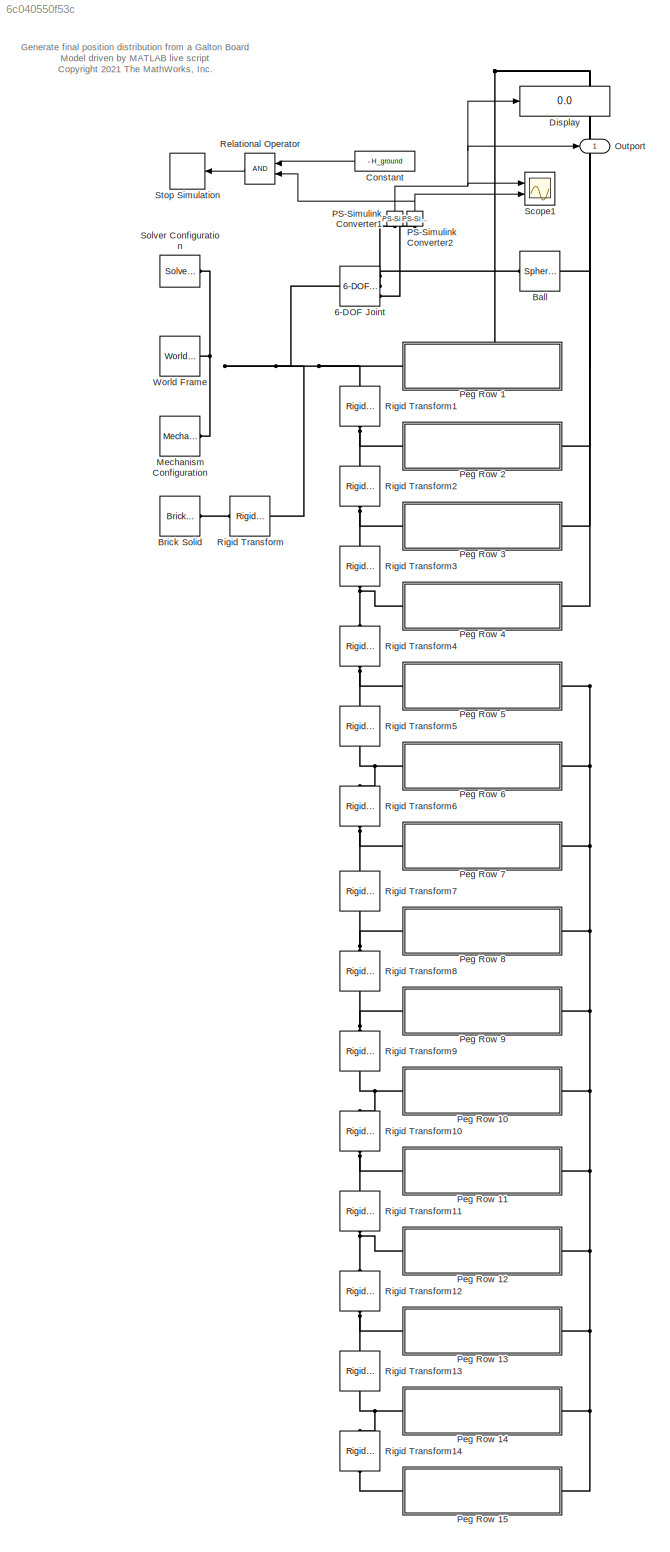
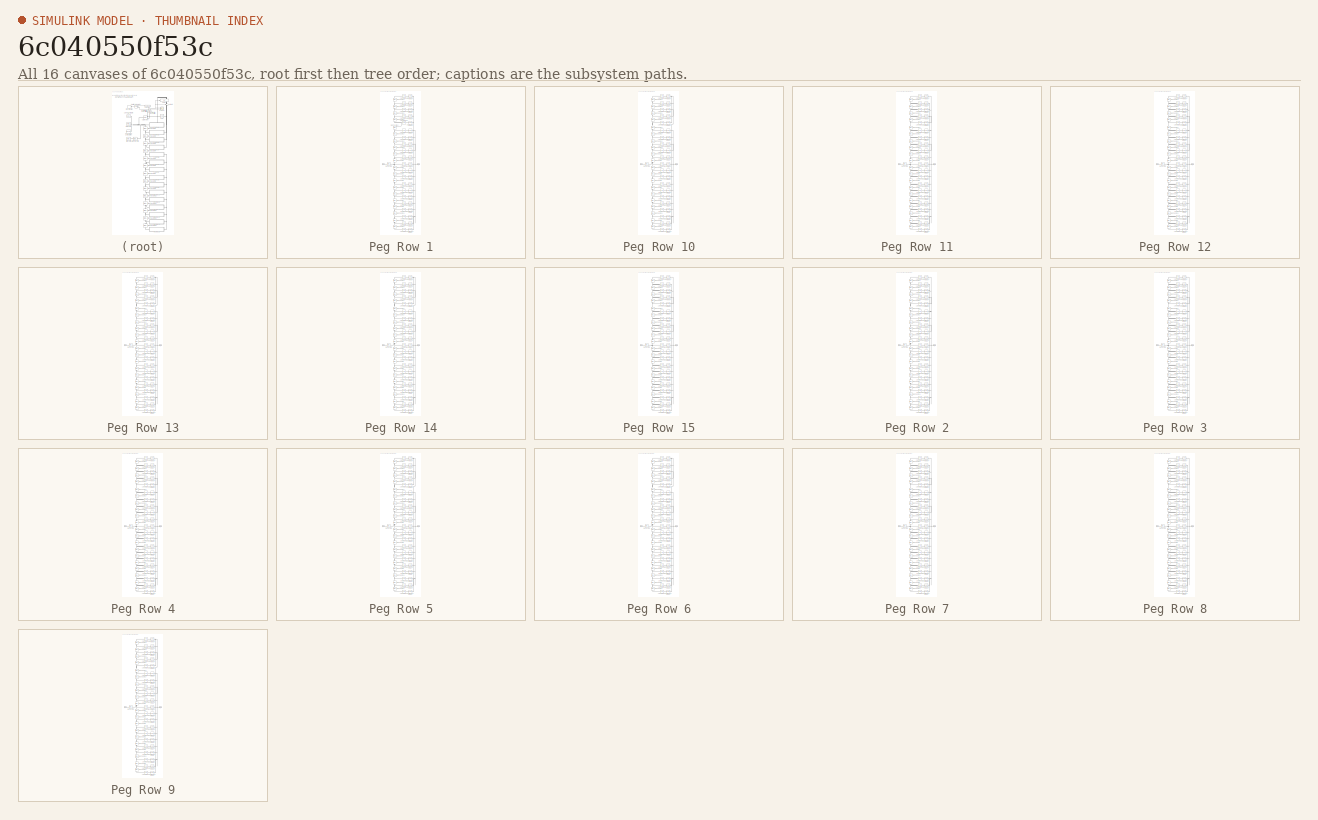
[diagram: thumbnail index - all 16 canvases of the model, root first then tree order]
MODEL slx_6c040550f53c
KIND model
CONFIG AbsTol = 1e-4
CONFIG EnableMultiTasking = on
CONFIG FixedStep = auto
CONFIG MaxStep = 1e-3
CONFIG MinStep = auto
CONFIG PreLoadFcn = init_Galton_Board;
CONFIG RelTol = 1e-4
CONFIG SampleTimeConstraint = Unconstrained
CONFIG SolverName = ode23t
CONFIG StartTime = 0.0
CONFIG StopTime = 10
BLOCK [Reference] 6-DOF Joint  REF=sm_lib/Joints/6-DOF Joint
  Ports = [0, 0, 0, 0, 0, 1, 3]
  SourceBlock = sm_lib/Joints/6-DOF Joint
  SourceProductBaseCode = MS
  SourceType = 6-DOF Joint
BLOCK [Reference] Ball  REF=sm_lib/Body Elements/Spherical Solid
  NameLocation = top
  Ports = [0, 0, 0, 0, 0, 1, 1]
  SourceBlock = sm_lib/Body Elements/Spherical Solid
  SourceProductBaseCode = MS
  SourceType = Spherical Solid
BLOCK [Reference] Brick Solid  REF=sm_lib/Body Elements/Brick Solid
  Ports = [0, 0, 0, 0, 0, 0, 1]
  SourceBlock = sm_lib/Body Elements/Brick Solid
  SourceProductBaseCode = MS
  SourceType = Brick Solid
BLOCK [Constant] Constant
  Value = - H_ground
BLOCK [Display] Display
  Decimation = 1
  Ports = [1]
BLOCK [Reference] Mechanism Configuration  REF=sm_lib/Utilities/Mechanism
Configuration
  Ports = [0, 0, 0, 0, 0, 0, 1]
  SourceBlock = sm_lib/Utilities/Mechanism\nConfiguration
  SourceProductBaseCode = MS
  SourceType = Mechanism\nConfiguration
BLOCK [Outport] Outport
BLOCK [Reference] PS-Simulink Converter1  REF=nesl_utility/PS-Simulink
Converter
  NameLocation = right
  Ports = [0, 1, 0, 0, 0, 1]
  SourceBlock = nesl_utility/PS-Simulink\nConverter
  SourceProductBaseCode = PW,SS
  SourceType = PS-Simulink\nConverter
BLOCK [Reference] PS-Simulink Converter2  REF=nesl_utility/PS-Simulink
Converter
  NameLocation = right
  Ports = [0, 1, 0, 0, 0, 1]
  SourceBlock = nesl_utility/PS-Simulink\nConverter
  SourceProductBaseCode = PW,SS
  SourceType = PS-Simulink\nConverter
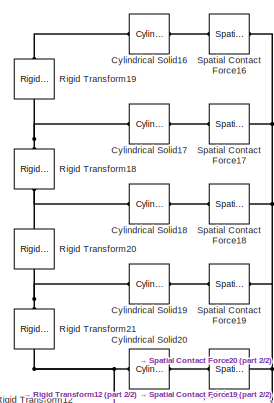
[diagram: Peg Row 1 - part 1/2, top center region]
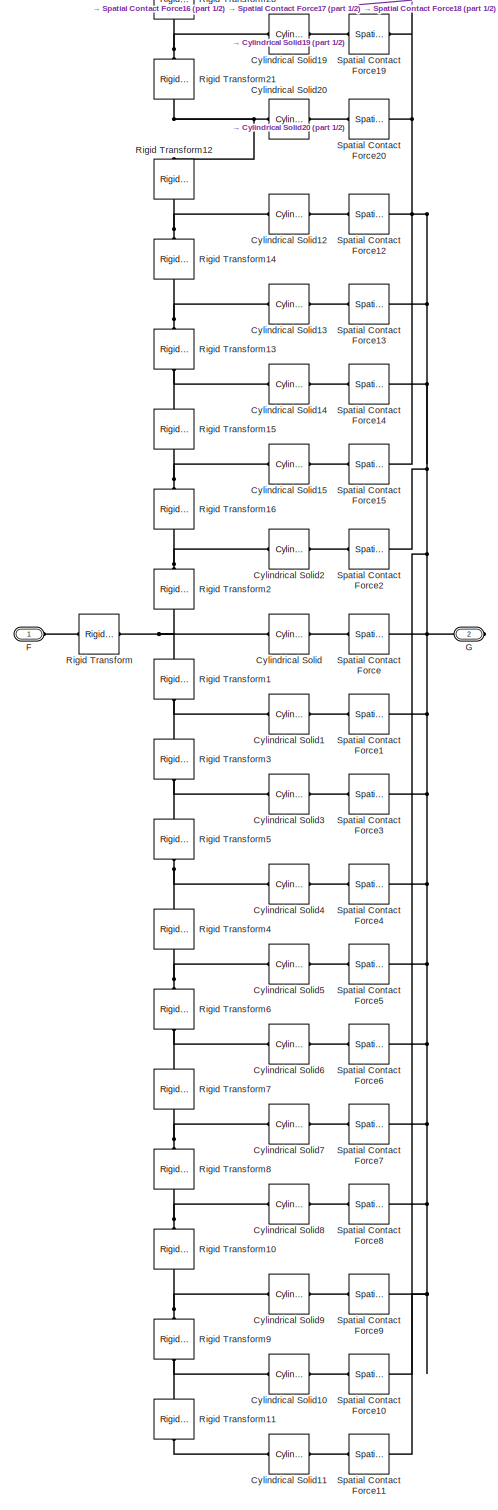
[diagram: Peg Row 1 - part 2/2, most of the canvas]
BLOCK [SubSystem] Peg Row 1
  Ports = [0, 0, 0, 0, 0, 1, 1]
  RequestExecContextInheritance = off
BLOCK [Reference] Peg Row 1/Cylindrical Solid  REF=sm_lib/Body Elements/Cylindrical Solid
  NameLocation = top
  Ports = [0, 0, 0, 0, 0, 1, 1]
  SourceBlock = sm_lib/Body Elements/Cylindrical Solid
  SourceProductBaseCode = MS
  SourceType = Cylindrical Solid
BLOCK [Reference] Peg Row 1/Cylindrical Solid1  REF=sm_lib/Body Elements/Cylindrical Solid
  NameLocation = top
  Ports = [0, 0, 0, 0, 0, 1, 1]
  SourceBlock = sm_lib/Body Elements/Cylindrical Solid
  SourceProductBaseCode = MS
  SourceType = Cylindrical Solid
BLOCK [Reference] Peg Row 1/Cylindrical Solid10  REF=sm_lib/Body Elements/Cylindrical Solid
  NameLocation = top
  Ports = [0, 0, 0, 0, 0, 1, 1]
  SourceBlock = sm_lib/Body Elements/Cylindrical Solid
  SourceProductBaseCode = MS
  SourceType = Cylindrical Solid
BLOCK [Reference] Peg Row 1/Cylindrical Solid11  REF=sm_lib/Body Elements/Cylindrical Solid
  NameLocation = top
  Ports = [0, 0, 0, 0, 0, 1, 1]
  SourceBlock = sm_lib/Body Elements/Cylindrical Solid
  SourceProductBaseCode = MS
  SourceType = Cylindrical Solid
BLOCK [Reference] Peg Row 1/Cylindrical Solid12  REF=sm_lib/Body Elements/Cylindrical Solid
  NameLocation = top
  Ports = [0, 0, 0, 0, 0, 1, 1]
  SourceBlock = sm_lib/Body Elements/Cylindrical Solid
  SourceProductBaseCode = MS
  SourceType = Cylindrical Solid
BLOCK [Reference] Peg Row 1/Cylindrical Solid13  REF=sm_lib/Body Elements/Cylindrical Solid
  NameLocation = top
  Ports = [0, 0, 0, 0, 0, 1, 1]
  SourceBlock = sm_lib/Body Elements/Cylindrical Solid
  SourceProductBaseCode = MS
  SourceType = Cylindrical Solid
BLOCK [Reference] Peg Row 1/Cylindrical Solid14  REF=sm_lib/Body Elements/Cylindrical Solid
  NameLocation = top
  Ports = [0, 0, 0, 0, 0, 1, 1]
  SourceBlock = sm_lib/Body Elements/Cylindrical Solid
  SourceProductBaseCode = MS
  SourceType = Cylindrical Solid
BLOCK [Reference] Peg Row 1/Cylindrical Solid15  REF=sm_lib/Body Elements/Cylindrical Solid
  NameLocation = top
  Ports = [0, 0, 0, 0, 0, 1, 1]
  SourceBlock = sm_lib/Body Elements/Cylindrical Solid
  SourceProductBaseCode = MS
  SourceType = Cylindrical Solid
BLOCK [Reference] Peg Row 1/Cylindrical Solid16  REF=sm_lib/Body Elements/Cylindrical Solid
  NameLocation = top
  Ports = [0, 0, 0, 0, 0, 1, 1]
  SourceBlock = sm_lib/Body Elements/Cylindrical Solid
  SourceProductBaseCode = MS
  SourceType = Cylindrical Solid
BLOCK [Reference] Peg Row 1/Cylindrical Solid17  REF=sm_lib/Body Elements/Cylindrical Solid
  NameLocation = top
  Ports = [0, 0, 0, 0, 0, 1, 1]
  SourceBlock = sm_lib/Body Elements/Cylindrical Solid
  SourceProductBaseCode = MS
  SourceType = Cylindrical Solid
BLOCK [Reference] Peg Row 1/Cylindrical Solid18  REF=sm_lib/Body Elements/Cylindrical Solid
  NameLocation = top
  Ports = [0, 0, 0, 0, 0, 1, 1]
  SourceBlock = sm_lib/Body Elements/Cylindrical Solid
  SourceProductBaseCode = MS
  SourceType = Cylindrical Solid
BLOCK [Reference] Peg Row 1/Cylindrical Solid19  REF=sm_lib/Body Elements/Cylindrical Solid
  NameLocation = top
  Ports = [0, 0, 0, 0, 0, 1, 1]
  SourceBlock = sm_lib/Body Elements/Cylindrical Solid
  SourceProductBaseCode = MS
  SourceType = Cylindrical Solid
BLOCK [Reference] Peg Row 1/Cylindrical Solid2  REF=sm_lib/Body Elements/Cylindrical Solid
  NameLocation = top
  Ports = [0, 0, 0, 0, 0, 1, 1]
  SourceBlock = sm_lib/Body Elements/Cylindrical Solid
  SourceProductBaseCode = MS
  SourceType = Cylindrical Solid
BLOCK [Reference] Peg Row 1/Cylindrical Solid20  REF=sm_lib/Body Elements/Cylindrical Solid
  NameLocation = top
  Ports = [0, 0, 0, 0, 0, 1, 1]
  SourceBlock = sm_lib/Body Elements/Cylindrical Solid
  SourceProductBaseCode = MS
  SourceType = Cylindrical Solid
BLOCK [Reference] Peg Row 1/Cylindrical Solid3  REF=sm_lib/Body Elements/Cylindrical Solid
  NameLocation = top
  Ports = [0, 0, 0, 0, 0, 1, 1]
  SourceBlock = sm_lib/Body Elements/Cylindrical Solid
  SourceProductBaseCode = MS
  SourceType = Cylindrical Solid
BLOCK [Reference] Peg Row 1/Cylindrical Solid4  REF=sm_lib/Body Elements/Cylindrical Solid
  NameLocation = top
  Ports = [0, 0, 0, 0, 0, 1, 1]
  SourceBlock = sm_lib/Body Elements/Cylindrical Solid
  SourceProductBaseCode = MS
  SourceType = Cylindrical Solid
BLOCK [Reference] Peg Row 1/Cylindrical Solid5  REF=sm_lib/Body Elements/Cylindrical Solid
  NameLocation = top
  Ports = [0, 0, 0, 0, 0, 1, 1]
  SourceBlock = sm_lib/Body Elements/Cylindrical Solid
  SourceProductBaseCode = MS
  SourceType = Cylindrical Solid
BLOCK [Reference] Peg Row 1/Cylindrical Solid6  REF=sm_lib/Body Elements/Cylindrical Solid
  NameLocation = top
  Ports = [0, 0, 0, 0, 0, 1, 1]
  SourceBlock = sm_lib/Body Elements/Cylindrical Solid
  SourceProductBaseCode = MS
  SourceType = Cylindrical Solid
BLOCK [Reference] Peg Row 1/Cylindrical Solid7  REF=sm_lib/Body Elements/Cylindrical Solid
  NameLocation = top
  Ports = [0, 0, 0, 0, 0, 1, 1]
  SourceBlock = sm_lib/Body Elements/Cylindrical Solid
  SourceProductBaseCode = MS
  SourceType = Cylindrical Solid
BLOCK [Reference] Peg Row 1/Cylindrical Solid8  REF=sm_lib/Body Elements/Cylindrical Solid
  NameLocation = top
  Ports = [0, 0, 0, 0, 0, 1, 1]
  SourceBlock = sm_lib/Body Elements/Cylindrical Solid
  SourceProductBaseCode = MS
  SourceType = Cylindrical Solid
BLOCK [Reference] Peg Row 1/Cylindrical Solid9  REF=sm_lib/Body Elements/Cylindrical Solid
  NameLocation = top
  Ports = [0, 0, 0, 0, 0, 1, 1]
  SourceBlock = sm_lib/Body Elements/Cylindrical Solid
  SourceProductBaseCode = MS
  SourceType = Cylindrical Solid
BLOCK [PMIOPort] Peg Row 1/F
  Side = Left
BLOCK [PMIOPort] Peg Row 1/G
  Port = 2
  Side = Right
BLOCK [Reference] Peg Row 1/Rigid Transform  REF=sm_lib/Frames and
Transforms/Rigid
Transform
  Ports = [0, 0, 0, 0, 0, 1, 1]
  SourceBlock = sm_lib/Frames and\nTransforms/Rigid\nTransform
  SourceProductBaseCode = MS
  SourceType = Rigid\nTransform
BLOCK [Reference] Peg Row 1/Rigid Transform1  REF=sm_lib/Frames and
Transforms/Rigid
Transform
  NameLocation = left
  Ports = [0, 0, 0, 0, 0, 1, 1]
  SourceBlock = sm_lib/Frames and\nTransforms/Rigid\nTransform
  SourceProductBaseCode = MS
  SourceType = Rigid\nTransform
BLOCK [Reference] Peg Row 1/Rigid Transform10  REF=sm_lib/Frames and
Transforms/Rigid
Transform
  NameLocation = left
  Ports = [0, 0, 0, 0, 0, 1, 1]
  SourceBlock = sm_lib/Frames and\nTransforms/Rigid\nTransform
  SourceProductBaseCode = MS
  SourceType = Rigid\nTransform
BLOCK [Reference] Peg Row 1/Rigid Transform11  REF=sm_lib/Frames and
Transforms/Rigid
Transform
  NameLocation = left
  Ports = [0, 0, 0, 0, 0, 1, 1]
  SourceBlock = sm_lib/Frames and\nTransforms/Rigid\nTransform
  SourceProductBaseCode = MS
  SourceType = Rigid\nTransform
BLOCK [Reference] Peg Row 1/Rigid Transform12  REF=sm_lib/Frames and
Transforms/Rigid
Transform
  NameLocation = left
  Ports = [0, 0, 0, 0, 0, 1, 1]
  SourceBlock = sm_lib/Frames and\nTransforms/Rigid\nTransform
  SourceProductBaseCode = MS
  SourceType = Rigid\nTransform
BLOCK [Reference] Peg Row 1/Rigid Transform13  REF=sm_lib/Frames and
Transforms/Rigid
Transform
  NameLocation = left
  Ports = [0, 0, 0, 0, 0, 1, 1]
  SourceBlock = sm_lib/Frames and\nTransforms/Rigid\nTransform
  SourceProductBaseCode = MS
  SourceType = Rigid\nTransform
BLOCK [Reference] Peg Row 1/Rigid Transform14  REF=sm_lib/Frames and
Transforms/Rigid
Transform
  NameLocation = left
  Ports = [0, 0, 0, 0, 0, 1, 1]
  SourceBlock = sm_lib/Frames and\nTransforms/Rigid\nTransform
  SourceProductBaseCode = MS
  SourceType = Rigid\nTransform
BLOCK [Reference] Peg Row 1/Rigid Transform15  REF=sm_lib/Frames and
Transforms/Rigid
Transform
  NameLocation = left
  Ports = [0, 0, 0, 0, 0, 1, 1]
  SourceBlock = sm_lib/Frames and\nTransforms/Rigid\nTransform
  SourceProductBaseCode = MS
  SourceType = Rigid\nTransform
BLOCK [Reference] Peg Row 1/Rigid Transform16  REF=sm_lib/Frames and
Transforms/Rigid
Transform
  NameLocation = left
  Ports = [0, 0, 0, 0, 0, 1, 1]
  SourceBlock = sm_lib/Frames and\nTransforms/Rigid\nTransform
  SourceProductBaseCode = MS
  SourceType = Rigid\nTransform
BLOCK [Reference] Peg Row 1/Rigid Transform18  REF=sm_lib/Frames and
Transforms/Rigid
Transform
  NameLocation = left
  Ports = [0, 0, 0, 0, 0, 1, 1]
  SourceBlock = sm_lib/Frames and\nTransforms/Rigid\nTransform
  SourceProductBaseCode = MS
  SourceType = Rigid\nTransform
BLOCK [Reference] Peg Row 1/Rigid Transform19  REF=sm_lib/Frames and
Transforms/Rigid
Transform
  NameLocation = left
  Ports = [0, 0, 0, 0, 0, 1, 1]
  SourceBlock = sm_lib/Frames and\nTransforms/Rigid\nTransform
  SourceProductBaseCode = MS
  SourceType = Rigid\nTransform
BLOCK [Reference] Peg Row 1/Rigid Transform2  REF=sm_lib/Frames and
Transforms/Rigid
Transform
  NameLocation = left
  Ports = [0, 0, 0, 0, 0, 1, 1]
  SourceBlock = sm_lib/Frames and\nTransforms/Rigid\nTransform
  SourceProductBaseCode = MS
  SourceType = Rigid\nTransform
BLOCK [Reference] Peg Row 1/Rigid Transform20  REF=sm_lib/Frames and
Transforms/Rigid
Transform
  NameLocation = left
  Ports = [0, 0, 0, 0, 0, 1, 1]
  SourceBlock = sm_lib/Frames and\nTransforms/Rigid\nTransform
  SourceProductBaseCode = MS
  SourceType = Rigid\nTransform
BLOCK [Reference] Peg Row 1/Rigid Transform21  REF=sm_lib/Frames and
Transforms/Rigid
Transform
  NameLocation = left
  Ports = [0, 0, 0, 0, 0, 1, 1]
  SourceBlock = sm_lib/Frames and\nTransforms/Rigid\nTransform
  SourceProductBaseCode = MS
  SourceType = Rigid\nTransform
BLOCK [Reference] Peg Row 1/Rigid Transform3  REF=sm_lib/Frames and
Transforms/Rigid
Transform
  NameLocation = left
  Ports = [0, 0, 0, 0, 0, 1, 1]
  SourceBlock = sm_lib/Frames and\nTransforms/Rigid\nTransform
  SourceProductBaseCode = MS
  SourceType = Rigid\nTransform
BLOCK [Reference] Peg Row 1/Rigid Transform4  REF=sm_lib/Frames and
Transforms/Rigid
Transform
  NameLocation = left
  Ports = [0, 0, 0, 0, 0, 1, 1]
  SourceBlock = sm_lib/Frames and\nTransforms/Rigid\nTransform
  SourceProductBaseCode = MS
  SourceType = Rigid\nTransform
BLOCK [Reference] Peg Row 1/Rigid Transform5  REF=sm_lib/Frames and
Transforms/Rigid
Transform
  NameLocation = left
  Ports = [0, 0, 0, 0, 0, 1, 1]
  SourceBlock = sm_lib/Frames and\nTransforms/Rigid\nTransform
  SourceProductBaseCode = MS
  SourceType = Rigid\nTransform
BLOCK [Reference] Peg Row 1/Rigid Transform6  REF=sm_lib/Frames and
Transforms/Rigid
Transform
  NameLocation = left
  Ports = [0, 0, 0, 0, 0, 1, 1]
  SourceBlock = sm_lib/Frames and\nTransforms/Rigid\nTransform
  SourceProductBaseCode = MS
  SourceType = Rigid\nTransform
BLOCK [Reference] Peg Row 1/Rigid Transform7  REF=sm_lib/Frames and
Transforms/Rigid
Transform
  NameLocation = left
  Ports = [0, 0, 0, 0, 0, 1, 1]
  SourceBlock = sm_lib/Frames and\nTransforms/Rigid\nTransform
  SourceProductBaseCode = MS
  SourceType = Rigid\nTransform
BLOCK [Reference] Peg Row 1/Rigid Transform8  REF=sm_lib/Frames and
Transforms/Rigid
Transform
  NameLocation = left
  Ports = [0, 0, 0, 0, 0, 1, 1]
  SourceBlock = sm_lib/Frames and\nTransforms/Rigid\nTransform
  SourceProductBaseCode = MS
  SourceType = Rigid\nTransform
BLOCK [Reference] Peg Row 1/Rigid Transform9  REF=sm_lib/Frames and
Transforms/Rigid
Transform
  NameLocation = left
  Ports = [0, 0, 0, 0, 0, 1, 1]
  SourceBlock = sm_lib/Frames and\nTransforms/Rigid\nTransform
  SourceProductBaseCode = MS
  SourceType = Rigid\nTransform
BLOCK [Reference] Peg Row 1/Spatial Contact Force  REF=sm_lib/Forces and
Torques/Spatial
Contact Force
  Ports = [0, 0, 0, 0, 0, 1, 1]
  SourceBlock = sm_lib/Forces and\nTorques/Spatial\nContact Force
  SourceProductBaseCode = MS
  SourceType = Spatial\nContact Force
BLOCK [Reference] Peg Row 1/Spatial Contact Force1  REF=sm_lib/Forces and
Torques/Spatial
Contact Force
  Ports = [0, 0, 0, 0, 0, 1, 1]
  SourceBlock = sm_lib/Forces and\nTorques/Spatial\nContact Force
  SourceProductBaseCode = MS
  SourceType = Spatial\nContact Force
BLOCK [Reference] Peg Row 1/Spatial Contact Force10  REF=sm_lib/Forces and
Torques/Spatial
Contact Force
  Ports = [0, 0, 0, 0, 0, 1, 1]
  SourceBlock = sm_lib/Forces and\nTorques/Spatial\nContact Force
  SourceProductBaseCode = MS
  SourceType = Spatial\nContact Force
BLOCK [Reference] Peg Row 1/Spatial Contact Force11  REF=sm_lib/Forces and
Torques/Spatial
Contact Force
  Ports = [0, 0, 0, 0, 0, 1, 1]
  SourceBlock = sm_lib/Forces and\nTorques/Spatial\nContact Force
  SourceProductBaseCode = MS
  SourceType = Spatial\nContact Force
BLOCK [Reference] Peg Row 1/Spatial Contact Force12  REF=sm_lib/Forces and
Torques/Spatial
Contact Force
  Ports = [0, 0, 0, 0, 0, 1, 1]
  SourceBlock = sm_lib/Forces and\nTorques/Spatial\nContact Force
  SourceProductBaseCode = MS
  SourceType = Spatial\nContact Force
BLOCK [Reference] Peg Row 1/Spatial Contact Force13  REF=sm_lib/Forces and
Torques/Spatial
Contact Force
  Ports = [0, 0, 0, 0, 0, 1, 1]
  SourceBlock = sm_lib/Forces and\nTorques/Spatial\nContact Force
  SourceProductBaseCode = MS
  SourceType = Spatial\nContact Force
BLOCK [Reference] Peg Row 1/Spatial Contact Force14  REF=sm_lib/Forces and
Torques/Spatial
Contact Force
  Ports = [0, 0, 0, 0, 0, 1, 1]
  SourceBlock = sm_lib/Forces and\nTorques/Spatial\nContact Force
  SourceProductBaseCode = MS
  SourceType = Spatial\nContact Force
BLOCK [Reference] Peg Row 1/Spatial Contact Force15  REF=sm_lib/Forces and
Torques/Spatial
Contact Force
  Ports = [0, 0, 0, 0, 0, 1, 1]
  SourceBlock = sm_lib/Forces and\nTorques/Spatial\nContact Force
  SourceProductBaseCode = MS
  SourceType = Spatial\nContact Force
BLOCK [Reference] Peg Row 1/Spatial Contact Force16  REF=sm_lib/Forces and
Torques/Spatial
Contact Force
  Ports = [0, 0, 0, 0, 0, 1, 1]
  SourceBlock = sm_lib/Forces and\nTorques/Spatial\nContact Force
  SourceProductBaseCode = MS
  SourceType = Spatial\nContact Force
BLOCK [Reference] Peg Row 1/Spatial Contact Force17  REF=sm_lib/Forces and
Torques/Spatial
Contact Force
  Ports = [0, 0, 0, 0, 0, 1, 1]
  SourceBlock = sm_lib/Forces and\nTorques/Spatial\nContact Force
  SourceProductBaseCode = MS
  SourceType = Spatial\nContact Force
BLOCK [Reference] Peg Row 1/Spatial Contact Force18  REF=sm_lib/Forces and
Torques/Spatial
Contact Force
  Ports = [0, 0, 0, 0, 0, 1, 1]
  SourceBlock = sm_lib/Forces and\nTorques/Spatial\nContact Force
  SourceProductBaseCode = MS
  SourceType = Spatial\nContact Force
BLOCK [Reference] Peg Row 1/Spatial Contact Force19  REF=sm_lib/Forces and
Torques/Spatial
Contact Force
  Ports = [0, 0, 0, 0, 0, 1, 1]
  SourceBlock = sm_lib/Forces and\nTorques/Spatial\nContact Force
  SourceProductBaseCode = MS
  SourceType = Spatial\nContact Force
BLOCK [Reference] Peg Row 1/Spatial Contact Force2  REF=sm_lib/Forces and
Torques/Spatial
Contact Force
  Ports = [0, 0, 0, 0, 0, 1, 1]
  SourceBlock = sm_lib/Forces and\nTorques/Spatial\nContact Force
  SourceProductBaseCode = MS
  SourceType = Spatial\nContact Force
BLOCK [Reference] Peg Row 1/Spatial Contact Force20  REF=sm_lib/Forces and
Torques/Spatial
Contact Force
  Ports = [0, 0, 0, 0, 0, 1, 1]
  SourceBlock = sm_lib/Forces and\nTorques/Spatial\nContact Force
  SourceProductBaseCode = MS
  SourceType = Spatial\nContact Force
BLOCK [Reference] Peg Row 1/Spatial Contact Force3  REF=sm_lib/Forces and
Torques/Spatial
Contact Force
  Ports = [0, 0, 0, 0, 0, 1, 1]
  SourceBlock = sm_lib/Forces and\nTorques/Spatial\nContact Force
  SourceProductBaseCode = MS
  SourceType = Spatial\nContact Force
BLOCK [Reference] Peg Row 1/Spatial Contact Force4  REF=sm_lib/Forces and
Torques/Spatial
Contact Force
  Ports = [0, 0, 0, 0, 0, 1, 1]
  SourceBlock = sm_lib/Forces and\nTorques/Spatial\nContact Force
  SourceProductBaseCode = MS
  SourceType = Spatial\nContact Force
BLOCK [Reference] Peg Row 1/Spatial Contact Force5  REF=sm_lib/Forces and
Torques/Spatial
Contact Force
  Ports = [0, 0, 0, 0, 0, 1, 1]
  SourceBlock = sm_lib/Forces and\nTorques/Spatial\nContact Force
  SourceProductBaseCode = MS
  SourceType = Spatial\nContact Force
BLOCK [Reference] Peg Row 1/Spatial Contact Force6  REF=sm_lib/Forces and
Torques/Spatial
Contact Force
  Ports = [0, 0, 0, 0, 0, 1, 1]
  SourceBlock = sm_lib/Forces and\nTorques/Spatial\nContact Force
  SourceProductBaseCode = MS
  SourceType = Spatial\nContact Force
BLOCK [Reference] Peg Row 1/Spatial Contact Force7  REF=sm_lib/Forces and
Torques/Spatial
Contact Force
  Ports = [0, 0, 0, 0, 0, 1, 1]
  SourceBlock = sm_lib/Forces and\nTorques/Spatial\nContact Force
  SourceProductBaseCode = MS
  SourceType = Spatial\nContact Force
BLOCK [Reference] Peg Row 1/Spatial Contact Force8  REF=sm_lib/Forces and
Torques/Spatial
Contact Force
  Ports = [0, 0, 0, 0, 0, 1, 1]
  SourceBlock = sm_lib/Forces and\nTorques/Spatial\nContact Force
  SourceProductBaseCode = MS
  SourceType = Spatial\nContact Force
BLOCK [Reference] Peg Row 1/Spatial Contact Force9  REF=sm_lib/Forces and
Torques/Spatial
Contact Force
  Ports = [0, 0, 0, 0, 0, 1, 1]
  SourceBlock = sm_lib/Forces and\nTorques/Spatial\nContact Force
  SourceProductBaseCode = MS
  SourceType = Spatial\nContact Force
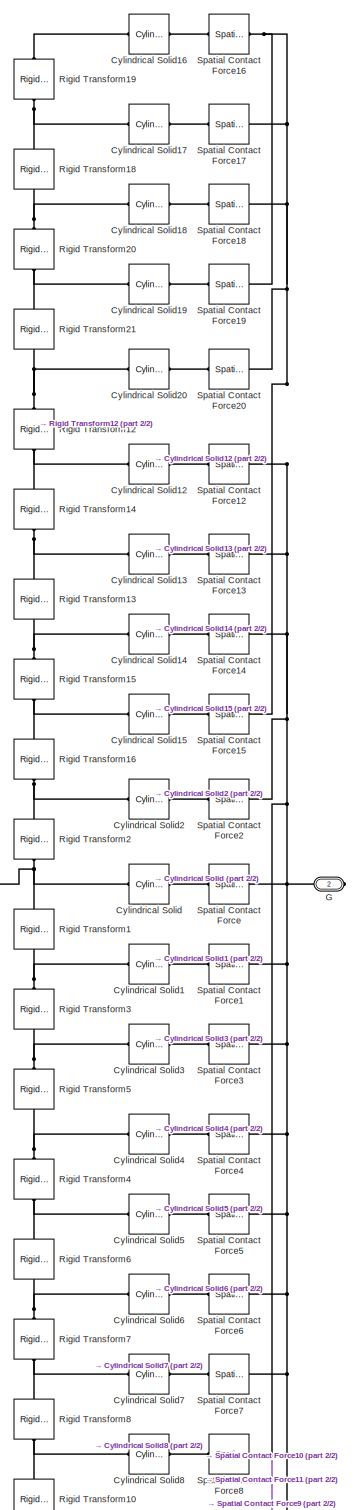
[diagram: Peg Row 10 - part 1/2, center side, full height]
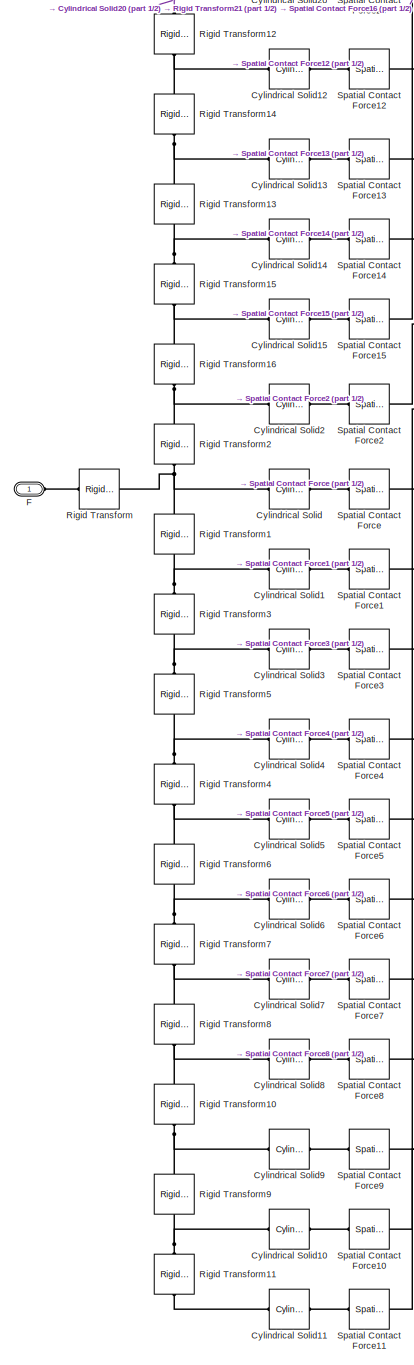
[diagram: Peg Row 10 - part 2/2, most of the canvas]
BLOCK [SubSystem] Peg Row 10
  Ports = [0, 0, 0, 0, 0, 1, 1]
  RequestExecContextInheritance = off
BLOCK [Reference] Peg Row 10/Cylindrical Solid  REF=sm_lib/Body Elements/Cylindrical Solid
  NameLocation = top
  Ports = [0, 0, 0, 0, 0, 1, 1]
  SourceBlock = sm_lib/Body Elements/Cylindrical Solid
  SourceProductBaseCode = MS
  SourceType = Cylindrical Solid
BLOCK [Reference] Peg Row 10/Cylindrical Solid1  REF=sm_lib/Body Elements/Cylindrical Solid
  NameLocation = top
  Ports = [0, 0, 0, 0, 0, 1, 1]
  SourceBlock = sm_lib/Body Elements/Cylindrical Solid
  SourceProductBaseCode = MS
  SourceType = Cylindrical Solid
BLOCK [Reference] Peg Row 10/Cylindrical Solid10  REF=sm_lib/Body Elements/Cylindrical Solid
  NameLocation = top
  Ports = [0, 0, 0, 0, 0, 1, 1]
  SourceBlock = sm_lib/Body Elements/Cylindrical Solid
  SourceProductBaseCode = MS
  SourceType = Cylindrical Solid
BLOCK [Reference] Peg Row 10/Cylindrical Solid11  REF=sm_lib/Body Elements/Cylindrical Solid
  NameLocation = top
  Ports = [0, 0, 0, 0, 0, 1, 1]
  SourceBlock = sm_lib/Body Elements/Cylindrical Solid
  SourceProductBaseCode = MS
  SourceType = Cylindrical Solid
BLOCK [Reference] Peg Row 10/Cylindrical Solid12  REF=sm_lib/Body Elements/Cylindrical Solid
  NameLocation = top
  Ports = [0, 0, 0, 0, 0, 1, 1]
  SourceBlock = sm_lib/Body Elements/Cylindrical Solid
  SourceProductBaseCode = MS
  SourceType = Cylindrical Solid
BLOCK [Reference] Peg Row 10/Cylindrical Solid13  REF=sm_lib/Body Elements/Cylindrical Solid
  NameLocation = top
  Ports = [0, 0, 0, 0, 0, 1, 1]
  SourceBlock = sm_lib/Body Elements/Cylindrical Solid
  SourceProductBaseCode = MS
  SourceType = Cylindrical Solid
BLOCK [Reference] Peg Row 10/Cylindrical Solid14  REF=sm_lib/Body Elements/Cylindrical Solid
  NameLocation = top
  Ports = [0, 0, 0, 0, 0, 1, 1]
  SourceBlock = sm_lib/Body Elements/Cylindrical Solid
  SourceProductBaseCode = MS
  SourceType = Cylindrical Solid
BLOCK [Reference] Peg Row 10/Cylindrical Solid15  REF=sm_lib/Body Elements/Cylindrical Solid
  NameLocation = top
  Ports = [0, 0, 0, 0, 0, 1, 1]
  SourceBlock = sm_lib/Body Elements/Cylindrical Solid
  SourceProductBaseCode = MS
  SourceType = Cylindrical Solid
BLOCK [Reference] Peg Row 10/Cylindrical Solid16  REF=sm_lib/Body Elements/Cylindrical Solid
  NameLocation = top
  Ports = [0, 0, 0, 0, 0, 1, 1]
  SourceBlock = sm_lib/Body Elements/Cylindrical Solid
  SourceProductBaseCode = MS
  SourceType = Cylindrical Solid
BLOCK [Reference] Peg Row 10/Cylindrical Solid17  REF=sm_lib/Body Elements/Cylindrical Solid
  NameLocation = top
  Ports = [0, 0, 0, 0, 0, 1, 1]
  SourceBlock = sm_lib/Body Elements/Cylindrical Solid
  SourceProductBaseCode = MS
  SourceType = Cylindrical Solid
BLOCK [Reference] Peg Row 10/Cylindrical Solid18  REF=sm_lib/Body Elements/Cylindrical Solid
  NameLocation = top
  Ports = [0, 0, 0, 0, 0, 1, 1]
  SourceBlock = sm_lib/Body Elements/Cylindrical Solid
  SourceProductBaseCode = MS
  SourceType = Cylindrical Solid
BLOCK [Reference] Peg Row 10/Cylindrical Solid19  REF=sm_lib/Body Elements/Cylindrical Solid
  NameLocation = top
  Ports = [0, 0, 0, 0, 0, 1, 1]
  SourceBlock = sm_lib/Body Elements/Cylindrical Solid
  SourceProductBaseCode = MS
  SourceType = Cylindrical Solid
BLOCK [Reference] Peg Row 10/Cylindrical Solid2  REF=sm_lib/Body Elements/Cylindrical Solid
  NameLocation = top
  Ports = [0, 0, 0, 0, 0, 1, 1]
  SourceBlock = sm_lib/Body Elements/Cylindrical Solid
  SourceProductBaseCode = MS
  SourceType = Cylindrical Solid
BLOCK [Reference] Peg Row 10/Cylindrical Solid20  REF=sm_lib/Body Elements/Cylindrical Solid
  NameLocation = top
  Ports = [0, 0, 0, 0, 0, 1, 1]
  SourceBlock = sm_lib/Body Elements/Cylindrical Solid
  SourceProductBaseCode = MS
  SourceType = Cylindrical Solid
BLOCK [Reference] Peg Row 10/Cylindrical Solid3  REF=sm_lib/Body Elements/Cylindrical Solid
  NameLocation = top
  Ports = [0, 0, 0, 0, 0, 1, 1]
  SourceBlock = sm_lib/Body Elements/Cylindrical Solid
  SourceProductBaseCode = MS
  SourceType = Cylindrical Solid
BLOCK [Reference] Peg Row 10/Cylindrical Solid4  REF=sm_lib/Body Elements/Cylindrical Solid
  NameLocation = top
  Ports = [0, 0, 0, 0, 0, 1, 1]
  SourceBlock = sm_lib/Body Elements/Cylindrical Solid
  SourceProductBaseCode = MS
  SourceType = Cylindrical Solid
BLOCK [Reference] Peg Row 10/Cylindrical Solid5  REF=sm_lib/Body Elements/Cylindrical Solid
  NameLocation = top
  Ports = [0, 0, 0, 0, 0, 1, 1]
  SourceBlock = sm_lib/Body Elements/Cylindrical Solid
  SourceProductBaseCode = MS
  SourceType = Cylindrical Solid
BLOCK [Reference] Peg Row 10/Cylindrical Solid6  REF=sm_lib/Body Elements/Cylindrical Solid
  NameLocation = top
  Ports = [0, 0, 0, 0, 0, 1, 1]
  SourceBlock = sm_lib/Body Elements/Cylindrical Solid
  SourceProductBaseCode = MS
  SourceType = Cylindrical Solid
BLOCK [Reference] Peg Row 10/Cylindrical Solid7  REF=sm_lib/Body Elements/Cylindrical Solid
  NameLocation = top
  Ports = [0, 0, 0, 0, 0, 1, 1]
  SourceBlock = sm_lib/Body Elements/Cylindrical Solid
  SourceProductBaseCode = MS
  SourceType = Cylindrical Solid
BLOCK [Reference] Peg Row 10/Cylindrical Solid8  REF=sm_lib/Body Elements/Cylindrical Solid
  NameLocation = top
  Ports = [0, 0, 0, 0, 0, 1, 1]
  SourceBlock = sm_lib/Body Elements/Cylindrical Solid
  SourceProductBaseCode = MS
  SourceType = Cylindrical Solid
BLOCK [Reference] Peg Row 10/Cylindrical Solid9  REF=sm_lib/Body Elements/Cylindrical Solid
  NameLocation = top
  Ports = [0, 0, 0, 0, 0, 1, 1]
  SourceBlock = sm_lib/Body Elements/Cylindrical Solid
  SourceProductBaseCode = MS
  SourceType = Cylindrical Solid
BLOCK [PMIOPort] Peg Row 10/F
  Side = Left
BLOCK [PMIOPort] Peg Row 10/G
  Port = 2
  Side = Right
BLOCK [Reference] Peg Row 10/Rigid Transform  REF=sm_lib/Frames and
Transforms/Rigid
Transform
  Ports = [0, 0, 0, 0, 0, 1, 1]
  SourceBlock = sm_lib/Frames and\nTransforms/Rigid\nTransform
  SourceProductBaseCode = MS
  SourceType = Rigid\nTransform
BLOCK [Reference] Peg Row 10/Rigid Transform1  REF=sm_lib/Frames and
Transforms/Rigid
Transform
  NameLocation = left
  Ports = [0, 0, 0, 0, 0, 1, 1]
  SourceBlock = sm_lib/Frames and\nTransforms/Rigid\nTransform
  SourceProductBaseCode = MS
  SourceType = Rigid\nTransform
BLOCK [Reference] Peg Row 10/Rigid Transform10  REF=sm_lib/Frames and
Transforms/Rigid
Transform
  NameLocation = left
  Ports = [0, 0, 0, 0, 0, 1, 1]
  SourceBlock = sm_lib/Frames and\nTransforms/Rigid\nTransform
  SourceProductBaseCode = MS
  SourceType = Rigid\nTransform
BLOCK [Reference] Peg Row 10/Rigid Transform11  REF=sm_lib/Frames and
Transforms/Rigid
Transform
  NameLocation = left
  Ports = [0, 0, 0, 0, 0, 1, 1]
  SourceBlock = sm_lib/Frames and\nTransforms/Rigid\nTransform
  SourceProductBaseCode = MS
  SourceType = Rigid\nTransform
BLOCK [Reference] Peg Row 10/Rigid Transform12  REF=sm_lib/Frames and
Transforms/Rigid
Transform
  NameLocation = left
  Ports = [0, 0, 0, 0, 0, 1, 1]
  SourceBlock = sm_lib/Frames and\nTransforms/Rigid\nTransform
  SourceProductBaseCode = MS
  SourceType = Rigid\nTransform
BLOCK [Reference] Peg Row 10/Rigid Transform13  REF=sm_lib/Frames and
Transforms/Rigid
Transform
  NameLocation = left
  Ports = [0, 0, 0, 0, 0, 1, 1]
  SourceBlock = sm_lib/Frames and\nTransforms/Rigid\nTransform
  SourceProductBaseCode = MS
  SourceType = Rigid\nTransform
BLOCK [Reference] Peg Row 10/Rigid Transform14  REF=sm_lib/Frames and
Transforms/Rigid
Transform
  NameLocation = left
  Ports = [0, 0, 0, 0, 0, 1, 1]
  SourceBlock = sm_lib/Frames and\nTransforms/Rigid\nTransform
  SourceProductBaseCode = MS
  SourceType = Rigid\nTransform
BLOCK [Reference] Peg Row 10/Rigid Transform15  REF=sm_lib/Frames and
Transforms/Rigid
Transform
  NameLocation = left
  Ports = [0, 0, 0, 0, 0, 1, 1]
  SourceBlock = sm_lib/Frames and\nTransforms/Rigid\nTransform
  SourceProductBaseCode = MS
  SourceType = Rigid\nTransform
BLOCK [Reference] Peg Row 10/Rigid Transform16  REF=sm_lib/Frames and
Transforms/Rigid
Transform
  NameLocation = left
  Ports = [0, 0, 0, 0, 0, 1, 1]
  SourceBlock = sm_lib/Frames and\nTransforms/Rigid\nTransform
  SourceProductBaseCode = MS
  SourceType = Rigid\nTransform
BLOCK [Reference] Peg Row 10/Rigid Transform18  REF=sm_lib/Frames and
Transforms/Rigid
Transform
  NameLocation = left
  Ports = [0, 0, 0, 0, 0, 1, 1]
  SourceBlock = sm_lib/Frames and\nTransforms/Rigid\nTransform
  SourceProductBaseCode = MS
  SourceType = Rigid\nTransform
BLOCK [Reference] Peg Row 10/Rigid Transform19  REF=sm_lib/Frames and
Transforms/Rigid
Transform
  NameLocation = left
  Ports = [0, 0, 0, 0, 0, 1, 1]
  SourceBlock = sm_lib/Frames and\nTransforms/Rigid\nTransform
  SourceProductBaseCode = MS
  SourceType = Rigid\nTransform
BLOCK [Reference] Peg Row 10/Rigid Transform2  REF=sm_lib/Frames and
Transforms/Rigid
Transform
  NameLocation = left
  Ports = [0, 0, 0, 0, 0, 1, 1]
  SourceBlock = sm_lib/Frames and\nTransforms/Rigid\nTransform
  SourceProductBaseCode = MS
  SourceType = Rigid\nTransform
BLOCK [Reference] Peg Row 10/Rigid Transform20  REF=sm_lib/Frames and
Transforms/Rigid
Transform
  NameLocation = left
  Ports = [0, 0, 0, 0, 0, 1, 1]
  SourceBlock = sm_lib/Frames and\nTransforms/Rigid\nTransform
  SourceProductBaseCode = MS
  SourceType = Rigid\nTransform
BLOCK [Reference] Peg Row 10/Rigid Transform21  REF=sm_lib/Frames and
Transforms/Rigid
Transform
  NameLocation = left
  Ports = [0, 0, 0, 0, 0, 1, 1]
  SourceBlock = sm_lib/Frames and\nTransforms/Rigid\nTransform
  SourceProductBaseCode = MS
  SourceType = Rigid\nTransform
BLOCK [Reference] Peg Row 10/Rigid Transform3  REF=sm_lib/Frames and
Transforms/Rigid
Transform
  NameLocation = left
  Ports = [0, 0, 0, 0, 0, 1, 1]
  SourceBlock = sm_lib/Frames and\nTransforms/Rigid\nTransform
  SourceProductBaseCode = MS
  SourceType = Rigid\nTransform
BLOCK [Reference] Peg Row 10/Rigid Transform4  REF=sm_lib/Frames and
Transforms/Rigid
Transform
  NameLocation = left
  Ports = [0, 0, 0, 0, 0, 1, 1]
  SourceBlock = sm_lib/Frames and\nTransforms/Rigid\nTransform
  SourceProductBaseCode = MS
  SourceType = Rigid\nTransform
BLOCK [Reference] Peg Row 10/Rigid Transform5  REF=sm_lib/Frames and
Transforms/Rigid
Transform
  NameLocation = left
  Ports = [0, 0, 0, 0, 0, 1, 1]
  SourceBlock = sm_lib/Frames and\nTransforms/Rigid\nTransform
  SourceProductBaseCode = MS
  SourceType = Rigid\nTransform
BLOCK [Reference] Peg Row 10/Rigid Transform6  REF=sm_lib/Frames and
Transforms/Rigid
Transform
  NameLocation = left
  Ports = [0, 0, 0, 0, 0, 1, 1]
  SourceBlock = sm_lib/Frames and\nTransforms/Rigid\nTransform
  SourceProductBaseCode = MS
  SourceType = Rigid\nTransform
BLOCK [Reference] Peg Row 10/Rigid Transform7  REF=sm_lib/Frames and
Transforms/Rigid
Transform
  NameLocation = left
  Ports = [0, 0, 0, 0, 0, 1, 1]
  SourceBlock = sm_lib/Frames and\nTransforms/Rigid\nTransform
  SourceProductBaseCode = MS
  SourceType = Rigid\nTransform
BLOCK [Reference] Peg Row 10/Rigid Transform8  REF=sm_lib/Frames and
Transforms/Rigid
Transform
  NameLocation = left
  Ports = [0, 0, 0, 0, 0, 1, 1]
  SourceBlock = sm_lib/Frames and\nTransforms/Rigid\nTransform
  SourceProductBaseCode = MS
  SourceType = Rigid\nTransform
BLOCK [Reference] Peg Row 10/Rigid Transform9  REF=sm_lib/Frames and
Transforms/Rigid
Transform
  NameLocation = left
  Ports = [0, 0, 0, 0, 0, 1, 1]
  SourceBlock = sm_lib/Frames and\nTransforms/Rigid\nTransform
  SourceProductBaseCode = MS
  SourceType = Rigid\nTransform
BLOCK [Reference] Peg Row 10/Spatial Contact Force  REF=sm_lib/Forces and
Torques/Spatial
Contact Force
  Ports = [0, 0, 0, 0, 0, 1, 1]
  SourceBlock = sm_lib/Forces and\nTorques/Spatial\nContact Force
  SourceProductBaseCode = MS
  SourceType = Spatial\nContact Force
BLOCK [Reference] Peg Row 10/Spatial Contact Force1  REF=sm_lib/Forces and
Torques/Spatial
Contact Force
  Ports = [0, 0, 0, 0, 0, 1, 1]
  SourceBlock = sm_lib/Forces and\nTorques/Spatial\nContact Force
  SourceProductBaseCode = MS
  SourceType = Spatial\nContact Force
BLOCK [Reference] Peg Row 10/Spatial Contact Force10  REF=sm_lib/Forces and
Torques/Spatial
Contact Force
  Ports = [0, 0, 0, 0, 0, 1, 1]
  SourceBlock = sm_lib/Forces and\nTorques/Spatial\nContact Force
  SourceProductBaseCode = MS
  SourceType = Spatial\nContact Force
BLOCK [Reference] Peg Row 10/Spatial Contact Force11  REF=sm_lib/Forces and
Torques/Spatial
Contact Force
  Ports = [0, 0, 0, 0, 0, 1, 1]
  SourceBlock = sm_lib/Forces and\nTorques/Spatial\nContact Force
  SourceProductBaseCode = MS
  SourceType = Spatial\nContact Force
BLOCK [Reference] Peg Row 10/Spatial Contact Force12  REF=sm_lib/Forces and
Torques/Spatial
Contact Force
  Ports = [0, 0, 0, 0, 0, 1, 1]
  SourceBlock = sm_lib/Forces and\nTorques/Spatial\nContact Force
  SourceProductBaseCode = MS
  SourceType = Spatial\nContact Force
BLOCK [Reference] Peg Row 10/Spatial Contact Force13  REF=sm_lib/Forces and
Torques/Spatial
Contact Force
  Ports = [0, 0, 0, 0, 0, 1, 1]
  SourceBlock = sm_lib/Forces and\nTorques/Spatial\nContact Force
  SourceProductBaseCode = MS
  SourceType = Spatial\nContact Force
BLOCK [Reference] Peg Row 10/Spatial Contact Force14  REF=sm_lib/Forces and
Torques/Spatial
Contact Force
  Ports = [0, 0, 0, 0, 0, 1, 1]
  SourceBlock = sm_lib/Forces and\nTorques/Spatial\nContact Force
  SourceProductBaseCode = MS
  SourceType = Spatial\nContact Force
BLOCK [Reference] Peg Row 10/Spatial Contact Force15  REF=sm_lib/Forces and
Torques/Spatial
Contact Force
  Ports = [0, 0, 0, 0, 0, 1, 1]
  SourceBlock = sm_lib/Forces and\nTorques/Spatial\nContact Force
  SourceProductBaseCode = MS
  SourceType = Spatial\nContact Force
BLOCK [Reference] Peg Row 10/Spatial Contact Force16  REF=sm_lib/Forces and
Torques/Spatial
Contact Force
  Ports = [0, 0, 0, 0, 0, 1, 1]
  SourceBlock = sm_lib/Forces and\nTorques/Spatial\nContact Force
  SourceProductBaseCode = MS
  SourceType = Spatial\nContact Force
BLOCK [Reference] Peg Row 10/Spatial Contact Force17  REF=sm_lib/Forces and
Torques/Spatial
Contact Force
  Ports = [0, 0, 0, 0, 0, 1, 1]
  SourceBlock = sm_lib/Forces and\nTorques/Spatial\nContact Force
  SourceProductBaseCode = MS
  SourceType = Spatial\nContact Force
BLOCK [Reference] Peg Row 10/Spatial Contact Force18  REF=sm_lib/Forces and
Torques/Spatial
Contact Force
  Ports = [0, 0, 0, 0, 0, 1, 1]
  SourceBlock = sm_lib/Forces and\nTorques/Spatial\nContact Force
  SourceProductBaseCode = MS
  SourceType = Spatial\nContact Force
BLOCK [Reference] Peg Row 10/Spatial Contact Force19  REF=sm_lib/Forces and
Torques/Spatial
Contact Force
  Ports = [0, 0, 0, 0, 0, 1, 1]
  SourceBlock = sm_lib/Forces and\nTorques/Spatial\nContact Force
  SourceProductBaseCode = MS
  SourceType = Spatial\nContact Force
BLOCK [Reference] Peg Row 10/Spatial Contact Force2  REF=sm_lib/Forces and
Torques/Spatial
Contact Force
  Ports = [0, 0, 0, 0, 0, 1, 1]
  SourceBlock = sm_lib/Forces and\nTorques/Spatial\nContact Force
  SourceProductBaseCode = MS
  SourceType = Spatial\nContact Force
BLOCK [Reference] Peg Row 10/Spatial Contact Force20  REF=sm_lib/Forces and
Torques/Spatial
Contact Force
  Ports = [0, 0, 0, 0, 0, 1, 1]
  SourceBlock = sm_lib/Forces and\nTorques/Spatial\nContact Force
  SourceProductBaseCode = MS
  SourceType = Spatial\nContact Force
BLOCK [Reference] Peg Row 10/Spatial Contact Force3  REF=sm_lib/Forces and
Torques/Spatial
Contact Force
  Ports = [0, 0, 0, 0, 0, 1, 1]
  SourceBlock = sm_lib/Forces and\nTorques/Spatial\nContact Force
  SourceProductBaseCode = MS
  SourceType = Spatial\nContact Force
BLOCK [Reference] Peg Row 10/Spatial Contact Force4  REF=sm_lib/Forces and
Torques/Spatial
Contact Force
  Ports = [0, 0, 0, 0, 0, 1, 1]
  SourceBlock = sm_lib/Forces and\nTorques/Spatial\nContact Force
  SourceProductBaseCode = MS
  SourceType = Spatial\nContact Force
BLOCK [Reference] Peg Row 10/Spatial Contact Force5  REF=sm_lib/Forces and
Torques/Spatial
Contact Force
  Ports = [0, 0, 0, 0, 0, 1, 1]
  SourceBlock = sm_lib/Forces and\nTorques/Spatial\nContact Force
  SourceProductBaseCode = MS
  SourceType = Spatial\nContact Force
BLOCK [Reference] Peg Row 10/Spatial Contact Force6  REF=sm_lib/Forces and
Torques/Spatial
Contact Force
  Ports = [0, 0, 0, 0, 0, 1, 1]
  SourceBlock = sm_lib/Forces and\nTorques/Spatial\nContact Force
  SourceProductBaseCode = MS
  SourceType = Spatial\nContact Force
BLOCK [Reference] Peg Row 10/Spatial Contact Force7  REF=sm_lib/Forces and
Torques/Spatial
Contact Force
  Ports = [0, 0, 0, 0, 0, 1, 1]
  SourceBlock = sm_lib/Forces and\nTorques/Spatial\nContact Force
  SourceProductBaseCode = MS
  SourceType = Spatial\nContact Force
BLOCK [Reference] Peg Row 10/Spatial Contact Force8  REF=sm_lib/Forces and
Torques/Spatial
Contact Force
  Ports = [0, 0, 0, 0, 0, 1, 1]
  SourceBlock = sm_lib/Forces and\nTorques/Spatial\nContact Force
  SourceProductBaseCode = MS
  SourceType = Spatial\nContact Force
BLOCK [Reference] Peg Row 10/Spatial Contact Force9  REF=sm_lib/Forces and
Torques/Spatial
Contact Force
  Ports = [0, 0, 0, 0, 0, 1, 1]
  SourceBlock = sm_lib/Forces and\nTorques/Spatial\nContact Force
  SourceProductBaseCode = MS
  SourceType = Spatial\nContact Force
BLOCK [SubSystem] Peg Row 11
  Ports = [0, 0, 0, 0, 0, 1, 1]
  RequestExecContextInheritance = off
BLOCK [Reference] Peg Row 11/Cylindrical Solid  REF=sm_lib/Body Elements/Cylindrical Solid
  NameLocation = top
  Ports = [0, 0, 0, 0, 0, 1, 1]
  SourceBlock = sm_lib/Body Elements/Cylindrical Solid
  SourceProductBaseCode = MS
  SourceType = Cylindrical Solid
BLOCK [Reference] Peg Row 11/Cylindrical Solid1  REF=sm_lib/Body Elements/Cylindrical Solid
  NameLocation = top
  Ports = [0, 0, 0, 0, 0, 1, 1]
  SourceBlock = sm_lib/Body Elements/Cylindrical Solid
  SourceProductBaseCode = MS
  SourceType = Cylindrical Solid
BLOCK [Reference] Peg Row 11/Cylindrical Solid10  REF=sm_lib/Body Elements/Cylindrical Solid
  NameLocation = top
  Ports = [0, 0, 0, 0, 0, 1, 1]
  SourceBlock = sm_lib/Body Elements/Cylindrical Solid
  SourceProductBaseCode = MS
  SourceType = Cylindrical Solid
BLOCK [Reference] Peg Row 11/Cylindrical Solid11  REF=sm_lib/Body Elements/Cylindrical Solid
  NameLocation = top
  Ports = [0, 0, 0, 0, 0, 1, 1]
  SourceBlock = sm_lib/Body Elements/Cylindrical Solid
  SourceProductBaseCode = MS
  SourceType = Cylindrical Solid
BLOCK [Reference] Peg Row 11/Cylindrical Solid12  REF=sm_lib/Body Elements/Cylindrical Solid
  NameLocation = top
  Ports = [0, 0, 0, 0, 0, 1, 1]
  SourceBlock = sm_lib/Body Elements/Cylindrical Solid
  SourceProductBaseCode = MS
  SourceType = Cylindrical Solid
BLOCK [Reference] Peg Row 11/Cylindrical Solid13  REF=sm_lib/Body Elements/Cylindrical Solid
  NameLocation = top
  Ports = [0, 0, 0, 0, 0, 1, 1]
  SourceBlock = sm_lib/Body Elements/Cylindrical Solid
  SourceProductBaseCode = MS
  SourceType = Cylindrical Solid
BLOCK [Reference] Peg Row 11/Cylindrical Solid14  REF=sm_lib/Body Elements/Cylindrical Solid
  NameLocation = top
  Ports = [0, 0, 0, 0, 0, 1, 1]
  SourceBlock = sm_lib/Body Elements/Cylindrical Solid
  SourceProductBaseCode = MS
  SourceType = Cylindrical Solid
BLOCK [Reference] Peg Row 11/Cylindrical Solid15  REF=sm_lib/Body Elements/Cylindrical Solid
  NameLocation = top
  Ports = [0, 0, 0, 0, 0, 1, 1]
  SourceBlock = sm_lib/Body Elements/Cylindrical Solid
  SourceProductBaseCode = MS
  SourceType = Cylindrical Solid
BLOCK [Reference] Peg Row 11/Cylindrical Solid16  REF=sm_lib/Body Elements/Cylindrical Solid
  NameLocation = top
  Ports = [0, 0, 0, 0, 0, 1, 1]
  SourceBlock = sm_lib/Body Elements/Cylindrical Solid
  SourceProductBaseCode = MS
  SourceType = Cylindrical Solid
BLOCK [Reference] Peg Row 11/Cylindrical Solid17  REF=sm_lib/Body Elements/Cylindrical Solid
  NameLocation = top
  Ports = [0, 0, 0, 0, 0, 1, 1]
  SourceBlock = sm_lib/Body Elements/Cylindrical Solid
  SourceProductBaseCode = MS
  SourceType = Cylindrical Solid
BLOCK [Reference] Peg Row 11/Cylindrical Solid18  REF=sm_lib/Body Elements/Cylindrical Solid
  NameLocation = top
  Ports = [0, 0, 0, 0, 0, 1, 1]
  SourceBlock = sm_lib/Body Elements/Cylindrical Solid
  SourceProductBaseCode = MS
  SourceType = Cylindrical Solid
BLOCK [Reference] Peg Row 11/Cylindrical Solid19  REF=sm_lib/Body Elements/Cylindrical Solid
  NameLocation = top
  Ports = [0, 0, 0, 0, 0, 1, 1]
  SourceBlock = sm_lib/Body Elements/Cylindrical Solid
  SourceProductBaseCode = MS
  SourceType = Cylindrical Solid
BLOCK [Reference] Peg Row 11/Cylindrical Solid2  REF=sm_lib/Body Elements/Cylindrical Solid
  NameLocation = top
  Ports = [0, 0, 0, 0, 0, 1, 1]
  SourceBlock = sm_lib/Body Elements/Cylindrical Solid
  SourceProductBaseCode = MS
  SourceType = Cylindrical Solid
BLOCK [Reference] Peg Row 11/Cylindrical Solid20  REF=sm_lib/Body Elements/Cylindrical Solid
  NameLocation = top
  Ports = [0, 0, 0, 0, 0, 1, 1]
  SourceBlock = sm_lib/Body Elements/Cylindrical Solid
  SourceProductBaseCode = MS
  SourceType = Cylindrical Solid
BLOCK [Reference] Peg Row 11/Cylindrical Solid3  REF=sm_lib/Body Elements/Cylindrical Solid
  NameLocation = top
  Ports = [0, 0, 0, 0, 0, 1, 1]
  SourceBlock = sm_lib/Body Elements/Cylindrical Solid
  SourceProductBaseCode = MS
  SourceType = Cylindrical Solid
BLOCK [Reference] Peg Row 11/Cylindrical Solid4  REF=sm_lib/Body Elements/Cylindrical Solid
  NameLocation = top
  Ports = [0, 0, 0, 0, 0, 1, 1]
  SourceBlock = sm_lib/Body Elements/Cylindrical Solid
  SourceProductBaseCode = MS
  SourceType = Cylindrical Solid
BLOCK [Reference] Peg Row 11/Cylindrical Solid5  REF=sm_lib/Body Elements/Cylindrical Solid
  NameLocation = top
  Ports = [0, 0, 0, 0, 0, 1, 1]
  SourceBlock = sm_lib/Body Elements/Cylindrical Solid
  SourceProductBaseCode = MS
  SourceType = Cylindrical Solid
BLOCK [Reference] Peg Row 11/Cylindrical Solid6  REF=sm_lib/Body Elements/Cylindrical Solid
  NameLocation = top
  Ports = [0, 0, 0, 0, 0, 1, 1]
  SourceBlock = sm_lib/Body Elements/Cylindrical Solid
  SourceProductBaseCode = MS
  SourceType = Cylindrical Solid
BLOCK [Reference] Peg Row 11/Cylindrical Solid7  REF=sm_lib/Body Elements/Cylindrical Solid
  NameLocation = top
  Ports = [0, 0, 0, 0, 0, 1, 1]
  SourceBlock = sm_lib/Body Elements/Cylindrical Solid
  SourceProductBaseCode = MS
  SourceType = Cylindrical Solid
BLOCK [Reference] Peg Row 11/Cylindrical Solid8  REF=sm_lib/Body Elements/Cylindrical Solid
  NameLocation = top
  Ports = [0, 0, 0, 0, 0, 1, 1]
  SourceBlock = sm_lib/Body Elements/Cylindrical Solid
  SourceProductBaseCode = MS
  SourceType = Cylindrical Solid
BLOCK [Reference] Peg Row 11/Cylindrical Solid9  REF=sm_lib/Body Elements/Cylindrical Solid
  NameLocation = top
  Ports = [0, 0, 0, 0, 0, 1, 1]
  SourceBlock = sm_lib/Body Elements/Cylindrical Solid
  SourceProductBaseCode = MS
  SourceType = Cylindrical Solid
BLOCK [PMIOPort] Peg Row 11/F
  Side = Left
BLOCK [PMIOPort] Peg Row 11/G
  Port = 2
  Side = Right
BLOCK [Reference] Peg Row 11/Rigid Transform  REF=sm_lib/Frames and
Transforms/Rigid
Transform
  Ports = [0, 0, 0, 0, 0, 1, 1]
  SourceBlock = sm_lib/Frames and\nTransforms/Rigid\nTransform
  SourceProductBaseCode = MS
  SourceType = Rigid\nTransform
BLOCK [Reference] Peg Row 11/Rigid Transform1  REF=sm_lib/Frames and
Transforms/Rigid
Transform
  NameLocation = left
  Ports = [0, 0, 0, 0, 0, 1, 1]
  SourceBlock = sm_lib/Frames and\nTransforms/Rigid\nTransform
  SourceProductBaseCode = MS
  SourceType = Rigid\nTransform
BLOCK [Reference] Peg Row 11/Rigid Transform10  REF=sm_lib/Frames and
Transforms/Rigid
Transform
  NameLocation = left
  Ports = [0, 0, 0, 0, 0, 1, 1]
  SourceBlock = sm_lib/Frames and\nTransforms/Rigid\nTransform
  SourceProductBaseCode = MS
  SourceType = Rigid\nTransform
BLOCK [Reference] Peg Row 11/Rigid Transform11  REF=sm_lib/Frames and
Transforms/Rigid
Transform
  NameLocation = left
  Ports = [0, 0, 0, 0, 0, 1, 1]
  SourceBlock = sm_lib/Frames and\nTransforms/Rigid\nTransform
  SourceProductBaseCode = MS
  SourceType = Rigid\nTransform
BLOCK [Reference] Peg Row 11/Rigid Transform12  REF=sm_lib/Frames and
Transforms/Rigid
Transform
  NameLocation = left
  Ports = [0, 0, 0, 0, 0, 1, 1]
  SourceBlock = sm_lib/Frames and\nTransforms/Rigid\nTransform
  SourceProductBaseCode = MS
  SourceType = Rigid\nTransform
BLOCK [Reference] Peg Row 11/Rigid Transform13  REF=sm_lib/Frames and
Transforms/Rigid
Transform
  NameLocation = left
  Ports = [0, 0, 0, 0, 0, 1, 1]
  SourceBlock = sm_lib/Frames and\nTransforms/Rigid\nTransform
  SourceProductBaseCode = MS
  SourceType = Rigid\nTransform
BLOCK [Reference] Peg Row 11/Rigid Transform14  REF=sm_lib/Frames and
Transforms/Rigid
Transform
  NameLocation = left
  Ports = [0, 0, 0, 0, 0, 1, 1]
  SourceBlock = sm_lib/Frames and\nTransforms/Rigid\nTransform
  SourceProductBaseCode = MS
  SourceType = Rigid\nTransform
BLOCK [Reference] Peg Row 11/Rigid Transform15  REF=sm_lib/Frames and
Transforms/Rigid
Transform
  NameLocation = left
  Ports = [0, 0, 0, 0, 0, 1, 1]
  SourceBlock = sm_lib/Frames and\nTransforms/Rigid\nTransform
  SourceProductBaseCode = MS
  SourceType = Rigid\nTransform
BLOCK [Reference] Peg Row 11/Rigid Transform16  REF=sm_lib/Frames and
Transforms/Rigid
Transform
  NameLocation = left
  Ports = [0, 0, 0, 0, 0, 1, 1]
  SourceBlock = sm_lib/Frames and\nTransforms/Rigid\nTransform
  SourceProductBaseCode = MS
  SourceType = Rigid\nTransform
BLOCK [Reference] Peg Row 11/Rigid Transform18  REF=sm_lib/Frames and
Transforms/Rigid
Transform
  NameLocation = left
  Ports = [0, 0, 0, 0, 0, 1, 1]
  SourceBlock = sm_lib/Frames and\nTransforms/Rigid\nTransform
  SourceProductBaseCode = MS
  SourceType = Rigid\nTransform
BLOCK [Reference] Peg Row 11/Rigid Transform19  REF=sm_lib/Frames and
Transforms/Rigid
Transform
  NameLocation = left
  Ports = [0, 0, 0, 0, 0, 1, 1]
  SourceBlock = sm_lib/Frames and\nTransforms/Rigid\nTransform
  SourceProductBaseCode = MS
  SourceType = Rigid\nTransform
BLOCK [Reference] Peg Row 11/Rigid Transform2  REF=sm_lib/Frames and
Transforms/Rigid
Transform
  NameLocation = left
  Ports = [0, 0, 0, 0, 0, 1, 1]
  SourceBlock = sm_lib/Frames and\nTransforms/Rigid\nTransform
  SourceProductBaseCode = MS
  SourceType = Rigid\nTransform
BLOCK [Reference] Peg Row 11/Rigid Transform20  REF=sm_lib/Frames and
Transforms/Rigid
Transform
  NameLocation = left
  Ports = [0, 0, 0, 0, 0, 1, 1]
  SourceBlock = sm_lib/Frames and\nTransforms/Rigid\nTransform
  SourceProductBaseCode = MS
  SourceType = Rigid\nTransform
BLOCK [Reference] Peg Row 11/Rigid Transform21  REF=sm_lib/Frames and
Transforms/Rigid
Transform
  NameLocation = left
  Ports = [0, 0, 0, 0, 0, 1, 1]
  SourceBlock = sm_lib/Frames and\nTransforms/Rigid\nTransform
  SourceProductBaseCode = MS
  SourceType = Rigid\nTransform
BLOCK [Reference] Peg Row 11/Rigid Transform3  REF=sm_lib/Frames and
Transforms/Rigid
Transform
  NameLocation = left
  Ports = [0, 0, 0, 0, 0, 1, 1]
  SourceBlock = sm_lib/Frames and\nTransforms/Rigid\nTransform
  SourceProductBaseCode = MS
  SourceType = Rigid\nTransform
BLOCK [Reference] Peg Row 11/Rigid Transform4  REF=sm_lib/Frames and
Transforms/Rigid
Transform
  NameLocation = left
  Ports = [0, 0, 0, 0, 0, 1, 1]
  SourceBlock = sm_lib/Frames and\nTransforms/Rigid\nTransform
  SourceProductBaseCode = MS
  SourceType = Rigid\nTransform
BLOCK [Reference] Peg Row 11/Rigid Transform5  REF=sm_lib/Frames and
Transforms/Rigid
Transform
  NameLocation = left
  Ports = [0, 0, 0, 0, 0, 1, 1]
  SourceBlock = sm_lib/Frames and\nTransforms/Rigid\nTransform
  SourceProductBaseCode = MS
  SourceType = Rigid\nTransform
BLOCK [Reference] Peg Row 11/Rigid Transform6  REF=sm_lib/Frames and
Transforms/Rigid
Transform
  NameLocation = left
  Ports = [0, 0, 0, 0, 0, 1, 1]
  SourceBlock = sm_lib/Frames and\nTransforms/Rigid\nTransform
  SourceProductBaseCode = MS
  SourceType = Rigid\nTransform
BLOCK [Reference] Peg Row 11/Rigid Transform7  REF=sm_lib/Frames and
Transforms/Rigid
Transform
  NameLocation = left
  Ports = [0, 0, 0, 0, 0, 1, 1]
  SourceBlock = sm_lib/Frames and\nTransforms/Rigid\nTransform
  SourceProductBaseCode = MS
  SourceType = Rigid\nTransform
BLOCK [Reference] Peg Row 11/Rigid Transform8  REF=sm_lib/Frames and
Transforms/Rigid
Transform
  NameLocation = left
  Ports = [0, 0, 0, 0, 0, 1, 1]
  SourceBlock = sm_lib/Frames and\nTransforms/Rigid\nTransform
  SourceProductBaseCode = MS
  SourceType = Rigid\nTransform
BLOCK [Reference] Peg Row 11/Rigid Transform9  REF=sm_lib/Frames and
Transforms/Rigid
Transform
  NameLocation = left
  Ports = [0, 0, 0, 0, 0, 1, 1]
  SourceBlock = sm_lib/Frames and\nTransforms/Rigid\nTransform
  SourceProductBaseCode = MS
  SourceType = Rigid\nTransform
BLOCK [Reference] Peg Row 11/Spatial Contact Force  REF=sm_lib/Forces and
Torques/Spatial
Contact Force
  Ports = [0, 0, 0, 0, 0, 1, 1]
  SourceBlock = sm_lib/Forces and\nTorques/Spatial\nContact Force
  SourceProductBaseCode = MS
  SourceType = Spatial\nContact Force
BLOCK [Reference] Peg Row 11/Spatial Contact Force1  REF=sm_lib/Forces and
Torques/Spatial
Contact Force
  Ports = [0, 0, 0, 0, 0, 1, 1]
  SourceBlock = sm_lib/Forces and\nTorques/Spatial\nContact Force
  SourceProductBaseCode = MS
  SourceType = Spatial\nContact Force
BLOCK [Reference] Peg Row 11/Spatial Contact Force10  REF=sm_lib/Forces and
Torques/Spatial
Contact Force
  Ports = [0, 0, 0, 0, 0, 1, 1]
  SourceBlock = sm_lib/Forces and\nTorques/Spatial\nContact Force
  SourceProductBaseCode = MS
  SourceType = Spatial\nContact Force
BLOCK [Reference] Peg Row 11/Spatial Contact Force11  REF=sm_lib/Forces and
Torques/Spatial
Contact Force
  Ports = [0, 0, 0, 0, 0, 1, 1]
  SourceBlock = sm_lib/Forces and\nTorques/Spatial\nContact Force
  SourceProductBaseCode = MS
  SourceType = Spatial\nContact Force
BLOCK [Reference] Peg Row 11/Spatial Contact Force12  REF=sm_lib/Forces and
Torques/Spatial
Contact Force
  Ports = [0, 0, 0, 0, 0, 1, 1]
  SourceBlock = sm_lib/Forces and\nTorques/Spatial\nContact Force
  SourceProductBaseCode = MS
  SourceType = Spatial\nContact Force
BLOCK [Reference] Peg Row 11/Spatial Contact Force13  REF=sm_lib/Forces and
Torques/Spatial
Contact Force
  Ports = [0, 0, 0, 0, 0, 1, 1]
  SourceBlock = sm_lib/Forces and\nTorques/Spatial\nContact Force
  SourceProductBaseCode = MS
  SourceType = Spatial\nContact Force
BLOCK [Reference] Peg Row 11/Spatial Contact Force14  REF=sm_lib/Forces and
Torques/Spatial
Contact Force
  Ports = [0, 0, 0, 0, 0, 1, 1]
  SourceBlock = sm_lib/Forces and\nTorques/Spatial\nContact Force
  SourceProductBaseCode = MS
  SourceType = Spatial\nContact Force
BLOCK [Reference] Peg Row 11/Spatial Contact Force15  REF=sm_lib/Forces and
Torques/Spatial
Contact Force
  Ports = [0, 0, 0, 0, 0, 1, 1]
  SourceBlock = sm_lib/Forces and\nTorques/Spatial\nContact Force
  SourceProductBaseCode = MS
  SourceType = Spatial\nContact Force
BLOCK [Reference] Peg Row 11/Spatial Contact Force16  REF=sm_lib/Forces and
Torques/Spatial
Contact Force
  Ports = [0, 0, 0, 0, 0, 1, 1]
  SourceBlock = sm_lib/Forces and\nTorques/Spatial\nContact Force
  SourceProductBaseCode = MS
  SourceType = Spatial\nContact Force
BLOCK [Reference] Peg Row 11/Spatial Contact Force17  REF=sm_lib/Forces and
Torques/Spatial
Contact Force
  Ports = [0, 0, 0, 0, 0, 1, 1]
  SourceBlock = sm_lib/Forces and\nTorques/Spatial\nContact Force
  SourceProductBaseCode = MS
  SourceType = Spatial\nContact Force
BLOCK [Reference] Peg Row 11/Spatial Contact Force18  REF=sm_lib/Forces and
Torques/Spatial
Contact Force
  Ports = [0, 0, 0, 0, 0, 1, 1]
  SourceBlock = sm_lib/Forces and\nTorques/Spatial\nContact Force
  SourceProductBaseCode = MS
  SourceType = Spatial\nContact Force
BLOCK [Reference] Peg Row 11/Spatial Contact Force19  REF=sm_lib/Forces and
Torques/Spatial
Contact Force
  Ports = [0, 0, 0, 0, 0, 1, 1]
  SourceBlock = sm_lib/Forces and\nTorques/Spatial\nContact Force
  SourceProductBaseCode = MS
  SourceType = Spatial\nContact Force
BLOCK [Reference] Peg Row 11/Spatial Contact Force2  REF=sm_lib/Forces and
Torques/Spatial
Contact Force
  Ports = [0, 0, 0, 0, 0, 1, 1]
  SourceBlock = sm_lib/Forces and\nTorques/Spatial\nContact Force
  SourceProductBaseCode = MS
  SourceType = Spatial\nContact Force
BLOCK [Reference] Peg Row 11/Spatial Contact Force20  REF=sm_lib/Forces and
Torques/Spatial
Contact Force
  Ports = [0, 0, 0, 0, 0, 1, 1]
  SourceBlock = sm_lib/Forces and\nTorques/Spatial\nContact Force
  SourceProductBaseCode = MS
  SourceType = Spatial\nContact Force
BLOCK [Reference] Peg Row 11/Spatial Contact Force3  REF=sm_lib/Forces and
Torques/Spatial
Contact Force
  Ports = [0, 0, 0, 0, 0, 1, 1]
  SourceBlock = sm_lib/Forces and\nTorques/Spatial\nContact Force
  SourceProductBaseCode = MS
  SourceType = Spatial\nContact Force
BLOCK [Reference] Peg Row 11/Spatial Contact Force4  REF=sm_lib/Forces and
Torques/Spatial
Contact Force
  Ports = [0, 0, 0, 0, 0, 1, 1]
  SourceBlock = sm_lib/Forces and\nTorques/Spatial\nContact Force
  SourceProductBaseCode = MS
  SourceType = Spatial\nContact Force
BLOCK [Reference] Peg Row 11/Spatial Contact Force5  REF=sm_lib/Forces and
Torques/Spatial
Contact Force
  Ports = [0, 0, 0, 0, 0, 1, 1]
  SourceBlock = sm_lib/Forces and\nTorques/Spatial\nContact Force
  SourceProductBaseCode = MS
  SourceType = Spatial\nContact Force
BLOCK [Reference] Peg Row 11/Spatial Contact Force6  REF=sm_lib/Forces and
Torques/Spatial
Contact Force
  Ports = [0, 0, 0, 0, 0, 1, 1]
  SourceBlock = sm_lib/Forces and\nTorques/Spatial\nContact Force
  SourceProductBaseCode = MS
  SourceType = Spatial\nContact Force
BLOCK [Reference] Peg Row 11/Spatial Contact Force7  REF=sm_lib/Forces and
Torques/Spatial
Contact Force
  Ports = [0, 0, 0, 0, 0, 1, 1]
  SourceBlock = sm_lib/Forces and\nTorques/Spatial\nContact Force
  SourceProductBaseCode = MS
  SourceType = Spatial\nContact Force
BLOCK [Reference] Peg Row 11/Spatial Contact Force8  REF=sm_lib/Forces and
Torques/Spatial
Contact Force
  Ports = [0, 0, 0, 0, 0, 1, 1]
  SourceBlock = sm_lib/Forces and\nTorques/Spatial\nContact Force
  SourceProductBaseCode = MS
  SourceType = Spatial\nContact Force
BLOCK [Reference] Peg Row 11/Spatial Contact Force9  REF=sm_lib/Forces and
Torques/Spatial
Contact Force
  Ports = [0, 0, 0, 0, 0, 1, 1]
  SourceBlock = sm_lib/Forces and\nTorques/Spatial\nContact Force
  SourceProductBaseCode = MS
  SourceType = Spatial\nContact Force
BLOCK [SubSystem] Peg Row 12
  Ports = [0, 0, 0, 0, 0, 1, 1]
  RequestExecContextInheritance = off
BLOCK [Reference] Peg Row 12/Cylindrical Solid  REF=sm_lib/Body Elements/Cylindrical Solid
  NameLocation = top
  Ports = [0, 0, 0, 0, 0, 1, 1]
  SourceBlock = sm_lib/Body Elements/Cylindrical Solid
  SourceProductBaseCode = MS
  SourceType = Cylindrical Solid
BLOCK [Reference] Peg Row 12/Cylindrical Solid1  REF=sm_lib/Body Elements/Cylindrical Solid
  NameLocation = top
  Ports = [0, 0, 0, 0, 0, 1, 1]
  SourceBlock = sm_lib/Body Elements/Cylindrical Solid
  SourceProductBaseCode = MS
  SourceType = Cylindrical Solid
BLOCK [Reference] Peg Row 12/Cylindrical Solid10  REF=sm_lib/Body Elements/Cylindrical Solid
  NameLocation = top
  Ports = [0, 0, 0, 0, 0, 1, 1]
  SourceBlock = sm_lib/Body Elements/Cylindrical Solid
  SourceProductBaseCode = MS
  SourceType = Cylindrical Solid
BLOCK [Reference] Peg Row 12/Cylindrical Solid11  REF=sm_lib/Body Elements/Cylindrical Solid
  NameLocation = top
  Ports = [0, 0, 0, 0, 0, 1, 1]
  SourceBlock = sm_lib/Body Elements/Cylindrical Solid
  SourceProductBaseCode = MS
  SourceType = Cylindrical Solid
BLOCK [Reference] Peg Row 12/Cylindrical Solid12  REF=sm_lib/Body Elements/Cylindrical Solid
  NameLocation = top
  Ports = [0, 0, 0, 0, 0, 1, 1]
  SourceBlock = sm_lib/Body Elements/Cylindrical Solid
  SourceProductBaseCode = MS
  SourceType = Cylindrical Solid
BLOCK [Reference] Peg Row 12/Cylindrical Solid13  REF=sm_lib/Body Elements/Cylindrical Solid
  NameLocation = top
  Ports = [0, 0, 0, 0, 0, 1, 1]
  SourceBlock = sm_lib/Body Elements/Cylindrical Solid
  SourceProductBaseCode = MS
  SourceType = Cylindrical Solid
BLOCK [Reference] Peg Row 12/Cylindrical Solid14  REF=sm_lib/Body Elements/Cylindrical Solid
  NameLocation = top
  Ports = [0, 0, 0, 0, 0, 1, 1]
  SourceBlock = sm_lib/Body Elements/Cylindrical Solid
  SourceProductBaseCode = MS
  SourceType = Cylindrical Solid
BLOCK [Reference] Peg Row 12/Cylindrical Solid15  REF=sm_lib/Body Elements/Cylindrical Solid
  NameLocation = top
  Ports = [0, 0, 0, 0, 0, 1, 1]
  SourceBlock = sm_lib/Body Elements/Cylindrical Solid
  SourceProductBaseCode = MS
  SourceType = Cylindrical Solid
BLOCK [Reference] Peg Row 12/Cylindrical Solid16  REF=sm_lib/Body Elements/Cylindrical Solid
  NameLocation = top
  Ports = [0, 0, 0, 0, 0, 1, 1]
  SourceBlock = sm_lib/Body Elements/Cylindrical Solid
  SourceProductBaseCode = MS
  SourceType = Cylindrical Solid
BLOCK [Reference] Peg Row 12/Cylindrical Solid17  REF=sm_lib/Body Elements/Cylindrical Solid
  NameLocation = top
  Ports = [0, 0, 0, 0, 0, 1, 1]
  SourceBlock = sm_lib/Body Elements/Cylindrical Solid
  SourceProductBaseCode = MS
  SourceType = Cylindrical Solid
BLOCK [Reference] Peg Row 12/Cylindrical Solid18  REF=sm_lib/Body Elements/Cylindrical Solid
  NameLocation = top
  Ports = [0, 0, 0, 0, 0, 1, 1]
  SourceBlock = sm_lib/Body Elements/Cylindrical Solid
  SourceProductBaseCode = MS
  SourceType = Cylindrical Solid
BLOCK [Reference] Peg Row 12/Cylindrical Solid19  REF=sm_lib/Body Elements/Cylindrical Solid
  NameLocation = top
  Ports = [0, 0, 0, 0, 0, 1, 1]
  SourceBlock = sm_lib/Body Elements/Cylindrical Solid
  SourceProductBaseCode = MS
  SourceType = Cylindrical Solid
BLOCK [Reference] Peg Row 12/Cylindrical Solid2  REF=sm_lib/Body Elements/Cylindrical Solid
  NameLocation = top
  Ports = [0, 0, 0, 0, 0, 1, 1]
  SourceBlock = sm_lib/Body Elements/Cylindrical Solid
  SourceProductBaseCode = MS
  SourceType = Cylindrical Solid
BLOCK [Reference] Peg Row 12/Cylindrical Solid20  REF=sm_lib/Body Elements/Cylindrical Solid
  NameLocation = top
  Ports = [0, 0, 0, 0, 0, 1, 1]
  SourceBlock = sm_lib/Body Elements/Cylindrical Solid
  SourceProductBaseCode = MS
  SourceType = Cylindrical Solid
BLOCK [Reference] Peg Row 12/Cylindrical Solid3  REF=sm_lib/Body Elements/Cylindrical Solid
  NameLocation = top
  Ports = [0, 0, 0, 0, 0, 1, 1]
  SourceBlock = sm_lib/Body Elements/Cylindrical Solid
  SourceProductBaseCode = MS
  SourceType = Cylindrical Solid
BLOCK [Reference] Peg Row 12/Cylindrical Solid4  REF=sm_lib/Body Elements/Cylindrical Solid
  NameLocation = top
  Ports = [0, 0, 0, 0, 0, 1, 1]
  SourceBlock = sm_lib/Body Elements/Cylindrical Solid
  SourceProductBaseCode = MS
  SourceType = Cylindrical Solid
BLOCK [Reference] Peg Row 12/Cylindrical Solid5  REF=sm_lib/Body Elements/Cylindrical Solid
  NameLocation = top
  Ports = [0, 0, 0, 0, 0, 1, 1]
  SourceBlock = sm_lib/Body Elements/Cylindrical Solid
  SourceProductBaseCode = MS
  SourceType = Cylindrical Solid
BLOCK [Reference] Peg Row 12/Cylindrical Solid6  REF=sm_lib/Body Elements/Cylindrical Solid
  NameLocation = top
  Ports = [0, 0, 0, 0, 0, 1, 1]
  SourceBlock = sm_lib/Body Elements/Cylindrical Solid
  SourceProductBaseCode = MS
  SourceType = Cylindrical Solid
BLOCK [Reference] Peg Row 12/Cylindrical Solid7  REF=sm_lib/Body Elements/Cylindrical Solid
  NameLocation = top
  Ports = [0, 0, 0, 0, 0, 1, 1]
  SourceBlock = sm_lib/Body Elements/Cylindrical Solid
  SourceProductBaseCode = MS
  SourceType = Cylindrical Solid
BLOCK [Reference] Peg Row 12/Cylindrical Solid8  REF=sm_lib/Body Elements/Cylindrical Solid
  NameLocation = top
  Ports = [0, 0, 0, 0, 0, 1, 1]
  SourceBlock = sm_lib/Body Elements/Cylindrical Solid
  SourceProductBaseCode = MS
  SourceType = Cylindrical Solid
BLOCK [Reference] Peg Row 12/Cylindrical Solid9  REF=sm_lib/Body Elements/Cylindrical Solid
  NameLocation = top
  Ports = [0, 0, 0, 0, 0, 1, 1]
  SourceBlock = sm_lib/Body Elements/Cylindrical Solid
  SourceProductBaseCode = MS
  SourceType = Cylindrical Solid
BLOCK [PMIOPort] Peg Row 12/F
  Side = Left
BLOCK [PMIOPort] Peg Row 12/G
  Port = 2
  Side = Right
BLOCK [Reference] Peg Row 12/Rigid Transform  REF=sm_lib/Frames and
Transforms/Rigid
Transform
  Ports = [0, 0, 0, 0, 0, 1, 1]
  SourceBlock = sm_lib/Frames and\nTransforms/Rigid\nTransform
  SourceProductBaseCode = MS
  SourceType = Rigid\nTransform
BLOCK [Reference] Peg Row 12/Rigid Transform1  REF=sm_lib/Frames and
Transforms/Rigid
Transform
  NameLocation = left
  Ports = [0, 0, 0, 0, 0, 1, 1]
  SourceBlock = sm_lib/Frames and\nTransforms/Rigid\nTransform
  SourceProductBaseCode = MS
  SourceType = Rigid\nTransform
BLOCK [Reference] Peg Row 12/Rigid Transform10  REF=sm_lib/Frames and
Transforms/Rigid
Transform
  NameLocation = left
  Ports = [0, 0, 0, 0, 0, 1, 1]
  SourceBlock = sm_lib/Frames and\nTransforms/Rigid\nTransform
  SourceProductBaseCode = MS
  SourceType = Rigid\nTransform
BLOCK [Reference] Peg Row 12/Rigid Transform11  REF=sm_lib/Frames and
Transforms/Rigid
Transform
  NameLocation = left
  Ports = [0, 0, 0, 0, 0, 1, 1]
  SourceBlock = sm_lib/Frames and\nTransforms/Rigid\nTransform
  SourceProductBaseCode = MS
  SourceType = Rigid\nTransform
BLOCK [Reference] Peg Row 12/Rigid Transform12  REF=sm_lib/Frames and
Transforms/Rigid
Transform
  NameLocation = left
  Ports = [0, 0, 0, 0, 0, 1, 1]
  SourceBlock = sm_lib/Frames and\nTransforms/Rigid\nTransform
  SourceProductBaseCode = MS
  SourceType = Rigid\nTransform
BLOCK [Reference] Peg Row 12/Rigid Transform13  REF=sm_lib/Frames and
Transforms/Rigid
Transform
  NameLocation = left
  Ports = [0, 0, 0, 0, 0, 1, 1]
  SourceBlock = sm_lib/Frames and\nTransforms/Rigid\nTransform
  SourceProductBaseCode = MS
  SourceType = Rigid\nTransform
BLOCK [Reference] Peg Row 12/Rigid Transform14  REF=sm_lib/Frames and
Transforms/Rigid
Transform
  NameLocation = left
  Ports = [0, 0, 0, 0, 0, 1, 1]
  SourceBlock = sm_lib/Frames and\nTransforms/Rigid\nTransform
  SourceProductBaseCode = MS
  SourceType = Rigid\nTransform
BLOCK [Reference] Peg Row 12/Rigid Transform15  REF=sm_lib/Frames and
Transforms/Rigid
Transform
  NameLocation = left
  Ports = [0, 0, 0, 0, 0, 1, 1]
  SourceBlock = sm_lib/Frames and\nTransforms/Rigid\nTransform
  SourceProductBaseCode = MS
  SourceType = Rigid\nTransform
BLOCK [Reference] Peg Row 12/Rigid Transform16  REF=sm_lib/Frames and
Transforms/Rigid
Transform
  NameLocation = left
  Ports = [0, 0, 0, 0, 0, 1, 1]
  SourceBlock = sm_lib/Frames and\nTransforms/Rigid\nTransform
  SourceProductBaseCode = MS
  SourceType = Rigid\nTransform
BLOCK [Reference] Peg Row 12/Rigid Transform18  REF=sm_lib/Frames and
Transforms/Rigid
Transform
  NameLocation = left
  Ports = [0, 0, 0, 0, 0, 1, 1]
  SourceBlock = sm_lib/Frames and\nTransforms/Rigid\nTransform
  SourceProductBaseCode = MS
  SourceType = Rigid\nTransform
BLOCK [Reference] Peg Row 12/Rigid Transform19  REF=sm_lib/Frames and
Transforms/Rigid
Transform
  NameLocation = left
  Ports = [0, 0, 0, 0, 0, 1, 1]
  SourceBlock = sm_lib/Frames and\nTransforms/Rigid\nTransform
  SourceProductBaseCode = MS
  SourceType = Rigid\nTransform
BLOCK [Reference] Peg Row 12/Rigid Transform2  REF=sm_lib/Frames and
Transforms/Rigid
Transform
  NameLocation = left
  Ports = [0, 0, 0, 0, 0, 1, 1]
  SourceBlock = sm_lib/Frames and\nTransforms/Rigid\nTransform
  SourceProductBaseCode = MS
  SourceType = Rigid\nTransform
BLOCK [Reference] Peg Row 12/Rigid Transform20  REF=sm_lib/Frames and
Transforms/Rigid
Transform
  NameLocation = left
  Ports = [0, 0, 0, 0, 0, 1, 1]
  SourceBlock = sm_lib/Frames and\nTransforms/Rigid\nTransform
  SourceProductBaseCode = MS
  SourceType = Rigid\nTransform
BLOCK [Reference] Peg Row 12/Rigid Transform21  REF=sm_lib/Frames and
Transforms/Rigid
Transform
  NameLocation = left
  Ports = [0, 0, 0, 0, 0, 1, 1]
  SourceBlock = sm_lib/Frames and\nTransforms/Rigid\nTransform
  SourceProductBaseCode = MS
  SourceType = Rigid\nTransform
BLOCK [Reference] Peg Row 12/Rigid Transform3  REF=sm_lib/Frames and
Transforms/Rigid
Transform
  NameLocation = left
  Ports = [0, 0, 0, 0, 0, 1, 1]
  SourceBlock = sm_lib/Frames and\nTransforms/Rigid\nTransform
  SourceProductBaseCode = MS
  SourceType = Rigid\nTransform
BLOCK [Reference] Peg Row 12/Rigid Transform4  REF=sm_lib/Frames and
Transforms/Rigid
Transform
  NameLocation = left
  Ports = [0, 0, 0, 0, 0, 1, 1]
  SourceBlock = sm_lib/Frames and\nTransforms/Rigid\nTransform
  SourceProductBaseCode = MS
  SourceType = Rigid\nTransform
BLOCK [Reference] Peg Row 12/Rigid Transform5  REF=sm_lib/Frames and
Transforms/Rigid
Transform
  NameLocation = left
  Ports = [0, 0, 0, 0, 0, 1, 1]
  SourceBlock = sm_lib/Frames and\nTransforms/Rigid\nTransform
  SourceProductBaseCode = MS
  SourceType = Rigid\nTransform
BLOCK [Reference] Peg Row 12/Rigid Transform6  REF=sm_lib/Frames and
Transforms/Rigid
Transform
  NameLocation = left
  Ports = [0, 0, 0, 0, 0, 1, 1]
  SourceBlock = sm_lib/Frames and\nTransforms/Rigid\nTransform
  SourceProductBaseCode = MS
  SourceType = Rigid\nTransform
BLOCK [Reference] Peg Row 12/Rigid Transform7  REF=sm_lib/Frames and
Transforms/Rigid
Transform
  NameLocation = left
  Ports = [0, 0, 0, 0, 0, 1, 1]
  SourceBlock = sm_lib/Frames and\nTransforms/Rigid\nTransform
  SourceProductBaseCode = MS
  SourceType = Rigid\nTransform
BLOCK [Reference] Peg Row 12/Rigid Transform8  REF=sm_lib/Frames and
Transforms/Rigid
Transform
  NameLocation = left
  Ports = [0, 0, 0, 0, 0, 1, 1]
  SourceBlock = sm_lib/Frames and\nTransforms/Rigid\nTransform
  SourceProductBaseCode = MS
  SourceType = Rigid\nTransform
BLOCK [Reference] Peg Row 12/Rigid Transform9  REF=sm_lib/Frames and
Transforms/Rigid
Transform
  NameLocation = left
  Ports = [0, 0, 0, 0, 0, 1, 1]
  SourceBlock = sm_lib/Frames and\nTransforms/Rigid\nTransform
  SourceProductBaseCode = MS
  SourceType = Rigid\nTransform
BLOCK [Reference] Peg Row 12/Spatial Contact Force  REF=sm_lib/Forces and
Torques/Spatial
Contact Force
  Ports = [0, 0, 0, 0, 0, 1, 1]
  SourceBlock = sm_lib/Forces and\nTorques/Spatial\nContact Force
  SourceProductBaseCode = MS
  SourceType = Spatial\nContact Force
BLOCK [Reference] Peg Row 12/Spatial Contact Force1  REF=sm_lib/Forces and
Torques/Spatial
Contact Force
  Ports = [0, 0, 0, 0, 0, 1, 1]
  SourceBlock = sm_lib/Forces and\nTorques/Spatial\nContact Force
  SourceProductBaseCode = MS
  SourceType = Spatial\nContact Force
BLOCK [Reference] Peg Row 12/Spatial Contact Force10  REF=sm_lib/Forces and
Torques/Spatial
Contact Force
  Ports = [0, 0, 0, 0, 0, 1, 1]
  SourceBlock = sm_lib/Forces and\nTorques/Spatial\nContact Force
  SourceProductBaseCode = MS
  SourceType = Spatial\nContact Force
BLOCK [Reference] Peg Row 12/Spatial Contact Force11  REF=sm_lib/Forces and
Torques/Spatial
Contact Force
  Ports = [0, 0, 0, 0, 0, 1, 1]
  SourceBlock = sm_lib/Forces and\nTorques/Spatial\nContact Force
  SourceProductBaseCode = MS
  SourceType = Spatial\nContact Force
BLOCK [Reference] Peg Row 12/Spatial Contact Force12  REF=sm_lib/Forces and
Torques/Spatial
Contact Force
  Ports = [0, 0, 0, 0, 0, 1, 1]
  SourceBlock = sm_lib/Forces and\nTorques/Spatial\nContact Force
  SourceProductBaseCode = MS
  SourceType = Spatial\nContact Force
BLOCK [Reference] Peg Row 12/Spatial Contact Force13  REF=sm_lib/Forces and
Torques/Spatial
Contact Force
  Ports = [0, 0, 0, 0, 0, 1, 1]
  SourceBlock = sm_lib/Forces and\nTorques/Spatial\nContact Force
  SourceProductBaseCode = MS
  SourceType = Spatial\nContact Force
BLOCK [Reference] Peg Row 12/Spatial Contact Force14  REF=sm_lib/Forces and
Torques/Spatial
Contact Force
  Ports = [0, 0, 0, 0, 0, 1, 1]
  SourceBlock = sm_lib/Forces and\nTorques/Spatial\nContact Force
  SourceProductBaseCode = MS
  SourceType = Spatial\nContact Force
BLOCK [Reference] Peg Row 12/Spatial Contact Force15  REF=sm_lib/Forces and
Torques/Spatial
Contact Force
  Ports = [0, 0, 0, 0, 0, 1, 1]
  SourceBlock = sm_lib/Forces and\nTorques/Spatial\nContact Force
  SourceProductBaseCode = MS
  SourceType = Spatial\nContact Force
BLOCK [Reference] Peg Row 12/Spatial Contact Force16  REF=sm_lib/Forces and
Torques/Spatial
Contact Force
  Ports = [0, 0, 0, 0, 0, 1, 1]
  SourceBlock = sm_lib/Forces and\nTorques/Spatial\nContact Force
  SourceProductBaseCode = MS
  SourceType = Spatial\nContact Force
BLOCK [Reference] Peg Row 12/Spatial Contact Force17  REF=sm_lib/Forces and
Torques/Spatial
Contact Force
  Ports = [0, 0, 0, 0, 0, 1, 1]
  SourceBlock = sm_lib/Forces and\nTorques/Spatial\nContact Force
  SourceProductBaseCode = MS
  SourceType = Spatial\nContact Force
BLOCK [Reference] Peg Row 12/Spatial Contact Force18  REF=sm_lib/Forces and
Torques/Spatial
Contact Force
  Ports = [0, 0, 0, 0, 0, 1, 1]
  SourceBlock = sm_lib/Forces and\nTorques/Spatial\nContact Force
  SourceProductBaseCode = MS
  SourceType = Spatial\nContact Force
BLOCK [Reference] Peg Row 12/Spatial Contact Force19  REF=sm_lib/Forces and
Torques/Spatial
Contact Force
  Ports = [0, 0, 0, 0, 0, 1, 1]
  SourceBlock = sm_lib/Forces and\nTorques/Spatial\nContact Force
  SourceProductBaseCode = MS
  SourceType = Spatial\nContact Force
BLOCK [Reference] Peg Row 12/Spatial Contact Force2  REF=sm_lib/Forces and
Torques/Spatial
Contact Force
  Ports = [0, 0, 0, 0, 0, 1, 1]
  SourceBlock = sm_lib/Forces and\nTorques/Spatial\nContact Force
  SourceProductBaseCode = MS
  SourceType = Spatial\nContact Force
BLOCK [Reference] Peg Row 12/Spatial Contact Force20  REF=sm_lib/Forces and
Torques/Spatial
Contact Force
  Ports = [0, 0, 0, 0, 0, 1, 1]
  SourceBlock = sm_lib/Forces and\nTorques/Spatial\nContact Force
  SourceProductBaseCode = MS
  SourceType = Spatial\nContact Force
BLOCK [Reference] Peg Row 12/Spatial Contact Force3  REF=sm_lib/Forces and
Torques/Spatial
Contact Force
  Ports = [0, 0, 0, 0, 0, 1, 1]
  SourceBlock = sm_lib/Forces and\nTorques/Spatial\nContact Force
  SourceProductBaseCode = MS
  SourceType = Spatial\nContact Force
BLOCK [Reference] Peg Row 12/Spatial Contact Force4  REF=sm_lib/Forces and
Torques/Spatial
Contact Force
  Ports = [0, 0, 0, 0, 0, 1, 1]
  SourceBlock = sm_lib/Forces and\nTorques/Spatial\nContact Force
  SourceProductBaseCode = MS
  SourceType = Spatial\nContact Force
BLOCK [Reference] Peg Row 12/Spatial Contact Force5  REF=sm_lib/Forces and
Torques/Spatial
Contact Force
  Ports = [0, 0, 0, 0, 0, 1, 1]
  SourceBlock = sm_lib/Forces and\nTorques/Spatial\nContact Force
  SourceProductBaseCode = MS
  SourceType = Spatial\nContact Force
BLOCK [Reference] Peg Row 12/Spatial Contact Force6  REF=sm_lib/Forces and
Torques/Spatial
Contact Force
  Ports = [0, 0, 0, 0, 0, 1, 1]
  SourceBlock = sm_lib/Forces and\nTorques/Spatial\nContact Force
  SourceProductBaseCode = MS
  SourceType = Spatial\nContact Force
BLOCK [Reference] Peg Row 12/Spatial Contact Force7  REF=sm_lib/Forces and
Torques/Spatial
Contact Force
  Ports = [0, 0, 0, 0, 0, 1, 1]
  SourceBlock = sm_lib/Forces and\nTorques/Spatial\nContact Force
  SourceProductBaseCode = MS
  SourceType = Spatial\nContact Force
BLOCK [Reference] Peg Row 12/Spatial Contact Force8  REF=sm_lib/Forces and
Torques/Spatial
Contact Force
  Ports = [0, 0, 0, 0, 0, 1, 1]
  SourceBlock = sm_lib/Forces and\nTorques/Spatial\nContact Force
  SourceProductBaseCode = MS
  SourceType = Spatial\nContact Force
BLOCK [Reference] Peg Row 12/Spatial Contact Force9  REF=sm_lib/Forces and
Torques/Spatial
Contact Force
  Ports = [0, 0, 0, 0, 0, 1, 1]
  SourceBlock = sm_lib/Forces and\nTorques/Spatial\nContact Force
  SourceProductBaseCode = MS
  SourceType = Spatial\nContact Force
BLOCK [SubSystem] Peg Row 13
  Ports = [0, 0, 0, 0, 0, 1, 1]
  RequestExecContextInheritance = off
BLOCK [Reference] Peg Row 13/Cylindrical Solid  REF=sm_lib/Body Elements/Cylindrical Solid
  NameLocation = top
  Ports = [0, 0, 0, 0, 0, 1, 1]
  SourceBlock = sm_lib/Body Elements/Cylindrical Solid
  SourceProductBaseCode = MS
  SourceType = Cylindrical Solid
BLOCK [Reference] Peg Row 13/Cylindrical Solid1  REF=sm_lib/Body Elements/Cylindrical Solid
  NameLocation = top
  Ports = [0, 0, 0, 0, 0, 1, 1]
  SourceBlock = sm_lib/Body Elements/Cylindrical Solid
  SourceProductBaseCode = MS
  SourceType = Cylindrical Solid
BLOCK [Reference] Peg Row 13/Cylindrical Solid10  REF=sm_lib/Body Elements/Cylindrical Solid
  NameLocation = top
  Ports = [0, 0, 0, 0, 0, 1, 1]
  SourceBlock = sm_lib/Body Elements/Cylindrical Solid
  SourceProductBaseCode = MS
  SourceType = Cylindrical Solid
BLOCK [Reference] Peg Row 13/Cylindrical Solid11  REF=sm_lib/Body Elements/Cylindrical Solid
  NameLocation = top
  Ports = [0, 0, 0, 0, 0, 1, 1]
  SourceBlock = sm_lib/Body Elements/Cylindrical Solid
  SourceProductBaseCode = MS
  SourceType = Cylindrical Solid
BLOCK [Reference] Peg Row 13/Cylindrical Solid12  REF=sm_lib/Body Elements/Cylindrical Solid
  NameLocation = top
  Ports = [0, 0, 0, 0, 0, 1, 1]
  SourceBlock = sm_lib/Body Elements/Cylindrical Solid
  SourceProductBaseCode = MS
  SourceType = Cylindrical Solid
BLOCK [Reference] Peg Row 13/Cylindrical Solid13  REF=sm_lib/Body Elements/Cylindrical Solid
  NameLocation = top
  Ports = [0, 0, 0, 0, 0, 1, 1]
  SourceBlock = sm_lib/Body Elements/Cylindrical Solid
  SourceProductBaseCode = MS
  SourceType = Cylindrical Solid
BLOCK [Reference] Peg Row 13/Cylindrical Solid14  REF=sm_lib/Body Elements/Cylindrical Solid
  NameLocation = top
  Ports = [0, 0, 0, 0, 0, 1, 1]
  SourceBlock = sm_lib/Body Elements/Cylindrical Solid
  SourceProductBaseCode = MS
  SourceType = Cylindrical Solid
BLOCK [Reference] Peg Row 13/Cylindrical Solid15  REF=sm_lib/Body Elements/Cylindrical Solid
  NameLocation = top
  Ports = [0, 0, 0, 0, 0, 1, 1]
  SourceBlock = sm_lib/Body Elements/Cylindrical Solid
  SourceProductBaseCode = MS
  SourceType = Cylindrical Solid
BLOCK [Reference] Peg Row 13/Cylindrical Solid16  REF=sm_lib/Body Elements/Cylindrical Solid
  NameLocation = top
  Ports = [0, 0, 0, 0, 0, 1, 1]
  SourceBlock = sm_lib/Body Elements/Cylindrical Solid
  SourceProductBaseCode = MS
  SourceType = Cylindrical Solid
BLOCK [Reference] Peg Row 13/Cylindrical Solid17  REF=sm_lib/Body Elements/Cylindrical Solid
  NameLocation = top
  Ports = [0, 0, 0, 0, 0, 1, 1]
  SourceBlock = sm_lib/Body Elements/Cylindrical Solid
  SourceProductBaseCode = MS
  SourceType = Cylindrical Solid
BLOCK [Reference] Peg Row 13/Cylindrical Solid18  REF=sm_lib/Body Elements/Cylindrical Solid
  NameLocation = top
  Ports = [0, 0, 0, 0, 0, 1, 1]
  SourceBlock = sm_lib/Body Elements/Cylindrical Solid
  SourceProductBaseCode = MS
  SourceType = Cylindrical Solid
BLOCK [Reference] Peg Row 13/Cylindrical Solid19  REF=sm_lib/Body Elements/Cylindrical Solid
  NameLocation = top
  Ports = [0, 0, 0, 0, 0, 1, 1]
  SourceBlock = sm_lib/Body Elements/Cylindrical Solid
  SourceProductBaseCode = MS
  SourceType = Cylindrical Solid
BLOCK [Reference] Peg Row 13/Cylindrical Solid2  REF=sm_lib/Body Elements/Cylindrical Solid
  NameLocation = top
  Ports = [0, 0, 0, 0, 0, 1, 1]
  SourceBlock = sm_lib/Body Elements/Cylindrical Solid
  SourceProductBaseCode = MS
  SourceType = Cylindrical Solid
BLOCK [Reference] Peg Row 13/Cylindrical Solid20  REF=sm_lib/Body Elements/Cylindrical Solid
  NameLocation = top
  Ports = [0, 0, 0, 0, 0, 1, 1]
  SourceBlock = sm_lib/Body Elements/Cylindrical Solid
  SourceProductBaseCode = MS
  SourceType = Cylindrical Solid
BLOCK [Reference] Peg Row 13/Cylindrical Solid3  REF=sm_lib/Body Elements/Cylindrical Solid
  NameLocation = top
  Ports = [0, 0, 0, 0, 0, 1, 1]
  SourceBlock = sm_lib/Body Elements/Cylindrical Solid
  SourceProductBaseCode = MS
  SourceType = Cylindrical Solid
BLOCK [Reference] Peg Row 13/Cylindrical Solid4  REF=sm_lib/Body Elements/Cylindrical Solid
  NameLocation = top
  Ports = [0, 0, 0, 0, 0, 1, 1]
  SourceBlock = sm_lib/Body Elements/Cylindrical Solid
  SourceProductBaseCode = MS
  SourceType = Cylindrical Solid
BLOCK [Reference] Peg Row 13/Cylindrical Solid5  REF=sm_lib/Body Elements/Cylindrical Solid
  NameLocation = top
  Ports = [0, 0, 0, 0, 0, 1, 1]
  SourceBlock = sm_lib/Body Elements/Cylindrical Solid
  SourceProductBaseCode = MS
  SourceType = Cylindrical Solid
BLOCK [Reference] Peg Row 13/Cylindrical Solid6  REF=sm_lib/Body Elements/Cylindrical Solid
  NameLocation = top
  Ports = [0, 0, 0, 0, 0, 1, 1]
  SourceBlock = sm_lib/Body Elements/Cylindrical Solid
  SourceProductBaseCode = MS
  SourceType = Cylindrical Solid
BLOCK [Reference] Peg Row 13/Cylindrical Solid7  REF=sm_lib/Body Elements/Cylindrical Solid
  NameLocation = top
  Ports = [0, 0, 0, 0, 0, 1, 1]
  SourceBlock = sm_lib/Body Elements/Cylindrical Solid
  SourceProductBaseCode = MS
  SourceType = Cylindrical Solid
BLOCK [Reference] Peg Row 13/Cylindrical Solid8  REF=sm_lib/Body Elements/Cylindrical Solid
  NameLocation = top
  Ports = [0, 0, 0, 0, 0, 1, 1]
  SourceBlock = sm_lib/Body Elements/Cylindrical Solid
  SourceProductBaseCode = MS
  SourceType = Cylindrical Solid
BLOCK [Reference] Peg Row 13/Cylindrical Solid9  REF=sm_lib/Body Elements/Cylindrical Solid
  NameLocation = top
  Ports = [0, 0, 0, 0, 0, 1, 1]
  SourceBlock = sm_lib/Body Elements/Cylindrical Solid
  SourceProductBaseCode = MS
  SourceType = Cylindrical Solid
BLOCK [PMIOPort] Peg Row 13/F
  Side = Left
BLOCK [PMIOPort] Peg Row 13/G
  Port = 2
  Side = Right
BLOCK [Reference] Peg Row 13/Rigid Transform  REF=sm_lib/Frames and
Transforms/Rigid
Transform
  Ports = [0, 0, 0, 0, 0, 1, 1]
  SourceBlock = sm_lib/Frames and\nTransforms/Rigid\nTransform
  SourceProductBaseCode = MS
  SourceType = Rigid\nTransform
BLOCK [Reference] Peg Row 13/Rigid Transform1  REF=sm_lib/Frames and
Transforms/Rigid
Transform
  NameLocation = left
  Ports = [0, 0, 0, 0, 0, 1, 1]
  SourceBlock = sm_lib/Frames and\nTransforms/Rigid\nTransform
  SourceProductBaseCode = MS
  SourceType = Rigid\nTransform
BLOCK [Reference] Peg Row 13/Rigid Transform10  REF=sm_lib/Frames and
Transforms/Rigid
Transform
  NameLocation = left
  Ports = [0, 0, 0, 0, 0, 1, 1]
  SourceBlock = sm_lib/Frames and\nTransforms/Rigid\nTransform
  SourceProductBaseCode = MS
  SourceType = Rigid\nTransform
BLOCK [Reference] Peg Row 13/Rigid Transform11  REF=sm_lib/Frames and
Transforms/Rigid
Transform
  NameLocation = left
  Ports = [0, 0, 0, 0, 0, 1, 1]
  SourceBlock = sm_lib/Frames and\nTransforms/Rigid\nTransform
  SourceProductBaseCode = MS
  SourceType = Rigid\nTransform
BLOCK [Reference] Peg Row 13/Rigid Transform12  REF=sm_lib/Frames and
Transforms/Rigid
Transform
  NameLocation = left
  Ports = [0, 0, 0, 0, 0, 1, 1]
  SourceBlock = sm_lib/Frames and\nTransforms/Rigid\nTransform
  SourceProductBaseCode = MS
  SourceType = Rigid\nTransform
BLOCK [Reference] Peg Row 13/Rigid Transform13  REF=sm_lib/Frames and
Transforms/Rigid
Transform
  NameLocation = left
  Ports = [0, 0, 0, 0, 0, 1, 1]
  SourceBlock = sm_lib/Frames and\nTransforms/Rigid\nTransform
  SourceProductBaseCode = MS
  SourceType = Rigid\nTransform
BLOCK [Reference] Peg Row 13/Rigid Transform14  REF=sm_lib/Frames and
Transforms/Rigid
Transform
  NameLocation = left
  Ports = [0, 0, 0, 0, 0, 1, 1]
  SourceBlock = sm_lib/Frames and\nTransforms/Rigid\nTransform
  SourceProductBaseCode = MS
  SourceType = Rigid\nTransform
BLOCK [Reference] Peg Row 13/Rigid Transform15  REF=sm_lib/Frames and
Transforms/Rigid
Transform
  NameLocation = left
  Ports = [0, 0, 0, 0, 0, 1, 1]
  SourceBlock = sm_lib/Frames and\nTransforms/Rigid\nTransform
  SourceProductBaseCode = MS
  SourceType = Rigid\nTransform
BLOCK [Reference] Peg Row 13/Rigid Transform16  REF=sm_lib/Frames and
Transforms/Rigid
Transform
  NameLocation = left
  Ports = [0, 0, 0, 0, 0, 1, 1]
  SourceBlock = sm_lib/Frames and\nTransforms/Rigid\nTransform
  SourceProductBaseCode = MS
  SourceType = Rigid\nTransform
BLOCK [Reference] Peg Row 13/Rigid Transform18  REF=sm_lib/Frames and
Transforms/Rigid
Transform
  NameLocation = left
  Ports = [0, 0, 0, 0, 0, 1, 1]
  SourceBlock = sm_lib/Frames and\nTransforms/Rigid\nTransform
  SourceProductBaseCode = MS
  SourceType = Rigid\nTransform
BLOCK [Reference] Peg Row 13/Rigid Transform19  REF=sm_lib/Frames and
Transforms/Rigid
Transform
  NameLocation = left
  Ports = [0, 0, 0, 0, 0, 1, 1]
  SourceBlock = sm_lib/Frames and\nTransforms/Rigid\nTransform
  SourceProductBaseCode = MS
  SourceType = Rigid\nTransform
BLOCK [Reference] Peg Row 13/Rigid Transform2  REF=sm_lib/Frames and
Transforms/Rigid
Transform
  NameLocation = left
  Ports = [0, 0, 0, 0, 0, 1, 1]
  SourceBlock = sm_lib/Frames and\nTransforms/Rigid\nTransform
  SourceProductBaseCode = MS
  SourceType = Rigid\nTransform
BLOCK [Reference] Peg Row 13/Rigid Transform20  REF=sm_lib/Frames and
Transforms/Rigid
Transform
  NameLocation = left
  Ports = [0, 0, 0, 0, 0, 1, 1]
  SourceBlock = sm_lib/Frames and\nTransforms/Rigid\nTransform
  SourceProductBaseCode = MS
  SourceType = Rigid\nTransform
BLOCK [Reference] Peg Row 13/Rigid Transform21  REF=sm_lib/Frames and
Transforms/Rigid
Transform
  NameLocation = left
  Ports = [0, 0, 0, 0, 0, 1, 1]
  SourceBlock = sm_lib/Frames and\nTransforms/Rigid\nTransform
  SourceProductBaseCode = MS
  SourceType = Rigid\nTransform
BLOCK [Reference] Peg Row 13/Rigid Transform3  REF=sm_lib/Frames and
Transforms/Rigid
Transform
  NameLocation = left
  Ports = [0, 0, 0, 0, 0, 1, 1]
  SourceBlock = sm_lib/Frames and\nTransforms/Rigid\nTransform
  SourceProductBaseCode = MS
  SourceType = Rigid\nTransform
BLOCK [Reference] Peg Row 13/Rigid Transform4  REF=sm_lib/Frames and
Transforms/Rigid
Transform
  NameLocation = left
  Ports = [0, 0, 0, 0, 0, 1, 1]
  SourceBlock = sm_lib/Frames and\nTransforms/Rigid\nTransform
  SourceProductBaseCode = MS
  SourceType = Rigid\nTransform
BLOCK [Reference] Peg Row 13/Rigid Transform5  REF=sm_lib/Frames and
Transforms/Rigid
Transform
  NameLocation = left
  Ports = [0, 0, 0, 0, 0, 1, 1]
  SourceBlock = sm_lib/Frames and\nTransforms/Rigid\nTransform
  SourceProductBaseCode = MS
  SourceType = Rigid\nTransform
BLOCK [Reference] Peg Row 13/Rigid Transform6  REF=sm_lib/Frames and
Transforms/Rigid
Transform
  NameLocation = left
  Ports = [0, 0, 0, 0, 0, 1, 1]
  SourceBlock = sm_lib/Frames and\nTransforms/Rigid\nTransform
  SourceProductBaseCode = MS
  SourceType = Rigid\nTransform
BLOCK [Reference] Peg Row 13/Rigid Transform7  REF=sm_lib/Frames and
Transforms/Rigid
Transform
  NameLocation = left
  Ports = [0, 0, 0, 0, 0, 1, 1]
  SourceBlock = sm_lib/Frames and\nTransforms/Rigid\nTransform
  SourceProductBaseCode = MS
  SourceType = Rigid\nTransform
BLOCK [Reference] Peg Row 13/Rigid Transform8  REF=sm_lib/Frames and
Transforms/Rigid
Transform
  NameLocation = left
  Ports = [0, 0, 0, 0, 0, 1, 1]
  SourceBlock = sm_lib/Frames and\nTransforms/Rigid\nTransform
  SourceProductBaseCode = MS
  SourceType = Rigid\nTransform
BLOCK [Reference] Peg Row 13/Rigid Transform9  REF=sm_lib/Frames and
Transforms/Rigid
Transform
  NameLocation = left
  Ports = [0, 0, 0, 0, 0, 1, 1]
  SourceBlock = sm_lib/Frames and\nTransforms/Rigid\nTransform
  SourceProductBaseCode = MS
  SourceType = Rigid\nTransform
BLOCK [Reference] Peg Row 13/Spatial Contact Force  REF=sm_lib/Forces and
Torques/Spatial
Contact Force
  Ports = [0, 0, 0, 0, 0, 1, 1]
  SourceBlock = sm_lib/Forces and\nTorques/Spatial\nContact Force
  SourceProductBaseCode = MS
  SourceType = Spatial\nContact Force
BLOCK [Reference] Peg Row 13/Spatial Contact Force1  REF=sm_lib/Forces and
Torques/Spatial
Contact Force
  Ports = [0, 0, 0, 0, 0, 1, 1]
  SourceBlock = sm_lib/Forces and\nTorques/Spatial\nContact Force
  SourceProductBaseCode = MS
  SourceType = Spatial\nContact Force
BLOCK [Reference] Peg Row 13/Spatial Contact Force10  REF=sm_lib/Forces and
Torques/Spatial
Contact Force
  Ports = [0, 0, 0, 0, 0, 1, 1]
  SourceBlock = sm_lib/Forces and\nTorques/Spatial\nContact Force
  SourceProductBaseCode = MS
  SourceType = Spatial\nContact Force
BLOCK [Reference] Peg Row 13/Spatial Contact Force11  REF=sm_lib/Forces and
Torques/Spatial
Contact Force
  Ports = [0, 0, 0, 0, 0, 1, 1]
  SourceBlock = sm_lib/Forces and\nTorques/Spatial\nContact Force
  SourceProductBaseCode = MS
  SourceType = Spatial\nContact Force
BLOCK [Reference] Peg Row 13/Spatial Contact Force12  REF=sm_lib/Forces and
Torques/Spatial
Contact Force
  Ports = [0, 0, 0, 0, 0, 1, 1]
  SourceBlock = sm_lib/Forces and\nTorques/Spatial\nContact Force
  SourceProductBaseCode = MS
  SourceType = Spatial\nContact Force
BLOCK [Reference] Peg Row 13/Spatial Contact Force13  REF=sm_lib/Forces and
Torques/Spatial
Contact Force
  Ports = [0, 0, 0, 0, 0, 1, 1]
  SourceBlock = sm_lib/Forces and\nTorques/Spatial\nContact Force
  SourceProductBaseCode = MS
  SourceType = Spatial\nContact Force
BLOCK [Reference] Peg Row 13/Spatial Contact Force14  REF=sm_lib/Forces and
Torques/Spatial
Contact Force
  Ports = [0, 0, 0, 0, 0, 1, 1]
  SourceBlock = sm_lib/Forces and\nTorques/Spatial\nContact Force
  SourceProductBaseCode = MS
  SourceType = Spatial\nContact Force
BLOCK [Reference] Peg Row 13/Spatial Contact Force15  REF=sm_lib/Forces and
Torques/Spatial
Contact Force
  Ports = [0, 0, 0, 0, 0, 1, 1]
  SourceBlock = sm_lib/Forces and\nTorques/Spatial\nContact Force
  SourceProductBaseCode = MS
  SourceType = Spatial\nContact Force
BLOCK [Reference] Peg Row 13/Spatial Contact Force16  REF=sm_lib/Forces and
Torques/Spatial
Contact Force
  Ports = [0, 0, 0, 0, 0, 1, 1]
  SourceBlock = sm_lib/Forces and\nTorques/Spatial\nContact Force
  SourceProductBaseCode = MS
  SourceType = Spatial\nContact Force
BLOCK [Reference] Peg Row 13/Spatial Contact Force17  REF=sm_lib/Forces and
Torques/Spatial
Contact Force
  Ports = [0, 0, 0, 0, 0, 1, 1]
  SourceBlock = sm_lib/Forces and\nTorques/Spatial\nContact Force
  SourceProductBaseCode = MS
  SourceType = Spatial\nContact Force
BLOCK [Reference] Peg Row 13/Spatial Contact Force18  REF=sm_lib/Forces and
Torques/Spatial
Contact Force
  Ports = [0, 0, 0, 0, 0, 1, 1]
  SourceBlock = sm_lib/Forces and\nTorques/Spatial\nContact Force
  SourceProductBaseCode = MS
  SourceType = Spatial\nContact Force
BLOCK [Reference] Peg Row 13/Spatial Contact Force19  REF=sm_lib/Forces and
Torques/Spatial
Contact Force
  Ports = [0, 0, 0, 0, 0, 1, 1]
  SourceBlock = sm_lib/Forces and\nTorques/Spatial\nContact Force
  SourceProductBaseCode = MS
  SourceType = Spatial\nContact Force
BLOCK [Reference] Peg Row 13/Spatial Contact Force2  REF=sm_lib/Forces and
Torques/Spatial
Contact Force
  Ports = [0, 0, 0, 0, 0, 1, 1]
  SourceBlock = sm_lib/Forces and\nTorques/Spatial\nContact Force
  SourceProductBaseCode = MS
  SourceType = Spatial\nContact Force
BLOCK [Reference] Peg Row 13/Spatial Contact Force20  REF=sm_lib/Forces and
Torques/Spatial
Contact Force
  Ports = [0, 0, 0, 0, 0, 1, 1]
  SourceBlock = sm_lib/Forces and\nTorques/Spatial\nContact Force
  SourceProductBaseCode = MS
  SourceType = Spatial\nContact Force
BLOCK [Reference] Peg Row 13/Spatial Contact Force3  REF=sm_lib/Forces and
Torques/Spatial
Contact Force
  Ports = [0, 0, 0, 0, 0, 1, 1]
  SourceBlock = sm_lib/Forces and\nTorques/Spatial\nContact Force
  SourceProductBaseCode = MS
  SourceType = Spatial\nContact Force
BLOCK [Reference] Peg Row 13/Spatial Contact Force4  REF=sm_lib/Forces and
Torques/Spatial
Contact Force
  Ports = [0, 0, 0, 0, 0, 1, 1]
  SourceBlock = sm_lib/Forces and\nTorques/Spatial\nContact Force
  SourceProductBaseCode = MS
  SourceType = Spatial\nContact Force
BLOCK [Reference] Peg Row 13/Spatial Contact Force5  REF=sm_lib/Forces and
Torques/Spatial
Contact Force
  Ports = [0, 0, 0, 0, 0, 1, 1]
  SourceBlock = sm_lib/Forces and\nTorques/Spatial\nContact Force
  SourceProductBaseCode = MS
  SourceType = Spatial\nContact Force
BLOCK [Reference] Peg Row 13/Spatial Contact Force6  REF=sm_lib/Forces and
Torques/Spatial
Contact Force
  Ports = [0, 0, 0, 0, 0, 1, 1]
  SourceBlock = sm_lib/Forces and\nTorques/Spatial\nContact Force
  SourceProductBaseCode = MS
  SourceType = Spatial\nContact Force
BLOCK [Reference] Peg Row 13/Spatial Contact Force7  REF=sm_lib/Forces and
Torques/Spatial
Contact Force
  Ports = [0, 0, 0, 0, 0, 1, 1]
  SourceBlock = sm_lib/Forces and\nTorques/Spatial\nContact Force
  SourceProductBaseCode = MS
  SourceType = Spatial\nContact Force
BLOCK [Reference] Peg Row 13/Spatial Contact Force8  REF=sm_lib/Forces and
Torques/Spatial
Contact Force
  Ports = [0, 0, 0, 0, 0, 1, 1]
  SourceBlock = sm_lib/Forces and\nTorques/Spatial\nContact Force
  SourceProductBaseCode = MS
  SourceType = Spatial\nContact Force
BLOCK [Reference] Peg Row 13/Spatial Contact Force9  REF=sm_lib/Forces and
Torques/Spatial
Contact Force
  Ports = [0, 0, 0, 0, 0, 1, 1]
  SourceBlock = sm_lib/Forces and\nTorques/Spatial\nContact Force
  SourceProductBaseCode = MS
  SourceType = Spatial\nContact Force
BLOCK [SubSystem] Peg Row 14
  Ports = [0, 0, 0, 0, 0, 1, 1]
  RequestExecContextInheritance = off
BLOCK [Reference] Peg Row 14/Cylindrical Solid  REF=sm_lib/Body Elements/Cylindrical Solid
  NameLocation = top
  Ports = [0, 0, 0, 0, 0, 1, 1]
  SourceBlock = sm_lib/Body Elements/Cylindrical Solid
  SourceProductBaseCode = MS
  SourceType = Cylindrical Solid
BLOCK [Reference] Peg Row 14/Cylindrical Solid1  REF=sm_lib/Body Elements/Cylindrical Solid
  NameLocation = top
  Ports = [0, 0, 0, 0, 0, 1, 1]
  SourceBlock = sm_lib/Body Elements/Cylindrical Solid
  SourceProductBaseCode = MS
  SourceType = Cylindrical Solid
BLOCK [Reference] Peg Row 14/Cylindrical Solid10  REF=sm_lib/Body Elements/Cylindrical Solid
  NameLocation = top
  Ports = [0, 0, 0, 0, 0, 1, 1]
  SourceBlock = sm_lib/Body Elements/Cylindrical Solid
  SourceProductBaseCode = MS
  SourceType = Cylindrical Solid
BLOCK [Reference] Peg Row 14/Cylindrical Solid11  REF=sm_lib/Body Elements/Cylindrical Solid
  NameLocation = top
  Ports = [0, 0, 0, 0, 0, 1, 1]
  SourceBlock = sm_lib/Body Elements/Cylindrical Solid
  SourceProductBaseCode = MS
  SourceType = Cylindrical Solid
BLOCK [Reference] Peg Row 14/Cylindrical Solid12  REF=sm_lib/Body Elements/Cylindrical Solid
  NameLocation = top
  Ports = [0, 0, 0, 0, 0, 1, 1]
  SourceBlock = sm_lib/Body Elements/Cylindrical Solid
  SourceProductBaseCode = MS
  SourceType = Cylindrical Solid
BLOCK [Reference] Peg Row 14/Cylindrical Solid13  REF=sm_lib/Body Elements/Cylindrical Solid
  NameLocation = top
  Ports = [0, 0, 0, 0, 0, 1, 1]
  SourceBlock = sm_lib/Body Elements/Cylindrical Solid
  SourceProductBaseCode = MS
  SourceType = Cylindrical Solid
BLOCK [Reference] Peg Row 14/Cylindrical Solid14  REF=sm_lib/Body Elements/Cylindrical Solid
  NameLocation = top
  Ports = [0, 0, 0, 0, 0, 1, 1]
  SourceBlock = sm_lib/Body Elements/Cylindrical Solid
  SourceProductBaseCode = MS
  SourceType = Cylindrical Solid
BLOCK [Reference] Peg Row 14/Cylindrical Solid15  REF=sm_lib/Body Elements/Cylindrical Solid
  NameLocation = top
  Ports = [0, 0, 0, 0, 0, 1, 1]
  SourceBlock = sm_lib/Body Elements/Cylindrical Solid
  SourceProductBaseCode = MS
  SourceType = Cylindrical Solid
BLOCK [Reference] Peg Row 14/Cylindrical Solid16  REF=sm_lib/Body Elements/Cylindrical Solid
  NameLocation = top
  Ports = [0, 0, 0, 0, 0, 1, 1]
  SourceBlock = sm_lib/Body Elements/Cylindrical Solid
  SourceProductBaseCode = MS
  SourceType = Cylindrical Solid
BLOCK [Reference] Peg Row 14/Cylindrical Solid17  REF=sm_lib/Body Elements/Cylindrical Solid
  NameLocation = top
  Ports = [0, 0, 0, 0, 0, 1, 1]
  SourceBlock = sm_lib/Body Elements/Cylindrical Solid
  SourceProductBaseCode = MS
  SourceType = Cylindrical Solid
BLOCK [Reference] Peg Row 14/Cylindrical Solid18  REF=sm_lib/Body Elements/Cylindrical Solid
  NameLocation = top
  Ports = [0, 0, 0, 0, 0, 1, 1]
  SourceBlock = sm_lib/Body Elements/Cylindrical Solid
  SourceProductBaseCode = MS
  SourceType = Cylindrical Solid
BLOCK [Reference] Peg Row 14/Cylindrical Solid19  REF=sm_lib/Body Elements/Cylindrical Solid
  NameLocation = top
  Ports = [0, 0, 0, 0, 0, 1, 1]
  SourceBlock = sm_lib/Body Elements/Cylindrical Solid
  SourceProductBaseCode = MS
  SourceType = Cylindrical Solid
BLOCK [Reference] Peg Row 14/Cylindrical Solid2  REF=sm_lib/Body Elements/Cylindrical Solid
  NameLocation = top
  Ports = [0, 0, 0, 0, 0, 1, 1]
  SourceBlock = sm_lib/Body Elements/Cylindrical Solid
  SourceProductBaseCode = MS
  SourceType = Cylindrical Solid
BLOCK [Reference] Peg Row 14/Cylindrical Solid20  REF=sm_lib/Body Elements/Cylindrical Solid
  NameLocation = top
  Ports = [0, 0, 0, 0, 0, 1, 1]
  SourceBlock = sm_lib/Body Elements/Cylindrical Solid
  SourceProductBaseCode = MS
  SourceType = Cylindrical Solid
BLOCK [Reference] Peg Row 14/Cylindrical Solid3  REF=sm_lib/Body Elements/Cylindrical Solid
  NameLocation = top
  Ports = [0, 0, 0, 0, 0, 1, 1]
  SourceBlock = sm_lib/Body Elements/Cylindrical Solid
  SourceProductBaseCode = MS
  SourceType = Cylindrical Solid
BLOCK [Reference] Peg Row 14/Cylindrical Solid4  REF=sm_lib/Body Elements/Cylindrical Solid
  NameLocation = top
  Ports = [0, 0, 0, 0, 0, 1, 1]
  SourceBlock = sm_lib/Body Elements/Cylindrical Solid
  SourceProductBaseCode = MS
  SourceType = Cylindrical Solid
BLOCK [Reference] Peg Row 14/Cylindrical Solid5  REF=sm_lib/Body Elements/Cylindrical Solid
  NameLocation = top
  Ports = [0, 0, 0, 0, 0, 1, 1]
  SourceBlock = sm_lib/Body Elements/Cylindrical Solid
  SourceProductBaseCode = MS
  SourceType = Cylindrical Solid
BLOCK [Reference] Peg Row 14/Cylindrical Solid6  REF=sm_lib/Body Elements/Cylindrical Solid
  NameLocation = top
  Ports = [0, 0, 0, 0, 0, 1, 1]
  SourceBlock = sm_lib/Body Elements/Cylindrical Solid
  SourceProductBaseCode = MS
  SourceType = Cylindrical Solid
BLOCK [Reference] Peg Row 14/Cylindrical Solid7  REF=sm_lib/Body Elements/Cylindrical Solid
  NameLocation = top
  Ports = [0, 0, 0, 0, 0, 1, 1]
  SourceBlock = sm_lib/Body Elements/Cylindrical Solid
  SourceProductBaseCode = MS
  SourceType = Cylindrical Solid
BLOCK [Reference] Peg Row 14/Cylindrical Solid8  REF=sm_lib/Body Elements/Cylindrical Solid
  NameLocation = top
  Ports = [0, 0, 0, 0, 0, 1, 1]
  SourceBlock = sm_lib/Body Elements/Cylindrical Solid
  SourceProductBaseCode = MS
  SourceType = Cylindrical Solid
BLOCK [Reference] Peg Row 14/Cylindrical Solid9  REF=sm_lib/Body Elements/Cylindrical Solid
  NameLocation = top
  Ports = [0, 0, 0, 0, 0, 1, 1]
  SourceBlock = sm_lib/Body Elements/Cylindrical Solid
  SourceProductBaseCode = MS
  SourceType = Cylindrical Solid
BLOCK [PMIOPort] Peg Row 14/F
  Side = Left
BLOCK [PMIOPort] Peg Row 14/G
  Port = 2
  Side = Right
BLOCK [Reference] Peg Row 14/Rigid Transform  REF=sm_lib/Frames and
Transforms/Rigid
Transform
  Ports = [0, 0, 0, 0, 0, 1, 1]
  SourceBlock = sm_lib/Frames and\nTransforms/Rigid\nTransform
  SourceProductBaseCode = MS
  SourceType = Rigid\nTransform
BLOCK [Reference] Peg Row 14/Rigid Transform1  REF=sm_lib/Frames and
Transforms/Rigid
Transform
  NameLocation = left
  Ports = [0, 0, 0, 0, 0, 1, 1]
  SourceBlock = sm_lib/Frames and\nTransforms/Rigid\nTransform
  SourceProductBaseCode = MS
  SourceType = Rigid\nTransform
BLOCK [Reference] Peg Row 14/Rigid Transform10  REF=sm_lib/Frames and
Transforms/Rigid
Transform
  NameLocation = left
  Ports = [0, 0, 0, 0, 0, 1, 1]
  SourceBlock = sm_lib/Frames and\nTransforms/Rigid\nTransform
  SourceProductBaseCode = MS
  SourceType = Rigid\nTransform
BLOCK [Reference] Peg Row 14/Rigid Transform11  REF=sm_lib/Frames and
Transforms/Rigid
Transform
  NameLocation = left
  Ports = [0, 0, 0, 0, 0, 1, 1]
  SourceBlock = sm_lib/Frames and\nTransforms/Rigid\nTransform
  SourceProductBaseCode = MS
  SourceType = Rigid\nTransform
BLOCK [Reference] Peg Row 14/Rigid Transform12  REF=sm_lib/Frames and
Transforms/Rigid
Transform
  NameLocation = left
  Ports = [0, 0, 0, 0, 0, 1, 1]
  SourceBlock = sm_lib/Frames and\nTransforms/Rigid\nTransform
  SourceProductBaseCode = MS
  SourceType = Rigid\nTransform
BLOCK [Reference] Peg Row 14/Rigid Transform13  REF=sm_lib/Frames and
Transforms/Rigid
Transform
  NameLocation = left
  Ports = [0, 0, 0, 0, 0, 1, 1]
  SourceBlock = sm_lib/Frames and\nTransforms/Rigid\nTransform
  SourceProductBaseCode = MS
  SourceType = Rigid\nTransform
BLOCK [Reference] Peg Row 14/Rigid Transform14  REF=sm_lib/Frames and
Transforms/Rigid
Transform
  NameLocation = left
  Ports = [0, 0, 0, 0, 0, 1, 1]
  SourceBlock = sm_lib/Frames and\nTransforms/Rigid\nTransform
  SourceProductBaseCode = MS
  SourceType = Rigid\nTransform
BLOCK [Reference] Peg Row 14/Rigid Transform15  REF=sm_lib/Frames and
Transforms/Rigid
Transform
  NameLocation = left
  Ports = [0, 0, 0, 0, 0, 1, 1]
  SourceBlock = sm_lib/Frames and\nTransforms/Rigid\nTransform
  SourceProductBaseCode = MS
  SourceType = Rigid\nTransform
BLOCK [Reference] Peg Row 14/Rigid Transform16  REF=sm_lib/Frames and
Transforms/Rigid
Transform
  NameLocation = left
  Ports = [0, 0, 0, 0, 0, 1, 1]
  SourceBlock = sm_lib/Frames and\nTransforms/Rigid\nTransform
  SourceProductBaseCode = MS
  SourceType = Rigid\nTransform
BLOCK [Reference] Peg Row 14/Rigid Transform18  REF=sm_lib/Frames and
Transforms/Rigid
Transform
  NameLocation = left
  Ports = [0, 0, 0, 0, 0, 1, 1]
  SourceBlock = sm_lib/Frames and\nTransforms/Rigid\nTransform
  SourceProductBaseCode = MS
  SourceType = Rigid\nTransform
BLOCK [Reference] Peg Row 14/Rigid Transform19  REF=sm_lib/Frames and
Transforms/Rigid
Transform
  NameLocation = left
  Ports = [0, 0, 0, 0, 0, 1, 1]
  SourceBlock = sm_lib/Frames and\nTransforms/Rigid\nTransform
  SourceProductBaseCode = MS
  SourceType = Rigid\nTransform
BLOCK [Reference] Peg Row 14/Rigid Transform2  REF=sm_lib/Frames and
Transforms/Rigid
Transform
  NameLocation = left
  Ports = [0, 0, 0, 0, 0, 1, 1]
  SourceBlock = sm_lib/Frames and\nTransforms/Rigid\nTransform
  SourceProductBaseCode = MS
  SourceType = Rigid\nTransform
BLOCK [Reference] Peg Row 14/Rigid Transform20  REF=sm_lib/Frames and
Transforms/Rigid
Transform
  NameLocation = left
  Ports = [0, 0, 0, 0, 0, 1, 1]
  SourceBlock = sm_lib/Frames and\nTransforms/Rigid\nTransform
  SourceProductBaseCode = MS
  SourceType = Rigid\nTransform
BLOCK [Reference] Peg Row 14/Rigid Transform21  REF=sm_lib/Frames and
Transforms/Rigid
Transform
  NameLocation = left
  Ports = [0, 0, 0, 0, 0, 1, 1]
  SourceBlock = sm_lib/Frames and\nTransforms/Rigid\nTransform
  SourceProductBaseCode = MS
  SourceType = Rigid\nTransform
BLOCK [Reference] Peg Row 14/Rigid Transform3  REF=sm_lib/Frames and
Transforms/Rigid
Transform
  NameLocation = left
  Ports = [0, 0, 0, 0, 0, 1, 1]
  SourceBlock = sm_lib/Frames and\nTransforms/Rigid\nTransform
  SourceProductBaseCode = MS
  SourceType = Rigid\nTransform
BLOCK [Reference] Peg Row 14/Rigid Transform4  REF=sm_lib/Frames and
Transforms/Rigid
Transform
  NameLocation = left
  Ports = [0, 0, 0, 0, 0, 1, 1]
  SourceBlock = sm_lib/Frames and\nTransforms/Rigid\nTransform
  SourceProductBaseCode = MS
  SourceType = Rigid\nTransform
BLOCK [Reference] Peg Row 14/Rigid Transform5  REF=sm_lib/Frames and
Transforms/Rigid
Transform
  NameLocation = left
  Ports = [0, 0, 0, 0, 0, 1, 1]
  SourceBlock = sm_lib/Frames and\nTransforms/Rigid\nTransform
  SourceProductBaseCode = MS
  SourceType = Rigid\nTransform
BLOCK [Reference] Peg Row 14/Rigid Transform6  REF=sm_lib/Frames and
Transforms/Rigid
Transform
  NameLocation = left
  Ports = [0, 0, 0, 0, 0, 1, 1]
  SourceBlock = sm_lib/Frames and\nTransforms/Rigid\nTransform
  SourceProductBaseCode = MS
  SourceType = Rigid\nTransform
BLOCK [Reference] Peg Row 14/Rigid Transform7  REF=sm_lib/Frames and
Transforms/Rigid
Transform
  NameLocation = left
  Ports = [0, 0, 0, 0, 0, 1, 1]
  SourceBlock = sm_lib/Frames and\nTransforms/Rigid\nTransform
  SourceProductBaseCode = MS
  SourceType = Rigid\nTransform
BLOCK [Reference] Peg Row 14/Rigid Transform8  REF=sm_lib/Frames and
Transforms/Rigid
Transform
  NameLocation = left
  Ports = [0, 0, 0, 0, 0, 1, 1]
  SourceBlock = sm_lib/Frames and\nTransforms/Rigid\nTransform
  SourceProductBaseCode = MS
  SourceType = Rigid\nTransform
BLOCK [Reference] Peg Row 14/Rigid Transform9  REF=sm_lib/Frames and
Transforms/Rigid
Transform
  NameLocation = left
  Ports = [0, 0, 0, 0, 0, 1, 1]
  SourceBlock = sm_lib/Frames and\nTransforms/Rigid\nTransform
  SourceProductBaseCode = MS
  SourceType = Rigid\nTransform
BLOCK [Reference] Peg Row 14/Spatial Contact Force  REF=sm_lib/Forces and
Torques/Spatial
Contact Force
  Ports = [0, 0, 0, 0, 0, 1, 1]
  SourceBlock = sm_lib/Forces and\nTorques/Spatial\nContact Force
  SourceProductBaseCode = MS
  SourceType = Spatial\nContact Force
BLOCK [Reference] Peg Row 14/Spatial Contact Force1  REF=sm_lib/Forces and
Torques/Spatial
Contact Force
  Ports = [0, 0, 0, 0, 0, 1, 1]
  SourceBlock = sm_lib/Forces and\nTorques/Spatial\nContact Force
  SourceProductBaseCode = MS
  SourceType = Spatial\nContact Force
BLOCK [Reference] Peg Row 14/Spatial Contact Force10  REF=sm_lib/Forces and
Torques/Spatial
Contact Force
  Ports = [0, 0, 0, 0, 0, 1, 1]
  SourceBlock = sm_lib/Forces and\nTorques/Spatial\nContact Force
  SourceProductBaseCode = MS
  SourceType = Spatial\nContact Force
BLOCK [Reference] Peg Row 14/Spatial Contact Force11  REF=sm_lib/Forces and
Torques/Spatial
Contact Force
  Ports = [0, 0, 0, 0, 0, 1, 1]
  SourceBlock = sm_lib/Forces and\nTorques/Spatial\nContact Force
  SourceProductBaseCode = MS
  SourceType = Spatial\nContact Force
BLOCK [Reference] Peg Row 14/Spatial Contact Force12  REF=sm_lib/Forces and
Torques/Spatial
Contact Force
  Ports = [0, 0, 0, 0, 0, 1, 1]
  SourceBlock = sm_lib/Forces and\nTorques/Spatial\nContact Force
  SourceProductBaseCode = MS
  SourceType = Spatial\nContact Force
BLOCK [Reference] Peg Row 14/Spatial Contact Force13  REF=sm_lib/Forces and
Torques/Spatial
Contact Force
  Ports = [0, 0, 0, 0, 0, 1, 1]
  SourceBlock = sm_lib/Forces and\nTorques/Spatial\nContact Force
  SourceProductBaseCode = MS
  SourceType = Spatial\nContact Force
BLOCK [Reference] Peg Row 14/Spatial Contact Force14  REF=sm_lib/Forces and
Torques/Spatial
Contact Force
  Ports = [0, 0, 0, 0, 0, 1, 1]
  SourceBlock = sm_lib/Forces and\nTorques/Spatial\nContact Force
  SourceProductBaseCode = MS
  SourceType = Spatial\nContact Force
BLOCK [Reference] Peg Row 14/Spatial Contact Force15  REF=sm_lib/Forces and
Torques/Spatial
Contact Force
  Ports = [0, 0, 0, 0, 0, 1, 1]
  SourceBlock = sm_lib/Forces and\nTorques/Spatial\nContact Force
  SourceProductBaseCode = MS
  SourceType = Spatial\nContact Force
BLOCK [Reference] Peg Row 14/Spatial Contact Force16  REF=sm_lib/Forces and
Torques/Spatial
Contact Force
  Ports = [0, 0, 0, 0, 0, 1, 1]
  SourceBlock = sm_lib/Forces and\nTorques/Spatial\nContact Force
  SourceProductBaseCode = MS
  SourceType = Spatial\nContact Force
BLOCK [Reference] Peg Row 14/Spatial Contact Force17  REF=sm_lib/Forces and
Torques/Spatial
Contact Force
  Ports = [0, 0, 0, 0, 0, 1, 1]
  SourceBlock = sm_lib/Forces and\nTorques/Spatial\nContact Force
  SourceProductBaseCode = MS
  SourceType = Spatial\nContact Force
BLOCK [Reference] Peg Row 14/Spatial Contact Force18  REF=sm_lib/Forces and
Torques/Spatial
Contact Force
  Ports = [0, 0, 0, 0, 0, 1, 1]
  SourceBlock = sm_lib/Forces and\nTorques/Spatial\nContact Force
  SourceProductBaseCode = MS
  SourceType = Spatial\nContact Force
BLOCK [Reference] Peg Row 14/Spatial Contact Force19  REF=sm_lib/Forces and
Torques/Spatial
Contact Force
  Ports = [0, 0, 0, 0, 0, 1, 1]
  SourceBlock = sm_lib/Forces and\nTorques/Spatial\nContact Force
  SourceProductBaseCode = MS
  SourceType = Spatial\nContact Force
BLOCK [Reference] Peg Row 14/Spatial Contact Force2  REF=sm_lib/Forces and
Torques/Spatial
Contact Force
  Ports = [0, 0, 0, 0, 0, 1, 1]
  SourceBlock = sm_lib/Forces and\nTorques/Spatial\nContact Force
  SourceProductBaseCode = MS
  SourceType = Spatial\nContact Force
BLOCK [Reference] Peg Row 14/Spatial Contact Force20  REF=sm_lib/Forces and
Torques/Spatial
Contact Force
  Ports = [0, 0, 0, 0, 0, 1, 1]
  SourceBlock = sm_lib/Forces and\nTorques/Spatial\nContact Force
  SourceProductBaseCode = MS
  SourceType = Spatial\nContact Force
BLOCK [Reference] Peg Row 14/Spatial Contact Force3  REF=sm_lib/Forces and
Torques/Spatial
Contact Force
  Ports = [0, 0, 0, 0, 0, 1, 1]
  SourceBlock = sm_lib/Forces and\nTorques/Spatial\nContact Force
  SourceProductBaseCode = MS
  SourceType = Spatial\nContact Force
BLOCK [Reference] Peg Row 14/Spatial Contact Force4  REF=sm_lib/Forces and
Torques/Spatial
Contact Force
  Ports = [0, 0, 0, 0, 0, 1, 1]
  SourceBlock = sm_lib/Forces and\nTorques/Spatial\nContact Force
  SourceProductBaseCode = MS
  SourceType = Spatial\nContact Force
BLOCK [Reference] Peg Row 14/Spatial Contact Force5  REF=sm_lib/Forces and
Torques/Spatial
Contact Force
  Ports = [0, 0, 0, 0, 0, 1, 1]
  SourceBlock = sm_lib/Forces and\nTorques/Spatial\nContact Force
  SourceProductBaseCode = MS
  SourceType = Spatial\nContact Force
BLOCK [Reference] Peg Row 14/Spatial Contact Force6  REF=sm_lib/Forces and
Torques/Spatial
Contact Force
  Ports = [0, 0, 0, 0, 0, 1, 1]
  SourceBlock = sm_lib/Forces and\nTorques/Spatial\nContact Force
  SourceProductBaseCode = MS
  SourceType = Spatial\nContact Force
BLOCK [Reference] Peg Row 14/Spatial Contact Force7  REF=sm_lib/Forces and
Torques/Spatial
Contact Force
  Ports = [0, 0, 0, 0, 0, 1, 1]
  SourceBlock = sm_lib/Forces and\nTorques/Spatial\nContact Force
  SourceProductBaseCode = MS
  SourceType = Spatial\nContact Force
BLOCK [Reference] Peg Row 14/Spatial Contact Force8  REF=sm_lib/Forces and
Torques/Spatial
Contact Force
  Ports = [0, 0, 0, 0, 0, 1, 1]
  SourceBlock = sm_lib/Forces and\nTorques/Spatial\nContact Force
  SourceProductBaseCode = MS
  SourceType = Spatial\nContact Force
BLOCK [Reference] Peg Row 14/Spatial Contact Force9  REF=sm_lib/Forces and
Torques/Spatial
Contact Force
  Ports = [0, 0, 0, 0, 0, 1, 1]
  SourceBlock = sm_lib/Forces and\nTorques/Spatial\nContact Force
  SourceProductBaseCode = MS
  SourceType = Spatial\nContact Force
BLOCK [SubSystem] Peg Row 15
  Ports = [0, 0, 0, 0, 0, 1, 1]
  RequestExecContextInheritance = off
BLOCK [Reference] Peg Row 15/Cylindrical Solid  REF=sm_lib/Body Elements/Cylindrical Solid
  NameLocation = top
  Ports = [0, 0, 0, 0, 0, 1, 1]
  SourceBlock = sm_lib/Body Elements/Cylindrical Solid
  SourceProductBaseCode = MS
  SourceType = Cylindrical Solid
BLOCK [Reference] Peg Row 15/Cylindrical Solid1  REF=sm_lib/Body Elements/Cylindrical Solid
  NameLocation = top
  Ports = [0, 0, 0, 0, 0, 1, 1]
  SourceBlock = sm_lib/Body Elements/Cylindrical Solid
  SourceProductBaseCode = MS
  SourceType = Cylindrical Solid
BLOCK [Reference] Peg Row 15/Cylindrical Solid10  REF=sm_lib/Body Elements/Cylindrical Solid
  NameLocation = top
  Ports = [0, 0, 0, 0, 0, 1, 1]
  SourceBlock = sm_lib/Body Elements/Cylindrical Solid
  SourceProductBaseCode = MS
  SourceType = Cylindrical Solid
BLOCK [Reference] Peg Row 15/Cylindrical Solid11  REF=sm_lib/Body Elements/Cylindrical Solid
  NameLocation = top
  Ports = [0, 0, 0, 0, 0, 1, 1]
  SourceBlock = sm_lib/Body Elements/Cylindrical Solid
  SourceProductBaseCode = MS
  SourceType = Cylindrical Solid
BLOCK [Reference] Peg Row 15/Cylindrical Solid12  REF=sm_lib/Body Elements/Cylindrical Solid
  NameLocation = top
  Ports = [0, 0, 0, 0, 0, 1, 1]
  SourceBlock = sm_lib/Body Elements/Cylindrical Solid
  SourceProductBaseCode = MS
  SourceType = Cylindrical Solid
BLOCK [Reference] Peg Row 15/Cylindrical Solid13  REF=sm_lib/Body Elements/Cylindrical Solid
  NameLocation = top
  Ports = [0, 0, 0, 0, 0, 1, 1]
  SourceBlock = sm_lib/Body Elements/Cylindrical Solid
  SourceProductBaseCode = MS
  SourceType = Cylindrical Solid
BLOCK [Reference] Peg Row 15/Cylindrical Solid14  REF=sm_lib/Body Elements/Cylindrical Solid
  NameLocation = top
  Ports = [0, 0, 0, 0, 0, 1, 1]
  SourceBlock = sm_lib/Body Elements/Cylindrical Solid
  SourceProductBaseCode = MS
  SourceType = Cylindrical Solid
BLOCK [Reference] Peg Row 15/Cylindrical Solid15  REF=sm_lib/Body Elements/Cylindrical Solid
  NameLocation = top
  Ports = [0, 0, 0, 0, 0, 1, 1]
  SourceBlock = sm_lib/Body Elements/Cylindrical Solid
  SourceProductBaseCode = MS
  SourceType = Cylindrical Solid
BLOCK [Reference] Peg Row 15/Cylindrical Solid16  REF=sm_lib/Body Elements/Cylindrical Solid
  NameLocation = top
  Ports = [0, 0, 0, 0, 0, 1, 1]
  SourceBlock = sm_lib/Body Elements/Cylindrical Solid
  SourceProductBaseCode = MS
  SourceType = Cylindrical Solid
BLOCK [Reference] Peg Row 15/Cylindrical Solid17  REF=sm_lib/Body Elements/Cylindrical Solid
  NameLocation = top
  Ports = [0, 0, 0, 0, 0, 1, 1]
  SourceBlock = sm_lib/Body Elements/Cylindrical Solid
  SourceProductBaseCode = MS
  SourceType = Cylindrical Solid
BLOCK [Reference] Peg Row 15/Cylindrical Solid18  REF=sm_lib/Body Elements/Cylindrical Solid
  NameLocation = top
  Ports = [0, 0, 0, 0, 0, 1, 1]
  SourceBlock = sm_lib/Body Elements/Cylindrical Solid
  SourceProductBaseCode = MS
  SourceType = Cylindrical Solid
BLOCK [Reference] Peg Row 15/Cylindrical Solid19  REF=sm_lib/Body Elements/Cylindrical Solid
  NameLocation = top
  Ports = [0, 0, 0, 0, 0, 1, 1]
  SourceBlock = sm_lib/Body Elements/Cylindrical Solid
  SourceProductBaseCode = MS
  SourceType = Cylindrical Solid
BLOCK [Reference] Peg Row 15/Cylindrical Solid2  REF=sm_lib/Body Elements/Cylindrical Solid
  NameLocation = top
  Ports = [0, 0, 0, 0, 0, 1, 1]
  SourceBlock = sm_lib/Body Elements/Cylindrical Solid
  SourceProductBaseCode = MS
  SourceType = Cylindrical Solid
BLOCK [Reference] Peg Row 15/Cylindrical Solid20  REF=sm_lib/Body Elements/Cylindrical Solid
  NameLocation = top
  Ports = [0, 0, 0, 0, 0, 1, 1]
  SourceBlock = sm_lib/Body Elements/Cylindrical Solid
  SourceProductBaseCode = MS
  SourceType = Cylindrical Solid
BLOCK [Reference] Peg Row 15/Cylindrical Solid3  REF=sm_lib/Body Elements/Cylindrical Solid
  NameLocation = top
  Ports = [0, 0, 0, 0, 0, 1, 1]
  SourceBlock = sm_lib/Body Elements/Cylindrical Solid
  SourceProductBaseCode = MS
  SourceType = Cylindrical Solid
BLOCK [Reference] Peg Row 15/Cylindrical Solid4  REF=sm_lib/Body Elements/Cylindrical Solid
  NameLocation = top
  Ports = [0, 0, 0, 0, 0, 1, 1]
  SourceBlock = sm_lib/Body Elements/Cylindrical Solid
  SourceProductBaseCode = MS
  SourceType = Cylindrical Solid
BLOCK [Reference] Peg Row 15/Cylindrical Solid5  REF=sm_lib/Body Elements/Cylindrical Solid
  NameLocation = top
  Ports = [0, 0, 0, 0, 0, 1, 1]
  SourceBlock = sm_lib/Body Elements/Cylindrical Solid
  SourceProductBaseCode = MS
  SourceType = Cylindrical Solid
BLOCK [Reference] Peg Row 15/Cylindrical Solid6  REF=sm_lib/Body Elements/Cylindrical Solid
  NameLocation = top
  Ports = [0, 0, 0, 0, 0, 1, 1]
  SourceBlock = sm_lib/Body Elements/Cylindrical Solid
  SourceProductBaseCode = MS
  SourceType = Cylindrical Solid
BLOCK [Reference] Peg Row 15/Cylindrical Solid7  REF=sm_lib/Body Elements/Cylindrical Solid
  NameLocation = top
  Ports = [0, 0, 0, 0, 0, 1, 1]
  SourceBlock = sm_lib/Body Elements/Cylindrical Solid
  SourceProductBaseCode = MS
  SourceType = Cylindrical Solid
BLOCK [Reference] Peg Row 15/Cylindrical Solid8  REF=sm_lib/Body Elements/Cylindrical Solid
  NameLocation = top
  Ports = [0, 0, 0, 0, 0, 1, 1]
  SourceBlock = sm_lib/Body Elements/Cylindrical Solid
  SourceProductBaseCode = MS
  SourceType = Cylindrical Solid
BLOCK [Reference] Peg Row 15/Cylindrical Solid9  REF=sm_lib/Body Elements/Cylindrical Solid
  NameLocation = top
  Ports = [0, 0, 0, 0, 0, 1, 1]
  SourceBlock = sm_lib/Body Elements/Cylindrical Solid
  SourceProductBaseCode = MS
  SourceType = Cylindrical Solid
BLOCK [PMIOPort] Peg Row 15/F
  Side = Left
BLOCK [PMIOPort] Peg Row 15/G
  Port = 2
  Side = Right
BLOCK [Reference] Peg Row 15/Rigid Transform  REF=sm_lib/Frames and
Transforms/Rigid
Transform
  Ports = [0, 0, 0, 0, 0, 1, 1]
  SourceBlock = sm_lib/Frames and\nTransforms/Rigid\nTransform
  SourceProductBaseCode = MS
  SourceType = Rigid\nTransform
BLOCK [Reference] Peg Row 15/Rigid Transform1  REF=sm_lib/Frames and
Transforms/Rigid
Transform
  NameLocation = left
  Ports = [0, 0, 0, 0, 0, 1, 1]
  SourceBlock = sm_lib/Frames and\nTransforms/Rigid\nTransform
  SourceProductBaseCode = MS
  SourceType = Rigid\nTransform
BLOCK [Reference] Peg Row 15/Rigid Transform10  REF=sm_lib/Frames and
Transforms/Rigid
Transform
  NameLocation = left
  Ports = [0, 0, 0, 0, 0, 1, 1]
  SourceBlock = sm_lib/Frames and\nTransforms/Rigid\nTransform
  SourceProductBaseCode = MS
  SourceType = Rigid\nTransform
BLOCK [Reference] Peg Row 15/Rigid Transform11  REF=sm_lib/Frames and
Transforms/Rigid
Transform
  NameLocation = left
  Ports = [0, 0, 0, 0, 0, 1, 1]
  SourceBlock = sm_lib/Frames and\nTransforms/Rigid\nTransform
  SourceProductBaseCode = MS
  SourceType = Rigid\nTransform
BLOCK [Reference] Peg Row 15/Rigid Transform12  REF=sm_lib/Frames and
Transforms/Rigid
Transform
  NameLocation = left
  Ports = [0, 0, 0, 0, 0, 1, 1]
  SourceBlock = sm_lib/Frames and\nTransforms/Rigid\nTransform
  SourceProductBaseCode = MS
  SourceType = Rigid\nTransform
BLOCK [Reference] Peg Row 15/Rigid Transform13  REF=sm_lib/Frames and
Transforms/Rigid
Transform
  NameLocation = left
  Ports = [0, 0, 0, 0, 0, 1, 1]
  SourceBlock = sm_lib/Frames and\nTransforms/Rigid\nTransform
  SourceProductBaseCode = MS
  SourceType = Rigid\nTransform
BLOCK [Reference] Peg Row 15/Rigid Transform14  REF=sm_lib/Frames and
Transforms/Rigid
Transform
  NameLocation = left
  Ports = [0, 0, 0, 0, 0, 1, 1]
  SourceBlock = sm_lib/Frames and\nTransforms/Rigid\nTransform
  SourceProductBaseCode = MS
  SourceType = Rigid\nTransform
BLOCK [Reference] Peg Row 15/Rigid Transform15  REF=sm_lib/Frames and
Transforms/Rigid
Transform
  NameLocation = left
  Ports = [0, 0, 0, 0, 0, 1, 1]
  SourceBlock = sm_lib/Frames and\nTransforms/Rigid\nTransform
  SourceProductBaseCode = MS
  SourceType = Rigid\nTransform
BLOCK [Reference] Peg Row 15/Rigid Transform16  REF=sm_lib/Frames and
Transforms/Rigid
Transform
  NameLocation = left
  Ports = [0, 0, 0, 0, 0, 1, 1]
  SourceBlock = sm_lib/Frames and\nTransforms/Rigid\nTransform
  SourceProductBaseCode = MS
  SourceType = Rigid\nTransform
BLOCK [Reference] Peg Row 15/Rigid Transform18  REF=sm_lib/Frames and
Transforms/Rigid
Transform
  NameLocation = left
  Ports = [0, 0, 0, 0, 0, 1, 1]
  SourceBlock = sm_lib/Frames and\nTransforms/Rigid\nTransform
  SourceProductBaseCode = MS
  SourceType = Rigid\nTransform
BLOCK [Reference] Peg Row 15/Rigid Transform19  REF=sm_lib/Frames and
Transforms/Rigid
Transform
  NameLocation = left
  Ports = [0, 0, 0, 0, 0, 1, 1]
  SourceBlock = sm_lib/Frames and\nTransforms/Rigid\nTransform
  SourceProductBaseCode = MS
  SourceType = Rigid\nTransform
BLOCK [Reference] Peg Row 15/Rigid Transform2  REF=sm_lib/Frames and
Transforms/Rigid
Transform
  NameLocation = left
  Ports = [0, 0, 0, 0, 0, 1, 1]
  SourceBlock = sm_lib/Frames and\nTransforms/Rigid\nTransform
  SourceProductBaseCode = MS
  SourceType = Rigid\nTransform
BLOCK [Reference] Peg Row 15/Rigid Transform20  REF=sm_lib/Frames and
Transforms/Rigid
Transform
  NameLocation = left
  Ports = [0, 0, 0, 0, 0, 1, 1]
  SourceBlock = sm_lib/Frames and\nTransforms/Rigid\nTransform
  SourceProductBaseCode = MS
  SourceType = Rigid\nTransform
BLOCK [Reference] Peg Row 15/Rigid Transform21  REF=sm_lib/Frames and
Transforms/Rigid
Transform
  NameLocation = left
  Ports = [0, 0, 0, 0, 0, 1, 1]
  SourceBlock = sm_lib/Frames and\nTransforms/Rigid\nTransform
  SourceProductBaseCode = MS
  SourceType = Rigid\nTransform
BLOCK [Reference] Peg Row 15/Rigid Transform3  REF=sm_lib/Frames and
Transforms/Rigid
Transform
  NameLocation = left
  Ports = [0, 0, 0, 0, 0, 1, 1]
  SourceBlock = sm_lib/Frames and\nTransforms/Rigid\nTransform
  SourceProductBaseCode = MS
  SourceType = Rigid\nTransform
BLOCK [Reference] Peg Row 15/Rigid Transform4  REF=sm_lib/Frames and
Transforms/Rigid
Transform
  NameLocation = left
  Ports = [0, 0, 0, 0, 0, 1, 1]
  SourceBlock = sm_lib/Frames and\nTransforms/Rigid\nTransform
  SourceProductBaseCode = MS
  SourceType = Rigid\nTransform
BLOCK [Reference] Peg Row 15/Rigid Transform5  REF=sm_lib/Frames and
Transforms/Rigid
Transform
  NameLocation = left
  Ports = [0, 0, 0, 0, 0, 1, 1]
  SourceBlock = sm_lib/Frames and\nTransforms/Rigid\nTransform
  SourceProductBaseCode = MS
  SourceType = Rigid\nTransform
BLOCK [Reference] Peg Row 15/Rigid Transform6  REF=sm_lib/Frames and
Transforms/Rigid
Transform
  NameLocation = left
  Ports = [0, 0, 0, 0, 0, 1, 1]
  SourceBlock = sm_lib/Frames and\nTransforms/Rigid\nTransform
  SourceProductBaseCode = MS
  SourceType = Rigid\nTransform
BLOCK [Reference] Peg Row 15/Rigid Transform7  REF=sm_lib/Frames and
Transforms/Rigid
Transform
  NameLocation = left
  Ports = [0, 0, 0, 0, 0, 1, 1]
  SourceBlock = sm_lib/Frames and\nTransforms/Rigid\nTransform
  SourceProductBaseCode = MS
  SourceType = Rigid\nTransform
BLOCK [Reference] Peg Row 15/Rigid Transform8  REF=sm_lib/Frames and
Transforms/Rigid
Transform
  NameLocation = left
  Ports = [0, 0, 0, 0, 0, 1, 1]
  SourceBlock = sm_lib/Frames and\nTransforms/Rigid\nTransform
  SourceProductBaseCode = MS
  SourceType = Rigid\nTransform
BLOCK [Reference] Peg Row 15/Rigid Transform9  REF=sm_lib/Frames and
Transforms/Rigid
Transform
  NameLocation = left
  Ports = [0, 0, 0, 0, 0, 1, 1]
  SourceBlock = sm_lib/Frames and\nTransforms/Rigid\nTransform
  SourceProductBaseCode = MS
  SourceType = Rigid\nTransform
BLOCK [Reference] Peg Row 15/Spatial Contact Force  REF=sm_lib/Forces and
Torques/Spatial
Contact Force
  Ports = [0, 0, 0, 0, 0, 1, 1]
  SourceBlock = sm_lib/Forces and\nTorques/Spatial\nContact Force
  SourceProductBaseCode = MS
  SourceType = Spatial\nContact Force
BLOCK [Reference] Peg Row 15/Spatial Contact Force1  REF=sm_lib/Forces and
Torques/Spatial
Contact Force
  Ports = [0, 0, 0, 0, 0, 1, 1]
  SourceBlock = sm_lib/Forces and\nTorques/Spatial\nContact Force
  SourceProductBaseCode = MS
  SourceType = Spatial\nContact Force
BLOCK [Reference] Peg Row 15/Spatial Contact Force10  REF=sm_lib/Forces and
Torques/Spatial
Contact Force
  Ports = [0, 0, 0, 0, 0, 1, 1]
  SourceBlock = sm_lib/Forces and\nTorques/Spatial\nContact Force
  SourceProductBaseCode = MS
  SourceType = Spatial\nContact Force
BLOCK [Reference] Peg Row 15/Spatial Contact Force11  REF=sm_lib/Forces and
Torques/Spatial
Contact Force
  Ports = [0, 0, 0, 0, 0, 1, 1]
  SourceBlock = sm_lib/Forces and\nTorques/Spatial\nContact Force
  SourceProductBaseCode = MS
  SourceType = Spatial\nContact Force
BLOCK [Reference] Peg Row 15/Spatial Contact Force12  REF=sm_lib/Forces and
Torques/Spatial
Contact Force
  Ports = [0, 0, 0, 0, 0, 1, 1]
  SourceBlock = sm_lib/Forces and\nTorques/Spatial\nContact Force
  SourceProductBaseCode = MS
  SourceType = Spatial\nContact Force
BLOCK [Reference] Peg Row 15/Spatial Contact Force13  REF=sm_lib/Forces and
Torques/Spatial
Contact Force
  Ports = [0, 0, 0, 0, 0, 1, 1]
  SourceBlock = sm_lib/Forces and\nTorques/Spatial\nContact Force
  SourceProductBaseCode = MS
  SourceType = Spatial\nContact Force
BLOCK [Reference] Peg Row 15/Spatial Contact Force14  REF=sm_lib/Forces and
Torques/Spatial
Contact Force
  Ports = [0, 0, 0, 0, 0, 1, 1]
  SourceBlock = sm_lib/Forces and\nTorques/Spatial\nContact Force
  SourceProductBaseCode = MS
  SourceType = Spatial\nContact Force
BLOCK [Reference] Peg Row 15/Spatial Contact Force15  REF=sm_lib/Forces and
Torques/Spatial
Contact Force
  Ports = [0, 0, 0, 0, 0, 1, 1]
  SourceBlock = sm_lib/Forces and\nTorques/Spatial\nContact Force
  SourceProductBaseCode = MS
  SourceType = Spatial\nContact Force
BLOCK [Reference] Peg Row 15/Spatial Contact Force16  REF=sm_lib/Forces and
Torques/Spatial
Contact Force
  Ports = [0, 0, 0, 0, 0, 1, 1]
  SourceBlock = sm_lib/Forces and\nTorques/Spatial\nContact Force
  SourceProductBaseCode = MS
  SourceType = Spatial\nContact Force
BLOCK [Reference] Peg Row 15/Spatial Contact Force17  REF=sm_lib/Forces and
Torques/Spatial
Contact Force
  Ports = [0, 0, 0, 0, 0, 1, 1]
  SourceBlock = sm_lib/Forces and\nTorques/Spatial\nContact Force
  SourceProductBaseCode = MS
  SourceType = Spatial\nContact Force
BLOCK [Reference] Peg Row 15/Spatial Contact Force18  REF=sm_lib/Forces and
Torques/Spatial
Contact Force
  Ports = [0, 0, 0, 0, 0, 1, 1]
  SourceBlock = sm_lib/Forces and\nTorques/Spatial\nContact Force
  SourceProductBaseCode = MS
  SourceType = Spatial\nContact Force
BLOCK [Reference] Peg Row 15/Spatial Contact Force19  REF=sm_lib/Forces and
Torques/Spatial
Contact Force
  Ports = [0, 0, 0, 0, 0, 1, 1]
  SourceBlock = sm_lib/Forces and\nTorques/Spatial\nContact Force
  SourceProductBaseCode = MS
  SourceType = Spatial\nContact Force
BLOCK [Reference] Peg Row 15/Spatial Contact Force2  REF=sm_lib/Forces and
Torques/Spatial
Contact Force
  Ports = [0, 0, 0, 0, 0, 1, 1]
  SourceBlock = sm_lib/Forces and\nTorques/Spatial\nContact Force
  SourceProductBaseCode = MS
  SourceType = Spatial\nContact Force
BLOCK [Reference] Peg Row 15/Spatial Contact Force20  REF=sm_lib/Forces and
Torques/Spatial
Contact Force
  Ports = [0, 0, 0, 0, 0, 1, 1]
  SourceBlock = sm_lib/Forces and\nTorques/Spatial\nContact Force
  SourceProductBaseCode = MS
  SourceType = Spatial\nContact Force
BLOCK [Reference] Peg Row 15/Spatial Contact Force3  REF=sm_lib/Forces and
Torques/Spatial
Contact Force
  Ports = [0, 0, 0, 0, 0, 1, 1]
  SourceBlock = sm_lib/Forces and\nTorques/Spatial\nContact Force
  SourceProductBaseCode = MS
  SourceType = Spatial\nContact Force
BLOCK [Reference] Peg Row 15/Spatial Contact Force4  REF=sm_lib/Forces and
Torques/Spatial
Contact Force
  Ports = [0, 0, 0, 0, 0, 1, 1]
  SourceBlock = sm_lib/Forces and\nTorques/Spatial\nContact Force
  SourceProductBaseCode = MS
  SourceType = Spatial\nContact Force
BLOCK [Reference] Peg Row 15/Spatial Contact Force5  REF=sm_lib/Forces and
Torques/Spatial
Contact Force
  Ports = [0, 0, 0, 0, 0, 1, 1]
  SourceBlock = sm_lib/Forces and\nTorques/Spatial\nContact Force
  SourceProductBaseCode = MS
  SourceType = Spatial\nContact Force
BLOCK [Reference] Peg Row 15/Spatial Contact Force6  REF=sm_lib/Forces and
Torques/Spatial
Contact Force
  Ports = [0, 0, 0, 0, 0, 1, 1]
  SourceBlock = sm_lib/Forces and\nTorques/Spatial\nContact Force
  SourceProductBaseCode = MS
  SourceType = Spatial\nContact Force
BLOCK [Reference] Peg Row 15/Spatial Contact Force7  REF=sm_lib/Forces and
Torques/Spatial
Contact Force
  Ports = [0, 0, 0, 0, 0, 1, 1]
  SourceBlock = sm_lib/Forces and\nTorques/Spatial\nContact Force
  SourceProductBaseCode = MS
  SourceType = Spatial\nContact Force
BLOCK [Reference] Peg Row 15/Spatial Contact Force8  REF=sm_lib/Forces and
Torques/Spatial
Contact Force
  Ports = [0, 0, 0, 0, 0, 1, 1]
  SourceBlock = sm_lib/Forces and\nTorques/Spatial\nContact Force
  SourceProductBaseCode = MS
  SourceType = Spatial\nContact Force
BLOCK [Reference] Peg Row 15/Spatial Contact Force9  REF=sm_lib/Forces and
Torques/Spatial
Contact Force
  Ports = [0, 0, 0, 0, 0, 1, 1]
  SourceBlock = sm_lib/Forces and\nTorques/Spatial\nContact Force
  SourceProductBaseCode = MS
  SourceType = Spatial\nContact Force
BLOCK [SubSystem] Peg Row 2
  Ports = [0, 0, 0, 0, 0, 1, 1]
  RequestExecContextInheritance = off
BLOCK [Reference] Peg Row 2/Cylindrical Solid  REF=sm_lib/Body Elements/Cylindrical Solid
  NameLocation = top
  Ports = [0, 0, 0, 0, 0, 1, 1]
  SourceBlock = sm_lib/Body Elements/Cylindrical Solid
  SourceProductBaseCode = MS
  SourceType = Cylindrical Solid
BLOCK [Reference] Peg Row 2/Cylindrical Solid1  REF=sm_lib/Body Elements/Cylindrical Solid
  NameLocation = top
  Ports = [0, 0, 0, 0, 0, 1, 1]
  SourceBlock = sm_lib/Body Elements/Cylindrical Solid
  SourceProductBaseCode = MS
  SourceType = Cylindrical Solid
BLOCK [Reference] Peg Row 2/Cylindrical Solid10  REF=sm_lib/Body Elements/Cylindrical Solid
  NameLocation = top
  Ports = [0, 0, 0, 0, 0, 1, 1]
  SourceBlock = sm_lib/Body Elements/Cylindrical Solid
  SourceProductBaseCode = MS
  SourceType = Cylindrical Solid
BLOCK [Reference] Peg Row 2/Cylindrical Solid11  REF=sm_lib/Body Elements/Cylindrical Solid
  NameLocation = top
  Ports = [0, 0, 0, 0, 0, 1, 1]
  SourceBlock = sm_lib/Body Elements/Cylindrical Solid
  SourceProductBaseCode = MS
  SourceType = Cylindrical Solid
BLOCK [Reference] Peg Row 2/Cylindrical Solid12  REF=sm_lib/Body Elements/Cylindrical Solid
  NameLocation = top
  Ports = [0, 0, 0, 0, 0, 1, 1]
  SourceBlock = sm_lib/Body Elements/Cylindrical Solid
  SourceProductBaseCode = MS
  SourceType = Cylindrical Solid
BLOCK [Reference] Peg Row 2/Cylindrical Solid13  REF=sm_lib/Body Elements/Cylindrical Solid
  NameLocation = top
  Ports = [0, 0, 0, 0, 0, 1, 1]
  SourceBlock = sm_lib/Body Elements/Cylindrical Solid
  SourceProductBaseCode = MS
  SourceType = Cylindrical Solid
BLOCK [Reference] Peg Row 2/Cylindrical Solid14  REF=sm_lib/Body Elements/Cylindrical Solid
  NameLocation = top
  Ports = [0, 0, 0, 0, 0, 1, 1]
  SourceBlock = sm_lib/Body Elements/Cylindrical Solid
  SourceProductBaseCode = MS
  SourceType = Cylindrical Solid
BLOCK [Reference] Peg Row 2/Cylindrical Solid15  REF=sm_lib/Body Elements/Cylindrical Solid
  NameLocation = top
  Ports = [0, 0, 0, 0, 0, 1, 1]
  SourceBlock = sm_lib/Body Elements/Cylindrical Solid
  SourceProductBaseCode = MS
  SourceType = Cylindrical Solid
BLOCK [Reference] Peg Row 2/Cylindrical Solid16  REF=sm_lib/Body Elements/Cylindrical Solid
  NameLocation = top
  Ports = [0, 0, 0, 0, 0, 1, 1]
  SourceBlock = sm_lib/Body Elements/Cylindrical Solid
  SourceProductBaseCode = MS
  SourceType = Cylindrical Solid
BLOCK [Reference] Peg Row 2/Cylindrical Solid17  REF=sm_lib/Body Elements/Cylindrical Solid
  NameLocation = top
  Ports = [0, 0, 0, 0, 0, 1, 1]
  SourceBlock = sm_lib/Body Elements/Cylindrical Solid
  SourceProductBaseCode = MS
  SourceType = Cylindrical Solid
BLOCK [Reference] Peg Row 2/Cylindrical Solid18  REF=sm_lib/Body Elements/Cylindrical Solid
  NameLocation = top
  Ports = [0, 0, 0, 0, 0, 1, 1]
  SourceBlock = sm_lib/Body Elements/Cylindrical Solid
  SourceProductBaseCode = MS
  SourceType = Cylindrical Solid
BLOCK [Reference] Peg Row 2/Cylindrical Solid19  REF=sm_lib/Body Elements/Cylindrical Solid
  NameLocation = top
  Ports = [0, 0, 0, 0, 0, 1, 1]
  SourceBlock = sm_lib/Body Elements/Cylindrical Solid
  SourceProductBaseCode = MS
  SourceType = Cylindrical Solid
BLOCK [Reference] Peg Row 2/Cylindrical Solid2  REF=sm_lib/Body Elements/Cylindrical Solid
  NameLocation = top
  Ports = [0, 0, 0, 0, 0, 1, 1]
  SourceBlock = sm_lib/Body Elements/Cylindrical Solid
  SourceProductBaseCode = MS
  SourceType = Cylindrical Solid
BLOCK [Reference] Peg Row 2/Cylindrical Solid20  REF=sm_lib/Body Elements/Cylindrical Solid
  NameLocation = top
  Ports = [0, 0, 0, 0, 0, 1, 1]
  SourceBlock = sm_lib/Body Elements/Cylindrical Solid
  SourceProductBaseCode = MS
  SourceType = Cylindrical Solid
BLOCK [Reference] Peg Row 2/Cylindrical Solid3  REF=sm_lib/Body Elements/Cylindrical Solid
  NameLocation = top
  Ports = [0, 0, 0, 0, 0, 1, 1]
  SourceBlock = sm_lib/Body Elements/Cylindrical Solid
  SourceProductBaseCode = MS
  SourceType = Cylindrical Solid
BLOCK [Reference] Peg Row 2/Cylindrical Solid4  REF=sm_lib/Body Elements/Cylindrical Solid
  NameLocation = top
  Ports = [0, 0, 0, 0, 0, 1, 1]
  SourceBlock = sm_lib/Body Elements/Cylindrical Solid
  SourceProductBaseCode = MS
  SourceType = Cylindrical Solid
BLOCK [Reference] Peg Row 2/Cylindrical Solid5  REF=sm_lib/Body Elements/Cylindrical Solid
  NameLocation = top
  Ports = [0, 0, 0, 0, 0, 1, 1]
  SourceBlock = sm_lib/Body Elements/Cylindrical Solid
  SourceProductBaseCode = MS
  SourceType = Cylindrical Solid
BLOCK [Reference] Peg Row 2/Cylindrical Solid6  REF=sm_lib/Body Elements/Cylindrical Solid
  NameLocation = top
  Ports = [0, 0, 0, 0, 0, 1, 1]
  SourceBlock = sm_lib/Body Elements/Cylindrical Solid
  SourceProductBaseCode = MS
  SourceType = Cylindrical Solid
BLOCK [Reference] Peg Row 2/Cylindrical Solid7  REF=sm_lib/Body Elements/Cylindrical Solid
  NameLocation = top
  Ports = [0, 0, 0, 0, 0, 1, 1]
  SourceBlock = sm_lib/Body Elements/Cylindrical Solid
  SourceProductBaseCode = MS
  SourceType = Cylindrical Solid
BLOCK [Reference] Peg Row 2/Cylindrical Solid8  REF=sm_lib/Body Elements/Cylindrical Solid
  NameLocation = top
  Ports = [0, 0, 0, 0, 0, 1, 1]
  SourceBlock = sm_lib/Body Elements/Cylindrical Solid
  SourceProductBaseCode = MS
  SourceType = Cylindrical Solid
BLOCK [Reference] Peg Row 2/Cylindrical Solid9  REF=sm_lib/Body Elements/Cylindrical Solid
  NameLocation = top
  Ports = [0, 0, 0, 0, 0, 1, 1]
  SourceBlock = sm_lib/Body Elements/Cylindrical Solid
  SourceProductBaseCode = MS
  SourceType = Cylindrical Solid
BLOCK [PMIOPort] Peg Row 2/F
  Side = Left
BLOCK [PMIOPort] Peg Row 2/G
  Port = 2
  Side = Right
BLOCK [Reference] Peg Row 2/Rigid Transform  REF=sm_lib/Frames and
Transforms/Rigid
Transform
  Ports = [0, 0, 0, 0, 0, 1, 1]
  SourceBlock = sm_lib/Frames and\nTransforms/Rigid\nTransform
  SourceProductBaseCode = MS
  SourceType = Rigid\nTransform
BLOCK [Reference] Peg Row 2/Rigid Transform1  REF=sm_lib/Frames and
Transforms/Rigid
Transform
  NameLocation = left
  Ports = [0, 0, 0, 0, 0, 1, 1]
  SourceBlock = sm_lib/Frames and\nTransforms/Rigid\nTransform
  SourceProductBaseCode = MS
  SourceType = Rigid\nTransform
BLOCK [Reference] Peg Row 2/Rigid Transform10  REF=sm_lib/Frames and
Transforms/Rigid
Transform
  NameLocation = left
  Ports = [0, 0, 0, 0, 0, 1, 1]
  SourceBlock = sm_lib/Frames and\nTransforms/Rigid\nTransform
  SourceProductBaseCode = MS
  SourceType = Rigid\nTransform
BLOCK [Reference] Peg Row 2/Rigid Transform11  REF=sm_lib/Frames and
Transforms/Rigid
Transform
  NameLocation = left
  Ports = [0, 0, 0, 0, 0, 1, 1]
  SourceBlock = sm_lib/Frames and\nTransforms/Rigid\nTransform
  SourceProductBaseCode = MS
  SourceType = Rigid\nTransform
BLOCK [Reference] Peg Row 2/Rigid Transform12  REF=sm_lib/Frames and
Transforms/Rigid
Transform
  NameLocation = left
  Ports = [0, 0, 0, 0, 0, 1, 1]
  SourceBlock = sm_lib/Frames and\nTransforms/Rigid\nTransform
  SourceProductBaseCode = MS
  SourceType = Rigid\nTransform
BLOCK [Reference] Peg Row 2/Rigid Transform13  REF=sm_lib/Frames and
Transforms/Rigid
Transform
  NameLocation = left
  Ports = [0, 0, 0, 0, 0, 1, 1]
  SourceBlock = sm_lib/Frames and\nTransforms/Rigid\nTransform
  SourceProductBaseCode = MS
  SourceType = Rigid\nTransform
BLOCK [Reference] Peg Row 2/Rigid Transform14  REF=sm_lib/Frames and
Transforms/Rigid
Transform
  NameLocation = left
  Ports = [0, 0, 0, 0, 0, 1, 1]
  SourceBlock = sm_lib/Frames and\nTransforms/Rigid\nTransform
  SourceProductBaseCode = MS
  SourceType = Rigid\nTransform
BLOCK [Reference] Peg Row 2/Rigid Transform15  REF=sm_lib/Frames and
Transforms/Rigid
Transform
  NameLocation = left
  Ports = [0, 0, 0, 0, 0, 1, 1]
  SourceBlock = sm_lib/Frames and\nTransforms/Rigid\nTransform
  SourceProductBaseCode = MS
  SourceType = Rigid\nTransform
BLOCK [Reference] Peg Row 2/Rigid Transform16  REF=sm_lib/Frames and
Transforms/Rigid
Transform
  NameLocation = left
  Ports = [0, 0, 0, 0, 0, 1, 1]
  SourceBlock = sm_lib/Frames and\nTransforms/Rigid\nTransform
  SourceProductBaseCode = MS
  SourceType = Rigid\nTransform
BLOCK [Reference] Peg Row 2/Rigid Transform18  REF=sm_lib/Frames and
Transforms/Rigid
Transform
  NameLocation = left
  Ports = [0, 0, 0, 0, 0, 1, 1]
  SourceBlock = sm_lib/Frames and\nTransforms/Rigid\nTransform
  SourceProductBaseCode = MS
  SourceType = Rigid\nTransform
BLOCK [Reference] Peg Row 2/Rigid Transform19  REF=sm_lib/Frames and
Transforms/Rigid
Transform
  NameLocation = left
  Ports = [0, 0, 0, 0, 0, 1, 1]
  SourceBlock = sm_lib/Frames and\nTransforms/Rigid\nTransform
  SourceProductBaseCode = MS
  SourceType = Rigid\nTransform
BLOCK [Reference] Peg Row 2/Rigid Transform2  REF=sm_lib/Frames and
Transforms/Rigid
Transform
  NameLocation = left
  Ports = [0, 0, 0, 0, 0, 1, 1]
  SourceBlock = sm_lib/Frames and\nTransforms/Rigid\nTransform
  SourceProductBaseCode = MS
  SourceType = Rigid\nTransform
BLOCK [Reference] Peg Row 2/Rigid Transform20  REF=sm_lib/Frames and
Transforms/Rigid
Transform
  NameLocation = left
  Ports = [0, 0, 0, 0, 0, 1, 1]
  SourceBlock = sm_lib/Frames and\nTransforms/Rigid\nTransform
  SourceProductBaseCode = MS
  SourceType = Rigid\nTransform
BLOCK [Reference] Peg Row 2/Rigid Transform21  REF=sm_lib/Frames and
Transforms/Rigid
Transform
  NameLocation = left
  Ports = [0, 0, 0, 0, 0, 1, 1]
  SourceBlock = sm_lib/Frames and\nTransforms/Rigid\nTransform
  SourceProductBaseCode = MS
  SourceType = Rigid\nTransform
BLOCK [Reference] Peg Row 2/Rigid Transform3  REF=sm_lib/Frames and
Transforms/Rigid
Transform
  NameLocation = left
  Ports = [0, 0, 0, 0, 0, 1, 1]
  SourceBlock = sm_lib/Frames and\nTransforms/Rigid\nTransform
  SourceProductBaseCode = MS
  SourceType = Rigid\nTransform
BLOCK [Reference] Peg Row 2/Rigid Transform4  REF=sm_lib/Frames and
Transforms/Rigid
Transform
  NameLocation = left
  Ports = [0, 0, 0, 0, 0, 1, 1]
  SourceBlock = sm_lib/Frames and\nTransforms/Rigid\nTransform
  SourceProductBaseCode = MS
  SourceType = Rigid\nTransform
BLOCK [Reference] Peg Row 2/Rigid Transform5  REF=sm_lib/Frames and
Transforms/Rigid
Transform
  NameLocation = left
  Ports = [0, 0, 0, 0, 0, 1, 1]
  SourceBlock = sm_lib/Frames and\nTransforms/Rigid\nTransform
  SourceProductBaseCode = MS
  SourceType = Rigid\nTransform
BLOCK [Reference] Peg Row 2/Rigid Transform6  REF=sm_lib/Frames and
Transforms/Rigid
Transform
  NameLocation = left
  Ports = [0, 0, 0, 0, 0, 1, 1]
  SourceBlock = sm_lib/Frames and\nTransforms/Rigid\nTransform
  SourceProductBaseCode = MS
  SourceType = Rigid\nTransform
BLOCK [Reference] Peg Row 2/Rigid Transform7  REF=sm_lib/Frames and
Transforms/Rigid
Transform
  NameLocation = left
  Ports = [0, 0, 0, 0, 0, 1, 1]
  SourceBlock = sm_lib/Frames and\nTransforms/Rigid\nTransform
  SourceProductBaseCode = MS
  SourceType = Rigid\nTransform
BLOCK [Reference] Peg Row 2/Rigid Transform8  REF=sm_lib/Frames and
Transforms/Rigid
Transform
  NameLocation = left
  Ports = [0, 0, 0, 0, 0, 1, 1]
  SourceBlock = sm_lib/Frames and\nTransforms/Rigid\nTransform
  SourceProductBaseCode = MS
  SourceType = Rigid\nTransform
BLOCK [Reference] Peg Row 2/Rigid Transform9  REF=sm_lib/Frames and
Transforms/Rigid
Transform
  NameLocation = left
  Ports = [0, 0, 0, 0, 0, 1, 1]
  SourceBlock = sm_lib/Frames and\nTransforms/Rigid\nTransform
  SourceProductBaseCode = MS
  SourceType = Rigid\nTransform
BLOCK [Reference] Peg Row 2/Spatial Contact Force  REF=sm_lib/Forces and
Torques/Spatial
Contact Force
  Ports = [0, 0, 0, 0, 0, 1, 1]
  SourceBlock = sm_lib/Forces and\nTorques/Spatial\nContact Force
  SourceProductBaseCode = MS
  SourceType = Spatial\nContact Force
BLOCK [Reference] Peg Row 2/Spatial Contact Force1  REF=sm_lib/Forces and
Torques/Spatial
Contact Force
  Ports = [0, 0, 0, 0, 0, 1, 1]
  SourceBlock = sm_lib/Forces and\nTorques/Spatial\nContact Force
  SourceProductBaseCode = MS
  SourceType = Spatial\nContact Force
BLOCK [Reference] Peg Row 2/Spatial Contact Force10  REF=sm_lib/Forces and
Torques/Spatial
Contact Force
  Ports = [0, 0, 0, 0, 0, 1, 1]
  SourceBlock = sm_lib/Forces and\nTorques/Spatial\nContact Force
  SourceProductBaseCode = MS
  SourceType = Spatial\nContact Force
BLOCK [Reference] Peg Row 2/Spatial Contact Force11  REF=sm_lib/Forces and
Torques/Spatial
Contact Force
  Ports = [0, 0, 0, 0, 0, 1, 1]
  SourceBlock = sm_lib/Forces and\nTorques/Spatial\nContact Force
  SourceProductBaseCode = MS
  SourceType = Spatial\nContact Force
BLOCK [Reference] Peg Row 2/Spatial Contact Force12  REF=sm_lib/Forces and
Torques/Spatial
Contact Force
  Ports = [0, 0, 0, 0, 0, 1, 1]
  SourceBlock = sm_lib/Forces and\nTorques/Spatial\nContact Force
  SourceProductBaseCode = MS
  SourceType = Spatial\nContact Force
BLOCK [Reference] Peg Row 2/Spatial Contact Force13  REF=sm_lib/Forces and
Torques/Spatial
Contact Force
  Ports = [0, 0, 0, 0, 0, 1, 1]
  SourceBlock = sm_lib/Forces and\nTorques/Spatial\nContact Force
  SourceProductBaseCode = MS
  SourceType = Spatial\nContact Force
BLOCK [Reference] Peg Row 2/Spatial Contact Force14  REF=sm_lib/Forces and
Torques/Spatial
Contact Force
  Ports = [0, 0, 0, 0, 0, 1, 1]
  SourceBlock = sm_lib/Forces and\nTorques/Spatial\nContact Force
  SourceProductBaseCode = MS
  SourceType = Spatial\nContact Force
BLOCK [Reference] Peg Row 2/Spatial Contact Force15  REF=sm_lib/Forces and
Torques/Spatial
Contact Force
  Ports = [0, 0, 0, 0, 0, 1, 1]
  SourceBlock = sm_lib/Forces and\nTorques/Spatial\nContact Force
  SourceProductBaseCode = MS
  SourceType = Spatial\nContact Force
BLOCK [Reference] Peg Row 2/Spatial Contact Force16  REF=sm_lib/Forces and
Torques/Spatial
Contact Force
  Ports = [0, 0, 0, 0, 0, 1, 1]
  SourceBlock = sm_lib/Forces and\nTorques/Spatial\nContact Force
  SourceProductBaseCode = MS
  SourceType = Spatial\nContact Force
BLOCK [Reference] Peg Row 2/Spatial Contact Force17  REF=sm_lib/Forces and
Torques/Spatial
Contact Force
  Ports = [0, 0, 0, 0, 0, 1, 1]
  SourceBlock = sm_lib/Forces and\nTorques/Spatial\nContact Force
  SourceProductBaseCode = MS
  SourceType = Spatial\nContact Force
BLOCK [Reference] Peg Row 2/Spatial Contact Force18  REF=sm_lib/Forces and
Torques/Spatial
Contact Force
  Ports = [0, 0, 0, 0, 0, 1, 1]
  SourceBlock = sm_lib/Forces and\nTorques/Spatial\nContact Force
  SourceProductBaseCode = MS
  SourceType = Spatial\nContact Force
BLOCK [Reference] Peg Row 2/Spatial Contact Force19  REF=sm_lib/Forces and
Torques/Spatial
Contact Force
  Ports = [0, 0, 0, 0, 0, 1, 1]
  SourceBlock = sm_lib/Forces and\nTorques/Spatial\nContact Force
  SourceProductBaseCode = MS
  SourceType = Spatial\nContact Force
BLOCK [Reference] Peg Row 2/Spatial Contact Force2  REF=sm_lib/Forces and
Torques/Spatial
Contact Force
  Ports = [0, 0, 0, 0, 0, 1, 1]
  SourceBlock = sm_lib/Forces and\nTorques/Spatial\nContact Force
  SourceProductBaseCode = MS
  SourceType = Spatial\nContact Force
BLOCK [Reference] Peg Row 2/Spatial Contact Force20  REF=sm_lib/Forces and
Torques/Spatial
Contact Force
  Ports = [0, 0, 0, 0, 0, 1, 1]
  SourceBlock = sm_lib/Forces and\nTorques/Spatial\nContact Force
  SourceProductBaseCode = MS
  SourceType = Spatial\nContact Force
BLOCK [Reference] Peg Row 2/Spatial Contact Force3  REF=sm_lib/Forces and
Torques/Spatial
Contact Force
  Ports = [0, 0, 0, 0, 0, 1, 1]
  SourceBlock = sm_lib/Forces and\nTorques/Spatial\nContact Force
  SourceProductBaseCode = MS
  SourceType = Spatial\nContact Force
BLOCK [Reference] Peg Row 2/Spatial Contact Force4  REF=sm_lib/Forces and
Torques/Spatial
Contact Force
  Ports = [0, 0, 0, 0, 0, 1, 1]
  SourceBlock = sm_lib/Forces and\nTorques/Spatial\nContact Force
  SourceProductBaseCode = MS
  SourceType = Spatial\nContact Force
BLOCK [Reference] Peg Row 2/Spatial Contact Force5  REF=sm_lib/Forces and
Torques/Spatial
Contact Force
  Ports = [0, 0, 0, 0, 0, 1, 1]
  SourceBlock = sm_lib/Forces and\nTorques/Spatial\nContact Force
  SourceProductBaseCode = MS
  SourceType = Spatial\nContact Force
BLOCK [Reference] Peg Row 2/Spatial Contact Force6  REF=sm_lib/Forces and
Torques/Spatial
Contact Force
  Ports = [0, 0, 0, 0, 0, 1, 1]
  SourceBlock = sm_lib/Forces and\nTorques/Spatial\nContact Force
  SourceProductBaseCode = MS
  SourceType = Spatial\nContact Force
BLOCK [Reference] Peg Row 2/Spatial Contact Force7  REF=sm_lib/Forces and
Torques/Spatial
Contact Force
  Ports = [0, 0, 0, 0, 0, 1, 1]
  SourceBlock = sm_lib/Forces and\nTorques/Spatial\nContact Force
  SourceProductBaseCode = MS
  SourceType = Spatial\nContact Force
BLOCK [Reference] Peg Row 2/Spatial Contact Force8  REF=sm_lib/Forces and
Torques/Spatial
Contact Force
  Ports = [0, 0, 0, 0, 0, 1, 1]
  SourceBlock = sm_lib/Forces and\nTorques/Spatial\nContact Force
  SourceProductBaseCode = MS
  SourceType = Spatial\nContact Force
BLOCK [Reference] Peg Row 2/Spatial Contact Force9  REF=sm_lib/Forces and
Torques/Spatial
Contact Force
  Ports = [0, 0, 0, 0, 0, 1, 1]
  SourceBlock = sm_lib/Forces and\nTorques/Spatial\nContact Force
  SourceProductBaseCode = MS
  SourceType = Spatial\nContact Force
BLOCK [SubSystem] Peg Row 3
  Ports = [0, 0, 0, 0, 0, 1, 1]
  RequestExecContextInheritance = off
BLOCK [Reference] Peg Row 3/Cylindrical Solid  REF=sm_lib/Body Elements/Cylindrical Solid
  NameLocation = top
  Ports = [0, 0, 0, 0, 0, 1, 1]
  SourceBlock = sm_lib/Body Elements/Cylindrical Solid
  SourceProductBaseCode = MS
  SourceType = Cylindrical Solid
BLOCK [Reference] Peg Row 3/Cylindrical Solid1  REF=sm_lib/Body Elements/Cylindrical Solid
  NameLocation = top
  Ports = [0, 0, 0, 0, 0, 1, 1]
  SourceBlock = sm_lib/Body Elements/Cylindrical Solid
  SourceProductBaseCode = MS
  SourceType = Cylindrical Solid
BLOCK [Reference] Peg Row 3/Cylindrical Solid10  REF=sm_lib/Body Elements/Cylindrical Solid
  NameLocation = top
  Ports = [0, 0, 0, 0, 0, 1, 1]
  SourceBlock = sm_lib/Body Elements/Cylindrical Solid
  SourceProductBaseCode = MS
  SourceType = Cylindrical Solid
BLOCK [Reference] Peg Row 3/Cylindrical Solid11  REF=sm_lib/Body Elements/Cylindrical Solid
  NameLocation = top
  Ports = [0, 0, 0, 0, 0, 1, 1]
  SourceBlock = sm_lib/Body Elements/Cylindrical Solid
  SourceProductBaseCode = MS
  SourceType = Cylindrical Solid
BLOCK [Reference] Peg Row 3/Cylindrical Solid12  REF=sm_lib/Body Elements/Cylindrical Solid
  NameLocation = top
  Ports = [0, 0, 0, 0, 0, 1, 1]
  SourceBlock = sm_lib/Body Elements/Cylindrical Solid
  SourceProductBaseCode = MS
  SourceType = Cylindrical Solid
BLOCK [Reference] Peg Row 3/Cylindrical Solid13  REF=sm_lib/Body Elements/Cylindrical Solid
  NameLocation = top
  Ports = [0, 0, 0, 0, 0, 1, 1]
  SourceBlock = sm_lib/Body Elements/Cylindrical Solid
  SourceProductBaseCode = MS
  SourceType = Cylindrical Solid
BLOCK [Reference] Peg Row 3/Cylindrical Solid14  REF=sm_lib/Body Elements/Cylindrical Solid
  NameLocation = top
  Ports = [0, 0, 0, 0, 0, 1, 1]
  SourceBlock = sm_lib/Body Elements/Cylindrical Solid
  SourceProductBaseCode = MS
  SourceType = Cylindrical Solid
BLOCK [Reference] Peg Row 3/Cylindrical Solid15  REF=sm_lib/Body Elements/Cylindrical Solid
  NameLocation = top
  Ports = [0, 0, 0, 0, 0, 1, 1]
  SourceBlock = sm_lib/Body Elements/Cylindrical Solid
  SourceProductBaseCode = MS
  SourceType = Cylindrical Solid
BLOCK [Reference] Peg Row 3/Cylindrical Solid16  REF=sm_lib/Body Elements/Cylindrical Solid
  NameLocation = top
  Ports = [0, 0, 0, 0, 0, 1, 1]
  SourceBlock = sm_lib/Body Elements/Cylindrical Solid
  SourceProductBaseCode = MS
  SourceType = Cylindrical Solid
BLOCK [Reference] Peg Row 3/Cylindrical Solid17  REF=sm_lib/Body Elements/Cylindrical Solid
  NameLocation = top
  Ports = [0, 0, 0, 0, 0, 1, 1]
  SourceBlock = sm_lib/Body Elements/Cylindrical Solid
  SourceProductBaseCode = MS
  SourceType = Cylindrical Solid
BLOCK [Reference] Peg Row 3/Cylindrical Solid18  REF=sm_lib/Body Elements/Cylindrical Solid
  NameLocation = top
  Ports = [0, 0, 0, 0, 0, 1, 1]
  SourceBlock = sm_lib/Body Elements/Cylindrical Solid
  SourceProductBaseCode = MS
  SourceType = Cylindrical Solid
BLOCK [Reference] Peg Row 3/Cylindrical Solid19  REF=sm_lib/Body Elements/Cylindrical Solid
  NameLocation = top
  Ports = [0, 0, 0, 0, 0, 1, 1]
  SourceBlock = sm_lib/Body Elements/Cylindrical Solid
  SourceProductBaseCode = MS
  SourceType = Cylindrical Solid
BLOCK [Reference] Peg Row 3/Cylindrical Solid2  REF=sm_lib/Body Elements/Cylindrical Solid
  NameLocation = top
  Ports = [0, 0, 0, 0, 0, 1, 1]
  SourceBlock = sm_lib/Body Elements/Cylindrical Solid
  SourceProductBaseCode = MS
  SourceType = Cylindrical Solid
BLOCK [Reference] Peg Row 3/Cylindrical Solid20  REF=sm_lib/Body Elements/Cylindrical Solid
  NameLocation = top
  Ports = [0, 0, 0, 0, 0, 1, 1]
  SourceBlock = sm_lib/Body Elements/Cylindrical Solid
  SourceProductBaseCode = MS
  SourceType = Cylindrical Solid
BLOCK [Reference] Peg Row 3/Cylindrical Solid3  REF=sm_lib/Body Elements/Cylindrical Solid
  NameLocation = top
  Ports = [0, 0, 0, 0, 0, 1, 1]
  SourceBlock = sm_lib/Body Elements/Cylindrical Solid
  SourceProductBaseCode = MS
  SourceType = Cylindrical Solid
BLOCK [Reference] Peg Row 3/Cylindrical Solid4  REF=sm_lib/Body Elements/Cylindrical Solid
  NameLocation = top
  Ports = [0, 0, 0, 0, 0, 1, 1]
  SourceBlock = sm_lib/Body Elements/Cylindrical Solid
  SourceProductBaseCode = MS
  SourceType = Cylindrical Solid
BLOCK [Reference] Peg Row 3/Cylindrical Solid5  REF=sm_lib/Body Elements/Cylindrical Solid
  NameLocation = top
  Ports = [0, 0, 0, 0, 0, 1, 1]
  SourceBlock = sm_lib/Body Elements/Cylindrical Solid
  SourceProductBaseCode = MS
  SourceType = Cylindrical Solid
BLOCK [Reference] Peg Row 3/Cylindrical Solid6  REF=sm_lib/Body Elements/Cylindrical Solid
  NameLocation = top
  Ports = [0, 0, 0, 0, 0, 1, 1]
  SourceBlock = sm_lib/Body Elements/Cylindrical Solid
  SourceProductBaseCode = MS
  SourceType = Cylindrical Solid
BLOCK [Reference] Peg Row 3/Cylindrical Solid7  REF=sm_lib/Body Elements/Cylindrical Solid
  NameLocation = top
  Ports = [0, 0, 0, 0, 0, 1, 1]
  SourceBlock = sm_lib/Body Elements/Cylindrical Solid
  SourceProductBaseCode = MS
  SourceType = Cylindrical Solid
BLOCK [Reference] Peg Row 3/Cylindrical Solid8  REF=sm_lib/Body Elements/Cylindrical Solid
  NameLocation = top
  Ports = [0, 0, 0, 0, 0, 1, 1]
  SourceBlock = sm_lib/Body Elements/Cylindrical Solid
  SourceProductBaseCode = MS
  SourceType = Cylindrical Solid
BLOCK [Reference] Peg Row 3/Cylindrical Solid9  REF=sm_lib/Body Elements/Cylindrical Solid
  NameLocation = top
  Ports = [0, 0, 0, 0, 0, 1, 1]
  SourceBlock = sm_lib/Body Elements/Cylindrical Solid
  SourceProductBaseCode = MS
  SourceType = Cylindrical Solid
BLOCK [PMIOPort] Peg Row 3/F
  Side = Left
BLOCK [PMIOPort] Peg Row 3/G
  Port = 2
  Side = Right
BLOCK [Reference] Peg Row 3/Rigid Transform  REF=sm_lib/Frames and
Transforms/Rigid
Transform
  Ports = [0, 0, 0, 0, 0, 1, 1]
  SourceBlock = sm_lib/Frames and\nTransforms/Rigid\nTransform
  SourceProductBaseCode = MS
  SourceType = Rigid\nTransform
BLOCK [Reference] Peg Row 3/Rigid Transform1  REF=sm_lib/Frames and
Transforms/Rigid
Transform
  NameLocation = left
  Ports = [0, 0, 0, 0, 0, 1, 1]
  SourceBlock = sm_lib/Frames and\nTransforms/Rigid\nTransform
  SourceProductBaseCode = MS
  SourceType = Rigid\nTransform
BLOCK [Reference] Peg Row 3/Rigid Transform10  REF=sm_lib/Frames and
Transforms/Rigid
Transform
  NameLocation = left
  Ports = [0, 0, 0, 0, 0, 1, 1]
  SourceBlock = sm_lib/Frames and\nTransforms/Rigid\nTransform
  SourceProductBaseCode = MS
  SourceType = Rigid\nTransform
BLOCK [Reference] Peg Row 3/Rigid Transform11  REF=sm_lib/Frames and
Transforms/Rigid
Transform
  NameLocation = left
  Ports = [0, 0, 0, 0, 0, 1, 1]
  SourceBlock = sm_lib/Frames and\nTransforms/Rigid\nTransform
  SourceProductBaseCode = MS
  SourceType = Rigid\nTransform
BLOCK [Reference] Peg Row 3/Rigid Transform12  REF=sm_lib/Frames and
Transforms/Rigid
Transform
  NameLocation = left
  Ports = [0, 0, 0, 0, 0, 1, 1]
  SourceBlock = sm_lib/Frames and\nTransforms/Rigid\nTransform
  SourceProductBaseCode = MS
  SourceType = Rigid\nTransform
BLOCK [Reference] Peg Row 3/Rigid Transform13  REF=sm_lib/Frames and
Transforms/Rigid
Transform
  NameLocation = left
  Ports = [0, 0, 0, 0, 0, 1, 1]
  SourceBlock = sm_lib/Frames and\nTransforms/Rigid\nTransform
  SourceProductBaseCode = MS
  SourceType = Rigid\nTransform
BLOCK [Reference] Peg Row 3/Rigid Transform14  REF=sm_lib/Frames and
Transforms/Rigid
Transform
  NameLocation = left
  Ports = [0, 0, 0, 0, 0, 1, 1]
  SourceBlock = sm_lib/Frames and\nTransforms/Rigid\nTransform
  SourceProductBaseCode = MS
  SourceType = Rigid\nTransform
BLOCK [Reference] Peg Row 3/Rigid Transform15  REF=sm_lib/Frames and
Transforms/Rigid
Transform
  NameLocation = left
  Ports = [0, 0, 0, 0, 0, 1, 1]
  SourceBlock = sm_lib/Frames and\nTransforms/Rigid\nTransform
  SourceProductBaseCode = MS
  SourceType = Rigid\nTransform
BLOCK [Reference] Peg Row 3/Rigid Transform16  REF=sm_lib/Frames and
Transforms/Rigid
Transform
  NameLocation = left
  Ports = [0, 0, 0, 0, 0, 1, 1]
  SourceBlock = sm_lib/Frames and\nTransforms/Rigid\nTransform
  SourceProductBaseCode = MS
  SourceType = Rigid\nTransform
BLOCK [Reference] Peg Row 3/Rigid Transform18  REF=sm_lib/Frames and
Transforms/Rigid
Transform
  NameLocation = left
  Ports = [0, 0, 0, 0, 0, 1, 1]
  SourceBlock = sm_lib/Frames and\nTransforms/Rigid\nTransform
  SourceProductBaseCode = MS
  SourceType = Rigid\nTransform
BLOCK [Reference] Peg Row 3/Rigid Transform19  REF=sm_lib/Frames and
Transforms/Rigid
Transform
  NameLocation = left
  Ports = [0, 0, 0, 0, 0, 1, 1]
  SourceBlock = sm_lib/Frames and\nTransforms/Rigid\nTransform
  SourceProductBaseCode = MS
  SourceType = Rigid\nTransform
BLOCK [Reference] Peg Row 3/Rigid Transform2  REF=sm_lib/Frames and
Transforms/Rigid
Transform
  NameLocation = left
  Ports = [0, 0, 0, 0, 0, 1, 1]
  SourceBlock = sm_lib/Frames and\nTransforms/Rigid\nTransform
  SourceProductBaseCode = MS
  SourceType = Rigid\nTransform
BLOCK [Reference] Peg Row 3/Rigid Transform20  REF=sm_lib/Frames and
Transforms/Rigid
Transform
  NameLocation = left
  Ports = [0, 0, 0, 0, 0, 1, 1]
  SourceBlock = sm_lib/Frames and\nTransforms/Rigid\nTransform
  SourceProductBaseCode = MS
  SourceType = Rigid\nTransform
BLOCK [Reference] Peg Row 3/Rigid Transform21  REF=sm_lib/Frames and
Transforms/Rigid
Transform
  NameLocation = left
  Ports = [0, 0, 0, 0, 0, 1, 1]
  SourceBlock = sm_lib/Frames and\nTransforms/Rigid\nTransform
  SourceProductBaseCode = MS
  SourceType = Rigid\nTransform
BLOCK [Reference] Peg Row 3/Rigid Transform3  REF=sm_lib/Frames and
Transforms/Rigid
Transform
  NameLocation = left
  Ports = [0, 0, 0, 0, 0, 1, 1]
  SourceBlock = sm_lib/Frames and\nTransforms/Rigid\nTransform
  SourceProductBaseCode = MS
  SourceType = Rigid\nTransform
BLOCK [Reference] Peg Row 3/Rigid Transform4  REF=sm_lib/Frames and
Transforms/Rigid
Transform
  NameLocation = left
  Ports = [0, 0, 0, 0, 0, 1, 1]
  SourceBlock = sm_lib/Frames and\nTransforms/Rigid\nTransform
  SourceProductBaseCode = MS
  SourceType = Rigid\nTransform
BLOCK [Reference] Peg Row 3/Rigid Transform5  REF=sm_lib/Frames and
Transforms/Rigid
Transform
  NameLocation = left
  Ports = [0, 0, 0, 0, 0, 1, 1]
  SourceBlock = sm_lib/Frames and\nTransforms/Rigid\nTransform
  SourceProductBaseCode = MS
  SourceType = Rigid\nTransform
BLOCK [Reference] Peg Row 3/Rigid Transform6  REF=sm_lib/Frames and
Transforms/Rigid
Transform
  NameLocation = left
  Ports = [0, 0, 0, 0, 0, 1, 1]
  SourceBlock = sm_lib/Frames and\nTransforms/Rigid\nTransform
  SourceProductBaseCode = MS
  SourceType = Rigid\nTransform
BLOCK [Reference] Peg Row 3/Rigid Transform7  REF=sm_lib/Frames and
Transforms/Rigid
Transform
  NameLocation = left
  Ports = [0, 0, 0, 0, 0, 1, 1]
  SourceBlock = sm_lib/Frames and\nTransforms/Rigid\nTransform
  SourceProductBaseCode = MS
  SourceType = Rigid\nTransform
BLOCK [Reference] Peg Row 3/Rigid Transform8  REF=sm_lib/Frames and
Transforms/Rigid
Transform
  NameLocation = left
  Ports = [0, 0, 0, 0, 0, 1, 1]
  SourceBlock = sm_lib/Frames and\nTransforms/Rigid\nTransform
  SourceProductBaseCode = MS
  SourceType = Rigid\nTransform
BLOCK [Reference] Peg Row 3/Rigid Transform9  REF=sm_lib/Frames and
Transforms/Rigid
Transform
  NameLocation = left
  Ports = [0, 0, 0, 0, 0, 1, 1]
  SourceBlock = sm_lib/Frames and\nTransforms/Rigid\nTransform
  SourceProductBaseCode = MS
  SourceType = Rigid\nTransform
BLOCK [Reference] Peg Row 3/Spatial Contact Force  REF=sm_lib/Forces and
Torques/Spatial
Contact Force
  Ports = [0, 0, 0, 0, 0, 1, 1]
  SourceBlock = sm_lib/Forces and\nTorques/Spatial\nContact Force
  SourceProductBaseCode = MS
  SourceType = Spatial\nContact Force
BLOCK [Reference] Peg Row 3/Spatial Contact Force1  REF=sm_lib/Forces and
Torques/Spatial
Contact Force
  Ports = [0, 0, 0, 0, 0, 1, 1]
  SourceBlock = sm_lib/Forces and\nTorques/Spatial\nContact Force
  SourceProductBaseCode = MS
  SourceType = Spatial\nContact Force
BLOCK [Reference] Peg Row 3/Spatial Contact Force10  REF=sm_lib/Forces and
Torques/Spatial
Contact Force
  Ports = [0, 0, 0, 0, 0, 1, 1]
  SourceBlock = sm_lib/Forces and\nTorques/Spatial\nContact Force
  SourceProductBaseCode = MS
  SourceType = Spatial\nContact Force
BLOCK [Reference] Peg Row 3/Spatial Contact Force11  REF=sm_lib/Forces and
Torques/Spatial
Contact Force
  Ports = [0, 0, 0, 0, 0, 1, 1]
  SourceBlock = sm_lib/Forces and\nTorques/Spatial\nContact Force
  SourceProductBaseCode = MS
  SourceType = Spatial\nContact Force
BLOCK [Reference] Peg Row 3/Spatial Contact Force12  REF=sm_lib/Forces and
Torques/Spatial
Contact Force
  Ports = [0, 0, 0, 0, 0, 1, 1]
  SourceBlock = sm_lib/Forces and\nTorques/Spatial\nContact Force
  SourceProductBaseCode = MS
  SourceType = Spatial\nContact Force
BLOCK [Reference] Peg Row 3/Spatial Contact Force13  REF=sm_lib/Forces and
Torques/Spatial
Contact Force
  Ports = [0, 0, 0, 0, 0, 1, 1]
  SourceBlock = sm_lib/Forces and\nTorques/Spatial\nContact Force
  SourceProductBaseCode = MS
  SourceType = Spatial\nContact Force
BLOCK [Reference] Peg Row 3/Spatial Contact Force14  REF=sm_lib/Forces and
Torques/Spatial
Contact Force
  Ports = [0, 0, 0, 0, 0, 1, 1]
  SourceBlock = sm_lib/Forces and\nTorques/Spatial\nContact Force
  SourceProductBaseCode = MS
  SourceType = Spatial\nContact Force
BLOCK [Reference] Peg Row 3/Spatial Contact Force15  REF=sm_lib/Forces and
Torques/Spatial
Contact Force
  Ports = [0, 0, 0, 0, 0, 1, 1]
  SourceBlock = sm_lib/Forces and\nTorques/Spatial\nContact Force
  SourceProductBaseCode = MS
  SourceType = Spatial\nContact Force
BLOCK [Reference] Peg Row 3/Spatial Contact Force16  REF=sm_lib/Forces and
Torques/Spatial
Contact Force
  Ports = [0, 0, 0, 0, 0, 1, 1]
  SourceBlock = sm_lib/Forces and\nTorques/Spatial\nContact Force
  SourceProductBaseCode = MS
  SourceType = Spatial\nContact Force
BLOCK [Reference] Peg Row 3/Spatial Contact Force17  REF=sm_lib/Forces and
Torques/Spatial
Contact Force
  Ports = [0, 0, 0, 0, 0, 1, 1]
  SourceBlock = sm_lib/Forces and\nTorques/Spatial\nContact Force
  SourceProductBaseCode = MS
  SourceType = Spatial\nContact Force
BLOCK [Reference] Peg Row 3/Spatial Contact Force18  REF=sm_lib/Forces and
Torques/Spatial
Contact Force
  Ports = [0, 0, 0, 0, 0, 1, 1]
  SourceBlock = sm_lib/Forces and\nTorques/Spatial\nContact Force
  SourceProductBaseCode = MS
  SourceType = Spatial\nContact Force
BLOCK [Reference] Peg Row 3/Spatial Contact Force19  REF=sm_lib/Forces and
Torques/Spatial
Contact Force
  Ports = [0, 0, 0, 0, 0, 1, 1]
  SourceBlock = sm_lib/Forces and\nTorques/Spatial\nContact Force
  SourceProductBaseCode = MS
  SourceType = Spatial\nContact Force
BLOCK [Reference] Peg Row 3/Spatial Contact Force2  REF=sm_lib/Forces and
Torques/Spatial
Contact Force
  Ports = [0, 0, 0, 0, 0, 1, 1]
  SourceBlock = sm_lib/Forces and\nTorques/Spatial\nContact Force
  SourceProductBaseCode = MS
  SourceType = Spatial\nContact Force
BLOCK [Reference] Peg Row 3/Spatial Contact Force20  REF=sm_lib/Forces and
Torques/Spatial
Contact Force
  Ports = [0, 0, 0, 0, 0, 1, 1]
  SourceBlock = sm_lib/Forces and\nTorques/Spatial\nContact Force
  SourceProductBaseCode = MS
  SourceType = Spatial\nContact Force
BLOCK [Reference] Peg Row 3/Spatial Contact Force3  REF=sm_lib/Forces and
Torques/Spatial
Contact Force
  Ports = [0, 0, 0, 0, 0, 1, 1]
  SourceBlock = sm_lib/Forces and\nTorques/Spatial\nContact Force
  SourceProductBaseCode = MS
  SourceType = Spatial\nContact Force
BLOCK [Reference] Peg Row 3/Spatial Contact Force4  REF=sm_lib/Forces and
Torques/Spatial
Contact Force
  Ports = [0, 0, 0, 0, 0, 1, 1]
  SourceBlock = sm_lib/Forces and\nTorques/Spatial\nContact Force
  SourceProductBaseCode = MS
  SourceType = Spatial\nContact Force
BLOCK [Reference] Peg Row 3/Spatial Contact Force5  REF=sm_lib/Forces and
Torques/Spatial
Contact Force
  Ports = [0, 0, 0, 0, 0, 1, 1]
  SourceBlock = sm_lib/Forces and\nTorques/Spatial\nContact Force
  SourceProductBaseCode = MS
  SourceType = Spatial\nContact Force
BLOCK [Reference] Peg Row 3/Spatial Contact Force6  REF=sm_lib/Forces and
Torques/Spatial
Contact Force
  Ports = [0, 0, 0, 0, 0, 1, 1]
  SourceBlock = sm_lib/Forces and\nTorques/Spatial\nContact Force
  SourceProductBaseCode = MS
  SourceType = Spatial\nContact Force
BLOCK [Reference] Peg Row 3/Spatial Contact Force7  REF=sm_lib/Forces and
Torques/Spatial
Contact Force
  Ports = [0, 0, 0, 0, 0, 1, 1]
  SourceBlock = sm_lib/Forces and\nTorques/Spatial\nContact Force
  SourceProductBaseCode = MS
  SourceType = Spatial\nContact Force
BLOCK [Reference] Peg Row 3/Spatial Contact Force8  REF=sm_lib/Forces and
Torques/Spatial
Contact Force
  Ports = [0, 0, 0, 0, 0, 1, 1]
  SourceBlock = sm_lib/Forces and\nTorques/Spatial\nContact Force
  SourceProductBaseCode = MS
  SourceType = Spatial\nContact Force
BLOCK [Reference] Peg Row 3/Spatial Contact Force9  REF=sm_lib/Forces and
Torques/Spatial
Contact Force
  Ports = [0, 0, 0, 0, 0, 1, 1]
  SourceBlock = sm_lib/Forces and\nTorques/Spatial\nContact Force
  SourceProductBaseCode = MS
  SourceType = Spatial\nContact Force
BLOCK [SubSystem] Peg Row 4
  Ports = [0, 0, 0, 0, 0, 1, 1]
  RequestExecContextInheritance = off
BLOCK [Reference] Peg Row 4/Cylindrical Solid  REF=sm_lib/Body Elements/Cylindrical Solid
  NameLocation = top
  Ports = [0, 0, 0, 0, 0, 1, 1]
  SourceBlock = sm_lib/Body Elements/Cylindrical Solid
  SourceProductBaseCode = MS
  SourceType = Cylindrical Solid
BLOCK [Reference] Peg Row 4/Cylindrical Solid1  REF=sm_lib/Body Elements/Cylindrical Solid
  NameLocation = top
  Ports = [0, 0, 0, 0, 0, 1, 1]
  SourceBlock = sm_lib/Body Elements/Cylindrical Solid
  SourceProductBaseCode = MS
  SourceType = Cylindrical Solid
BLOCK [Reference] Peg Row 4/Cylindrical Solid10  REF=sm_lib/Body Elements/Cylindrical Solid
  NameLocation = top
  Ports = [0, 0, 0, 0, 0, 1, 1]
  SourceBlock = sm_lib/Body Elements/Cylindrical Solid
  SourceProductBaseCode = MS
  SourceType = Cylindrical Solid
BLOCK [Reference] Peg Row 4/Cylindrical Solid11  REF=sm_lib/Body Elements/Cylindrical Solid
  NameLocation = top
  Ports = [0, 0, 0, 0, 0, 1, 1]
  SourceBlock = sm_lib/Body Elements/Cylindrical Solid
  SourceProductBaseCode = MS
  SourceType = Cylindrical Solid
BLOCK [Reference] Peg Row 4/Cylindrical Solid12  REF=sm_lib/Body Elements/Cylindrical Solid
  NameLocation = top
  Ports = [0, 0, 0, 0, 0, 1, 1]
  SourceBlock = sm_lib/Body Elements/Cylindrical Solid
  SourceProductBaseCode = MS
  SourceType = Cylindrical Solid
BLOCK [Reference] Peg Row 4/Cylindrical Solid13  REF=sm_lib/Body Elements/Cylindrical Solid
  NameLocation = top
  Ports = [0, 0, 0, 0, 0, 1, 1]
  SourceBlock = sm_lib/Body Elements/Cylindrical Solid
  SourceProductBaseCode = MS
  SourceType = Cylindrical Solid
BLOCK [Reference] Peg Row 4/Cylindrical Solid14  REF=sm_lib/Body Elements/Cylindrical Solid
  NameLocation = top
  Ports = [0, 0, 0, 0, 0, 1, 1]
  SourceBlock = sm_lib/Body Elements/Cylindrical Solid
  SourceProductBaseCode = MS
  SourceType = Cylindrical Solid
BLOCK [Reference] Peg Row 4/Cylindrical Solid15  REF=sm_lib/Body Elements/Cylindrical Solid
  NameLocation = top
  Ports = [0, 0, 0, 0, 0, 1, 1]
  SourceBlock = sm_lib/Body Elements/Cylindrical Solid
  SourceProductBaseCode = MS
  SourceType = Cylindrical Solid
BLOCK [Reference] Peg Row 4/Cylindrical Solid16  REF=sm_lib/Body Elements/Cylindrical Solid
  NameLocation = top
  Ports = [0, 0, 0, 0, 0, 1, 1]
  SourceBlock = sm_lib/Body Elements/Cylindrical Solid
  SourceProductBaseCode = MS
  SourceType = Cylindrical Solid
BLOCK [Reference] Peg Row 4/Cylindrical Solid17  REF=sm_lib/Body Elements/Cylindrical Solid
  NameLocation = top
  Ports = [0, 0, 0, 0, 0, 1, 1]
  SourceBlock = sm_lib/Body Elements/Cylindrical Solid
  SourceProductBaseCode = MS
  SourceType = Cylindrical Solid
BLOCK [Reference] Peg Row 4/Cylindrical Solid18  REF=sm_lib/Body Elements/Cylindrical Solid
  NameLocation = top
  Ports = [0, 0, 0, 0, 0, 1, 1]
  SourceBlock = sm_lib/Body Elements/Cylindrical Solid
  SourceProductBaseCode = MS
  SourceType = Cylindrical Solid
BLOCK [Reference] Peg Row 4/Cylindrical Solid19  REF=sm_lib/Body Elements/Cylindrical Solid
  NameLocation = top
  Ports = [0, 0, 0, 0, 0, 1, 1]
  SourceBlock = sm_lib/Body Elements/Cylindrical Solid
  SourceProductBaseCode = MS
  SourceType = Cylindrical Solid
BLOCK [Reference] Peg Row 4/Cylindrical Solid2  REF=sm_lib/Body Elements/Cylindrical Solid
  NameLocation = top
  Ports = [0, 0, 0, 0, 0, 1, 1]
  SourceBlock = sm_lib/Body Elements/Cylindrical Solid
  SourceProductBaseCode = MS
  SourceType = Cylindrical Solid
BLOCK [Reference] Peg Row 4/Cylindrical Solid20  REF=sm_lib/Body Elements/Cylindrical Solid
  NameLocation = top
  Ports = [0, 0, 0, 0, 0, 1, 1]
  SourceBlock = sm_lib/Body Elements/Cylindrical Solid
  SourceProductBaseCode = MS
  SourceType = Cylindrical Solid
BLOCK [Reference] Peg Row 4/Cylindrical Solid3  REF=sm_lib/Body Elements/Cylindrical Solid
  NameLocation = top
  Ports = [0, 0, 0, 0, 0, 1, 1]
  SourceBlock = sm_lib/Body Elements/Cylindrical Solid
  SourceProductBaseCode = MS
  SourceType = Cylindrical Solid
BLOCK [Reference] Peg Row 4/Cylindrical Solid4  REF=sm_lib/Body Elements/Cylindrical Solid
  NameLocation = top
  Ports = [0, 0, 0, 0, 0, 1, 1]
  SourceBlock = sm_lib/Body Elements/Cylindrical Solid
  SourceProductBaseCode = MS
  SourceType = Cylindrical Solid
BLOCK [Reference] Peg Row 4/Cylindrical Solid5  REF=sm_lib/Body Elements/Cylindrical Solid
  NameLocation = top
  Ports = [0, 0, 0, 0, 0, 1, 1]
  SourceBlock = sm_lib/Body Elements/Cylindrical Solid
  SourceProductBaseCode = MS
  SourceType = Cylindrical Solid
BLOCK [Reference] Peg Row 4/Cylindrical Solid6  REF=sm_lib/Body Elements/Cylindrical Solid
  NameLocation = top
  Ports = [0, 0, 0, 0, 0, 1, 1]
  SourceBlock = sm_lib/Body Elements/Cylindrical Solid
  SourceProductBaseCode = MS
  SourceType = Cylindrical Solid
BLOCK [Reference] Peg Row 4/Cylindrical Solid7  REF=sm_lib/Body Elements/Cylindrical Solid
  NameLocation = top
  Ports = [0, 0, 0, 0, 0, 1, 1]
  SourceBlock = sm_lib/Body Elements/Cylindrical Solid
  SourceProductBaseCode = MS
  SourceType = Cylindrical Solid
BLOCK [Reference] Peg Row 4/Cylindrical Solid8  REF=sm_lib/Body Elements/Cylindrical Solid
  NameLocation = top
  Ports = [0, 0, 0, 0, 0, 1, 1]
  SourceBlock = sm_lib/Body Elements/Cylindrical Solid
  SourceProductBaseCode = MS
  SourceType = Cylindrical Solid
BLOCK [Reference] Peg Row 4/Cylindrical Solid9  REF=sm_lib/Body Elements/Cylindrical Solid
  NameLocation = top
  Ports = [0, 0, 0, 0, 0, 1, 1]
  SourceBlock = sm_lib/Body Elements/Cylindrical Solid
  SourceProductBaseCode = MS
  SourceType = Cylindrical Solid
BLOCK [PMIOPort] Peg Row 4/F
  Side = Left
BLOCK [PMIOPort] Peg Row 4/G
  Port = 2
  Side = Right
BLOCK [Reference] Peg Row 4/Rigid Transform  REF=sm_lib/Frames and
Transforms/Rigid
Transform
  Ports = [0, 0, 0, 0, 0, 1, 1]
  SourceBlock = sm_lib/Frames and\nTransforms/Rigid\nTransform
  SourceProductBaseCode = MS
  SourceType = Rigid\nTransform
BLOCK [Reference] Peg Row 4/Rigid Transform1  REF=sm_lib/Frames and
Transforms/Rigid
Transform
  NameLocation = left
  Ports = [0, 0, 0, 0, 0, 1, 1]
  SourceBlock = sm_lib/Frames and\nTransforms/Rigid\nTransform
  SourceProductBaseCode = MS
  SourceType = Rigid\nTransform
BLOCK [Reference] Peg Row 4/Rigid Transform10  REF=sm_lib/Frames and
Transforms/Rigid
Transform
  NameLocation = left
  Ports = [0, 0, 0, 0, 0, 1, 1]
  SourceBlock = sm_lib/Frames and\nTransforms/Rigid\nTransform
  SourceProductBaseCode = MS
  SourceType = Rigid\nTransform
BLOCK [Reference] Peg Row 4/Rigid Transform11  REF=sm_lib/Frames and
Transforms/Rigid
Transform
  NameLocation = left
  Ports = [0, 0, 0, 0, 0, 1, 1]
  SourceBlock = sm_lib/Frames and\nTransforms/Rigid\nTransform
  SourceProductBaseCode = MS
  SourceType = Rigid\nTransform
BLOCK [Reference] Peg Row 4/Rigid Transform12  REF=sm_lib/Frames and
Transforms/Rigid
Transform
  NameLocation = left
  Ports = [0, 0, 0, 0, 0, 1, 1]
  SourceBlock = sm_lib/Frames and\nTransforms/Rigid\nTransform
  SourceProductBaseCode = MS
  SourceType = Rigid\nTransform
BLOCK [Reference] Peg Row 4/Rigid Transform13  REF=sm_lib/Frames and
Transforms/Rigid
Transform
  NameLocation = left
  Ports = [0, 0, 0, 0, 0, 1, 1]
  SourceBlock = sm_lib/Frames and\nTransforms/Rigid\nTransform
  SourceProductBaseCode = MS
  SourceType = Rigid\nTransform
BLOCK [Reference] Peg Row 4/Rigid Transform14  REF=sm_lib/Frames and
Transforms/Rigid
Transform
  NameLocation = left
  Ports = [0, 0, 0, 0, 0, 1, 1]
  SourceBlock = sm_lib/Frames and\nTransforms/Rigid\nTransform
  SourceProductBaseCode = MS
  SourceType = Rigid\nTransform
BLOCK [Reference] Peg Row 4/Rigid Transform15  REF=sm_lib/Frames and
Transforms/Rigid
Transform
  NameLocation = left
  Ports = [0, 0, 0, 0, 0, 1, 1]
  SourceBlock = sm_lib/Frames and\nTransforms/Rigid\nTransform
  SourceProductBaseCode = MS
  SourceType = Rigid\nTransform
BLOCK [Reference] Peg Row 4/Rigid Transform16  REF=sm_lib/Frames and
Transforms/Rigid
Transform
  NameLocation = left
  Ports = [0, 0, 0, 0, 0, 1, 1]
  SourceBlock = sm_lib/Frames and\nTransforms/Rigid\nTransform
  SourceProductBaseCode = MS
  SourceType = Rigid\nTransform
BLOCK [Reference] Peg Row 4/Rigid Transform18  REF=sm_lib/Frames and
Transforms/Rigid
Transform
  NameLocation = left
  Ports = [0, 0, 0, 0, 0, 1, 1]
  SourceBlock = sm_lib/Frames and\nTransforms/Rigid\nTransform
  SourceProductBaseCode = MS
  SourceType = Rigid\nTransform
BLOCK [Reference] Peg Row 4/Rigid Transform19  REF=sm_lib/Frames and
Transforms/Rigid
Transform
  NameLocation = left
  Ports = [0, 0, 0, 0, 0, 1, 1]
  SourceBlock = sm_lib/Frames and\nTransforms/Rigid\nTransform
  SourceProductBaseCode = MS
  SourceType = Rigid\nTransform
BLOCK [Reference] Peg Row 4/Rigid Transform2  REF=sm_lib/Frames and
Transforms/Rigid
Transform
  NameLocation = left
  Ports = [0, 0, 0, 0, 0, 1, 1]
  SourceBlock = sm_lib/Frames and\nTransforms/Rigid\nTransform
  SourceProductBaseCode = MS
  SourceType = Rigid\nTransform
BLOCK [Reference] Peg Row 4/Rigid Transform20  REF=sm_lib/Frames and
Transforms/Rigid
Transform
  NameLocation = left
  Ports = [0, 0, 0, 0, 0, 1, 1]
  SourceBlock = sm_lib/Frames and\nTransforms/Rigid\nTransform
  SourceProductBaseCode = MS
  SourceType = Rigid\nTransform
BLOCK [Reference] Peg Row 4/Rigid Transform21  REF=sm_lib/Frames and
Transforms/Rigid
Transform
  NameLocation = left
  Ports = [0, 0, 0, 0, 0, 1, 1]
  SourceBlock = sm_lib/Frames and\nTransforms/Rigid\nTransform
  SourceProductBaseCode = MS
  SourceType = Rigid\nTransform
BLOCK [Reference] Peg Row 4/Rigid Transform3  REF=sm_lib/Frames and
Transforms/Rigid
Transform
  NameLocation = left
  Ports = [0, 0, 0, 0, 0, 1, 1]
  SourceBlock = sm_lib/Frames and\nTransforms/Rigid\nTransform
  SourceProductBaseCode = MS
  SourceType = Rigid\nTransform
BLOCK [Reference] Peg Row 4/Rigid Transform4  REF=sm_lib/Frames and
Transforms/Rigid
Transform
  NameLocation = left
  Ports = [0, 0, 0, 0, 0, 1, 1]
  SourceBlock = sm_lib/Frames and\nTransforms/Rigid\nTransform
  SourceProductBaseCode = MS
  SourceType = Rigid\nTransform
BLOCK [Reference] Peg Row 4/Rigid Transform5  REF=sm_lib/Frames and
Transforms/Rigid
Transform
  NameLocation = left
  Ports = [0, 0, 0, 0, 0, 1, 1]
  SourceBlock = sm_lib/Frames and\nTransforms/Rigid\nTransform
  SourceProductBaseCode = MS
  SourceType = Rigid\nTransform
BLOCK [Reference] Peg Row 4/Rigid Transform6  REF=sm_lib/Frames and
Transforms/Rigid
Transform
  NameLocation = left
  Ports = [0, 0, 0, 0, 0, 1, 1]
  SourceBlock = sm_lib/Frames and\nTransforms/Rigid\nTransform
  SourceProductBaseCode = MS
  SourceType = Rigid\nTransform
BLOCK [Reference] Peg Row 4/Rigid Transform7  REF=sm_lib/Frames and
Transforms/Rigid
Transform
  NameLocation = left
  Ports = [0, 0, 0, 0, 0, 1, 1]
  SourceBlock = sm_lib/Frames and\nTransforms/Rigid\nTransform
  SourceProductBaseCode = MS
  SourceType = Rigid\nTransform
BLOCK [Reference] Peg Row 4/Rigid Transform8  REF=sm_lib/Frames and
Transforms/Rigid
Transform
  NameLocation = left
  Ports = [0, 0, 0, 0, 0, 1, 1]
  SourceBlock = sm_lib/Frames and\nTransforms/Rigid\nTransform
  SourceProductBaseCode = MS
  SourceType = Rigid\nTransform
BLOCK [Reference] Peg Row 4/Rigid Transform9  REF=sm_lib/Frames and
Transforms/Rigid
Transform
  NameLocation = left
  Ports = [0, 0, 0, 0, 0, 1, 1]
  SourceBlock = sm_lib/Frames and\nTransforms/Rigid\nTransform
  SourceProductBaseCode = MS
  SourceType = Rigid\nTransform
BLOCK [Reference] Peg Row 4/Spatial Contact Force  REF=sm_lib/Forces and
Torques/Spatial
Contact Force
  Ports = [0, 0, 0, 0, 0, 1, 1]
  SourceBlock = sm_lib/Forces and\nTorques/Spatial\nContact Force
  SourceProductBaseCode = MS
  SourceType = Spatial\nContact Force
BLOCK [Reference] Peg Row 4/Spatial Contact Force1  REF=sm_lib/Forces and
Torques/Spatial
Contact Force
  Ports = [0, 0, 0, 0, 0, 1, 1]
  SourceBlock = sm_lib/Forces and\nTorques/Spatial\nContact Force
  SourceProductBaseCode = MS
  SourceType = Spatial\nContact Force
BLOCK [Reference] Peg Row 4/Spatial Contact Force10  REF=sm_lib/Forces and
Torques/Spatial
Contact Force
  Ports = [0, 0, 0, 0, 0, 1, 1]
  SourceBlock = sm_lib/Forces and\nTorques/Spatial\nContact Force
  SourceProductBaseCode = MS
  SourceType = Spatial\nContact Force
BLOCK [Reference] Peg Row 4/Spatial Contact Force11  REF=sm_lib/Forces and
Torques/Spatial
Contact Force
  Ports = [0, 0, 0, 0, 0, 1, 1]
  SourceBlock = sm_lib/Forces and\nTorques/Spatial\nContact Force
  SourceProductBaseCode = MS
  SourceType = Spatial\nContact Force
BLOCK [Reference] Peg Row 4/Spatial Contact Force12  REF=sm_lib/Forces and
Torques/Spatial
Contact Force
  Ports = [0, 0, 0, 0, 0, 1, 1]
  SourceBlock = sm_lib/Forces and\nTorques/Spatial\nContact Force
  SourceProductBaseCode = MS
  SourceType = Spatial\nContact Force
BLOCK [Reference] Peg Row 4/Spatial Contact Force13  REF=sm_lib/Forces and
Torques/Spatial
Contact Force
  Ports = [0, 0, 0, 0, 0, 1, 1]
  SourceBlock = sm_lib/Forces and\nTorques/Spatial\nContact Force
  SourceProductBaseCode = MS
  SourceType = Spatial\nContact Force
BLOCK [Reference] Peg Row 4/Spatial Contact Force14  REF=sm_lib/Forces and
Torques/Spatial
Contact Force
  Ports = [0, 0, 0, 0, 0, 1, 1]
  SourceBlock = sm_lib/Forces and\nTorques/Spatial\nContact Force
  SourceProductBaseCode = MS
  SourceType = Spatial\nContact Force
BLOCK [Reference] Peg Row 4/Spatial Contact Force15  REF=sm_lib/Forces and
Torques/Spatial
Contact Force
  Ports = [0, 0, 0, 0, 0, 1, 1]
  SourceBlock = sm_lib/Forces and\nTorques/Spatial\nContact Force
  SourceProductBaseCode = MS
  SourceType = Spatial\nContact Force
BLOCK [Reference] Peg Row 4/Spatial Contact Force16  REF=sm_lib/Forces and
Torques/Spatial
Contact Force
  Ports = [0, 0, 0, 0, 0, 1, 1]
  SourceBlock = sm_lib/Forces and\nTorques/Spatial\nContact Force
  SourceProductBaseCode = MS
  SourceType = Spatial\nContact Force
BLOCK [Reference] Peg Row 4/Spatial Contact Force17  REF=sm_lib/Forces and
Torques/Spatial
Contact Force
  Ports = [0, 0, 0, 0, 0, 1, 1]
  SourceBlock = sm_lib/Forces and\nTorques/Spatial\nContact Force
  SourceProductBaseCode = MS
  SourceType = Spatial\nContact Force
BLOCK [Reference] Peg Row 4/Spatial Contact Force18  REF=sm_lib/Forces and
Torques/Spatial
Contact Force
  Ports = [0, 0, 0, 0, 0, 1, 1]
  SourceBlock = sm_lib/Forces and\nTorques/Spatial\nContact Force
  SourceProductBaseCode = MS
  SourceType = Spatial\nContact Force
BLOCK [Reference] Peg Row 4/Spatial Contact Force19  REF=sm_lib/Forces and
Torques/Spatial
Contact Force
  Ports = [0, 0, 0, 0, 0, 1, 1]
  SourceBlock = sm_lib/Forces and\nTorques/Spatial\nContact Force
  SourceProductBaseCode = MS
  SourceType = Spatial\nContact Force
BLOCK [Reference] Peg Row 4/Spatial Contact Force2  REF=sm_lib/Forces and
Torques/Spatial
Contact Force
  Ports = [0, 0, 0, 0, 0, 1, 1]
  SourceBlock = sm_lib/Forces and\nTorques/Spatial\nContact Force
  SourceProductBaseCode = MS
  SourceType = Spatial\nContact Force
BLOCK [Reference] Peg Row 4/Spatial Contact Force20  REF=sm_lib/Forces and
Torques/Spatial
Contact Force
  Ports = [0, 0, 0, 0, 0, 1, 1]
  SourceBlock = sm_lib/Forces and\nTorques/Spatial\nContact Force
  SourceProductBaseCode = MS
  SourceType = Spatial\nContact Force
BLOCK [Reference] Peg Row 4/Spatial Contact Force3  REF=sm_lib/Forces and
Torques/Spatial
Contact Force
  Ports = [0, 0, 0, 0, 0, 1, 1]
  SourceBlock = sm_lib/Forces and\nTorques/Spatial\nContact Force
  SourceProductBaseCode = MS
  SourceType = Spatial\nContact Force
BLOCK [Reference] Peg Row 4/Spatial Contact Force4  REF=sm_lib/Forces and
Torques/Spatial
Contact Force
  Ports = [0, 0, 0, 0, 0, 1, 1]
  SourceBlock = sm_lib/Forces and\nTorques/Spatial\nContact Force
  SourceProductBaseCode = MS
  SourceType = Spatial\nContact Force
BLOCK [Reference] Peg Row 4/Spatial Contact Force5  REF=sm_lib/Forces and
Torques/Spatial
Contact Force
  Ports = [0, 0, 0, 0, 0, 1, 1]
  SourceBlock = sm_lib/Forces and\nTorques/Spatial\nContact Force
  SourceProductBaseCode = MS
  SourceType = Spatial\nContact Force
BLOCK [Reference] Peg Row 4/Spatial Contact Force6  REF=sm_lib/Forces and
Torques/Spatial
Contact Force
  Ports = [0, 0, 0, 0, 0, 1, 1]
  SourceBlock = sm_lib/Forces and\nTorques/Spatial\nContact Force
  SourceProductBaseCode = MS
  SourceType = Spatial\nContact Force
BLOCK [Reference] Peg Row 4/Spatial Contact Force7  REF=sm_lib/Forces and
Torques/Spatial
Contact Force
  Ports = [0, 0, 0, 0, 0, 1, 1]
  SourceBlock = sm_lib/Forces and\nTorques/Spatial\nContact Force
  SourceProductBaseCode = MS
  SourceType = Spatial\nContact Force
BLOCK [Reference] Peg Row 4/Spatial Contact Force8  REF=sm_lib/Forces and
Torques/Spatial
Contact Force
  Ports = [0, 0, 0, 0, 0, 1, 1]
  SourceBlock = sm_lib/Forces and\nTorques/Spatial\nContact Force
  SourceProductBaseCode = MS
  SourceType = Spatial\nContact Force
BLOCK [Reference] Peg Row 4/Spatial Contact Force9  REF=sm_lib/Forces and
Torques/Spatial
Contact Force
  Ports = [0, 0, 0, 0, 0, 1, 1]
  SourceBlock = sm_lib/Forces and\nTorques/Spatial\nContact Force
  SourceProductBaseCode = MS
  SourceType = Spatial\nContact Force
BLOCK [SubSystem] Peg Row 5
  Ports = [0, 0, 0, 0, 0, 1, 1]
  RequestExecContextInheritance = off
BLOCK [Reference] Peg Row 5/Cylindrical Solid  REF=sm_lib/Body Elements/Cylindrical Solid
  NameLocation = top
  Ports = [0, 0, 0, 0, 0, 1, 1]
  SourceBlock = sm_lib/Body Elements/Cylindrical Solid
  SourceProductBaseCode = MS
  SourceType = Cylindrical Solid
BLOCK [Reference] Peg Row 5/Cylindrical Solid1  REF=sm_lib/Body Elements/Cylindrical Solid
  NameLocation = top
  Ports = [0, 0, 0, 0, 0, 1, 1]
  SourceBlock = sm_lib/Body Elements/Cylindrical Solid
  SourceProductBaseCode = MS
  SourceType = Cylindrical Solid
BLOCK [Reference] Peg Row 5/Cylindrical Solid10  REF=sm_lib/Body Elements/Cylindrical Solid
  NameLocation = top
  Ports = [0, 0, 0, 0, 0, 1, 1]
  SourceBlock = sm_lib/Body Elements/Cylindrical Solid
  SourceProductBaseCode = MS
  SourceType = Cylindrical Solid
BLOCK [Reference] Peg Row 5/Cylindrical Solid11  REF=sm_lib/Body Elements/Cylindrical Solid
  NameLocation = top
  Ports = [0, 0, 0, 0, 0, 1, 1]
  SourceBlock = sm_lib/Body Elements/Cylindrical Solid
  SourceProductBaseCode = MS
  SourceType = Cylindrical Solid
BLOCK [Reference] Peg Row 5/Cylindrical Solid12  REF=sm_lib/Body Elements/Cylindrical Solid
  NameLocation = top
  Ports = [0, 0, 0, 0, 0, 1, 1]
  SourceBlock = sm_lib/Body Elements/Cylindrical Solid
  SourceProductBaseCode = MS
  SourceType = Cylindrical Solid
BLOCK [Reference] Peg Row 5/Cylindrical Solid13  REF=sm_lib/Body Elements/Cylindrical Solid
  NameLocation = top
  Ports = [0, 0, 0, 0, 0, 1, 1]
  SourceBlock = sm_lib/Body Elements/Cylindrical Solid
  SourceProductBaseCode = MS
  SourceType = Cylindrical Solid
BLOCK [Reference] Peg Row 5/Cylindrical Solid14  REF=sm_lib/Body Elements/Cylindrical Solid
  NameLocation = top
  Ports = [0, 0, 0, 0, 0, 1, 1]
  SourceBlock = sm_lib/Body Elements/Cylindrical Solid
  SourceProductBaseCode = MS
  SourceType = Cylindrical Solid
BLOCK [Reference] Peg Row 5/Cylindrical Solid15  REF=sm_lib/Body Elements/Cylindrical Solid
  NameLocation = top
  Ports = [0, 0, 0, 0, 0, 1, 1]
  SourceBlock = sm_lib/Body Elements/Cylindrical Solid
  SourceProductBaseCode = MS
  SourceType = Cylindrical Solid
BLOCK [Reference] Peg Row 5/Cylindrical Solid16  REF=sm_lib/Body Elements/Cylindrical Solid
  NameLocation = top
  Ports = [0, 0, 0, 0, 0, 1, 1]
  SourceBlock = sm_lib/Body Elements/Cylindrical Solid
  SourceProductBaseCode = MS
  SourceType = Cylindrical Solid
BLOCK [Reference] Peg Row 5/Cylindrical Solid17  REF=sm_lib/Body Elements/Cylindrical Solid
  NameLocation = top
  Ports = [0, 0, 0, 0, 0, 1, 1]
  SourceBlock = sm_lib/Body Elements/Cylindrical Solid
  SourceProductBaseCode = MS
  SourceType = Cylindrical Solid
BLOCK [Reference] Peg Row 5/Cylindrical Solid18  REF=sm_lib/Body Elements/Cylindrical Solid
  NameLocation = top
  Ports = [0, 0, 0, 0, 0, 1, 1]
  SourceBlock = sm_lib/Body Elements/Cylindrical Solid
  SourceProductBaseCode = MS
  SourceType = Cylindrical Solid
BLOCK [Reference] Peg Row 5/Cylindrical Solid19  REF=sm_lib/Body Elements/Cylindrical Solid
  NameLocation = top
  Ports = [0, 0, 0, 0, 0, 1, 1]
  SourceBlock = sm_lib/Body Elements/Cylindrical Solid
  SourceProductBaseCode = MS
  SourceType = Cylindrical Solid
BLOCK [Reference] Peg Row 5/Cylindrical Solid2  REF=sm_lib/Body Elements/Cylindrical Solid
  NameLocation = top
  Ports = [0, 0, 0, 0, 0, 1, 1]
  SourceBlock = sm_lib/Body Elements/Cylindrical Solid
  SourceProductBaseCode = MS
  SourceType = Cylindrical Solid
BLOCK [Reference] Peg Row 5/Cylindrical Solid20  REF=sm_lib/Body Elements/Cylindrical Solid
  NameLocation = top
  Ports = [0, 0, 0, 0, 0, 1, 1]
  SourceBlock = sm_lib/Body Elements/Cylindrical Solid
  SourceProductBaseCode = MS
  SourceType = Cylindrical Solid
BLOCK [Reference] Peg Row 5/Cylindrical Solid3  REF=sm_lib/Body Elements/Cylindrical Solid
  NameLocation = top
  Ports = [0, 0, 0, 0, 0, 1, 1]
  SourceBlock = sm_lib/Body Elements/Cylindrical Solid
  SourceProductBaseCode = MS
  SourceType = Cylindrical Solid
BLOCK [Reference] Peg Row 5/Cylindrical Solid4  REF=sm_lib/Body Elements/Cylindrical Solid
  NameLocation = top
  Ports = [0, 0, 0, 0, 0, 1, 1]
  SourceBlock = sm_lib/Body Elements/Cylindrical Solid
  SourceProductBaseCode = MS
  SourceType = Cylindrical Solid
BLOCK [Reference] Peg Row 5/Cylindrical Solid5  REF=sm_lib/Body Elements/Cylindrical Solid
  NameLocation = top
  Ports = [0, 0, 0, 0, 0, 1, 1]
  SourceBlock = sm_lib/Body Elements/Cylindrical Solid
  SourceProductBaseCode = MS
  SourceType = Cylindrical Solid
BLOCK [Reference] Peg Row 5/Cylindrical Solid6  REF=sm_lib/Body Elements/Cylindrical Solid
  NameLocation = top
  Ports = [0, 0, 0, 0, 0, 1, 1]
  SourceBlock = sm_lib/Body Elements/Cylindrical Solid
  SourceProductBaseCode = MS
  SourceType = Cylindrical Solid
BLOCK [Reference] Peg Row 5/Cylindrical Solid7  REF=sm_lib/Body Elements/Cylindrical Solid
  NameLocation = top
  Ports = [0, 0, 0, 0, 0, 1, 1]
  SourceBlock = sm_lib/Body Elements/Cylindrical Solid
  SourceProductBaseCode = MS
  SourceType = Cylindrical Solid
BLOCK [Reference] Peg Row 5/Cylindrical Solid8  REF=sm_lib/Body Elements/Cylindrical Solid
  NameLocation = top
  Ports = [0, 0, 0, 0, 0, 1, 1]
  SourceBlock = sm_lib/Body Elements/Cylindrical Solid
  SourceProductBaseCode = MS
  SourceType = Cylindrical Solid
BLOCK [Reference] Peg Row 5/Cylindrical Solid9  REF=sm_lib/Body Elements/Cylindrical Solid
  NameLocation = top
  Ports = [0, 0, 0, 0, 0, 1, 1]
  SourceBlock = sm_lib/Body Elements/Cylindrical Solid
  SourceProductBaseCode = MS
  SourceType = Cylindrical Solid
BLOCK [PMIOPort] Peg Row 5/F
  Side = Left
BLOCK [PMIOPort] Peg Row 5/G
  Port = 2
  Side = Right
BLOCK [Reference] Peg Row 5/Rigid Transform  REF=sm_lib/Frames and
Transforms/Rigid
Transform
  Ports = [0, 0, 0, 0, 0, 1, 1]
  SourceBlock = sm_lib/Frames and\nTransforms/Rigid\nTransform
  SourceProductBaseCode = MS
  SourceType = Rigid\nTransform
BLOCK [Reference] Peg Row 5/Rigid Transform1  REF=sm_lib/Frames and
Transforms/Rigid
Transform
  NameLocation = left
  Ports = [0, 0, 0, 0, 0, 1, 1]
  SourceBlock = sm_lib/Frames and\nTransforms/Rigid\nTransform
  SourceProductBaseCode = MS
  SourceType = Rigid\nTransform
BLOCK [Reference] Peg Row 5/Rigid Transform10  REF=sm_lib/Frames and
Transforms/Rigid
Transform
  NameLocation = left
  Ports = [0, 0, 0, 0, 0, 1, 1]
  SourceBlock = sm_lib/Frames and\nTransforms/Rigid\nTransform
  SourceProductBaseCode = MS
  SourceType = Rigid\nTransform
BLOCK [Reference] Peg Row 5/Rigid Transform11  REF=sm_lib/Frames and
Transforms/Rigid
Transform
  NameLocation = left
  Ports = [0, 0, 0, 0, 0, 1, 1]
  SourceBlock = sm_lib/Frames and\nTransforms/Rigid\nTransform
  SourceProductBaseCode = MS
  SourceType = Rigid\nTransform
BLOCK [Reference] Peg Row 5/Rigid Transform12  REF=sm_lib/Frames and
Transforms/Rigid
Transform
  NameLocation = left
  Ports = [0, 0, 0, 0, 0, 1, 1]
  SourceBlock = sm_lib/Frames and\nTransforms/Rigid\nTransform
  SourceProductBaseCode = MS
  SourceType = Rigid\nTransform
BLOCK [Reference] Peg Row 5/Rigid Transform13  REF=sm_lib/Frames and
Transforms/Rigid
Transform
  NameLocation = left
  Ports = [0, 0, 0, 0, 0, 1, 1]
  SourceBlock = sm_lib/Frames and\nTransforms/Rigid\nTransform
  SourceProductBaseCode = MS
  SourceType = Rigid\nTransform
BLOCK [Reference] Peg Row 5/Rigid Transform14  REF=sm_lib/Frames and
Transforms/Rigid
Transform
  NameLocation = left
  Ports = [0, 0, 0, 0, 0, 1, 1]
  SourceBlock = sm_lib/Frames and\nTransforms/Rigid\nTransform
  SourceProductBaseCode = MS
  SourceType = Rigid\nTransform
BLOCK [Reference] Peg Row 5/Rigid Transform15  REF=sm_lib/Frames and
Transforms/Rigid
Transform
  NameLocation = left
  Ports = [0, 0, 0, 0, 0, 1, 1]
  SourceBlock = sm_lib/Frames and\nTransforms/Rigid\nTransform
  SourceProductBaseCode = MS
  SourceType = Rigid\nTransform
BLOCK [Reference] Peg Row 5/Rigid Transform16  REF=sm_lib/Frames and
Transforms/Rigid
Transform
  NameLocation = left
  Ports = [0, 0, 0, 0, 0, 1, 1]
  SourceBlock = sm_lib/Frames and\nTransforms/Rigid\nTransform
  SourceProductBaseCode = MS
  SourceType = Rigid\nTransform
BLOCK [Reference] Peg Row 5/Rigid Transform18  REF=sm_lib/Frames and
Transforms/Rigid
Transform
  NameLocation = left
  Ports = [0, 0, 0, 0, 0, 1, 1]
  SourceBlock = sm_lib/Frames and\nTransforms/Rigid\nTransform
  SourceProductBaseCode = MS
  SourceType = Rigid\nTransform
BLOCK [Reference] Peg Row 5/Rigid Transform19  REF=sm_lib/Frames and
Transforms/Rigid
Transform
  NameLocation = left
  Ports = [0, 0, 0, 0, 0, 1, 1]
  SourceBlock = sm_lib/Frames and\nTransforms/Rigid\nTransform
  SourceProductBaseCode = MS
  SourceType = Rigid\nTransform
BLOCK [Reference] Peg Row 5/Rigid Transform2  REF=sm_lib/Frames and
Transforms/Rigid
Transform
  NameLocation = left
  Ports = [0, 0, 0, 0, 0, 1, 1]
  SourceBlock = sm_lib/Frames and\nTransforms/Rigid\nTransform
  SourceProductBaseCode = MS
  SourceType = Rigid\nTransform
BLOCK [Reference] Peg Row 5/Rigid Transform20  REF=sm_lib/Frames and
Transforms/Rigid
Transform
  NameLocation = left
  Ports = [0, 0, 0, 0, 0, 1, 1]
  SourceBlock = sm_lib/Frames and\nTransforms/Rigid\nTransform
  SourceProductBaseCode = MS
  SourceType = Rigid\nTransform
BLOCK [Reference] Peg Row 5/Rigid Transform21  REF=sm_lib/Frames and
Transforms/Rigid
Transform
  NameLocation = left
  Ports = [0, 0, 0, 0, 0, 1, 1]
  SourceBlock = sm_lib/Frames and\nTransforms/Rigid\nTransform
  SourceProductBaseCode = MS
  SourceType = Rigid\nTransform
BLOCK [Reference] Peg Row 5/Rigid Transform3  REF=sm_lib/Frames and
Transforms/Rigid
Transform
  NameLocation = left
  Ports = [0, 0, 0, 0, 0, 1, 1]
  SourceBlock = sm_lib/Frames and\nTransforms/Rigid\nTransform
  SourceProductBaseCode = MS
  SourceType = Rigid\nTransform
BLOCK [Reference] Peg Row 5/Rigid Transform4  REF=sm_lib/Frames and
Transforms/Rigid
Transform
  NameLocation = left
  Ports = [0, 0, 0, 0, 0, 1, 1]
  SourceBlock = sm_lib/Frames and\nTransforms/Rigid\nTransform
  SourceProductBaseCode = MS
  SourceType = Rigid\nTransform
BLOCK [Reference] Peg Row 5/Rigid Transform5  REF=sm_lib/Frames and
Transforms/Rigid
Transform
  NameLocation = left
  Ports = [0, 0, 0, 0, 0, 1, 1]
  SourceBlock = sm_lib/Frames and\nTransforms/Rigid\nTransform
  SourceProductBaseCode = MS
  SourceType = Rigid\nTransform
BLOCK [Reference] Peg Row 5/Rigid Transform6  REF=sm_lib/Frames and
Transforms/Rigid
Transform
  NameLocation = left
  Ports = [0, 0, 0, 0, 0, 1, 1]
  SourceBlock = sm_lib/Frames and\nTransforms/Rigid\nTransform
  SourceProductBaseCode = MS
  SourceType = Rigid\nTransform
BLOCK [Reference] Peg Row 5/Rigid Transform7  REF=sm_lib/Frames and
Transforms/Rigid
Transform
  NameLocation = left
  Ports = [0, 0, 0, 0, 0, 1, 1]
  SourceBlock = sm_lib/Frames and\nTransforms/Rigid\nTransform
  SourceProductBaseCode = MS
  SourceType = Rigid\nTransform
BLOCK [Reference] Peg Row 5/Rigid Transform8  REF=sm_lib/Frames and
Transforms/Rigid
Transform
  NameLocation = left
  Ports = [0, 0, 0, 0, 0, 1, 1]
  SourceBlock = sm_lib/Frames and\nTransforms/Rigid\nTransform
  SourceProductBaseCode = MS
  SourceType = Rigid\nTransform
BLOCK [Reference] Peg Row 5/Rigid Transform9  REF=sm_lib/Frames and
Transforms/Rigid
Transform
  NameLocation = left
  Ports = [0, 0, 0, 0, 0, 1, 1]
  SourceBlock = sm_lib/Frames and\nTransforms/Rigid\nTransform
  SourceProductBaseCode = MS
  SourceType = Rigid\nTransform
BLOCK [Reference] Peg Row 5/Spatial Contact Force  REF=sm_lib/Forces and
Torques/Spatial
Contact Force
  Ports = [0, 0, 0, 0, 0, 1, 1]
  SourceBlock = sm_lib/Forces and\nTorques/Spatial\nContact Force
  SourceProductBaseCode = MS
  SourceType = Spatial\nContact Force
BLOCK [Reference] Peg Row 5/Spatial Contact Force1  REF=sm_lib/Forces and
Torques/Spatial
Contact Force
  Ports = [0, 0, 0, 0, 0, 1, 1]
  SourceBlock = sm_lib/Forces and\nTorques/Spatial\nContact Force
  SourceProductBaseCode = MS
  SourceType = Spatial\nContact Force
BLOCK [Reference] Peg Row 5/Spatial Contact Force10  REF=sm_lib/Forces and
Torques/Spatial
Contact Force
  Ports = [0, 0, 0, 0, 0, 1, 1]
  SourceBlock = sm_lib/Forces and\nTorques/Spatial\nContact Force
  SourceProductBaseCode = MS
  SourceType = Spatial\nContact Force
BLOCK [Reference] Peg Row 5/Spatial Contact Force11  REF=sm_lib/Forces and
Torques/Spatial
Contact Force
  Ports = [0, 0, 0, 0, 0, 1, 1]
  SourceBlock = sm_lib/Forces and\nTorques/Spatial\nContact Force
  SourceProductBaseCode = MS
  SourceType = Spatial\nContact Force
BLOCK [Reference] Peg Row 5/Spatial Contact Force12  REF=sm_lib/Forces and
Torques/Spatial
Contact Force
  Ports = [0, 0, 0, 0, 0, 1, 1]
  SourceBlock = sm_lib/Forces and\nTorques/Spatial\nContact Force
  SourceProductBaseCode = MS
  SourceType = Spatial\nContact Force
BLOCK [Reference] Peg Row 5/Spatial Contact Force13  REF=sm_lib/Forces and
Torques/Spatial
Contact Force
  Ports = [0, 0, 0, 0, 0, 1, 1]
  SourceBlock = sm_lib/Forces and\nTorques/Spatial\nContact Force
  SourceProductBaseCode = MS
  SourceType = Spatial\nContact Force
BLOCK [Reference] Peg Row 5/Spatial Contact Force14  REF=sm_lib/Forces and
Torques/Spatial
Contact Force
  Ports = [0, 0, 0, 0, 0, 1, 1]
  SourceBlock = sm_lib/Forces and\nTorques/Spatial\nContact Force
  SourceProductBaseCode = MS
  SourceType = Spatial\nContact Force
BLOCK [Reference] Peg Row 5/Spatial Contact Force15  REF=sm_lib/Forces and
Torques/Spatial
Contact Force
  Ports = [0, 0, 0, 0, 0, 1, 1]
  SourceBlock = sm_lib/Forces and\nTorques/Spatial\nContact Force
  SourceProductBaseCode = MS
  SourceType = Spatial\nContact Force
BLOCK [Reference] Peg Row 5/Spatial Contact Force16  REF=sm_lib/Forces and
Torques/Spatial
Contact Force
  Ports = [0, 0, 0, 0, 0, 1, 1]
  SourceBlock = sm_lib/Forces and\nTorques/Spatial\nContact Force
  SourceProductBaseCode = MS
  SourceType = Spatial\nContact Force
BLOCK [Reference] Peg Row 5/Spatial Contact Force17  REF=sm_lib/Forces and
Torques/Spatial
Contact Force
  Ports = [0, 0, 0, 0, 0, 1, 1]
  SourceBlock = sm_lib/Forces and\nTorques/Spatial\nContact Force
  SourceProductBaseCode = MS
  SourceType = Spatial\nContact Force
BLOCK [Reference] Peg Row 5/Spatial Contact Force18  REF=sm_lib/Forces and
Torques/Spatial
Contact Force
  Ports = [0, 0, 0, 0, 0, 1, 1]
  SourceBlock = sm_lib/Forces and\nTorques/Spatial\nContact Force
  SourceProductBaseCode = MS
  SourceType = Spatial\nContact Force
BLOCK [Reference] Peg Row 5/Spatial Contact Force19  REF=sm_lib/Forces and
Torques/Spatial
Contact Force
  Ports = [0, 0, 0, 0, 0, 1, 1]
  SourceBlock = sm_lib/Forces and\nTorques/Spatial\nContact Force
  SourceProductBaseCode = MS
  SourceType = Spatial\nContact Force
BLOCK [Reference] Peg Row 5/Spatial Contact Force2  REF=sm_lib/Forces and
Torques/Spatial
Contact Force
  Ports = [0, 0, 0, 0, 0, 1, 1]
  SourceBlock = sm_lib/Forces and\nTorques/Spatial\nContact Force
  SourceProductBaseCode = MS
  SourceType = Spatial\nContact Force
BLOCK [Reference] Peg Row 5/Spatial Contact Force20  REF=sm_lib/Forces and
Torques/Spatial
Contact Force
  Ports = [0, 0, 0, 0, 0, 1, 1]
  SourceBlock = sm_lib/Forces and\nTorques/Spatial\nContact Force
  SourceProductBaseCode = MS
  SourceType = Spatial\nContact Force
BLOCK [Reference] Peg Row 5/Spatial Contact Force3  REF=sm_lib/Forces and
Torques/Spatial
Contact Force
  Ports = [0, 0, 0, 0, 0, 1, 1]
  SourceBlock = sm_lib/Forces and\nTorques/Spatial\nContact Force
  SourceProductBaseCode = MS
  SourceType = Spatial\nContact Force
BLOCK [Reference] Peg Row 5/Spatial Contact Force4  REF=sm_lib/Forces and
Torques/Spatial
Contact Force
  Ports = [0, 0, 0, 0, 0, 1, 1]
  SourceBlock = sm_lib/Forces and\nTorques/Spatial\nContact Force
  SourceProductBaseCode = MS
  SourceType = Spatial\nContact Force
BLOCK [Reference] Peg Row 5/Spatial Contact Force5  REF=sm_lib/Forces and
Torques/Spatial
Contact Force
  Ports = [0, 0, 0, 0, 0, 1, 1]
  SourceBlock = sm_lib/Forces and\nTorques/Spatial\nContact Force
  SourceProductBaseCode = MS
  SourceType = Spatial\nContact Force
BLOCK [Reference] Peg Row 5/Spatial Contact Force6  REF=sm_lib/Forces and
Torques/Spatial
Contact Force
  Ports = [0, 0, 0, 0, 0, 1, 1]
  SourceBlock = sm_lib/Forces and\nTorques/Spatial\nContact Force
  SourceProductBaseCode = MS
  SourceType = Spatial\nContact Force
BLOCK [Reference] Peg Row 5/Spatial Contact Force7  REF=sm_lib/Forces and
Torques/Spatial
Contact Force
  Ports = [0, 0, 0, 0, 0, 1, 1]
  SourceBlock = sm_lib/Forces and\nTorques/Spatial\nContact Force
  SourceProductBaseCode = MS
  SourceType = Spatial\nContact Force
BLOCK [Reference] Peg Row 5/Spatial Contact Force8  REF=sm_lib/Forces and
Torques/Spatial
Contact Force
  Ports = [0, 0, 0, 0, 0, 1, 1]
  SourceBlock = sm_lib/Forces and\nTorques/Spatial\nContact Force
  SourceProductBaseCode = MS
  SourceType = Spatial\nContact Force
BLOCK [Reference] Peg Row 5/Spatial Contact Force9  REF=sm_lib/Forces and
Torques/Spatial
Contact Force
  Ports = [0, 0, 0, 0, 0, 1, 1]
  SourceBlock = sm_lib/Forces and\nTorques/Spatial\nContact Force
  SourceProductBaseCode = MS
  SourceType = Spatial\nContact Force
BLOCK [SubSystem] Peg Row 6
  Ports = [0, 0, 0, 0, 0, 1, 1]
  RequestExecContextInheritance = off
BLOCK [Reference] Peg Row 6/Cylindrical Solid  REF=sm_lib/Body Elements/Cylindrical Solid
  NameLocation = top
  Ports = [0, 0, 0, 0, 0, 1, 1]
  SourceBlock = sm_lib/Body Elements/Cylindrical Solid
  SourceProductBaseCode = MS
  SourceType = Cylindrical Solid
BLOCK [Reference] Peg Row 6/Cylindrical Solid1  REF=sm_lib/Body Elements/Cylindrical Solid
  NameLocation = top
  Ports = [0, 0, 0, 0, 0, 1, 1]
  SourceBlock = sm_lib/Body Elements/Cylindrical Solid
  SourceProductBaseCode = MS
  SourceType = Cylindrical Solid
BLOCK [Reference] Peg Row 6/Cylindrical Solid10  REF=sm_lib/Body Elements/Cylindrical Solid
  NameLocation = top
  Ports = [0, 0, 0, 0, 0, 1, 1]
  SourceBlock = sm_lib/Body Elements/Cylindrical Solid
  SourceProductBaseCode = MS
  SourceType = Cylindrical Solid
BLOCK [Reference] Peg Row 6/Cylindrical Solid11  REF=sm_lib/Body Elements/Cylindrical Solid
  NameLocation = top
  Ports = [0, 0, 0, 0, 0, 1, 1]
  SourceBlock = sm_lib/Body Elements/Cylindrical Solid
  SourceProductBaseCode = MS
  SourceType = Cylindrical Solid
BLOCK [Reference] Peg Row 6/Cylindrical Solid12  REF=sm_lib/Body Elements/Cylindrical Solid
  NameLocation = top
  Ports = [0, 0, 0, 0, 0, 1, 1]
  SourceBlock = sm_lib/Body Elements/Cylindrical Solid
  SourceProductBaseCode = MS
  SourceType = Cylindrical Solid
BLOCK [Reference] Peg Row 6/Cylindrical Solid13  REF=sm_lib/Body Elements/Cylindrical Solid
  NameLocation = top
  Ports = [0, 0, 0, 0, 0, 1, 1]
  SourceBlock = sm_lib/Body Elements/Cylindrical Solid
  SourceProductBaseCode = MS
  SourceType = Cylindrical Solid
BLOCK [Reference] Peg Row 6/Cylindrical Solid14  REF=sm_lib/Body Elements/Cylindrical Solid
  NameLocation = top
  Ports = [0, 0, 0, 0, 0, 1, 1]
  SourceBlock = sm_lib/Body Elements/Cylindrical Solid
  SourceProductBaseCode = MS
  SourceType = Cylindrical Solid
BLOCK [Reference] Peg Row 6/Cylindrical Solid15  REF=sm_lib/Body Elements/Cylindrical Solid
  NameLocation = top
  Ports = [0, 0, 0, 0, 0, 1, 1]
  SourceBlock = sm_lib/Body Elements/Cylindrical Solid
  SourceProductBaseCode = MS
  SourceType = Cylindrical Solid
BLOCK [Reference] Peg Row 6/Cylindrical Solid16  REF=sm_lib/Body Elements/Cylindrical Solid
  NameLocation = top
  Ports = [0, 0, 0, 0, 0, 1, 1]
  SourceBlock = sm_lib/Body Elements/Cylindrical Solid
  SourceProductBaseCode = MS
  SourceType = Cylindrical Solid
BLOCK [Reference] Peg Row 6/Cylindrical Solid17  REF=sm_lib/Body Elements/Cylindrical Solid
  NameLocation = top
  Ports = [0, 0, 0, 0, 0, 1, 1]
  SourceBlock = sm_lib/Body Elements/Cylindrical Solid
  SourceProductBaseCode = MS
  SourceType = Cylindrical Solid
BLOCK [Reference] Peg Row 6/Cylindrical Solid18  REF=sm_lib/Body Elements/Cylindrical Solid
  NameLocation = top
  Ports = [0, 0, 0, 0, 0, 1, 1]
  SourceBlock = sm_lib/Body Elements/Cylindrical Solid
  SourceProductBaseCode = MS
  SourceType = Cylindrical Solid
BLOCK [Reference] Peg Row 6/Cylindrical Solid19  REF=sm_lib/Body Elements/Cylindrical Solid
  NameLocation = top
  Ports = [0, 0, 0, 0, 0, 1, 1]
  SourceBlock = sm_lib/Body Elements/Cylindrical Solid
  SourceProductBaseCode = MS
  SourceType = Cylindrical Solid
BLOCK [Reference] Peg Row 6/Cylindrical Solid2  REF=sm_lib/Body Elements/Cylindrical Solid
  NameLocation = top
  Ports = [0, 0, 0, 0, 0, 1, 1]
  SourceBlock = sm_lib/Body Elements/Cylindrical Solid
  SourceProductBaseCode = MS
  SourceType = Cylindrical Solid
BLOCK [Reference] Peg Row 6/Cylindrical Solid20  REF=sm_lib/Body Elements/Cylindrical Solid
  NameLocation = top
  Ports = [0, 0, 0, 0, 0, 1, 1]
  SourceBlock = sm_lib/Body Elements/Cylindrical Solid
  SourceProductBaseCode = MS
  SourceType = Cylindrical Solid
BLOCK [Reference] Peg Row 6/Cylindrical Solid3  REF=sm_lib/Body Elements/Cylindrical Solid
  NameLocation = top
  Ports = [0, 0, 0, 0, 0, 1, 1]
  SourceBlock = sm_lib/Body Elements/Cylindrical Solid
  SourceProductBaseCode = MS
  SourceType = Cylindrical Solid
BLOCK [Reference] Peg Row 6/Cylindrical Solid4  REF=sm_lib/Body Elements/Cylindrical Solid
  NameLocation = top
  Ports = [0, 0, 0, 0, 0, 1, 1]
  SourceBlock = sm_lib/Body Elements/Cylindrical Solid
  SourceProductBaseCode = MS
  SourceType = Cylindrical Solid
BLOCK [Reference] Peg Row 6/Cylindrical Solid5  REF=sm_lib/Body Elements/Cylindrical Solid
  NameLocation = top
  Ports = [0, 0, 0, 0, 0, 1, 1]
  SourceBlock = sm_lib/Body Elements/Cylindrical Solid
  SourceProductBaseCode = MS
  SourceType = Cylindrical Solid
BLOCK [Reference] Peg Row 6/Cylindrical Solid6  REF=sm_lib/Body Elements/Cylindrical Solid
  NameLocation = top
  Ports = [0, 0, 0, 0, 0, 1, 1]
  SourceBlock = sm_lib/Body Elements/Cylindrical Solid
  SourceProductBaseCode = MS
  SourceType = Cylindrical Solid
BLOCK [Reference] Peg Row 6/Cylindrical Solid7  REF=sm_lib/Body Elements/Cylindrical Solid
  NameLocation = top
  Ports = [0, 0, 0, 0, 0, 1, 1]
  SourceBlock = sm_lib/Body Elements/Cylindrical Solid
  SourceProductBaseCode = MS
  SourceType = Cylindrical Solid
BLOCK [Reference] Peg Row 6/Cylindrical Solid8  REF=sm_lib/Body Elements/Cylindrical Solid
  NameLocation = top
  Ports = [0, 0, 0, 0, 0, 1, 1]
  SourceBlock = sm_lib/Body Elements/Cylindrical Solid
  SourceProductBaseCode = MS
  SourceType = Cylindrical Solid
BLOCK [Reference] Peg Row 6/Cylindrical Solid9  REF=sm_lib/Body Elements/Cylindrical Solid
  NameLocation = top
  Ports = [0, 0, 0, 0, 0, 1, 1]
  SourceBlock = sm_lib/Body Elements/Cylindrical Solid
  SourceProductBaseCode = MS
  SourceType = Cylindrical Solid
BLOCK [PMIOPort] Peg Row 6/F
  Side = Left
BLOCK [PMIOPort] Peg Row 6/G
  Port = 2
  Side = Right
BLOCK [Reference] Peg Row 6/Rigid Transform  REF=sm_lib/Frames and
Transforms/Rigid
Transform
  Ports = [0, 0, 0, 0, 0, 1, 1]
  SourceBlock = sm_lib/Frames and\nTransforms/Rigid\nTransform
  SourceProductBaseCode = MS
  SourceType = Rigid\nTransform
BLOCK [Reference] Peg Row 6/Rigid Transform1  REF=sm_lib/Frames and
Transforms/Rigid
Transform
  NameLocation = left
  Ports = [0, 0, 0, 0, 0, 1, 1]
  SourceBlock = sm_lib/Frames and\nTransforms/Rigid\nTransform
  SourceProductBaseCode = MS
  SourceType = Rigid\nTransform
BLOCK [Reference] Peg Row 6/Rigid Transform10  REF=sm_lib/Frames and
Transforms/Rigid
Transform
  NameLocation = left
  Ports = [0, 0, 0, 0, 0, 1, 1]
  SourceBlock = sm_lib/Frames and\nTransforms/Rigid\nTransform
  SourceProductBaseCode = MS
  SourceType = Rigid\nTransform
BLOCK [Reference] Peg Row 6/Rigid Transform11  REF=sm_lib/Frames and
Transforms/Rigid
Transform
  NameLocation = left
  Ports = [0, 0, 0, 0, 0, 1, 1]
  SourceBlock = sm_lib/Frames and\nTransforms/Rigid\nTransform
  SourceProductBaseCode = MS
  SourceType = Rigid\nTransform
BLOCK [Reference] Peg Row 6/Rigid Transform12  REF=sm_lib/Frames and
Transforms/Rigid
Transform
  NameLocation = left
  Ports = [0, 0, 0, 0, 0, 1, 1]
  SourceBlock = sm_lib/Frames and\nTransforms/Rigid\nTransform
  SourceProductBaseCode = MS
  SourceType = Rigid\nTransform
BLOCK [Reference] Peg Row 6/Rigid Transform13  REF=sm_lib/Frames and
Transforms/Rigid
Transform
  NameLocation = left
  Ports = [0, 0, 0, 0, 0, 1, 1]
  SourceBlock = sm_lib/Frames and\nTransforms/Rigid\nTransform
  SourceProductBaseCode = MS
  SourceType = Rigid\nTransform
BLOCK [Reference] Peg Row 6/Rigid Transform14  REF=sm_lib/Frames and
Transforms/Rigid
Transform
  NameLocation = left
  Ports = [0, 0, 0, 0, 0, 1, 1]
  SourceBlock = sm_lib/Frames and\nTransforms/Rigid\nTransform
  SourceProductBaseCode = MS
  SourceType = Rigid\nTransform
BLOCK [Reference] Peg Row 6/Rigid Transform15  REF=sm_lib/Frames and
Transforms/Rigid
Transform
  NameLocation = left
  Ports = [0, 0, 0, 0, 0, 1, 1]
  SourceBlock = sm_lib/Frames and\nTransforms/Rigid\nTransform
  SourceProductBaseCode = MS
  SourceType = Rigid\nTransform
BLOCK [Reference] Peg Row 6/Rigid Transform16  REF=sm_lib/Frames and
Transforms/Rigid
Transform
  NameLocation = left
  Ports = [0, 0, 0, 0, 0, 1, 1]
  SourceBlock = sm_lib/Frames and\nTransforms/Rigid\nTransform
  SourceProductBaseCode = MS
  SourceType = Rigid\nTransform
BLOCK [Reference] Peg Row 6/Rigid Transform18  REF=sm_lib/Frames and
Transforms/Rigid
Transform
  NameLocation = left
  Ports = [0, 0, 0, 0, 0, 1, 1]
  SourceBlock = sm_lib/Frames and\nTransforms/Rigid\nTransform
  SourceProductBaseCode = MS
  SourceType = Rigid\nTransform
BLOCK [Reference] Peg Row 6/Rigid Transform19  REF=sm_lib/Frames and
Transforms/Rigid
Transform
  NameLocation = left
  Ports = [0, 0, 0, 0, 0, 1, 1]
  SourceBlock = sm_lib/Frames and\nTransforms/Rigid\nTransform
  SourceProductBaseCode = MS
  SourceType = Rigid\nTransform
BLOCK [Reference] Peg Row 6/Rigid Transform2  REF=sm_lib/Frames and
Transforms/Rigid
Transform
  NameLocation = left
  Ports = [0, 0, 0, 0, 0, 1, 1]
  SourceBlock = sm_lib/Frames and\nTransforms/Rigid\nTransform
  SourceProductBaseCode = MS
  SourceType = Rigid\nTransform
BLOCK [Reference] Peg Row 6/Rigid Transform20  REF=sm_lib/Frames and
Transforms/Rigid
Transform
  NameLocation = left
  Ports = [0, 0, 0, 0, 0, 1, 1]
  SourceBlock = sm_lib/Frames and\nTransforms/Rigid\nTransform
  SourceProductBaseCode = MS
  SourceType = Rigid\nTransform
BLOCK [Reference] Peg Row 6/Rigid Transform21  REF=sm_lib/Frames and
Transforms/Rigid
Transform
  NameLocation = left
  Ports = [0, 0, 0, 0, 0, 1, 1]
  SourceBlock = sm_lib/Frames and\nTransforms/Rigid\nTransform
  SourceProductBaseCode = MS
  SourceType = Rigid\nTransform
BLOCK [Reference] Peg Row 6/Rigid Transform3  REF=sm_lib/Frames and
Transforms/Rigid
Transform
  NameLocation = left
  Ports = [0, 0, 0, 0, 0, 1, 1]
  SourceBlock = sm_lib/Frames and\nTransforms/Rigid\nTransform
  SourceProductBaseCode = MS
  SourceType = Rigid\nTransform
BLOCK [Reference] Peg Row 6/Rigid Transform4  REF=sm_lib/Frames and
Transforms/Rigid
Transform
  NameLocation = left
  Ports = [0, 0, 0, 0, 0, 1, 1]
  SourceBlock = sm_lib/Frames and\nTransforms/Rigid\nTransform
  SourceProductBaseCode = MS
  SourceType = Rigid\nTransform
BLOCK [Reference] Peg Row 6/Rigid Transform5  REF=sm_lib/Frames and
Transforms/Rigid
Transform
  NameLocation = left
  Ports = [0, 0, 0, 0, 0, 1, 1]
  SourceBlock = sm_lib/Frames and\nTransforms/Rigid\nTransform
  SourceProductBaseCode = MS
  SourceType = Rigid\nTransform
BLOCK [Reference] Peg Row 6/Rigid Transform6  REF=sm_lib/Frames and
Transforms/Rigid
Transform
  NameLocation = left
  Ports = [0, 0, 0, 0, 0, 1, 1]
  SourceBlock = sm_lib/Frames and\nTransforms/Rigid\nTransform
  SourceProductBaseCode = MS
  SourceType = Rigid\nTransform
BLOCK [Reference] Peg Row 6/Rigid Transform7  REF=sm_lib/Frames and
Transforms/Rigid
Transform
  NameLocation = left
  Ports = [0, 0, 0, 0, 0, 1, 1]
  SourceBlock = sm_lib/Frames and\nTransforms/Rigid\nTransform
  SourceProductBaseCode = MS
  SourceType = Rigid\nTransform
BLOCK [Reference] Peg Row 6/Rigid Transform8  REF=sm_lib/Frames and
Transforms/Rigid
Transform
  NameLocation = left
  Ports = [0, 0, 0, 0, 0, 1, 1]
  SourceBlock = sm_lib/Frames and\nTransforms/Rigid\nTransform
  SourceProductBaseCode = MS
  SourceType = Rigid\nTransform
BLOCK [Reference] Peg Row 6/Rigid Transform9  REF=sm_lib/Frames and
Transforms/Rigid
Transform
  NameLocation = left
  Ports = [0, 0, 0, 0, 0, 1, 1]
  SourceBlock = sm_lib/Frames and\nTransforms/Rigid\nTransform
  SourceProductBaseCode = MS
  SourceType = Rigid\nTransform
BLOCK [Reference] Peg Row 6/Spatial Contact Force  REF=sm_lib/Forces and
Torques/Spatial
Contact Force
  Ports = [0, 0, 0, 0, 0, 1, 1]
  SourceBlock = sm_lib/Forces and\nTorques/Spatial\nContact Force
  SourceProductBaseCode = MS
  SourceType = Spatial\nContact Force
BLOCK [Reference] Peg Row 6/Spatial Contact Force1  REF=sm_lib/Forces and
Torques/Spatial
Contact Force
  Ports = [0, 0, 0, 0, 0, 1, 1]
  SourceBlock = sm_lib/Forces and\nTorques/Spatial\nContact Force
  SourceProductBaseCode = MS
  SourceType = Spatial\nContact Force
BLOCK [Reference] Peg Row 6/Spatial Contact Force10  REF=sm_lib/Forces and
Torques/Spatial
Contact Force
  Ports = [0, 0, 0, 0, 0, 1, 1]
  SourceBlock = sm_lib/Forces and\nTorques/Spatial\nContact Force
  SourceProductBaseCode = MS
  SourceType = Spatial\nContact Force
BLOCK [Reference] Peg Row 6/Spatial Contact Force11  REF=sm_lib/Forces and
Torques/Spatial
Contact Force
  Ports = [0, 0, 0, 0, 0, 1, 1]
  SourceBlock = sm_lib/Forces and\nTorques/Spatial\nContact Force
  SourceProductBaseCode = MS
  SourceType = Spatial\nContact Force
BLOCK [Reference] Peg Row 6/Spatial Contact Force12  REF=sm_lib/Forces and
Torques/Spatial
Contact Force
  Ports = [0, 0, 0, 0, 0, 1, 1]
  SourceBlock = sm_lib/Forces and\nTorques/Spatial\nContact Force
  SourceProductBaseCode = MS
  SourceType = Spatial\nContact Force
BLOCK [Reference] Peg Row 6/Spatial Contact Force13  REF=sm_lib/Forces and
Torques/Spatial
Contact Force
  Ports = [0, 0, 0, 0, 0, 1, 1]
  SourceBlock = sm_lib/Forces and\nTorques/Spatial\nContact Force
  SourceProductBaseCode = MS
  SourceType = Spatial\nContact Force
BLOCK [Reference] Peg Row 6/Spatial Contact Force14  REF=sm_lib/Forces and
Torques/Spatial
Contact Force
  Ports = [0, 0, 0, 0, 0, 1, 1]
  SourceBlock = sm_lib/Forces and\nTorques/Spatial\nContact Force
  SourceProductBaseCode = MS
  SourceType = Spatial\nContact Force
BLOCK [Reference] Peg Row 6/Spatial Contact Force15  REF=sm_lib/Forces and
Torques/Spatial
Contact Force
  Ports = [0, 0, 0, 0, 0, 1, 1]
  SourceBlock = sm_lib/Forces and\nTorques/Spatial\nContact Force
  SourceProductBaseCode = MS
  SourceType = Spatial\nContact Force
BLOCK [Reference] Peg Row 6/Spatial Contact Force16  REF=sm_lib/Forces and
Torques/Spatial
Contact Force
  Ports = [0, 0, 0, 0, 0, 1, 1]
  SourceBlock = sm_lib/Forces and\nTorques/Spatial\nContact Force
  SourceProductBaseCode = MS
  SourceType = Spatial\nContact Force
BLOCK [Reference] Peg Row 6/Spatial Contact Force17  REF=sm_lib/Forces and
Torques/Spatial
Contact Force
  Ports = [0, 0, 0, 0, 0, 1, 1]
  SourceBlock = sm_lib/Forces and\nTorques/Spatial\nContact Force
  SourceProductBaseCode = MS
  SourceType = Spatial\nContact Force
BLOCK [Reference] Peg Row 6/Spatial Contact Force18  REF=sm_lib/Forces and
Torques/Spatial
Contact Force
  Ports = [0, 0, 0, 0, 0, 1, 1]
  SourceBlock = sm_lib/Forces and\nTorques/Spatial\nContact Force
  SourceProductBaseCode = MS
  SourceType = Spatial\nContact Force
BLOCK [Reference] Peg Row 6/Spatial Contact Force19  REF=sm_lib/Forces and
Torques/Spatial
Contact Force
  Ports = [0, 0, 0, 0, 0, 1, 1]
  SourceBlock = sm_lib/Forces and\nTorques/Spatial\nContact Force
  SourceProductBaseCode = MS
  SourceType = Spatial\nContact Force
BLOCK [Reference] Peg Row 6/Spatial Contact Force2  REF=sm_lib/Forces and
Torques/Spatial
Contact Force
  Ports = [0, 0, 0, 0, 0, 1, 1]
  SourceBlock = sm_lib/Forces and\nTorques/Spatial\nContact Force
  SourceProductBaseCode = MS
  SourceType = Spatial\nContact Force
BLOCK [Reference] Peg Row 6/Spatial Contact Force20  REF=sm_lib/Forces and
Torques/Spatial
Contact Force
  Ports = [0, 0, 0, 0, 0, 1, 1]
  SourceBlock = sm_lib/Forces and\nTorques/Spatial\nContact Force
  SourceProductBaseCode = MS
  SourceType = Spatial\nContact Force
BLOCK [Reference] Peg Row 6/Spatial Contact Force3  REF=sm_lib/Forces and
Torques/Spatial
Contact Force
  Ports = [0, 0, 0, 0, 0, 1, 1]
  SourceBlock = sm_lib/Forces and\nTorques/Spatial\nContact Force
  SourceProductBaseCode = MS
  SourceType = Spatial\nContact Force
BLOCK [Reference] Peg Row 6/Spatial Contact Force4  REF=sm_lib/Forces and
Torques/Spatial
Contact Force
  Ports = [0, 0, 0, 0, 0, 1, 1]
  SourceBlock = sm_lib/Forces and\nTorques/Spatial\nContact Force
  SourceProductBaseCode = MS
  SourceType = Spatial\nContact Force
BLOCK [Reference] Peg Row 6/Spatial Contact Force5  REF=sm_lib/Forces and
Torques/Spatial
Contact Force
  Ports = [0, 0, 0, 0, 0, 1, 1]
  SourceBlock = sm_lib/Forces and\nTorques/Spatial\nContact Force
  SourceProductBaseCode = MS
  SourceType = Spatial\nContact Force
BLOCK [Reference] Peg Row 6/Spatial Contact Force6  REF=sm_lib/Forces and
Torques/Spatial
Contact Force
  Ports = [0, 0, 0, 0, 0, 1, 1]
  SourceBlock = sm_lib/Forces and\nTorques/Spatial\nContact Force
  SourceProductBaseCode = MS
  SourceType = Spatial\nContact Force
BLOCK [Reference] Peg Row 6/Spatial Contact Force7  REF=sm_lib/Forces and
Torques/Spatial
Contact Force
  Ports = [0, 0, 0, 0, 0, 1, 1]
  SourceBlock = sm_lib/Forces and\nTorques/Spatial\nContact Force
  SourceProductBaseCode = MS
  SourceType = Spatial\nContact Force
BLOCK [Reference] Peg Row 6/Spatial Contact Force8  REF=sm_lib/Forces and
Torques/Spatial
Contact Force
  Ports = [0, 0, 0, 0, 0, 1, 1]
  SourceBlock = sm_lib/Forces and\nTorques/Spatial\nContact Force
  SourceProductBaseCode = MS
  SourceType = Spatial\nContact Force
BLOCK [Reference] Peg Row 6/Spatial Contact Force9  REF=sm_lib/Forces and
Torques/Spatial
Contact Force
  Ports = [0, 0, 0, 0, 0, 1, 1]
  SourceBlock = sm_lib/Forces and\nTorques/Spatial\nContact Force
  SourceProductBaseCode = MS
  SourceType = Spatial\nContact Force
BLOCK [SubSystem] Peg Row 7
  Ports = [0, 0, 0, 0, 0, 1, 1]
  RequestExecContextInheritance = off
BLOCK [Reference] Peg Row 7/Cylindrical Solid  REF=sm_lib/Body Elements/Cylindrical Solid
  NameLocation = top
  Ports = [0, 0, 0, 0, 0, 1, 1]
  SourceBlock = sm_lib/Body Elements/Cylindrical Solid
  SourceProductBaseCode = MS
  SourceType = Cylindrical Solid
BLOCK [Reference] Peg Row 7/Cylindrical Solid1  REF=sm_lib/Body Elements/Cylindrical Solid
  NameLocation = top
  Ports = [0, 0, 0, 0, 0, 1, 1]
  SourceBlock = sm_lib/Body Elements/Cylindrical Solid
  SourceProductBaseCode = MS
  SourceType = Cylindrical Solid
BLOCK [Reference] Peg Row 7/Cylindrical Solid10  REF=sm_lib/Body Elements/Cylindrical Solid
  NameLocation = top
  Ports = [0, 0, 0, 0, 0, 1, 1]
  SourceBlock = sm_lib/Body Elements/Cylindrical Solid
  SourceProductBaseCode = MS
  SourceType = Cylindrical Solid
BLOCK [Reference] Peg Row 7/Cylindrical Solid11  REF=sm_lib/Body Elements/Cylindrical Solid
  NameLocation = top
  Ports = [0, 0, 0, 0, 0, 1, 1]
  SourceBlock = sm_lib/Body Elements/Cylindrical Solid
  SourceProductBaseCode = MS
  SourceType = Cylindrical Solid
BLOCK [Reference] Peg Row 7/Cylindrical Solid12  REF=sm_lib/Body Elements/Cylindrical Solid
  NameLocation = top
  Ports = [0, 0, 0, 0, 0, 1, 1]
  SourceBlock = sm_lib/Body Elements/Cylindrical Solid
  SourceProductBaseCode = MS
  SourceType = Cylindrical Solid
BLOCK [Reference] Peg Row 7/Cylindrical Solid13  REF=sm_lib/Body Elements/Cylindrical Solid
  NameLocation = top
  Ports = [0, 0, 0, 0, 0, 1, 1]
  SourceBlock = sm_lib/Body Elements/Cylindrical Solid
  SourceProductBaseCode = MS
  SourceType = Cylindrical Solid
BLOCK [Reference] Peg Row 7/Cylindrical Solid14  REF=sm_lib/Body Elements/Cylindrical Solid
  NameLocation = top
  Ports = [0, 0, 0, 0, 0, 1, 1]
  SourceBlock = sm_lib/Body Elements/Cylindrical Solid
  SourceProductBaseCode = MS
  SourceType = Cylindrical Solid
BLOCK [Reference] Peg Row 7/Cylindrical Solid15  REF=sm_lib/Body Elements/Cylindrical Solid
  NameLocation = top
  Ports = [0, 0, 0, 0, 0, 1, 1]
  SourceBlock = sm_lib/Body Elements/Cylindrical Solid
  SourceProductBaseCode = MS
  SourceType = Cylindrical Solid
BLOCK [Reference] Peg Row 7/Cylindrical Solid16  REF=sm_lib/Body Elements/Cylindrical Solid
  NameLocation = top
  Ports = [0, 0, 0, 0, 0, 1, 1]
  SourceBlock = sm_lib/Body Elements/Cylindrical Solid
  SourceProductBaseCode = MS
  SourceType = Cylindrical Solid
BLOCK [Reference] Peg Row 7/Cylindrical Solid17  REF=sm_lib/Body Elements/Cylindrical Solid
  NameLocation = top
  Ports = [0, 0, 0, 0, 0, 1, 1]
  SourceBlock = sm_lib/Body Elements/Cylindrical Solid
  SourceProductBaseCode = MS
  SourceType = Cylindrical Solid
BLOCK [Reference] Peg Row 7/Cylindrical Solid18  REF=sm_lib/Body Elements/Cylindrical Solid
  NameLocation = top
  Ports = [0, 0, 0, 0, 0, 1, 1]
  SourceBlock = sm_lib/Body Elements/Cylindrical Solid
  SourceProductBaseCode = MS
  SourceType = Cylindrical Solid
BLOCK [Reference] Peg Row 7/Cylindrical Solid19  REF=sm_lib/Body Elements/Cylindrical Solid
  NameLocation = top
  Ports = [0, 0, 0, 0, 0, 1, 1]
  SourceBlock = sm_lib/Body Elements/Cylindrical Solid
  SourceProductBaseCode = MS
  SourceType = Cylindrical Solid
BLOCK [Reference] Peg Row 7/Cylindrical Solid2  REF=sm_lib/Body Elements/Cylindrical Solid
  NameLocation = top
  Ports = [0, 0, 0, 0, 0, 1, 1]
  SourceBlock = sm_lib/Body Elements/Cylindrical Solid
  SourceProductBaseCode = MS
  SourceType = Cylindrical Solid
BLOCK [Reference] Peg Row 7/Cylindrical Solid20  REF=sm_lib/Body Elements/Cylindrical Solid
  NameLocation = top
  Ports = [0, 0, 0, 0, 0, 1, 1]
  SourceBlock = sm_lib/Body Elements/Cylindrical Solid
  SourceProductBaseCode = MS
  SourceType = Cylindrical Solid
BLOCK [Reference] Peg Row 7/Cylindrical Solid3  REF=sm_lib/Body Elements/Cylindrical Solid
  NameLocation = top
  Ports = [0, 0, 0, 0, 0, 1, 1]
  SourceBlock = sm_lib/Body Elements/Cylindrical Solid
  SourceProductBaseCode = MS
  SourceType = Cylindrical Solid
BLOCK [Reference] Peg Row 7/Cylindrical Solid4  REF=sm_lib/Body Elements/Cylindrical Solid
  NameLocation = top
  Ports = [0, 0, 0, 0, 0, 1, 1]
  SourceBlock = sm_lib/Body Elements/Cylindrical Solid
  SourceProductBaseCode = MS
  SourceType = Cylindrical Solid
BLOCK [Reference] Peg Row 7/Cylindrical Solid5  REF=sm_lib/Body Elements/Cylindrical Solid
  NameLocation = top
  Ports = [0, 0, 0, 0, 0, 1, 1]
  SourceBlock = sm_lib/Body Elements/Cylindrical Solid
  SourceProductBaseCode = MS
  SourceType = Cylindrical Solid
BLOCK [Reference] Peg Row 7/Cylindrical Solid6  REF=sm_lib/Body Elements/Cylindrical Solid
  NameLocation = top
  Ports = [0, 0, 0, 0, 0, 1, 1]
  SourceBlock = sm_lib/Body Elements/Cylindrical Solid
  SourceProductBaseCode = MS
  SourceType = Cylindrical Solid
BLOCK [Reference] Peg Row 7/Cylindrical Solid7  REF=sm_lib/Body Elements/Cylindrical Solid
  NameLocation = top
  Ports = [0, 0, 0, 0, 0, 1, 1]
  SourceBlock = sm_lib/Body Elements/Cylindrical Solid
  SourceProductBaseCode = MS
  SourceType = Cylindrical Solid
BLOCK [Reference] Peg Row 7/Cylindrical Solid8  REF=sm_lib/Body Elements/Cylindrical Solid
  NameLocation = top
  Ports = [0, 0, 0, 0, 0, 1, 1]
  SourceBlock = sm_lib/Body Elements/Cylindrical Solid
  SourceProductBaseCode = MS
  SourceType = Cylindrical Solid
BLOCK [Reference] Peg Row 7/Cylindrical Solid9  REF=sm_lib/Body Elements/Cylindrical Solid
  NameLocation = top
  Ports = [0, 0, 0, 0, 0, 1, 1]
  SourceBlock = sm_lib/Body Elements/Cylindrical Solid
  SourceProductBaseCode = MS
  SourceType = Cylindrical Solid
BLOCK [PMIOPort] Peg Row 7/F
  Side = Left
BLOCK [PMIOPort] Peg Row 7/G
  Port = 2
  Side = Right
BLOCK [Reference] Peg Row 7/Rigid Transform  REF=sm_lib/Frames and
Transforms/Rigid
Transform
  Ports = [0, 0, 0, 0, 0, 1, 1]
  SourceBlock = sm_lib/Frames and\nTransforms/Rigid\nTransform
  SourceProductBaseCode = MS
  SourceType = Rigid\nTransform
BLOCK [Reference] Peg Row 7/Rigid Transform1  REF=sm_lib/Frames and
Transforms/Rigid
Transform
  NameLocation = left
  Ports = [0, 0, 0, 0, 0, 1, 1]
  SourceBlock = sm_lib/Frames and\nTransforms/Rigid\nTransform
  SourceProductBaseCode = MS
  SourceType = Rigid\nTransform
BLOCK [Reference] Peg Row 7/Rigid Transform10  REF=sm_lib/Frames and
Transforms/Rigid
Transform
  NameLocation = left
  Ports = [0, 0, 0, 0, 0, 1, 1]
  SourceBlock = sm_lib/Frames and\nTransforms/Rigid\nTransform
  SourceProductBaseCode = MS
  SourceType = Rigid\nTransform
BLOCK [Reference] Peg Row 7/Rigid Transform11  REF=sm_lib/Frames and
Transforms/Rigid
Transform
  NameLocation = left
  Ports = [0, 0, 0, 0, 0, 1, 1]
  SourceBlock = sm_lib/Frames and\nTransforms/Rigid\nTransform
  SourceProductBaseCode = MS
  SourceType = Rigid\nTransform
BLOCK [Reference] Peg Row 7/Rigid Transform12  REF=sm_lib/Frames and
Transforms/Rigid
Transform
  NameLocation = left
  Ports = [0, 0, 0, 0, 0, 1, 1]
  SourceBlock = sm_lib/Frames and\nTransforms/Rigid\nTransform
  SourceProductBaseCode = MS
  SourceType = Rigid\nTransform
BLOCK [Reference] Peg Row 7/Rigid Transform13  REF=sm_lib/Frames and
Transforms/Rigid
Transform
  NameLocation = left
  Ports = [0, 0, 0, 0, 0, 1, 1]
  SourceBlock = sm_lib/Frames and\nTransforms/Rigid\nTransform
  SourceProductBaseCode = MS
  SourceType = Rigid\nTransform
BLOCK [Reference] Peg Row 7/Rigid Transform14  REF=sm_lib/Frames and
Transforms/Rigid
Transform
  NameLocation = left
  Ports = [0, 0, 0, 0, 0, 1, 1]
  SourceBlock = sm_lib/Frames and\nTransforms/Rigid\nTransform
  SourceProductBaseCode = MS
  SourceType = Rigid\nTransform
BLOCK [Reference] Peg Row 7/Rigid Transform15  REF=sm_lib/Frames and
Transforms/Rigid
Transform
  NameLocation = left
  Ports = [0, 0, 0, 0, 0, 1, 1]
  SourceBlock = sm_lib/Frames and\nTransforms/Rigid\nTransform
  SourceProductBaseCode = MS
  SourceType = Rigid\nTransform
BLOCK [Reference] Peg Row 7/Rigid Transform16  REF=sm_lib/Frames and
Transforms/Rigid
Transform
  NameLocation = left
  Ports = [0, 0, 0, 0, 0, 1, 1]
  SourceBlock = sm_lib/Frames and\nTransforms/Rigid\nTransform
  SourceProductBaseCode = MS
  SourceType = Rigid\nTransform
BLOCK [Reference] Peg Row 7/Rigid Transform18  REF=sm_lib/Frames and
Transforms/Rigid
Transform
  NameLocation = left
  Ports = [0, 0, 0, 0, 0, 1, 1]
  SourceBlock = sm_lib/Frames and\nTransforms/Rigid\nTransform
  SourceProductBaseCode = MS
  SourceType = Rigid\nTransform
BLOCK [Reference] Peg Row 7/Rigid Transform19  REF=sm_lib/Frames and
Transforms/Rigid
Transform
  NameLocation = left
  Ports = [0, 0, 0, 0, 0, 1, 1]
  SourceBlock = sm_lib/Frames and\nTransforms/Rigid\nTransform
  SourceProductBaseCode = MS
  SourceType = Rigid\nTransform
BLOCK [Reference] Peg Row 7/Rigid Transform2  REF=sm_lib/Frames and
Transforms/Rigid
Transform
  NameLocation = left
  Ports = [0, 0, 0, 0, 0, 1, 1]
  SourceBlock = sm_lib/Frames and\nTransforms/Rigid\nTransform
  SourceProductBaseCode = MS
  SourceType = Rigid\nTransform
BLOCK [Reference] Peg Row 7/Rigid Transform20  REF=sm_lib/Frames and
Transforms/Rigid
Transform
  NameLocation = left
  Ports = [0, 0, 0, 0, 0, 1, 1]
  SourceBlock = sm_lib/Frames and\nTransforms/Rigid\nTransform
  SourceProductBaseCode = MS
  SourceType = Rigid\nTransform
BLOCK [Reference] Peg Row 7/Rigid Transform21  REF=sm_lib/Frames and
Transforms/Rigid
Transform
  NameLocation = left
  Ports = [0, 0, 0, 0, 0, 1, 1]
  SourceBlock = sm_lib/Frames and\nTransforms/Rigid\nTransform
  SourceProductBaseCode = MS
  SourceType = Rigid\nTransform
BLOCK [Reference] Peg Row 7/Rigid Transform3  REF=sm_lib/Frames and
Transforms/Rigid
Transform
  NameLocation = left
  Ports = [0, 0, 0, 0, 0, 1, 1]
  SourceBlock = sm_lib/Frames and\nTransforms/Rigid\nTransform
  SourceProductBaseCode = MS
  SourceType = Rigid\nTransform
BLOCK [Reference] Peg Row 7/Rigid Transform4  REF=sm_lib/Frames and
Transforms/Rigid
Transform
  NameLocation = left
  Ports = [0, 0, 0, 0, 0, 1, 1]
  SourceBlock = sm_lib/Frames and\nTransforms/Rigid\nTransform
  SourceProductBaseCode = MS
  SourceType = Rigid\nTransform
BLOCK [Reference] Peg Row 7/Rigid Transform5  REF=sm_lib/Frames and
Transforms/Rigid
Transform
  NameLocation = left
  Ports = [0, 0, 0, 0, 0, 1, 1]
  SourceBlock = sm_lib/Frames and\nTransforms/Rigid\nTransform
  SourceProductBaseCode = MS
  SourceType = Rigid\nTransform
BLOCK [Reference] Peg Row 7/Rigid Transform6  REF=sm_lib/Frames and
Transforms/Rigid
Transform
  NameLocation = left
  Ports = [0, 0, 0, 0, 0, 1, 1]
  SourceBlock = sm_lib/Frames and\nTransforms/Rigid\nTransform
  SourceProductBaseCode = MS
  SourceType = Rigid\nTransform
BLOCK [Reference] Peg Row 7/Rigid Transform7  REF=sm_lib/Frames and
Transforms/Rigid
Transform
  NameLocation = left
  Ports = [0, 0, 0, 0, 0, 1, 1]
  SourceBlock = sm_lib/Frames and\nTransforms/Rigid\nTransform
  SourceProductBaseCode = MS
  SourceType = Rigid\nTransform
BLOCK [Reference] Peg Row 7/Rigid Transform8  REF=sm_lib/Frames and
Transforms/Rigid
Transform
  NameLocation = left
  Ports = [0, 0, 0, 0, 0, 1, 1]
  SourceBlock = sm_lib/Frames and\nTransforms/Rigid\nTransform
  SourceProductBaseCode = MS
  SourceType = Rigid\nTransform
BLOCK [Reference] Peg Row 7/Rigid Transform9  REF=sm_lib/Frames and
Transforms/Rigid
Transform
  NameLocation = left
  Ports = [0, 0, 0, 0, 0, 1, 1]
  SourceBlock = sm_lib/Frames and\nTransforms/Rigid\nTransform
  SourceProductBaseCode = MS
  SourceType = Rigid\nTransform
BLOCK [Reference] Peg Row 7/Spatial Contact Force  REF=sm_lib/Forces and
Torques/Spatial
Contact Force
  Ports = [0, 0, 0, 0, 0, 1, 1]
  SourceBlock = sm_lib/Forces and\nTorques/Spatial\nContact Force
  SourceProductBaseCode = MS
  SourceType = Spatial\nContact Force
BLOCK [Reference] Peg Row 7/Spatial Contact Force1  REF=sm_lib/Forces and
Torques/Spatial
Contact Force
  Ports = [0, 0, 0, 0, 0, 1, 1]
  SourceBlock = sm_lib/Forces and\nTorques/Spatial\nContact Force
  SourceProductBaseCode = MS
  SourceType = Spatial\nContact Force
BLOCK [Reference] Peg Row 7/Spatial Contact Force10  REF=sm_lib/Forces and
Torques/Spatial
Contact Force
  Ports = [0, 0, 0, 0, 0, 1, 1]
  SourceBlock = sm_lib/Forces and\nTorques/Spatial\nContact Force
  SourceProductBaseCode = MS
  SourceType = Spatial\nContact Force
BLOCK [Reference] Peg Row 7/Spatial Contact Force11  REF=sm_lib/Forces and
Torques/Spatial
Contact Force
  Ports = [0, 0, 0, 0, 0, 1, 1]
  SourceBlock = sm_lib/Forces and\nTorques/Spatial\nContact Force
  SourceProductBaseCode = MS
  SourceType = Spatial\nContact Force
BLOCK [Reference] Peg Row 7/Spatial Contact Force12  REF=sm_lib/Forces and
Torques/Spatial
Contact Force
  Ports = [0, 0, 0, 0, 0, 1, 1]
  SourceBlock = sm_lib/Forces and\nTorques/Spatial\nContact Force
  SourceProductBaseCode = MS
  SourceType = Spatial\nContact Force
BLOCK [Reference] Peg Row 7/Spatial Contact Force13  REF=sm_lib/Forces and
Torques/Spatial
Contact Force
  Ports = [0, 0, 0, 0, 0, 1, 1]
  SourceBlock = sm_lib/Forces and\nTorques/Spatial\nContact Force
  SourceProductBaseCode = MS
  SourceType = Spatial\nContact Force
BLOCK [Reference] Peg Row 7/Spatial Contact Force14  REF=sm_lib/Forces and
Torques/Spatial
Contact Force
  Ports = [0, 0, 0, 0, 0, 1, 1]
  SourceBlock = sm_lib/Forces and\nTorques/Spatial\nContact Force
  SourceProductBaseCode = MS
  SourceType = Spatial\nContact Force
BLOCK [Reference] Peg Row 7/Spatial Contact Force15  REF=sm_lib/Forces and
Torques/Spatial
Contact Force
  Ports = [0, 0, 0, 0, 0, 1, 1]
  SourceBlock = sm_lib/Forces and\nTorques/Spatial\nContact Force
  SourceProductBaseCode = MS
  SourceType = Spatial\nContact Force
BLOCK [Reference] Peg Row 7/Spatial Contact Force16  REF=sm_lib/Forces and
Torques/Spatial
Contact Force
  Ports = [0, 0, 0, 0, 0, 1, 1]
  SourceBlock = sm_lib/Forces and\nTorques/Spatial\nContact Force
  SourceProductBaseCode = MS
  SourceType = Spatial\nContact Force
BLOCK [Reference] Peg Row 7/Spatial Contact Force17  REF=sm_lib/Forces and
Torques/Spatial
Contact Force
  Ports = [0, 0, 0, 0, 0, 1, 1]
  SourceBlock = sm_lib/Forces and\nTorques/Spatial\nContact Force
  SourceProductBaseCode = MS
  SourceType = Spatial\nContact Force
BLOCK [Reference] Peg Row 7/Spatial Contact Force18  REF=sm_lib/Forces and
Torques/Spatial
Contact Force
  Ports = [0, 0, 0, 0, 0, 1, 1]
  SourceBlock = sm_lib/Forces and\nTorques/Spatial\nContact Force
  SourceProductBaseCode = MS
  SourceType = Spatial\nContact Force
BLOCK [Reference] Peg Row 7/Spatial Contact Force19  REF=sm_lib/Forces and
Torques/Spatial
Contact Force
  Ports = [0, 0, 0, 0, 0, 1, 1]
  SourceBlock = sm_lib/Forces and\nTorques/Spatial\nContact Force
  SourceProductBaseCode = MS
  SourceType = Spatial\nContact Force
BLOCK [Reference] Peg Row 7/Spatial Contact Force2  REF=sm_lib/Forces and
Torques/Spatial
Contact Force
  Ports = [0, 0, 0, 0, 0, 1, 1]
  SourceBlock = sm_lib/Forces and\nTorques/Spatial\nContact Force
  SourceProductBaseCode = MS
  SourceType = Spatial\nContact Force
BLOCK [Reference] Peg Row 7/Spatial Contact Force20  REF=sm_lib/Forces and
Torques/Spatial
Contact Force
  Ports = [0, 0, 0, 0, 0, 1, 1]
  SourceBlock = sm_lib/Forces and\nTorques/Spatial\nContact Force
  SourceProductBaseCode = MS
  SourceType = Spatial\nContact Force
BLOCK [Reference] Peg Row 7/Spatial Contact Force3  REF=sm_lib/Forces and
Torques/Spatial
Contact Force
  Ports = [0, 0, 0, 0, 0, 1, 1]
  SourceBlock = sm_lib/Forces and\nTorques/Spatial\nContact Force
  SourceProductBaseCode = MS
  SourceType = Spatial\nContact Force
BLOCK [Reference] Peg Row 7/Spatial Contact Force4  REF=sm_lib/Forces and
Torques/Spatial
Contact Force
  Ports = [0, 0, 0, 0, 0, 1, 1]
  SourceBlock = sm_lib/Forces and\nTorques/Spatial\nContact Force
  SourceProductBaseCode = MS
  SourceType = Spatial\nContact Force
BLOCK [Reference] Peg Row 7/Spatial Contact Force5  REF=sm_lib/Forces and
Torques/Spatial
Contact Force
  Ports = [0, 0, 0, 0, 0, 1, 1]
  SourceBlock = sm_lib/Forces and\nTorques/Spatial\nContact Force
  SourceProductBaseCode = MS
  SourceType = Spatial\nContact Force
BLOCK [Reference] Peg Row 7/Spatial Contact Force6  REF=sm_lib/Forces and
Torques/Spatial
Contact Force
  Ports = [0, 0, 0, 0, 0, 1, 1]
  SourceBlock = sm_lib/Forces and\nTorques/Spatial\nContact Force
  SourceProductBaseCode = MS
  SourceType = Spatial\nContact Force
BLOCK [Reference] Peg Row 7/Spatial Contact Force7  REF=sm_lib/Forces and
Torques/Spatial
Contact Force
  Ports = [0, 0, 0, 0, 0, 1, 1]
  SourceBlock = sm_lib/Forces and\nTorques/Spatial\nContact Force
  SourceProductBaseCode = MS
  SourceType = Spatial\nContact Force
BLOCK [Reference] Peg Row 7/Spatial Contact Force8  REF=sm_lib/Forces and
Torques/Spatial
Contact Force
  Ports = [0, 0, 0, 0, 0, 1, 1]
  SourceBlock = sm_lib/Forces and\nTorques/Spatial\nContact Force
  SourceProductBaseCode = MS
  SourceType = Spatial\nContact Force
BLOCK [Reference] Peg Row 7/Spatial Contact Force9  REF=sm_lib/Forces and
Torques/Spatial
Contact Force
  Ports = [0, 0, 0, 0, 0, 1, 1]
  SourceBlock = sm_lib/Forces and\nTorques/Spatial\nContact Force
  SourceProductBaseCode = MS
  SourceType = Spatial\nContact Force
BLOCK [SubSystem] Peg Row 8
  Ports = [0, 0, 0, 0, 0, 1, 1]
  RequestExecContextInheritance = off
BLOCK [Reference] Peg Row 8/Cylindrical Solid  REF=sm_lib/Body Elements/Cylindrical Solid
  NameLocation = top
  Ports = [0, 0, 0, 0, 0, 1, 1]
  SourceBlock = sm_lib/Body Elements/Cylindrical Solid
  SourceProductBaseCode = MS
  SourceType = Cylindrical Solid
BLOCK [Reference] Peg Row 8/Cylindrical Solid1  REF=sm_lib/Body Elements/Cylindrical Solid
  NameLocation = top
  Ports = [0, 0, 0, 0, 0, 1, 1]
  SourceBlock = sm_lib/Body Elements/Cylindrical Solid
  SourceProductBaseCode = MS
  SourceType = Cylindrical Solid
BLOCK [Reference] Peg Row 8/Cylindrical Solid10  REF=sm_lib/Body Elements/Cylindrical Solid
  NameLocation = top
  Ports = [0, 0, 0, 0, 0, 1, 1]
  SourceBlock = sm_lib/Body Elements/Cylindrical Solid
  SourceProductBaseCode = MS
  SourceType = Cylindrical Solid
BLOCK [Reference] Peg Row 8/Cylindrical Solid11  REF=sm_lib/Body Elements/Cylindrical Solid
  NameLocation = top
  Ports = [0, 0, 0, 0, 0, 1, 1]
  SourceBlock = sm_lib/Body Elements/Cylindrical Solid
  SourceProductBaseCode = MS
  SourceType = Cylindrical Solid
BLOCK [Reference] Peg Row 8/Cylindrical Solid12  REF=sm_lib/Body Elements/Cylindrical Solid
  NameLocation = top
  Ports = [0, 0, 0, 0, 0, 1, 1]
  SourceBlock = sm_lib/Body Elements/Cylindrical Solid
  SourceProductBaseCode = MS
  SourceType = Cylindrical Solid
BLOCK [Reference] Peg Row 8/Cylindrical Solid13  REF=sm_lib/Body Elements/Cylindrical Solid
  NameLocation = top
  Ports = [0, 0, 0, 0, 0, 1, 1]
  SourceBlock = sm_lib/Body Elements/Cylindrical Solid
  SourceProductBaseCode = MS
  SourceType = Cylindrical Solid
BLOCK [Reference] Peg Row 8/Cylindrical Solid14  REF=sm_lib/Body Elements/Cylindrical Solid
  NameLocation = top
  Ports = [0, 0, 0, 0, 0, 1, 1]
  SourceBlock = sm_lib/Body Elements/Cylindrical Solid
  SourceProductBaseCode = MS
  SourceType = Cylindrical Solid
BLOCK [Reference] Peg Row 8/Cylindrical Solid15  REF=sm_lib/Body Elements/Cylindrical Solid
  NameLocation = top
  Ports = [0, 0, 0, 0, 0, 1, 1]
  SourceBlock = sm_lib/Body Elements/Cylindrical Solid
  SourceProductBaseCode = MS
  SourceType = Cylindrical Solid
BLOCK [Reference] Peg Row 8/Cylindrical Solid16  REF=sm_lib/Body Elements/Cylindrical Solid
  NameLocation = top
  Ports = [0, 0, 0, 0, 0, 1, 1]
  SourceBlock = sm_lib/Body Elements/Cylindrical Solid
  SourceProductBaseCode = MS
  SourceType = Cylindrical Solid
BLOCK [Reference] Peg Row 8/Cylindrical Solid17  REF=sm_lib/Body Elements/Cylindrical Solid
  NameLocation = top
  Ports = [0, 0, 0, 0, 0, 1, 1]
  SourceBlock = sm_lib/Body Elements/Cylindrical Solid
  SourceProductBaseCode = MS
  SourceType = Cylindrical Solid
BLOCK [Reference] Peg Row 8/Cylindrical Solid18  REF=sm_lib/Body Elements/Cylindrical Solid
  NameLocation = top
  Ports = [0, 0, 0, 0, 0, 1, 1]
  SourceBlock = sm_lib/Body Elements/Cylindrical Solid
  SourceProductBaseCode = MS
  SourceType = Cylindrical Solid
BLOCK [Reference] Peg Row 8/Cylindrical Solid19  REF=sm_lib/Body Elements/Cylindrical Solid
  NameLocation = top
  Ports = [0, 0, 0, 0, 0, 1, 1]
  SourceBlock = sm_lib/Body Elements/Cylindrical Solid
  SourceProductBaseCode = MS
  SourceType = Cylindrical Solid
BLOCK [Reference] Peg Row 8/Cylindrical Solid2  REF=sm_lib/Body Elements/Cylindrical Solid
  NameLocation = top
  Ports = [0, 0, 0, 0, 0, 1, 1]
  SourceBlock = sm_lib/Body Elements/Cylindrical Solid
  SourceProductBaseCode = MS
  SourceType = Cylindrical Solid
BLOCK [Reference] Peg Row 8/Cylindrical Solid20  REF=sm_lib/Body Elements/Cylindrical Solid
  NameLocation = top
  Ports = [0, 0, 0, 0, 0, 1, 1]
  SourceBlock = sm_lib/Body Elements/Cylindrical Solid
  SourceProductBaseCode = MS
  SourceType = Cylindrical Solid
BLOCK [Reference] Peg Row 8/Cylindrical Solid3  REF=sm_lib/Body Elements/Cylindrical Solid
  NameLocation = top
  Ports = [0, 0, 0, 0, 0, 1, 1]
  SourceBlock = sm_lib/Body Elements/Cylindrical Solid
  SourceProductBaseCode = MS
  SourceType = Cylindrical Solid
BLOCK [Reference] Peg Row 8/Cylindrical Solid4  REF=sm_lib/Body Elements/Cylindrical Solid
  NameLocation = top
  Ports = [0, 0, 0, 0, 0, 1, 1]
  SourceBlock = sm_lib/Body Elements/Cylindrical Solid
  SourceProductBaseCode = MS
  SourceType = Cylindrical Solid
BLOCK [Reference] Peg Row 8/Cylindrical Solid5  REF=sm_lib/Body Elements/Cylindrical Solid
  NameLocation = top
  Ports = [0, 0, 0, 0, 0, 1, 1]
  SourceBlock = sm_lib/Body Elements/Cylindrical Solid
  SourceProductBaseCode = MS
  SourceType = Cylindrical Solid
BLOCK [Reference] Peg Row 8/Cylindrical Solid6  REF=sm_lib/Body Elements/Cylindrical Solid
  NameLocation = top
  Ports = [0, 0, 0, 0, 0, 1, 1]
  SourceBlock = sm_lib/Body Elements/Cylindrical Solid
  SourceProductBaseCode = MS
  SourceType = Cylindrical Solid
BLOCK [Reference] Peg Row 8/Cylindrical Solid7  REF=sm_lib/Body Elements/Cylindrical Solid
  NameLocation = top
  Ports = [0, 0, 0, 0, 0, 1, 1]
  SourceBlock = sm_lib/Body Elements/Cylindrical Solid
  SourceProductBaseCode = MS
  SourceType = Cylindrical Solid
BLOCK [Reference] Peg Row 8/Cylindrical Solid8  REF=sm_lib/Body Elements/Cylindrical Solid
  NameLocation = top
  Ports = [0, 0, 0, 0, 0, 1, 1]
  SourceBlock = sm_lib/Body Elements/Cylindrical Solid
  SourceProductBaseCode = MS
  SourceType = Cylindrical Solid
BLOCK [Reference] Peg Row 8/Cylindrical Solid9  REF=sm_lib/Body Elements/Cylindrical Solid
  NameLocation = top
  Ports = [0, 0, 0, 0, 0, 1, 1]
  SourceBlock = sm_lib/Body Elements/Cylindrical Solid
  SourceProductBaseCode = MS
  SourceType = Cylindrical Solid
BLOCK [PMIOPort] Peg Row 8/F
  Side = Left
BLOCK [PMIOPort] Peg Row 8/G
  Port = 2
  Side = Right
BLOCK [Reference] Peg Row 8/Rigid Transform  REF=sm_lib/Frames and
Transforms/Rigid
Transform
  Ports = [0, 0, 0, 0, 0, 1, 1]
  SourceBlock = sm_lib/Frames and\nTransforms/Rigid\nTransform
  SourceProductBaseCode = MS
  SourceType = Rigid\nTransform
BLOCK [Reference] Peg Row 8/Rigid Transform1  REF=sm_lib/Frames and
Transforms/Rigid
Transform
  NameLocation = left
  Ports = [0, 0, 0, 0, 0, 1, 1]
  SourceBlock = sm_lib/Frames and\nTransforms/Rigid\nTransform
  SourceProductBaseCode = MS
  SourceType = Rigid\nTransform
BLOCK [Reference] Peg Row 8/Rigid Transform10  REF=sm_lib/Frames and
Transforms/Rigid
Transform
  NameLocation = left
  Ports = [0, 0, 0, 0, 0, 1, 1]
  SourceBlock = sm_lib/Frames and\nTransforms/Rigid\nTransform
  SourceProductBaseCode = MS
  SourceType = Rigid\nTransform
BLOCK [Reference] Peg Row 8/Rigid Transform11  REF=sm_lib/Frames and
Transforms/Rigid
Transform
  NameLocation = left
  Ports = [0, 0, 0, 0, 0, 1, 1]
  SourceBlock = sm_lib/Frames and\nTransforms/Rigid\nTransform
  SourceProductBaseCode = MS
  SourceType = Rigid\nTransform
BLOCK [Reference] Peg Row 8/Rigid Transform12  REF=sm_lib/Frames and
Transforms/Rigid
Transform
  NameLocation = left
  Ports = [0, 0, 0, 0, 0, 1, 1]
  SourceBlock = sm_lib/Frames and\nTransforms/Rigid\nTransform
  SourceProductBaseCode = MS
  SourceType = Rigid\nTransform
BLOCK [Reference] Peg Row 8/Rigid Transform13  REF=sm_lib/Frames and
Transforms/Rigid
Transform
  NameLocation = left
  Ports = [0, 0, 0, 0, 0, 1, 1]
  SourceBlock = sm_lib/Frames and\nTransforms/Rigid\nTransform
  SourceProductBaseCode = MS
  SourceType = Rigid\nTransform
BLOCK [Reference] Peg Row 8/Rigid Transform14  REF=sm_lib/Frames and
Transforms/Rigid
Transform
  NameLocation = left
  Ports = [0, 0, 0, 0, 0, 1, 1]
  SourceBlock = sm_lib/Frames and\nTransforms/Rigid\nTransform
  SourceProductBaseCode = MS
  SourceType = Rigid\nTransform
BLOCK [Reference] Peg Row 8/Rigid Transform15  REF=sm_lib/Frames and
Transforms/Rigid
Transform
  NameLocation = left
  Ports = [0, 0, 0, 0, 0, 1, 1]
  SourceBlock = sm_lib/Frames and\nTransforms/Rigid\nTransform
  SourceProductBaseCode = MS
  SourceType = Rigid\nTransform
BLOCK [Reference] Peg Row 8/Rigid Transform16  REF=sm_lib/Frames and
Transforms/Rigid
Transform
  NameLocation = left
  Ports = [0, 0, 0, 0, 0, 1, 1]
  SourceBlock = sm_lib/Frames and\nTransforms/Rigid\nTransform
  SourceProductBaseCode = MS
  SourceType = Rigid\nTransform
BLOCK [Reference] Peg Row 8/Rigid Transform18  REF=sm_lib/Frames and
Transforms/Rigid
Transform
  NameLocation = left
  Ports = [0, 0, 0, 0, 0, 1, 1]
  SourceBlock = sm_lib/Frames and\nTransforms/Rigid\nTransform
  SourceProductBaseCode = MS
  SourceType = Rigid\nTransform
BLOCK [Reference] Peg Row 8/Rigid Transform19  REF=sm_lib/Frames and
Transforms/Rigid
Transform
  NameLocation = left
  Ports = [0, 0, 0, 0, 0, 1, 1]
  SourceBlock = sm_lib/Frames and\nTransforms/Rigid\nTransform
  SourceProductBaseCode = MS
  SourceType = Rigid\nTransform
BLOCK [Reference] Peg Row 8/Rigid Transform2  REF=sm_lib/Frames and
Transforms/Rigid
Transform
  NameLocation = left
  Ports = [0, 0, 0, 0, 0, 1, 1]
  SourceBlock = sm_lib/Frames and\nTransforms/Rigid\nTransform
  SourceProductBaseCode = MS
  SourceType = Rigid\nTransform
BLOCK [Reference] Peg Row 8/Rigid Transform20  REF=sm_lib/Frames and
Transforms/Rigid
Transform
  NameLocation = left
  Ports = [0, 0, 0, 0, 0, 1, 1]
  SourceBlock = sm_lib/Frames and\nTransforms/Rigid\nTransform
  SourceProductBaseCode = MS
  SourceType = Rigid\nTransform
BLOCK [Reference] Peg Row 8/Rigid Transform21  REF=sm_lib/Frames and
Transforms/Rigid
Transform
  NameLocation = left
  Ports = [0, 0, 0, 0, 0, 1, 1]
  SourceBlock = sm_lib/Frames and\nTransforms/Rigid\nTransform
  SourceProductBaseCode = MS
  SourceType = Rigid\nTransform
BLOCK [Reference] Peg Row 8/Rigid Transform3  REF=sm_lib/Frames and
Transforms/Rigid
Transform
  NameLocation = left
  Ports = [0, 0, 0, 0, 0, 1, 1]
  SourceBlock = sm_lib/Frames and\nTransforms/Rigid\nTransform
  SourceProductBaseCode = MS
  SourceType = Rigid\nTransform
BLOCK [Reference] Peg Row 8/Rigid Transform4  REF=sm_lib/Frames and
Transforms/Rigid
Transform
  NameLocation = left
  Ports = [0, 0, 0, 0, 0, 1, 1]
  SourceBlock = sm_lib/Frames and\nTransforms/Rigid\nTransform
  SourceProductBaseCode = MS
  SourceType = Rigid\nTransform
BLOCK [Reference] Peg Row 8/Rigid Transform5  REF=sm_lib/Frames and
Transforms/Rigid
Transform
  NameLocation = left
  Ports = [0, 0, 0, 0, 0, 1, 1]
  SourceBlock = sm_lib/Frames and\nTransforms/Rigid\nTransform
  SourceProductBaseCode = MS
  SourceType = Rigid\nTransform
BLOCK [Reference] Peg Row 8/Rigid Transform6  REF=sm_lib/Frames and
Transforms/Rigid
Transform
  NameLocation = left
  Ports = [0, 0, 0, 0, 0, 1, 1]
  SourceBlock = sm_lib/Frames and\nTransforms/Rigid\nTransform
  SourceProductBaseCode = MS
  SourceType = Rigid\nTransform
BLOCK [Reference] Peg Row 8/Rigid Transform7  REF=sm_lib/Frames and
Transforms/Rigid
Transform
  NameLocation = left
  Ports = [0, 0, 0, 0, 0, 1, 1]
  SourceBlock = sm_lib/Frames and\nTransforms/Rigid\nTransform
  SourceProductBaseCode = MS
  SourceType = Rigid\nTransform
BLOCK [Reference] Peg Row 8/Rigid Transform8  REF=sm_lib/Frames and
Transforms/Rigid
Transform
  NameLocation = left
  Ports = [0, 0, 0, 0, 0, 1, 1]
  SourceBlock = sm_lib/Frames and\nTransforms/Rigid\nTransform
  SourceProductBaseCode = MS
  SourceType = Rigid\nTransform
BLOCK [Reference] Peg Row 8/Rigid Transform9  REF=sm_lib/Frames and
Transforms/Rigid
Transform
  NameLocation = left
  Ports = [0, 0, 0, 0, 0, 1, 1]
  SourceBlock = sm_lib/Frames and\nTransforms/Rigid\nTransform
  SourceProductBaseCode = MS
  SourceType = Rigid\nTransform
BLOCK [Reference] Peg Row 8/Spatial Contact Force  REF=sm_lib/Forces and
Torques/Spatial
Contact Force
  Ports = [0, 0, 0, 0, 0, 1, 1]
  SourceBlock = sm_lib/Forces and\nTorques/Spatial\nContact Force
  SourceProductBaseCode = MS
  SourceType = Spatial\nContact Force
BLOCK [Reference] Peg Row 8/Spatial Contact Force1  REF=sm_lib/Forces and
Torques/Spatial
Contact Force
  Ports = [0, 0, 0, 0, 0, 1, 1]
  SourceBlock = sm_lib/Forces and\nTorques/Spatial\nContact Force
  SourceProductBaseCode = MS
  SourceType = Spatial\nContact Force
BLOCK [Reference] Peg Row 8/Spatial Contact Force10  REF=sm_lib/Forces and
Torques/Spatial
Contact Force
  Ports = [0, 0, 0, 0, 0, 1, 1]
  SourceBlock = sm_lib/Forces and\nTorques/Spatial\nContact Force
  SourceProductBaseCode = MS
  SourceType = Spatial\nContact Force
BLOCK [Reference] Peg Row 8/Spatial Contact Force11  REF=sm_lib/Forces and
Torques/Spatial
Contact Force
  Ports = [0, 0, 0, 0, 0, 1, 1]
  SourceBlock = sm_lib/Forces and\nTorques/Spatial\nContact Force
  SourceProductBaseCode = MS
  SourceType = Spatial\nContact Force
BLOCK [Reference] Peg Row 8/Spatial Contact Force12  REF=sm_lib/Forces and
Torques/Spatial
Contact Force
  Ports = [0, 0, 0, 0, 0, 1, 1]
  SourceBlock = sm_lib/Forces and\nTorques/Spatial\nContact Force
  SourceProductBaseCode = MS
  SourceType = Spatial\nContact Force
BLOCK [Reference] Peg Row 8/Spatial Contact Force13  REF=sm_lib/Forces and
Torques/Spatial
Contact Force
  Ports = [0, 0, 0, 0, 0, 1, 1]
  SourceBlock = sm_lib/Forces and\nTorques/Spatial\nContact Force
  SourceProductBaseCode = MS
  SourceType = Spatial\nContact Force
BLOCK [Reference] Peg Row 8/Spatial Contact Force14  REF=sm_lib/Forces and
Torques/Spatial
Contact Force
  Ports = [0, 0, 0, 0, 0, 1, 1]
  SourceBlock = sm_lib/Forces and\nTorques/Spatial\nContact Force
  SourceProductBaseCode = MS
  SourceType = Spatial\nContact Force
BLOCK [Reference] Peg Row 8/Spatial Contact Force15  REF=sm_lib/Forces and
Torques/Spatial
Contact Force
  Ports = [0, 0, 0, 0, 0, 1, 1]
  SourceBlock = sm_lib/Forces and\nTorques/Spatial\nContact Force
  SourceProductBaseCode = MS
  SourceType = Spatial\nContact Force
BLOCK [Reference] Peg Row 8/Spatial Contact Force16  REF=sm_lib/Forces and
Torques/Spatial
Contact Force
  Ports = [0, 0, 0, 0, 0, 1, 1]
  SourceBlock = sm_lib/Forces and\nTorques/Spatial\nContact Force
  SourceProductBaseCode = MS
  SourceType = Spatial\nContact Force
BLOCK [Reference] Peg Row 8/Spatial Contact Force17  REF=sm_lib/Forces and
Torques/Spatial
Contact Force
  Ports = [0, 0, 0, 0, 0, 1, 1]
  SourceBlock = sm_lib/Forces and\nTorques/Spatial\nContact Force
  SourceProductBaseCode = MS
  SourceType = Spatial\nContact Force
BLOCK [Reference] Peg Row 8/Spatial Contact Force18  REF=sm_lib/Forces and
Torques/Spatial
Contact Force
  Ports = [0, 0, 0, 0, 0, 1, 1]
  SourceBlock = sm_lib/Forces and\nTorques/Spatial\nContact Force
  SourceProductBaseCode = MS
  SourceType = Spatial\nContact Force
BLOCK [Reference] Peg Row 8/Spatial Contact Force19  REF=sm_lib/Forces and
Torques/Spatial
Contact Force
  Ports = [0, 0, 0, 0, 0, 1, 1]
  SourceBlock = sm_lib/Forces and\nTorques/Spatial\nContact Force
  SourceProductBaseCode = MS
  SourceType = Spatial\nContact Force
BLOCK [Reference] Peg Row 8/Spatial Contact Force2  REF=sm_lib/Forces and
Torques/Spatial
Contact Force
  Ports = [0, 0, 0, 0, 0, 1, 1]
  SourceBlock = sm_lib/Forces and\nTorques/Spatial\nContact Force
  SourceProductBaseCode = MS
  SourceType = Spatial\nContact Force
BLOCK [Reference] Peg Row 8/Spatial Contact Force20  REF=sm_lib/Forces and
Torques/Spatial
Contact Force
  Ports = [0, 0, 0, 0, 0, 1, 1]
  SourceBlock = sm_lib/Forces and\nTorques/Spatial\nContact Force
  SourceProductBaseCode = MS
  SourceType = Spatial\nContact Force
BLOCK [Reference] Peg Row 8/Spatial Contact Force3  REF=sm_lib/Forces and
Torques/Spatial
Contact Force
  Ports = [0, 0, 0, 0, 0, 1, 1]
  SourceBlock = sm_lib/Forces and\nTorques/Spatial\nContact Force
  SourceProductBaseCode = MS
  SourceType = Spatial\nContact Force
BLOCK [Reference] Peg Row 8/Spatial Contact Force4  REF=sm_lib/Forces and
Torques/Spatial
Contact Force
  Ports = [0, 0, 0, 0, 0, 1, 1]
  SourceBlock = sm_lib/Forces and\nTorques/Spatial\nContact Force
  SourceProductBaseCode = MS
  SourceType = Spatial\nContact Force
BLOCK [Reference] Peg Row 8/Spatial Contact Force5  REF=sm_lib/Forces and
Torques/Spatial
Contact Force
  Ports = [0, 0, 0, 0, 0, 1, 1]
  SourceBlock = sm_lib/Forces and\nTorques/Spatial\nContact Force
  SourceProductBaseCode = MS
  SourceType = Spatial\nContact Force
BLOCK [Reference] Peg Row 8/Spatial Contact Force6  REF=sm_lib/Forces and
Torques/Spatial
Contact Force
  Ports = [0, 0, 0, 0, 0, 1, 1]
  SourceBlock = sm_lib/Forces and\nTorques/Spatial\nContact Force
  SourceProductBaseCode = MS
  SourceType = Spatial\nContact Force
BLOCK [Reference] Peg Row 8/Spatial Contact Force7  REF=sm_lib/Forces and
Torques/Spatial
Contact Force
  Ports = [0, 0, 0, 0, 0, 1, 1]
  SourceBlock = sm_lib/Forces and\nTorques/Spatial\nContact Force
  SourceProductBaseCode = MS
  SourceType = Spatial\nContact Force
BLOCK [Reference] Peg Row 8/Spatial Contact Force8  REF=sm_lib/Forces and
Torques/Spatial
Contact Force
  Ports = [0, 0, 0, 0, 0, 1, 1]
  SourceBlock = sm_lib/Forces and\nTorques/Spatial\nContact Force
  SourceProductBaseCode = MS
  SourceType = Spatial\nContact Force
BLOCK [Reference] Peg Row 8/Spatial Contact Force9  REF=sm_lib/Forces and
Torques/Spatial
Contact Force
  Ports = [0, 0, 0, 0, 0, 1, 1]
  SourceBlock = sm_lib/Forces and\nTorques/Spatial\nContact Force
  SourceProductBaseCode = MS
  SourceType = Spatial\nContact Force
BLOCK [SubSystem] Peg Row 9
  Ports = [0, 0, 0, 0, 0, 1, 1]
  RequestExecContextInheritance = off
BLOCK [Reference] Peg Row 9/Cylindrical Solid  REF=sm_lib/Body Elements/Cylindrical Solid
  NameLocation = top
  Ports = [0, 0, 0, 0, 0, 1, 1]
  SourceBlock = sm_lib/Body Elements/Cylindrical Solid
  SourceProductBaseCode = MS
  SourceType = Cylindrical Solid
BLOCK [Reference] Peg Row 9/Cylindrical Solid1  REF=sm_lib/Body Elements/Cylindrical Solid
  NameLocation = top
  Ports = [0, 0, 0, 0, 0, 1, 1]
  SourceBlock = sm_lib/Body Elements/Cylindrical Solid
  SourceProductBaseCode = MS
  SourceType = Cylindrical Solid
BLOCK [Reference] Peg Row 9/Cylindrical Solid10  REF=sm_lib/Body Elements/Cylindrical Solid
  NameLocation = top
  Ports = [0, 0, 0, 0, 0, 1, 1]
  SourceBlock = sm_lib/Body Elements/Cylindrical Solid
  SourceProductBaseCode = MS
  SourceType = Cylindrical Solid
BLOCK [Reference] Peg Row 9/Cylindrical Solid11  REF=sm_lib/Body Elements/Cylindrical Solid
  NameLocation = top
  Ports = [0, 0, 0, 0, 0, 1, 1]
  SourceBlock = sm_lib/Body Elements/Cylindrical Solid
  SourceProductBaseCode = MS
  SourceType = Cylindrical Solid
BLOCK [Reference] Peg Row 9/Cylindrical Solid12  REF=sm_lib/Body Elements/Cylindrical Solid
  NameLocation = top
  Ports = [0, 0, 0, 0, 0, 1, 1]
  SourceBlock = sm_lib/Body Elements/Cylindrical Solid
  SourceProductBaseCode = MS
  SourceType = Cylindrical Solid
BLOCK [Reference] Peg Row 9/Cylindrical Solid13  REF=sm_lib/Body Elements/Cylindrical Solid
  NameLocation = top
  Ports = [0, 0, 0, 0, 0, 1, 1]
  SourceBlock = sm_lib/Body Elements/Cylindrical Solid
  SourceProductBaseCode = MS
  SourceType = Cylindrical Solid
BLOCK [Reference] Peg Row 9/Cylindrical Solid14  REF=sm_lib/Body Elements/Cylindrical Solid
  NameLocation = top
  Ports = [0, 0, 0, 0, 0, 1, 1]
  SourceBlock = sm_lib/Body Elements/Cylindrical Solid
  SourceProductBaseCode = MS
  SourceType = Cylindrical Solid
BLOCK [Reference] Peg Row 9/Cylindrical Solid15  REF=sm_lib/Body Elements/Cylindrical Solid
  NameLocation = top
  Ports = [0, 0, 0, 0, 0, 1, 1]
  SourceBlock = sm_lib/Body Elements/Cylindrical Solid
  SourceProductBaseCode = MS
  SourceType = Cylindrical Solid
BLOCK [Reference] Peg Row 9/Cylindrical Solid16  REF=sm_lib/Body Elements/Cylindrical Solid
  NameLocation = top
  Ports = [0, 0, 0, 0, 0, 1, 1]
  SourceBlock = sm_lib/Body Elements/Cylindrical Solid
  SourceProductBaseCode = MS
  SourceType = Cylindrical Solid
BLOCK [Reference] Peg Row 9/Cylindrical Solid17  REF=sm_lib/Body Elements/Cylindrical Solid
  NameLocation = top
  Ports = [0, 0, 0, 0, 0, 1, 1]
  SourceBlock = sm_lib/Body Elements/Cylindrical Solid
  SourceProductBaseCode = MS
  SourceType = Cylindrical Solid
BLOCK [Reference] Peg Row 9/Cylindrical Solid18  REF=sm_lib/Body Elements/Cylindrical Solid
  NameLocation = top
  Ports = [0, 0, 0, 0, 0, 1, 1]
  SourceBlock = sm_lib/Body Elements/Cylindrical Solid
  SourceProductBaseCode = MS
  SourceType = Cylindrical Solid
BLOCK [Reference] Peg Row 9/Cylindrical Solid19  REF=sm_lib/Body Elements/Cylindrical Solid
  NameLocation = top
  Ports = [0, 0, 0, 0, 0, 1, 1]
  SourceBlock = sm_lib/Body Elements/Cylindrical Solid
  SourceProductBaseCode = MS
  SourceType = Cylindrical Solid
BLOCK [Reference] Peg Row 9/Cylindrical Solid2  REF=sm_lib/Body Elements/Cylindrical Solid
  NameLocation = top
  Ports = [0, 0, 0, 0, 0, 1, 1]
  SourceBlock = sm_lib/Body Elements/Cylindrical Solid
  SourceProductBaseCode = MS
  SourceType = Cylindrical Solid
BLOCK [Reference] Peg Row 9/Cylindrical Solid20  REF=sm_lib/Body Elements/Cylindrical Solid
  NameLocation = top
  Ports = [0, 0, 0, 0, 0, 1, 1]
  SourceBlock = sm_lib/Body Elements/Cylindrical Solid
  SourceProductBaseCode = MS
  SourceType = Cylindrical Solid
BLOCK [Reference] Peg Row 9/Cylindrical Solid3  REF=sm_lib/Body Elements/Cylindrical Solid
  NameLocation = top
  Ports = [0, 0, 0, 0, 0, 1, 1]
  SourceBlock = sm_lib/Body Elements/Cylindrical Solid
  SourceProductBaseCode = MS
  SourceType = Cylindrical Solid
BLOCK [Reference] Peg Row 9/Cylindrical Solid4  REF=sm_lib/Body Elements/Cylindrical Solid
  NameLocation = top
  Ports = [0, 0, 0, 0, 0, 1, 1]
  SourceBlock = sm_lib/Body Elements/Cylindrical Solid
  SourceProductBaseCode = MS
  SourceType = Cylindrical Solid
BLOCK [Reference] Peg Row 9/Cylindrical Solid5  REF=sm_lib/Body Elements/Cylindrical Solid
  NameLocation = top
  Ports = [0, 0, 0, 0, 0, 1, 1]
  SourceBlock = sm_lib/Body Elements/Cylindrical Solid
  SourceProductBaseCode = MS
  SourceType = Cylindrical Solid
BLOCK [Reference] Peg Row 9/Cylindrical Solid6  REF=sm_lib/Body Elements/Cylindrical Solid
  NameLocation = top
  Ports = [0, 0, 0, 0, 0, 1, 1]
  SourceBlock = sm_lib/Body Elements/Cylindrical Solid
  SourceProductBaseCode = MS
  SourceType = Cylindrical Solid
BLOCK [Reference] Peg Row 9/Cylindrical Solid7  REF=sm_lib/Body Elements/Cylindrical Solid
  NameLocation = top
  Ports = [0, 0, 0, 0, 0, 1, 1]
  SourceBlock = sm_lib/Body Elements/Cylindrical Solid
  SourceProductBaseCode = MS
  SourceType = Cylindrical Solid
BLOCK [Reference] Peg Row 9/Cylindrical Solid8  REF=sm_lib/Body Elements/Cylindrical Solid
  NameLocation = top
  Ports = [0, 0, 0, 0, 0, 1, 1]
  SourceBlock = sm_lib/Body Elements/Cylindrical Solid
  SourceProductBaseCode = MS
  SourceType = Cylindrical Solid
BLOCK [Reference] Peg Row 9/Cylindrical Solid9  REF=sm_lib/Body Elements/Cylindrical Solid
  NameLocation = top
  Ports = [0, 0, 0, 0, 0, 1, 1]
  SourceBlock = sm_lib/Body Elements/Cylindrical Solid
  SourceProductBaseCode = MS
  SourceType = Cylindrical Solid
BLOCK [PMIOPort] Peg Row 9/F
  Side = Left
BLOCK [PMIOPort] Peg Row 9/G
  Port = 2
  Side = Right
BLOCK [Reference] Peg Row 9/Rigid Transform  REF=sm_lib/Frames and
Transforms/Rigid
Transform
  Ports = [0, 0, 0, 0, 0, 1, 1]
  SourceBlock = sm_lib/Frames and\nTransforms/Rigid\nTransform
  SourceProductBaseCode = MS
  SourceType = Rigid\nTransform
BLOCK [Reference] Peg Row 9/Rigid Transform1  REF=sm_lib/Frames and
Transforms/Rigid
Transform
  NameLocation = left
  Ports = [0, 0, 0, 0, 0, 1, 1]
  SourceBlock = sm_lib/Frames and\nTransforms/Rigid\nTransform
  SourceProductBaseCode = MS
  SourceType = Rigid\nTransform
BLOCK [Reference] Peg Row 9/Rigid Transform10  REF=sm_lib/Frames and
Transforms/Rigid
Transform
  NameLocation = left
  Ports = [0, 0, 0, 0, 0, 1, 1]
  SourceBlock = sm_lib/Frames and\nTransforms/Rigid\nTransform
  SourceProductBaseCode = MS
  SourceType = Rigid\nTransform
BLOCK [Reference] Peg Row 9/Rigid Transform11  REF=sm_lib/Frames and
Transforms/Rigid
Transform
  NameLocation = left
  Ports = [0, 0, 0, 0, 0, 1, 1]
  SourceBlock = sm_lib/Frames and\nTransforms/Rigid\nTransform
  SourceProductBaseCode = MS
  SourceType = Rigid\nTransform
BLOCK [Reference] Peg Row 9/Rigid Transform12  REF=sm_lib/Frames and
Transforms/Rigid
Transform
  NameLocation = left
  Ports = [0, 0, 0, 0, 0, 1, 1]
  SourceBlock = sm_lib/Frames and\nTransforms/Rigid\nTransform
  SourceProductBaseCode = MS
  SourceType = Rigid\nTransform
BLOCK [Reference] Peg Row 9/Rigid Transform13  REF=sm_lib/Frames and
Transforms/Rigid
Transform
  NameLocation = left
  Ports = [0, 0, 0, 0, 0, 1, 1]
  SourceBlock = sm_lib/Frames and\nTransforms/Rigid\nTransform
  SourceProductBaseCode = MS
  SourceType = Rigid\nTransform
BLOCK [Reference] Peg Row 9/Rigid Transform14  REF=sm_lib/Frames and
Transforms/Rigid
Transform
  NameLocation = left
  Ports = [0, 0, 0, 0, 0, 1, 1]
  SourceBlock = sm_lib/Frames and\nTransforms/Rigid\nTransform
  SourceProductBaseCode = MS
  SourceType = Rigid\nTransform
BLOCK [Reference] Peg Row 9/Rigid Transform15  REF=sm_lib/Frames and
Transforms/Rigid
Transform
  NameLocation = left
  Ports = [0, 0, 0, 0, 0, 1, 1]
  SourceBlock = sm_lib/Frames and\nTransforms/Rigid\nTransform
  SourceProductBaseCode = MS
  SourceType = Rigid\nTransform
BLOCK [Reference] Peg Row 9/Rigid Transform16  REF=sm_lib/Frames and
Transforms/Rigid
Transform
  NameLocation = left
  Ports = [0, 0, 0, 0, 0, 1, 1]
  SourceBlock = sm_lib/Frames and\nTransforms/Rigid\nTransform
  SourceProductBaseCode = MS
  SourceType = Rigid\nTransform
BLOCK [Reference] Peg Row 9/Rigid Transform18  REF=sm_lib/Frames and
Transforms/Rigid
Transform
  NameLocation = left
  Ports = [0, 0, 0, 0, 0, 1, 1]
  SourceBlock = sm_lib/Frames and\nTransforms/Rigid\nTransform
  SourceProductBaseCode = MS
  SourceType = Rigid\nTransform
BLOCK [Reference] Peg Row 9/Rigid Transform19  REF=sm_lib/Frames and
Transforms/Rigid
Transform
  NameLocation = left
  Ports = [0, 0, 0, 0, 0, 1, 1]
  SourceBlock = sm_lib/Frames and\nTransforms/Rigid\nTransform
  SourceProductBaseCode = MS
  SourceType = Rigid\nTransform
BLOCK [Reference] Peg Row 9/Rigid Transform2  REF=sm_lib/Frames and
Transforms/Rigid
Transform
  NameLocation = left
  Ports = [0, 0, 0, 0, 0, 1, 1]
  SourceBlock = sm_lib/Frames and\nTransforms/Rigid\nTransform
  SourceProductBaseCode = MS
  SourceType = Rigid\nTransform
BLOCK [Reference] Peg Row 9/Rigid Transform20  REF=sm_lib/Frames and
Transforms/Rigid
Transform
  NameLocation = left
  Ports = [0, 0, 0, 0, 0, 1, 1]
  SourceBlock = sm_lib/Frames and\nTransforms/Rigid\nTransform
  SourceProductBaseCode = MS
  SourceType = Rigid\nTransform
BLOCK [Reference] Peg Row 9/Rigid Transform21  REF=sm_lib/Frames and
Transforms/Rigid
Transform
  NameLocation = left
  Ports = [0, 0, 0, 0, 0, 1, 1]
  SourceBlock = sm_lib/Frames and\nTransforms/Rigid\nTransform
  SourceProductBaseCode = MS
  SourceType = Rigid\nTransform
BLOCK [Reference] Peg Row 9/Rigid Transform3  REF=sm_lib/Frames and
Transforms/Rigid
Transform
  NameLocation = left
  Ports = [0, 0, 0, 0, 0, 1, 1]
  SourceBlock = sm_lib/Frames and\nTransforms/Rigid\nTransform
  SourceProductBaseCode = MS
  SourceType = Rigid\nTransform
BLOCK [Reference] Peg Row 9/Rigid Transform4  REF=sm_lib/Frames and
Transforms/Rigid
Transform
  NameLocation = left
  Ports = [0, 0, 0, 0, 0, 1, 1]
  SourceBlock = sm_lib/Frames and\nTransforms/Rigid\nTransform
  SourceProductBaseCode = MS
  SourceType = Rigid\nTransform
BLOCK [Reference] Peg Row 9/Rigid Transform5  REF=sm_lib/Frames and
Transforms/Rigid
Transform
  NameLocation = left
  Ports = [0, 0, 0, 0, 0, 1, 1]
  SourceBlock = sm_lib/Frames and\nTransforms/Rigid\nTransform
  SourceProductBaseCode = MS
  SourceType = Rigid\nTransform
BLOCK [Reference] Peg Row 9/Rigid Transform6  REF=sm_lib/Frames and
Transforms/Rigid
Transform
  NameLocation = left
  Ports = [0, 0, 0, 0, 0, 1, 1]
  SourceBlock = sm_lib/Frames and\nTransforms/Rigid\nTransform
  SourceProductBaseCode = MS
  SourceType = Rigid\nTransform
BLOCK [Reference] Peg Row 9/Rigid Transform7  REF=sm_lib/Frames and
Transforms/Rigid
Transform
  NameLocation = left
  Ports = [0, 0, 0, 0, 0, 1, 1]
  SourceBlock = sm_lib/Frames and\nTransforms/Rigid\nTransform
  SourceProductBaseCode = MS
  SourceType = Rigid\nTransform
BLOCK [Reference] Peg Row 9/Rigid Transform8  REF=sm_lib/Frames and
Transforms/Rigid
Transform
  NameLocation = left
  Ports = [0, 0, 0, 0, 0, 1, 1]
  SourceBlock = sm_lib/Frames and\nTransforms/Rigid\nTransform
  SourceProductBaseCode = MS
  SourceType = Rigid\nTransform
BLOCK [Reference] Peg Row 9/Rigid Transform9  REF=sm_lib/Frames and
Transforms/Rigid
Transform
  NameLocation = left
  Ports = [0, 0, 0, 0, 0, 1, 1]
  SourceBlock = sm_lib/Frames and\nTransforms/Rigid\nTransform
  SourceProductBaseCode = MS
  SourceType = Rigid\nTransform
BLOCK [Reference] Peg Row 9/Spatial Contact Force  REF=sm_lib/Forces and
Torques/Spatial
Contact Force
  Ports = [0, 0, 0, 0, 0, 1, 1]
  SourceBlock = sm_lib/Forces and\nTorques/Spatial\nContact Force
  SourceProductBaseCode = MS
  SourceType = Spatial\nContact Force
BLOCK [Reference] Peg Row 9/Spatial Contact Force1  REF=sm_lib/Forces and
Torques/Spatial
Contact Force
  Ports = [0, 0, 0, 0, 0, 1, 1]
  SourceBlock = sm_lib/Forces and\nTorques/Spatial\nContact Force
  SourceProductBaseCode = MS
  SourceType = Spatial\nContact Force
BLOCK [Reference] Peg Row 9/Spatial Contact Force10  REF=sm_lib/Forces and
Torques/Spatial
Contact Force
  Ports = [0, 0, 0, 0, 0, 1, 1]
  SourceBlock = sm_lib/Forces and\nTorques/Spatial\nContact Force
  SourceProductBaseCode = MS
  SourceType = Spatial\nContact Force
BLOCK [Reference] Peg Row 9/Spatial Contact Force11  REF=sm_lib/Forces and
Torques/Spatial
Contact Force
  Ports = [0, 0, 0, 0, 0, 1, 1]
  SourceBlock = sm_lib/Forces and\nTorques/Spatial\nContact Force
  SourceProductBaseCode = MS
  SourceType = Spatial\nContact Force
BLOCK [Reference] Peg Row 9/Spatial Contact Force12  REF=sm_lib/Forces and
Torques/Spatial
Contact Force
  Ports = [0, 0, 0, 0, 0, 1, 1]
  SourceBlock = sm_lib/Forces and\nTorques/Spatial\nContact Force
  SourceProductBaseCode = MS
  SourceType = Spatial\nContact Force
BLOCK [Reference] Peg Row 9/Spatial Contact Force13  REF=sm_lib/Forces and
Torques/Spatial
Contact Force
  Ports = [0, 0, 0, 0, 0, 1, 1]
  SourceBlock = sm_lib/Forces and\nTorques/Spatial\nContact Force
  SourceProductBaseCode = MS
  SourceType = Spatial\nContact Force
BLOCK [Reference] Peg Row 9/Spatial Contact Force14  REF=sm_lib/Forces and
Torques/Spatial
Contact Force
  Ports = [0, 0, 0, 0, 0, 1, 1]
  SourceBlock = sm_lib/Forces and\nTorques/Spatial\nContact Force
  SourceProductBaseCode = MS
  SourceType = Spatial\nContact Force
BLOCK [Reference] Peg Row 9/Spatial Contact Force15  REF=sm_lib/Forces and
Torques/Spatial
Contact Force
  Ports = [0, 0, 0, 0, 0, 1, 1]
  SourceBlock = sm_lib/Forces and\nTorques/Spatial\nContact Force
  SourceProductBaseCode = MS
  SourceType = Spatial\nContact Force
BLOCK [Reference] Peg Row 9/Spatial Contact Force16  REF=sm_lib/Forces and
Torques/Spatial
Contact Force
  Ports = [0, 0, 0, 0, 0, 1, 1]
  SourceBlock = sm_lib/Forces and\nTorques/Spatial\nContact Force
  SourceProductBaseCode = MS
  SourceType = Spatial\nContact Force
BLOCK [Reference] Peg Row 9/Spatial Contact Force17  REF=sm_lib/Forces and
Torques/Spatial
Contact Force
  Ports = [0, 0, 0, 0, 0, 1, 1]
  SourceBlock = sm_lib/Forces and\nTorques/Spatial\nContact Force
  SourceProductBaseCode = MS
  SourceType = Spatial\nContact Force
BLOCK [Reference] Peg Row 9/Spatial Contact Force18  REF=sm_lib/Forces and
Torques/Spatial
Contact Force
  Ports = [0, 0, 0, 0, 0, 1, 1]
  SourceBlock = sm_lib/Forces and\nTorques/Spatial\nContact Force
  SourceProductBaseCode = MS
  SourceType = Spatial\nContact Force
BLOCK [Reference] Peg Row 9/Spatial Contact Force19  REF=sm_lib/Forces and
Torques/Spatial
Contact Force
  Ports = [0, 0, 0, 0, 0, 1, 1]
  SourceBlock = sm_lib/Forces and\nTorques/Spatial\nContact Force
  SourceProductBaseCode = MS
  SourceType = Spatial\nContact Force
BLOCK [Reference] Peg Row 9/Spatial Contact Force2  REF=sm_lib/Forces and
Torques/Spatial
Contact Force
  Ports = [0, 0, 0, 0, 0, 1, 1]
  SourceBlock = sm_lib/Forces and\nTorques/Spatial\nContact Force
  SourceProductBaseCode = MS
  SourceType = Spatial\nContact Force
BLOCK [Reference] Peg Row 9/Spatial Contact Force20  REF=sm_lib/Forces and
Torques/Spatial
Contact Force
  Ports = [0, 0, 0, 0, 0, 1, 1]
  SourceBlock = sm_lib/Forces and\nTorques/Spatial\nContact Force
  SourceProductBaseCode = MS
  SourceType = Spatial\nContact Force
BLOCK [Reference] Peg Row 9/Spatial Contact Force3  REF=sm_lib/Forces and
Torques/Spatial
Contact Force
  Ports = [0, 0, 0, 0, 0, 1, 1]
  SourceBlock = sm_lib/Forces and\nTorques/Spatial\nContact Force
  SourceProductBaseCode = MS
  SourceType = Spatial\nContact Force
BLOCK [Reference] Peg Row 9/Spatial Contact Force4  REF=sm_lib/Forces and
Torques/Spatial
Contact Force
  Ports = [0, 0, 0, 0, 0, 1, 1]
  SourceBlock = sm_lib/Forces and\nTorques/Spatial\nContact Force
  SourceProductBaseCode = MS
  SourceType = Spatial\nContact Force
BLOCK [Reference] Peg Row 9/Spatial Contact Force5  REF=sm_lib/Forces and
Torques/Spatial
Contact Force
  Ports = [0, 0, 0, 0, 0, 1, 1]
  SourceBlock = sm_lib/Forces and\nTorques/Spatial\nContact Force
  SourceProductBaseCode = MS
  SourceType = Spatial\nContact Force
BLOCK [Reference] Peg Row 9/Spatial Contact Force6  REF=sm_lib/Forces and
Torques/Spatial
Contact Force
  Ports = [0, 0, 0, 0, 0, 1, 1]
  SourceBlock = sm_lib/Forces and\nTorques/Spatial\nContact Force
  SourceProductBaseCode = MS
  SourceType = Spatial\nContact Force
BLOCK [Reference] Peg Row 9/Spatial Contact Force7  REF=sm_lib/Forces and
Torques/Spatial
Contact Force
  Ports = [0, 0, 0, 0, 0, 1, 1]
  SourceBlock = sm_lib/Forces and\nTorques/Spatial\nContact Force
  SourceProductBaseCode = MS
  SourceType = Spatial\nContact Force
BLOCK [Reference] Peg Row 9/Spatial Contact Force8  REF=sm_lib/Forces and
Torques/Spatial
Contact Force
  Ports = [0, 0, 0, 0, 0, 1, 1]
  SourceBlock = sm_lib/Forces and\nTorques/Spatial\nContact Force
  SourceProductBaseCode = MS
  SourceType = Spatial\nContact Force
BLOCK [Reference] Peg Row 9/Spatial Contact Force9  REF=sm_lib/Forces and
Torques/Spatial
Contact Force
  Ports = [0, 0, 0, 0, 0, 1, 1]
  SourceBlock = sm_lib/Forces and\nTorques/Spatial\nContact Force
  SourceProductBaseCode = MS
  SourceType = Spatial\nContact Force
BLOCK [RelationalOperator] Relational Operator
  InputSameDT = off
  OutDataTypeStr = boolean
  Ports = [2, 1]
  RndMeth = Simplest
BLOCK [Reference] Rigid Transform  REF=sm_lib/Frames and
Transforms/Rigid
Transform
  NameLocation = top
  Ports = [0, 0, 0, 0, 0, 1, 1]
  SourceBlock = sm_lib/Frames and\nTransforms/Rigid\nTransform
  SourceProductBaseCode = MS
  SourceType = Rigid\nTransform
BLOCK [Reference] Rigid Transform1  REF=sm_lib/Frames and
Transforms/Rigid
Transform
  NameLocation = left
  Ports = [0, 0, 0, 0, 0, 1, 1]
  SourceBlock = sm_lib/Frames and\nTransforms/Rigid\nTransform
  SourceProductBaseCode = MS
  SourceType = Rigid\nTransform
BLOCK [Reference] Rigid Transform10  REF=sm_lib/Frames and
Transforms/Rigid
Transform
  NameLocation = left
  Ports = [0, 0, 0, 0, 0, 1, 1]
  SourceBlock = sm_lib/Frames and\nTransforms/Rigid\nTransform
  SourceProductBaseCode = MS
  SourceType = Rigid\nTransform
BLOCK [Reference] Rigid Transform11  REF=sm_lib/Frames and
Transforms/Rigid
Transform
  NameLocation = left
  Ports = [0, 0, 0, 0, 0, 1, 1]
  SourceBlock = sm_lib/Frames and\nTransforms/Rigid\nTransform
  SourceProductBaseCode = MS
  SourceType = Rigid\nTransform
BLOCK [Reference] Rigid Transform12  REF=sm_lib/Frames and
Transforms/Rigid
Transform
  NameLocation = left
  Ports = [0, 0, 0, 0, 0, 1, 1]
  SourceBlock = sm_lib/Frames and\nTransforms/Rigid\nTransform
  SourceProductBaseCode = MS
  SourceType = Rigid\nTransform
BLOCK [Reference] Rigid Transform13  REF=sm_lib/Frames and
Transforms/Rigid
Transform
  NameLocation = left
  Ports = [0, 0, 0, 0, 0, 1, 1]
  SourceBlock = sm_lib/Frames and\nTransforms/Rigid\nTransform
  SourceProductBaseCode = MS
  SourceType = Rigid\nTransform
BLOCK [Reference] Rigid Transform14  REF=sm_lib/Frames and
Transforms/Rigid
Transform
  NameLocation = left
  Ports = [0, 0, 0, 0, 0, 1, 1]
  SourceBlock = sm_lib/Frames and\nTransforms/Rigid\nTransform
  SourceProductBaseCode = MS
  SourceType = Rigid\nTransform
BLOCK [Reference] Rigid Transform2  REF=sm_lib/Frames and
Transforms/Rigid
Transform
  NameLocation = left
  Ports = [0, 0, 0, 0, 0, 1, 1]
  SourceBlock = sm_lib/Frames and\nTransforms/Rigid\nTransform
  SourceProductBaseCode = MS
  SourceType = Rigid\nTransform
BLOCK [Reference] Rigid Transform3  REF=sm_lib/Frames and
Transforms/Rigid
Transform
  NameLocation = left
  Ports = [0, 0, 0, 0, 0, 1, 1]
  SourceBlock = sm_lib/Frames and\nTransforms/Rigid\nTransform
  SourceProductBaseCode = MS
  SourceType = Rigid\nTransform
BLOCK [Reference] Rigid Transform4  REF=sm_lib/Frames and
Transforms/Rigid
Transform
  NameLocation = left
  Ports = [0, 0, 0, 0, 0, 1, 1]
  SourceBlock = sm_lib/Frames and\nTransforms/Rigid\nTransform
  SourceProductBaseCode = MS
  SourceType = Rigid\nTransform
BLOCK [Reference] Rigid Transform5  REF=sm_lib/Frames and
Transforms/Rigid
Transform
  NameLocation = left
  Ports = [0, 0, 0, 0, 0, 1, 1]
  SourceBlock = sm_lib/Frames and\nTransforms/Rigid\nTransform
  SourceProductBaseCode = MS
  SourceType = Rigid\nTransform
BLOCK [Reference] Rigid Transform6  REF=sm_lib/Frames and
Transforms/Rigid
Transform
  NameLocation = left
  Ports = [0, 0, 0, 0, 0, 1, 1]
  SourceBlock = sm_lib/Frames and\nTransforms/Rigid\nTransform
  SourceProductBaseCode = MS
  SourceType = Rigid\nTransform
BLOCK [Reference] Rigid Transform7  REF=sm_lib/Frames and
Transforms/Rigid
Transform
  NameLocation = left
  Ports = [0, 0, 0, 0, 0, 1, 1]
  SourceBlock = sm_lib/Frames and\nTransforms/Rigid\nTransform
  SourceProductBaseCode = MS
  SourceType = Rigid\nTransform
BLOCK [Reference] Rigid Transform8  REF=sm_lib/Frames and
Transforms/Rigid
Transform
  NameLocation = left
  Ports = [0, 0, 0, 0, 0, 1, 1]
  SourceBlock = sm_lib/Frames and\nTransforms/Rigid\nTransform
  SourceProductBaseCode = MS
  SourceType = Rigid\nTransform
BLOCK [Reference] Rigid Transform9  REF=sm_lib/Frames and
Transforms/Rigid
Transform
  NameLocation = left
  Ports = [0, 0, 0, 0, 0, 1, 1]
  SourceBlock = sm_lib/Frames and\nTransforms/Rigid\nTransform
  SourceProductBaseCode = MS
  SourceType = Rigid\nTransform
BLOCK [Scope] Scope1
  Floating = off
  NumInputPorts = 2
  Ports = [2]
  ScopeSpecificationString = Simulink.scopes.TimeScopeBlockCfg('CurrentConfiguration', extmgr.ConfigurationSet(extmgr.Configuration('Core','General UI',true),extmgr.Configuration('Core','Source UI',true),extmgr.Configuration('Sources','WiredSimulink',true,'DataLoggingVariableName','ScopeData1'),extmgr.Configuration('Visuals','Time Domain',true,'SerializedDisplays',{struct('MinYLimReal','-226.79515','MaxYLimReal','80.75502','Y...<+1442ch>
BLOCK [Reference] Solver Configuration  REF=nesl_utility/Solver
Configuration
  Ports = [0, 0, 0, 0, 0, 0, 1]
  SourceBlock = nesl_utility/Solver\nConfiguration
  SourceProductBaseCode = PW,SS
  SourceType = Solver\nConfiguration
BLOCK [Stop] Stop Simulation
BLOCK [Reference] World Frame  REF=sm_lib/Frames and
Transforms/World Frame
  Ports = [0, 0, 0, 0, 0, 0, 1]
  SourceBlock = sm_lib/Frames and\nTransforms/World Frame
  SourceProductBaseCode = MS
  SourceType = World Frame
ANNOTATION (root): Generate final position distribution from a Galton Board Model driven by MATLAB live script <copyright redacted>
LINE Constant:1 -> Relational Operator:1
NET PS-Simulink Converter1:1 -> Display:1, Outport:1, Scope1:1
NET PS-Simulink Converter2:1 -> Relational Operator:2, Scope1:2
LINE Relational Operator:1 -> Stop Simulation:1
PNET net1: 6-DOF Joint:LConn1 -- Mechanism Configuration:RConn1 -- Peg Row 1:LConn1 -- Rigid Transform1:LConn1 -- Rigid Transform:LConn1 -- Solver Configuration:RConn1 -- World Frame:RConn1
PLINE 6-DOF Joint:RConn1 -- Ball:RConn1
PLINE 6-DOF Joint:RConn2 -- PS-Simulink Converter1:LConn1
PLINE 6-DOF Joint:RConn3 -- PS-Simulink Converter2:LConn1
PNET net2: Ball:LConn1 -- Peg Row 10:RConn1 -- Peg Row 11:RConn1 -- Peg Row 12:RConn1 -- Peg Row 13:RConn1 -- Peg Row 14:RConn1 -- Peg Row 15:RConn1 -- Peg Row 1:RConn1 -- Peg Row 2:RConn1 -- Peg Row 3:RConn1 -- Peg Row 4:RConn1 -- Peg Row 5:RConn1 -- Peg Row 6:RConn1 -- Peg Row 7:RConn1 -- Peg Row 8:RConn1 -- Peg Row 9:RConn1
PLINE Brick Solid:RConn1 -- Rigid Transform:RConn1
PLINE Peg Row 1/Cylindrical Solid10:LConn1 -- Peg Row 1/Spatial Contact Force10:LConn1
PNET net3: Peg Row 1/Cylindrical Solid10:RConn1 -- Peg Row 1/Rigid Transform11:LConn1 -- Peg Row 1/Rigid Transform9:RConn1
PLINE Peg Row 1/Cylindrical Solid11:LConn1 -- Peg Row 1/Spatial Contact Force11:LConn1
PLINE Peg Row 1/Cylindrical Solid11:RConn1 -- Peg Row 1/Rigid Transform11:RConn1
PLINE Peg Row 1/Cylindrical Solid12:LConn1 -- Peg Row 1/Spatial Contact Force12:LConn1
PNET net4: Peg Row 1/Cylindrical Solid12:RConn1 -- Peg Row 1/Rigid Transform12:RConn1 -- Peg Row 1/Rigid Transform14:LConn1
PLINE Peg Row 1/Cylindrical Solid13:LConn1 -- Peg Row 1/Spatial Contact Force13:LConn1
PNET net5: Peg Row 1/Cylindrical Solid13:RConn1 -- Peg Row 1/Rigid Transform13:LConn1 -- Peg Row 1/Rigid Transform14:RConn1
PLINE Peg Row 1/Cylindrical Solid14:LConn1 -- Peg Row 1/Spatial Contact Force14:LConn1
PNET net6: Peg Row 1/Cylindrical Solid14:RConn1 -- Peg Row 1/Rigid Transform13:RConn1 -- Peg Row 1/Rigid Transform15:LConn1
PLINE Peg Row 1/Cylindrical Solid15:LConn1 -- Peg Row 1/Spatial Contact Force15:LConn1
PNET net7: Peg Row 1/Cylindrical Solid15:RConn1 -- Peg Row 1/Rigid Transform15:RConn1 -- Peg Row 1/Rigid Transform16:LConn1
PLINE Peg Row 1/Cylindrical Solid16:LConn1 -- Peg Row 1/Spatial Contact Force16:LConn1
PLINE Peg Row 1/Cylindrical Solid16:RConn1 -- Peg Row 1/Rigid Transform19:LConn1
PLINE Peg Row 1/Cylindrical Solid17:LConn1 -- Peg Row 1/Spatial Contact Force17:LConn1
PNET net8: Peg Row 1/Cylindrical Solid17:RConn1 -- Peg Row 1/Rigid Transform18:LConn1 -- Peg Row 1/Rigid Transform19:RConn1
PLINE Peg Row 1/Cylindrical Solid18:LConn1 -- Peg Row 1/Spatial Contact Force18:LConn1
PNET net9: Peg Row 1/Cylindrical Solid18:RConn1 -- Peg Row 1/Rigid Transform18:RConn1 -- Peg Row 1/Rigid Transform20:LConn1
PLINE Peg Row 1/Cylindrical Solid19:LConn1 -- Peg Row 1/Spatial Contact Force19:LConn1
PNET net10: Peg Row 1/Cylindrical Solid19:RConn1 -- Peg Row 1/Rigid Transform20:RConn1 -- Peg Row 1/Rigid Transform21:LConn1
PLINE Peg Row 1/Cylindrical Solid1:LConn1 -- Peg Row 1/Spatial Contact Force1:LConn1
PNET net11: Peg Row 1/Cylindrical Solid1:RConn1 -- Peg Row 1/Rigid Transform1:RConn1 -- Peg Row 1/Rigid Transform3:LConn1
PLINE Peg Row 1/Cylindrical Solid20:LConn1 -- Peg Row 1/Spatial Contact Force20:LConn1
PNET net12: Peg Row 1/Cylindrical Solid20:RConn1 -- Peg Row 1/Rigid Transform12:LConn1 -- Peg Row 1/Rigid Transform21:RConn1
PLINE Peg Row 1/Cylindrical Solid2:LConn1 -- Peg Row 1/Spatial Contact Force2:LConn1
PNET net13: Peg Row 1/Cylindrical Solid2:RConn1 -- Peg Row 1/Rigid Transform16:RConn1 -- Peg Row 1/Rigid Transform2:LConn1
PLINE Peg Row 1/Cylindrical Solid3:LConn1 -- Peg Row 1/Spatial Contact Force3:LConn1
PNET net14: Peg Row 1/Cylindrical Solid3:RConn1 -- Peg Row 1/Rigid Transform3:RConn1 -- Peg Row 1/Rigid Transform5:LConn1
PLINE Peg Row 1/Cylindrical Solid4:LConn1 -- Peg Row 1/Spatial Contact Force4:LConn1
PNET net15: Peg Row 1/Cylindrical Solid4:RConn1 -- Peg Row 1/Rigid Transform4:LConn1 -- Peg Row 1/Rigid Transform5:RConn1
PLINE Peg Row 1/Cylindrical Solid5:LConn1 -- Peg Row 1/Spatial Contact Force5:LConn1
PNET net16: Peg Row 1/Cylindrical Solid5:RConn1 -- Peg Row 1/Rigid Transform4:RConn1 -- Peg Row 1/Rigid Transform6:LConn1
PLINE Peg Row 1/Cylindrical Solid6:LConn1 -- Peg Row 1/Spatial Contact Force6:LConn1
PNET net17: Peg Row 1/Cylindrical Solid6:RConn1 -- Peg Row 1/Rigid Transform6:RConn1 -- Peg Row 1/Rigid Transform7:LConn1
PLINE Peg Row 1/Cylindrical Solid7:LConn1 -- Peg Row 1/Spatial Contact Force7:LConn1
PNET net18: Peg Row 1/Cylindrical Solid7:RConn1 -- Peg Row 1/Rigid Transform7:RConn1 -- Peg Row 1/Rigid Transform8:LConn1
PLINE Peg Row 1/Cylindrical Solid8:LConn1 -- Peg Row 1/Spatial Contact Force8:LConn1
PNET net19: Peg Row 1/Cylindrical Solid8:RConn1 -- Peg Row 1/Rigid Transform10:LConn1 -- Peg Row 1/Rigid Transform8:RConn1
PLINE Peg Row 1/Cylindrical Solid9:LConn1 -- Peg Row 1/Spatial Contact Force9:LConn1
PNET net20: Peg Row 1/Cylindrical Solid9:RConn1 -- Peg Row 1/Rigid Transform10:RConn1 -- Peg Row 1/Rigid Transform9:LConn1
PLINE Peg Row 1/Cylindrical Solid:LConn1 -- Peg Row 1/Spatial Contact Force:LConn1
PNET net21: Peg Row 1/Cylindrical Solid:RConn1 -- Peg Row 1/Rigid Transform1:LConn1 -- Peg Row 1/Rigid Transform2:RConn1 -- Peg Row 1/Rigid Transform:RConn1
PLINE Peg Row 1/F:RConn1 -- Peg Row 1/Rigid Transform:LConn1
PNET net22: Peg Row 1/G:RConn1 -- Peg Row 1/Spatial Contact Force10:RConn1 -- Peg Row 1/Spatial Contact Force11:RConn1 -- Peg Row 1/Spatial Contact Force12:RConn1 -- Peg Row 1/Spatial Contact Force13:RConn1 -- Peg Row 1/Spatial Contact Force14:RConn1 -- Peg Row 1/Spatial Contact Force15:RConn1 -- Peg Row 1/Spatial Contact Force16:RConn1 -- Peg Row 1/Spatial Contact Force17:RConn1 -- Peg Row 1/Spatial Contact Force18:RConn1 -- Peg Row 1/Spatial Contact Force19:RConn1 -- Peg Row 1/Spatial Contact Force1:RConn1 -- Peg Row 1/Spatial Contact Force20:RConn1 -- Peg Row 1/Spatial Contact Force2:RConn1 -- Peg Row 1/Spatial Contact Force3:RConn1 -- Peg Row 1/Spatial Contact Force4:RConn1 -- Peg Row 1/Spatial Contact Force5:RConn1 -- Peg Row 1/Spatial Contact Force6:RConn1 -- Peg Row 1/Spatial Contact Force7:RConn1 -- Peg Row 1/Spatial Contact Force8:RConn1 -- Peg Row 1/Spatial Contact Force9:RConn1 -- Peg Row 1/Spatial Contact Force:RConn1
PLINE Peg Row 10/Cylindrical Solid10:LConn1 -- Peg Row 10/Spatial Contact Force10:LConn1
PNET net23: Peg Row 10/Cylindrical Solid10:RConn1 -- Peg Row 10/Rigid Transform11:LConn1 -- Peg Row 10/Rigid Transform9:RConn1
PLINE Peg Row 10/Cylindrical Solid11:LConn1 -- Peg Row 10/Spatial Contact Force11:LConn1
PLINE Peg Row 10/Cylindrical Solid11:RConn1 -- Peg Row 10/Rigid Transform11:RConn1
PLINE Peg Row 10/Cylindrical Solid12:LConn1 -- Peg Row 10/Spatial Contact Force12:LConn1
PNET net24: Peg Row 10/Cylindrical Solid12:RConn1 -- Peg Row 10/Rigid Transform12:RConn1 -- Peg Row 10/Rigid Transform14:LConn1
PLINE Peg Row 10/Cylindrical Solid13:LConn1 -- Peg Row 10/Spatial Contact Force13:LConn1
PNET net25: Peg Row 10/Cylindrical Solid13:RConn1 -- Peg Row 10/Rigid Transform13:LConn1 -- Peg Row 10/Rigid Transform14:RConn1
PLINE Peg Row 10/Cylindrical Solid14:LConn1 -- Peg Row 10/Spatial Contact Force14:LConn1
PNET net26: Peg Row 10/Cylindrical Solid14:RConn1 -- Peg Row 10/Rigid Transform13:RConn1 -- Peg Row 10/Rigid Transform15:LConn1
PLINE Peg Row 10/Cylindrical Solid15:LConn1 -- Peg Row 10/Spatial Contact Force15:LConn1
PNET net27: Peg Row 10/Cylindrical Solid15:RConn1 -- Peg Row 10/Rigid Transform15:RConn1 -- Peg Row 10/Rigid Transform16:LConn1
PLINE Peg Row 10/Cylindrical Solid16:LConn1 -- Peg Row 10/Spatial Contact Force16:LConn1
PLINE Peg Row 10/Cylindrical Solid16:RConn1 -- Peg Row 10/Rigid Transform19:LConn1
PLINE Peg Row 10/Cylindrical Solid17:LConn1 -- Peg Row 10/Spatial Contact Force17:LConn1
PNET net28: Peg Row 10/Cylindrical Solid17:RConn1 -- Peg Row 10/Rigid Transform18:LConn1 -- Peg Row 10/Rigid Transform19:RConn1
PLINE Peg Row 10/Cylindrical Solid18:LConn1 -- Peg Row 10/Spatial Contact Force18:LConn1
PNET net29: Peg Row 10/Cylindrical Solid18:RConn1 -- Peg Row 10/Rigid Transform18:RConn1 -- Peg Row 10/Rigid Transform20:LConn1
PLINE Peg Row 10/Cylindrical Solid19:LConn1 -- Peg Row 10/Spatial Contact Force19:LConn1
PNET net30: Peg Row 10/Cylindrical Solid19:RConn1 -- Peg Row 10/Rigid Transform20:RConn1 -- Peg Row 10/Rigid Transform21:LConn1
PLINE Peg Row 10/Cylindrical Solid1:LConn1 -- Peg Row 10/Spatial Contact Force1:LConn1
PNET net31: Peg Row 10/Cylindrical Solid1:RConn1 -- Peg Row 10/Rigid Transform1:RConn1 -- Peg Row 10/Rigid Transform3:LConn1
PLINE Peg Row 10/Cylindrical Solid20:LConn1 -- Peg Row 10/Spatial Contact Force20:LConn1
PNET net32: Peg Row 10/Cylindrical Solid20:RConn1 -- Peg Row 10/Rigid Transform12:LConn1 -- Peg Row 10/Rigid Transform21:RConn1
PLINE Peg Row 10/Cylindrical Solid2:LConn1 -- Peg Row 10/Spatial Contact Force2:LConn1
PNET net33: Peg Row 10/Cylindrical Solid2:RConn1 -- Peg Row 10/Rigid Transform16:RConn1 -- Peg Row 10/Rigid Transform2:LConn1
PLINE Peg Row 10/Cylindrical Solid3:LConn1 -- Peg Row 10/Spatial Contact Force3:LConn1
PNET net34: Peg Row 10/Cylindrical Solid3:RConn1 -- Peg Row 10/Rigid Transform3:RConn1 -- Peg Row 10/Rigid Transform5:LConn1
PLINE Peg Row 10/Cylindrical Solid4:LConn1 -- Peg Row 10/Spatial Contact Force4:LConn1
PNET net35: Peg Row 10/Cylindrical Solid4:RConn1 -- Peg Row 10/Rigid Transform4:LConn1 -- Peg Row 10/Rigid Transform5:RConn1
PLINE Peg Row 10/Cylindrical Solid5:LConn1 -- Peg Row 10/Spatial Contact Force5:LConn1
PNET net36: Peg Row 10/Cylindrical Solid5:RConn1 -- Peg Row 10/Rigid Transform4:RConn1 -- Peg Row 10/Rigid Transform6:LConn1
PLINE Peg Row 10/Cylindrical Solid6:LConn1 -- Peg Row 10/Spatial Contact Force6:LConn1
PNET net37: Peg Row 10/Cylindrical Solid6:RConn1 -- Peg Row 10/Rigid Transform6:RConn1 -- Peg Row 10/Rigid Transform7:LConn1
PLINE Peg Row 10/Cylindrical Solid7:LConn1 -- Peg Row 10/Spatial Contact Force7:LConn1
PNET net38: Peg Row 10/Cylindrical Solid7:RConn1 -- Peg Row 10/Rigid Transform7:RConn1 -- Peg Row 10/Rigid Transform8:LConn1
PLINE Peg Row 10/Cylindrical Solid8:LConn1 -- Peg Row 10/Spatial Contact Force8:LConn1
PNET net39: Peg Row 10/Cylindrical Solid8:RConn1 -- Peg Row 10/Rigid Transform10:LConn1 -- Peg Row 10/Rigid Transform8:RConn1
PLINE Peg Row 10/Cylindrical Solid9:LConn1 -- Peg Row 10/Spatial Contact Force9:LConn1
PNET net40: Peg Row 10/Cylindrical Solid9:RConn1 -- Peg Row 10/Rigid Transform10:RConn1 -- Peg Row 10/Rigid Transform9:LConn1
PLINE Peg Row 10/Cylindrical Solid:LConn1 -- Peg Row 10/Spatial Contact Force:LConn1
PNET net41: Peg Row 10/Cylindrical Solid:RConn1 -- Peg Row 10/Rigid Transform1:LConn1 -- Peg Row 10/Rigid Transform2:RConn1 -- Peg Row 10/Rigid Transform:RConn1
PLINE Peg Row 10/F:RConn1 -- Peg Row 10/Rigid Transform:LConn1
PNET net42: Peg Row 10/G:RConn1 -- Peg Row 10/Spatial Contact Force10:RConn1 -- Peg Row 10/Spatial Contact Force11:RConn1 -- Peg Row 10/Spatial Contact Force12:RConn1 -- Peg Row 10/Spatial Contact Force13:RConn1 -- Peg Row 10/Spatial Contact Force14:RConn1 -- Peg Row 10/Spatial Contact Force15:RConn1 -- Peg Row 10/Spatial Contact Force16:RConn1 -- Peg Row 10/Spatial Contact Force17:RConn1 -- Peg Row 10/Spatial Contact Force18:RConn1 -- Peg Row 10/Spatial Contact Force19:RConn1 -- Peg Row 10/Spatial Contact Force1:RConn1 -- Peg Row 10/Spatial Contact Force20:RConn1 -- Peg Row 10/Spatial Contact Force2:RConn1 -- Peg Row 10/Spatial Contact Force3:RConn1 -- Peg Row 10/Spatial Contact Force4:RConn1 -- Peg Row 10/Spatial Contact Force5:RConn1 -- Peg Row 10/Spatial Contact Force6:RConn1 -- Peg Row 10/Spatial Contact Force7:RConn1 -- Peg Row 10/Spatial Contact Force8:RConn1 -- Peg Row 10/Spatial Contact Force9:RConn1 -- Peg Row 10/Spatial Contact Force:RConn1
PNET net43: Peg Row 10:LConn1 -- Rigid Transform10:LConn1 -- Rigid Transform9:RConn1
PLINE Peg Row 11/Cylindrical Solid10:LConn1 -- Peg Row 11/Spatial Contact Force10:LConn1
PNET net44: Peg Row 11/Cylindrical Solid10:RConn1 -- Peg Row 11/Rigid Transform11:LConn1 -- Peg Row 11/Rigid Transform9:RConn1
PLINE Peg Row 11/Cylindrical Solid11:LConn1 -- Peg Row 11/Spatial Contact Force11:LConn1
PLINE Peg Row 11/Cylindrical Solid11:RConn1 -- Peg Row 11/Rigid Transform11:RConn1
PLINE Peg Row 11/Cylindrical Solid12:LConn1 -- Peg Row 11/Spatial Contact Force12:LConn1
PNET net45: Peg Row 11/Cylindrical Solid12:RConn1 -- Peg Row 11/Rigid Transform12:RConn1 -- Peg Row 11/Rigid Transform14:LConn1
PLINE Peg Row 11/Cylindrical Solid13:LConn1 -- Peg Row 11/Spatial Contact Force13:LConn1
PNET net46: Peg Row 11/Cylindrical Solid13:RConn1 -- Peg Row 11/Rigid Transform13:LConn1 -- Peg Row 11/Rigid Transform14:RConn1
PLINE Peg Row 11/Cylindrical Solid14:LConn1 -- Peg Row 11/Spatial Contact Force14:LConn1
PNET net47: Peg Row 11/Cylindrical Solid14:RConn1 -- Peg Row 11/Rigid Transform13:RConn1 -- Peg Row 11/Rigid Transform15:LConn1
PLINE Peg Row 11/Cylindrical Solid15:LConn1 -- Peg Row 11/Spatial Contact Force15:LConn1
PNET net48: Peg Row 11/Cylindrical Solid15:RConn1 -- Peg Row 11/Rigid Transform15:RConn1 -- Peg Row 11/Rigid Transform16:LConn1
PLINE Peg Row 11/Cylindrical Solid16:LConn1 -- Peg Row 11/Spatial Contact Force16:LConn1
PLINE Peg Row 11/Cylindrical Solid16:RConn1 -- Peg Row 11/Rigid Transform19:LConn1
PLINE Peg Row 11/Cylindrical Solid17:LConn1 -- Peg Row 11/Spatial Contact Force17:LConn1
PNET net49: Peg Row 11/Cylindrical Solid17:RConn1 -- Peg Row 11/Rigid Transform18:LConn1 -- Peg Row 11/Rigid Transform19:RConn1
PLINE Peg Row 11/Cylindrical Solid18:LConn1 -- Peg Row 11/Spatial Contact Force18:LConn1
PNET net50: Peg Row 11/Cylindrical Solid18:RConn1 -- Peg Row 11/Rigid Transform18:RConn1 -- Peg Row 11/Rigid Transform20:LConn1
PLINE Peg Row 11/Cylindrical Solid19:LConn1 -- Peg Row 11/Spatial Contact Force19:LConn1
PNET net51: Peg Row 11/Cylindrical Solid19:RConn1 -- Peg Row 11/Rigid Transform20:RConn1 -- Peg Row 11/Rigid Transform21:LConn1
PLINE Peg Row 11/Cylindrical Solid1:LConn1 -- Peg Row 11/Spatial Contact Force1:LConn1
PNET net52: Peg Row 11/Cylindrical Solid1:RConn1 -- Peg Row 11/Rigid Transform1:RConn1 -- Peg Row 11/Rigid Transform3:LConn1
PLINE Peg Row 11/Cylindrical Solid20:LConn1 -- Peg Row 11/Spatial Contact Force20:LConn1
PNET net53: Peg Row 11/Cylindrical Solid20:RConn1 -- Peg Row 11/Rigid Transform12:LConn1 -- Peg Row 11/Rigid Transform21:RConn1
PLINE Peg Row 11/Cylindrical Solid2:LConn1 -- Peg Row 11/Spatial Contact Force2:LConn1
PNET net54: Peg Row 11/Cylindrical Solid2:RConn1 -- Peg Row 11/Rigid Transform16:RConn1 -- Peg Row 11/Rigid Transform2:LConn1
PLINE Peg Row 11/Cylindrical Solid3:LConn1 -- Peg Row 11/Spatial Contact Force3:LConn1
PNET net55: Peg Row 11/Cylindrical Solid3:RConn1 -- Peg Row 11/Rigid Transform3:RConn1 -- Peg Row 11/Rigid Transform5:LConn1
PLINE Peg Row 11/Cylindrical Solid4:LConn1 -- Peg Row 11/Spatial Contact Force4:LConn1
PNET net56: Peg Row 11/Cylindrical Solid4:RConn1 -- Peg Row 11/Rigid Transform4:LConn1 -- Peg Row 11/Rigid Transform5:RConn1
PLINE Peg Row 11/Cylindrical Solid5:LConn1 -- Peg Row 11/Spatial Contact Force5:LConn1
PNET net57: Peg Row 11/Cylindrical Solid5:RConn1 -- Peg Row 11/Rigid Transform4:RConn1 -- Peg Row 11/Rigid Transform6:LConn1
PLINE Peg Row 11/Cylindrical Solid6:LConn1 -- Peg Row 11/Spatial Contact Force6:LConn1
PNET net58: Peg Row 11/Cylindrical Solid6:RConn1 -- Peg Row 11/Rigid Transform6:RConn1 -- Peg Row 11/Rigid Transform7:LConn1
PLINE Peg Row 11/Cylindrical Solid7:LConn1 -- Peg Row 11/Spatial Contact Force7:LConn1
PNET net59: Peg Row 11/Cylindrical Solid7:RConn1 -- Peg Row 11/Rigid Transform7:RConn1 -- Peg Row 11/Rigid Transform8:LConn1
PLINE Peg Row 11/Cylindrical Solid8:LConn1 -- Peg Row 11/Spatial Contact Force8:LConn1
PNET net60: Peg Row 11/Cylindrical Solid8:RConn1 -- Peg Row 11/Rigid Transform10:LConn1 -- Peg Row 11/Rigid Transform8:RConn1
PLINE Peg Row 11/Cylindrical Solid9:LConn1 -- Peg Row 11/Spatial Contact Force9:LConn1
PNET net61: Peg Row 11/Cylindrical Solid9:RConn1 -- Peg Row 11/Rigid Transform10:RConn1 -- Peg Row 11/Rigid Transform9:LConn1
PLINE Peg Row 11/Cylindrical Solid:LConn1 -- Peg Row 11/Spatial Contact Force:LConn1
PNET net62: Peg Row 11/Cylindrical Solid:RConn1 -- Peg Row 11/Rigid Transform1:LConn1 -- Peg Row 11/Rigid Transform2:RConn1 -- Peg Row 11/Rigid Transform:RConn1
PLINE Peg Row 11/F:RConn1 -- Peg Row 11/Rigid Transform:LConn1
PNET net63: Peg Row 11/G:RConn1 -- Peg Row 11/Spatial Contact Force10:RConn1 -- Peg Row 11/Spatial Contact Force11:RConn1 -- Peg Row 11/Spatial Contact Force12:RConn1 -- Peg Row 11/Spatial Contact Force13:RConn1 -- Peg Row 11/Spatial Contact Force14:RConn1 -- Peg Row 11/Spatial Contact Force15:RConn1 -- Peg Row 11/Spatial Contact Force16:RConn1 -- Peg Row 11/Spatial Contact Force17:RConn1 -- Peg Row 11/Spatial Contact Force18:RConn1 -- Peg Row 11/Spatial Contact Force19:RConn1 -- Peg Row 11/Spatial Contact Force1:RConn1 -- Peg Row 11/Spatial Contact Force20:RConn1 -- Peg Row 11/Spatial Contact Force2:RConn1 -- Peg Row 11/Spatial Contact Force3:RConn1 -- Peg Row 11/Spatial Contact Force4:RConn1 -- Peg Row 11/Spatial Contact Force5:RConn1 -- Peg Row 11/Spatial Contact Force6:RConn1 -- Peg Row 11/Spatial Contact Force7:RConn1 -- Peg Row 11/Spatial Contact Force8:RConn1 -- Peg Row 11/Spatial Contact Force9:RConn1 -- Peg Row 11/Spatial Contact Force:RConn1
PNET net64: Peg Row 11:LConn1 -- Rigid Transform10:RConn1 -- Rigid Transform11:LConn1
PLINE Peg Row 12/Cylindrical Solid10:LConn1 -- Peg Row 12/Spatial Contact Force10:LConn1
PNET net65: Peg Row 12/Cylindrical Solid10:RConn1 -- Peg Row 12/Rigid Transform11:LConn1 -- Peg Row 12/Rigid Transform9:RConn1
PLINE Peg Row 12/Cylindrical Solid11:LConn1 -- Peg Row 12/Spatial Contact Force11:LConn1
PLINE Peg Row 12/Cylindrical Solid11:RConn1 -- Peg Row 12/Rigid Transform11:RConn1
PLINE Peg Row 12/Cylindrical Solid12:LConn1 -- Peg Row 12/Spatial Contact Force12:LConn1
PNET net66: Peg Row 12/Cylindrical Solid12:RConn1 -- Peg Row 12/Rigid Transform12:RConn1 -- Peg Row 12/Rigid Transform14:LConn1
PLINE Peg Row 12/Cylindrical Solid13:LConn1 -- Peg Row 12/Spatial Contact Force13:LConn1
PNET net67: Peg Row 12/Cylindrical Solid13:RConn1 -- Peg Row 12/Rigid Transform13:LConn1 -- Peg Row 12/Rigid Transform14:RConn1
PLINE Peg Row 12/Cylindrical Solid14:LConn1 -- Peg Row 12/Spatial Contact Force14:LConn1
PNET net68: Peg Row 12/Cylindrical Solid14:RConn1 -- Peg Row 12/Rigid Transform13:RConn1 -- Peg Row 12/Rigid Transform15:LConn1
PLINE Peg Row 12/Cylindrical Solid15:LConn1 -- Peg Row 12/Spatial Contact Force15:LConn1
PNET net69: Peg Row 12/Cylindrical Solid15:RConn1 -- Peg Row 12/Rigid Transform15:RConn1 -- Peg Row 12/Rigid Transform16:LConn1
PLINE Peg Row 12/Cylindrical Solid16:LConn1 -- Peg Row 12/Spatial Contact Force16:LConn1
PLINE Peg Row 12/Cylindrical Solid16:RConn1 -- Peg Row 12/Rigid Transform19:LConn1
PLINE Peg Row 12/Cylindrical Solid17:LConn1 -- Peg Row 12/Spatial Contact Force17:LConn1
PNET net70: Peg Row 12/Cylindrical Solid17:RConn1 -- Peg Row 12/Rigid Transform18:LConn1 -- Peg Row 12/Rigid Transform19:RConn1
PLINE Peg Row 12/Cylindrical Solid18:LConn1 -- Peg Row 12/Spatial Contact Force18:LConn1
PNET net71: Peg Row 12/Cylindrical Solid18:RConn1 -- Peg Row 12/Rigid Transform18:RConn1 -- Peg Row 12/Rigid Transform20:LConn1
PLINE Peg Row 12/Cylindrical Solid19:LConn1 -- Peg Row 12/Spatial Contact Force19:LConn1
PNET net72: Peg Row 12/Cylindrical Solid19:RConn1 -- Peg Row 12/Rigid Transform20:RConn1 -- Peg Row 12/Rigid Transform21:LConn1
PLINE Peg Row 12/Cylindrical Solid1:LConn1 -- Peg Row 12/Spatial Contact Force1:LConn1
PNET net73: Peg Row 12/Cylindrical Solid1:RConn1 -- Peg Row 12/Rigid Transform1:RConn1 -- Peg Row 12/Rigid Transform3:LConn1
PLINE Peg Row 12/Cylindrical Solid20:LConn1 -- Peg Row 12/Spatial Contact Force20:LConn1
PNET net74: Peg Row 12/Cylindrical Solid20:RConn1 -- Peg Row 12/Rigid Transform12:LConn1 -- Peg Row 12/Rigid Transform21:RConn1
PLINE Peg Row 12/Cylindrical Solid2:LConn1 -- Peg Row 12/Spatial Contact Force2:LConn1
PNET net75: Peg Row 12/Cylindrical Solid2:RConn1 -- Peg Row 12/Rigid Transform16:RConn1 -- Peg Row 12/Rigid Transform2:LConn1
PLINE Peg Row 12/Cylindrical Solid3:LConn1 -- Peg Row 12/Spatial Contact Force3:LConn1
PNET net76: Peg Row 12/Cylindrical Solid3:RConn1 -- Peg Row 12/Rigid Transform3:RConn1 -- Peg Row 12/Rigid Transform5:LConn1
PLINE Peg Row 12/Cylindrical Solid4:LConn1 -- Peg Row 12/Spatial Contact Force4:LConn1
PNET net77: Peg Row 12/Cylindrical Solid4:RConn1 -- Peg Row 12/Rigid Transform4:LConn1 -- Peg Row 12/Rigid Transform5:RConn1
PLINE Peg Row 12/Cylindrical Solid5:LConn1 -- Peg Row 12/Spatial Contact Force5:LConn1
PNET net78: Peg Row 12/Cylindrical Solid5:RConn1 -- Peg Row 12/Rigid Transform4:RConn1 -- Peg Row 12/Rigid Transform6:LConn1
PLINE Peg Row 12/Cylindrical Solid6:LConn1 -- Peg Row 12/Spatial Contact Force6:LConn1
PNET net79: Peg Row 12/Cylindrical Solid6:RConn1 -- Peg Row 12/Rigid Transform6:RConn1 -- Peg Row 12/Rigid Transform7:LConn1
PLINE Peg Row 12/Cylindrical Solid7:LConn1 -- Peg Row 12/Spatial Contact Force7:LConn1
PNET net80: Peg Row 12/Cylindrical Solid7:RConn1 -- Peg Row 12/Rigid Transform7:RConn1 -- Peg Row 12/Rigid Transform8:LConn1
PLINE Peg Row 12/Cylindrical Solid8:LConn1 -- Peg Row 12/Spatial Contact Force8:LConn1
PNET net81: Peg Row 12/Cylindrical Solid8:RConn1 -- Peg Row 12/Rigid Transform10:LConn1 -- Peg Row 12/Rigid Transform8:RConn1
PLINE Peg Row 12/Cylindrical Solid9:LConn1 -- Peg Row 12/Spatial Contact Force9:LConn1
PNET net82: Peg Row 12/Cylindrical Solid9:RConn1 -- Peg Row 12/Rigid Transform10:RConn1 -- Peg Row 12/Rigid Transform9:LConn1
PLINE Peg Row 12/Cylindrical Solid:LConn1 -- Peg Row 12/Spatial Contact Force:LConn1
PNET net83: Peg Row 12/Cylindrical Solid:RConn1 -- Peg Row 12/Rigid Transform1:LConn1 -- Peg Row 12/Rigid Transform2:RConn1 -- Peg Row 12/Rigid Transform:RConn1
PLINE Peg Row 12/F:RConn1 -- Peg Row 12/Rigid Transform:LConn1
PNET net84: Peg Row 12/G:RConn1 -- Peg Row 12/Spatial Contact Force10:RConn1 -- Peg Row 12/Spatial Contact Force11:RConn1 -- Peg Row 12/Spatial Contact Force12:RConn1 -- Peg Row 12/Spatial Contact Force13:RConn1 -- Peg Row 12/Spatial Contact Force14:RConn1 -- Peg Row 12/Spatial Contact Force15:RConn1 -- Peg Row 12/Spatial Contact Force16:RConn1 -- Peg Row 12/Spatial Contact Force17:RConn1 -- Peg Row 12/Spatial Contact Force18:RConn1 -- Peg Row 12/Spatial Contact Force19:RConn1 -- Peg Row 12/Spatial Contact Force1:RConn1 -- Peg Row 12/Spatial Contact Force20:RConn1 -- Peg Row 12/Spatial Contact Force2:RConn1 -- Peg Row 12/Spatial Contact Force3:RConn1 -- Peg Row 12/Spatial Contact Force4:RConn1 -- Peg Row 12/Spatial Contact Force5:RConn1 -- Peg Row 12/Spatial Contact Force6:RConn1 -- Peg Row 12/Spatial Contact Force7:RConn1 -- Peg Row 12/Spatial Contact Force8:RConn1 -- Peg Row 12/Spatial Contact Force9:RConn1 -- Peg Row 12/Spatial Contact Force:RConn1
PNET net85: Peg Row 12:LConn1 -- Rigid Transform11:RConn1 -- Rigid Transform12:LConn1
PLINE Peg Row 13/Cylindrical Solid10:LConn1 -- Peg Row 13/Spatial Contact Force10:LConn1
PNET net86: Peg Row 13/Cylindrical Solid10:RConn1 -- Peg Row 13/Rigid Transform11:LConn1 -- Peg Row 13/Rigid Transform9:RConn1
PLINE Peg Row 13/Cylindrical Solid11:LConn1 -- Peg Row 13/Spatial Contact Force11:LConn1
PLINE Peg Row 13/Cylindrical Solid11:RConn1 -- Peg Row 13/Rigid Transform11:RConn1
PLINE Peg Row 13/Cylindrical Solid12:LConn1 -- Peg Row 13/Spatial Contact Force12:LConn1
PNET net87: Peg Row 13/Cylindrical Solid12:RConn1 -- Peg Row 13/Rigid Transform12:RConn1 -- Peg Row 13/Rigid Transform14:LConn1
PLINE Peg Row 13/Cylindrical Solid13:LConn1 -- Peg Row 13/Spatial Contact Force13:LConn1
PNET net88: Peg Row 13/Cylindrical Solid13:RConn1 -- Peg Row 13/Rigid Transform13:LConn1 -- Peg Row 13/Rigid Transform14:RConn1
PLINE Peg Row 13/Cylindrical Solid14:LConn1 -- Peg Row 13/Spatial Contact Force14:LConn1
PNET net89: Peg Row 13/Cylindrical Solid14:RConn1 -- Peg Row 13/Rigid Transform13:RConn1 -- Peg Row 13/Rigid Transform15:LConn1
PLINE Peg Row 13/Cylindrical Solid15:LConn1 -- Peg Row 13/Spatial Contact Force15:LConn1
PNET net90: Peg Row 13/Cylindrical Solid15:RConn1 -- Peg Row 13/Rigid Transform15:RConn1 -- Peg Row 13/Rigid Transform16:LConn1
PLINE Peg Row 13/Cylindrical Solid16:LConn1 -- Peg Row 13/Spatial Contact Force16:LConn1
PLINE Peg Row 13/Cylindrical Solid16:RConn1 -- Peg Row 13/Rigid Transform19:LConn1
PLINE Peg Row 13/Cylindrical Solid17:LConn1 -- Peg Row 13/Spatial Contact Force17:LConn1
PNET net91: Peg Row 13/Cylindrical Solid17:RConn1 -- Peg Row 13/Rigid Transform18:LConn1 -- Peg Row 13/Rigid Transform19:RConn1
PLINE Peg Row 13/Cylindrical Solid18:LConn1 -- Peg Row 13/Spatial Contact Force18:LConn1
PNET net92: Peg Row 13/Cylindrical Solid18:RConn1 -- Peg Row 13/Rigid Transform18:RConn1 -- Peg Row 13/Rigid Transform20:LConn1
PLINE Peg Row 13/Cylindrical Solid19:LConn1 -- Peg Row 13/Spatial Contact Force19:LConn1
PNET net93: Peg Row 13/Cylindrical Solid19:RConn1 -- Peg Row 13/Rigid Transform20:RConn1 -- Peg Row 13/Rigid Transform21:LConn1
PLINE Peg Row 13/Cylindrical Solid1:LConn1 -- Peg Row 13/Spatial Contact Force1:LConn1
PNET net94: Peg Row 13/Cylindrical Solid1:RConn1 -- Peg Row 13/Rigid Transform1:RConn1 -- Peg Row 13/Rigid Transform3:LConn1
PLINE Peg Row 13/Cylindrical Solid20:LConn1 -- Peg Row 13/Spatial Contact Force20:LConn1
PNET net95: Peg Row 13/Cylindrical Solid20:RConn1 -- Peg Row 13/Rigid Transform12:LConn1 -- Peg Row 13/Rigid Transform21:RConn1
PLINE Peg Row 13/Cylindrical Solid2:LConn1 -- Peg Row 13/Spatial Contact Force2:LConn1
PNET net96: Peg Row 13/Cylindrical Solid2:RConn1 -- Peg Row 13/Rigid Transform16:RConn1 -- Peg Row 13/Rigid Transform2:LConn1
PLINE Peg Row 13/Cylindrical Solid3:LConn1 -- Peg Row 13/Spatial Contact Force3:LConn1
PNET net97: Peg Row 13/Cylindrical Solid3:RConn1 -- Peg Row 13/Rigid Transform3:RConn1 -- Peg Row 13/Rigid Transform5:LConn1
PLINE Peg Row 13/Cylindrical Solid4:LConn1 -- Peg Row 13/Spatial Contact Force4:LConn1
PNET net98: Peg Row 13/Cylindrical Solid4:RConn1 -- Peg Row 13/Rigid Transform4:LConn1 -- Peg Row 13/Rigid Transform5:RConn1
PLINE Peg Row 13/Cylindrical Solid5:LConn1 -- Peg Row 13/Spatial Contact Force5:LConn1
PNET net99: Peg Row 13/Cylindrical Solid5:RConn1 -- Peg Row 13/Rigid Transform4:RConn1 -- Peg Row 13/Rigid Transform6:LConn1
PLINE Peg Row 13/Cylindrical Solid6:LConn1 -- Peg Row 13/Spatial Contact Force6:LConn1
PNET net100: Peg Row 13/Cylindrical Solid6:RConn1 -- Peg Row 13/Rigid Transform6:RConn1 -- Peg Row 13/Rigid Transform7:LConn1
PLINE Peg Row 13/Cylindrical Solid7:LConn1 -- Peg Row 13/Spatial Contact Force7:LConn1
PNET net101: Peg Row 13/Cylindrical Solid7:RConn1 -- Peg Row 13/Rigid Transform7:RConn1 -- Peg Row 13/Rigid Transform8:LConn1
PLINE Peg Row 13/Cylindrical Solid8:LConn1 -- Peg Row 13/Spatial Contact Force8:LConn1
PNET net102: Peg Row 13/Cylindrical Solid8:RConn1 -- Peg Row 13/Rigid Transform10:LConn1 -- Peg Row 13/Rigid Transform8:RConn1
PLINE Peg Row 13/Cylindrical Solid9:LConn1 -- Peg Row 13/Spatial Contact Force9:LConn1
PNET net103: Peg Row 13/Cylindrical Solid9:RConn1 -- Peg Row 13/Rigid Transform10:RConn1 -- Peg Row 13/Rigid Transform9:LConn1
PLINE Peg Row 13/Cylindrical Solid:LConn1 -- Peg Row 13/Spatial Contact Force:LConn1
PNET net104: Peg Row 13/Cylindrical Solid:RConn1 -- Peg Row 13/Rigid Transform1:LConn1 -- Peg Row 13/Rigid Transform2:RConn1 -- Peg Row 13/Rigid Transform:RConn1
PLINE Peg Row 13/F:RConn1 -- Peg Row 13/Rigid Transform:LConn1
PNET net105: Peg Row 13/G:RConn1 -- Peg Row 13/Spatial Contact Force10:RConn1 -- Peg Row 13/Spatial Contact Force11:RConn1 -- Peg Row 13/Spatial Contact Force12:RConn1 -- Peg Row 13/Spatial Contact Force13:RConn1 -- Peg Row 13/Spatial Contact Force14:RConn1 -- Peg Row 13/Spatial Contact Force15:RConn1 -- Peg Row 13/Spatial Contact Force16:RConn1 -- Peg Row 13/Spatial Contact Force17:RConn1 -- Peg Row 13/Spatial Contact Force18:RConn1 -- Peg Row 13/Spatial Contact Force19:RConn1 -- Peg Row 13/Spatial Contact Force1:RConn1 -- Peg Row 13/Spatial Contact Force20:RConn1 -- Peg Row 13/Spatial Contact Force2:RConn1 -- Peg Row 13/Spatial Contact Force3:RConn1 -- Peg Row 13/Spatial Contact Force4:RConn1 -- Peg Row 13/Spatial Contact Force5:RConn1 -- Peg Row 13/Spatial Contact Force6:RConn1 -- Peg Row 13/Spatial Contact Force7:RConn1 -- Peg Row 13/Spatial Contact Force8:RConn1 -- Peg Row 13/Spatial Contact Force9:RConn1 -- Peg Row 13/Spatial Contact Force:RConn1
PNET net106: Peg Row 13:LConn1 -- Rigid Transform12:RConn1 -- Rigid Transform13:LConn1
PLINE Peg Row 14/Cylindrical Solid10:LConn1 -- Peg Row 14/Spatial Contact Force10:LConn1
PNET net107: Peg Row 14/Cylindrical Solid10:RConn1 -- Peg Row 14/Rigid Transform11:LConn1 -- Peg Row 14/Rigid Transform9:RConn1
PLINE Peg Row 14/Cylindrical Solid11:LConn1 -- Peg Row 14/Spatial Contact Force11:LConn1
PLINE Peg Row 14/Cylindrical Solid11:RConn1 -- Peg Row 14/Rigid Transform11:RConn1
PLINE Peg Row 14/Cylindrical Solid12:LConn1 -- Peg Row 14/Spatial Contact Force12:LConn1
PNET net108: Peg Row 14/Cylindrical Solid12:RConn1 -- Peg Row 14/Rigid Transform12:RConn1 -- Peg Row 14/Rigid Transform14:LConn1
PLINE Peg Row 14/Cylindrical Solid13:LConn1 -- Peg Row 14/Spatial Contact Force13:LConn1
PNET net109: Peg Row 14/Cylindrical Solid13:RConn1 -- Peg Row 14/Rigid Transform13:LConn1 -- Peg Row 14/Rigid Transform14:RConn1
PLINE Peg Row 14/Cylindrical Solid14:LConn1 -- Peg Row 14/Spatial Contact Force14:LConn1
PNET net110: Peg Row 14/Cylindrical Solid14:RConn1 -- Peg Row 14/Rigid Transform13:RConn1 -- Peg Row 14/Rigid Transform15:LConn1
PLINE Peg Row 14/Cylindrical Solid15:LConn1 -- Peg Row 14/Spatial Contact Force15:LConn1
PNET net111: Peg Row 14/Cylindrical Solid15:RConn1 -- Peg Row 14/Rigid Transform15:RConn1 -- Peg Row 14/Rigid Transform16:LConn1
PLINE Peg Row 14/Cylindrical Solid16:LConn1 -- Peg Row 14/Spatial Contact Force16:LConn1
PLINE Peg Row 14/Cylindrical Solid16:RConn1 -- Peg Row 14/Rigid Transform19:LConn1
PLINE Peg Row 14/Cylindrical Solid17:LConn1 -- Peg Row 14/Spatial Contact Force17:LConn1
PNET net112: Peg Row 14/Cylindrical Solid17:RConn1 -- Peg Row 14/Rigid Transform18:LConn1 -- Peg Row 14/Rigid Transform19:RConn1
PLINE Peg Row 14/Cylindrical Solid18:LConn1 -- Peg Row 14/Spatial Contact Force18:LConn1
PNET net113: Peg Row 14/Cylindrical Solid18:RConn1 -- Peg Row 14/Rigid Transform18:RConn1 -- Peg Row 14/Rigid Transform20:LConn1
PLINE Peg Row 14/Cylindrical Solid19:LConn1 -- Peg Row 14/Spatial Contact Force19:LConn1
PNET net114: Peg Row 14/Cylindrical Solid19:RConn1 -- Peg Row 14/Rigid Transform20:RConn1 -- Peg Row 14/Rigid Transform21:LConn1
PLINE Peg Row 14/Cylindrical Solid1:LConn1 -- Peg Row 14/Spatial Contact Force1:LConn1
PNET net115: Peg Row 14/Cylindrical Solid1:RConn1 -- Peg Row 14/Rigid Transform1:RConn1 -- Peg Row 14/Rigid Transform3:LConn1
PLINE Peg Row 14/Cylindrical Solid20:LConn1 -- Peg Row 14/Spatial Contact Force20:LConn1
PNET net116: Peg Row 14/Cylindrical Solid20:RConn1 -- Peg Row 14/Rigid Transform12:LConn1 -- Peg Row 14/Rigid Transform21:RConn1
PLINE Peg Row 14/Cylindrical Solid2:LConn1 -- Peg Row 14/Spatial Contact Force2:LConn1
PNET net117: Peg Row 14/Cylindrical Solid2:RConn1 -- Peg Row 14/Rigid Transform16:RConn1 -- Peg Row 14/Rigid Transform2:LConn1
PLINE Peg Row 14/Cylindrical Solid3:LConn1 -- Peg Row 14/Spatial Contact Force3:LConn1
PNET net118: Peg Row 14/Cylindrical Solid3:RConn1 -- Peg Row 14/Rigid Transform3:RConn1 -- Peg Row 14/Rigid Transform5:LConn1
PLINE Peg Row 14/Cylindrical Solid4:LConn1 -- Peg Row 14/Spatial Contact Force4:LConn1
PNET net119: Peg Row 14/Cylindrical Solid4:RConn1 -- Peg Row 14/Rigid Transform4:LConn1 -- Peg Row 14/Rigid Transform5:RConn1
PLINE Peg Row 14/Cylindrical Solid5:LConn1 -- Peg Row 14/Spatial Contact Force5:LConn1
PNET net120: Peg Row 14/Cylindrical Solid5:RConn1 -- Peg Row 14/Rigid Transform4:RConn1 -- Peg Row 14/Rigid Transform6:LConn1
PLINE Peg Row 14/Cylindrical Solid6:LConn1 -- Peg Row 14/Spatial Contact Force6:LConn1
PNET net121: Peg Row 14/Cylindrical Solid6:RConn1 -- Peg Row 14/Rigid Transform6:RConn1 -- Peg Row 14/Rigid Transform7:LConn1
PLINE Peg Row 14/Cylindrical Solid7:LConn1 -- Peg Row 14/Spatial Contact Force7:LConn1
PNET net122: Peg Row 14/Cylindrical Solid7:RConn1 -- Peg Row 14/Rigid Transform7:RConn1 -- Peg Row 14/Rigid Transform8:LConn1
PLINE Peg Row 14/Cylindrical Solid8:LConn1 -- Peg Row 14/Spatial Contact Force8:LConn1
PNET net123: Peg Row 14/Cylindrical Solid8:RConn1 -- Peg Row 14/Rigid Transform10:LConn1 -- Peg Row 14/Rigid Transform8:RConn1
PLINE Peg Row 14/Cylindrical Solid9:LConn1 -- Peg Row 14/Spatial Contact Force9:LConn1
PNET net124: Peg Row 14/Cylindrical Solid9:RConn1 -- Peg Row 14/Rigid Transform10:RConn1 -- Peg Row 14/Rigid Transform9:LConn1
PLINE Peg Row 14/Cylindrical Solid:LConn1 -- Peg Row 14/Spatial Contact Force:LConn1
PNET net125: Peg Row 14/Cylindrical Solid:RConn1 -- Peg Row 14/Rigid Transform1:LConn1 -- Peg Row 14/Rigid Transform2:RConn1 -- Peg Row 14/Rigid Transform:RConn1
PLINE Peg Row 14/F:RConn1 -- Peg Row 14/Rigid Transform:LConn1
PNET net126: Peg Row 14/G:RConn1 -- Peg Row 14/Spatial Contact Force10:RConn1 -- Peg Row 14/Spatial Contact Force11:RConn1 -- Peg Row 14/Spatial Contact Force12:RConn1 -- Peg Row 14/Spatial Contact Force13:RConn1 -- Peg Row 14/Spatial Contact Force14:RConn1 -- Peg Row 14/Spatial Contact Force15:RConn1 -- Peg Row 14/Spatial Contact Force16:RConn1 -- Peg Row 14/Spatial Contact Force17:RConn1 -- Peg Row 14/Spatial Contact Force18:RConn1 -- Peg Row 14/Spatial Contact Force19:RConn1 -- Peg Row 14/Spatial Contact Force1:RConn1 -- Peg Row 14/Spatial Contact Force20:RConn1 -- Peg Row 14/Spatial Contact Force2:RConn1 -- Peg Row 14/Spatial Contact Force3:RConn1 -- Peg Row 14/Spatial Contact Force4:RConn1 -- Peg Row 14/Spatial Contact Force5:RConn1 -- Peg Row 14/Spatial Contact Force6:RConn1 -- Peg Row 14/Spatial Contact Force7:RConn1 -- Peg Row 14/Spatial Contact Force8:RConn1 -- Peg Row 14/Spatial Contact Force9:RConn1 -- Peg Row 14/Spatial Contact Force:RConn1
PNET net127: Peg Row 14:LConn1 -- Rigid Transform13:RConn1 -- Rigid Transform14:LConn1
PLINE Peg Row 15/Cylindrical Solid10:LConn1 -- Peg Row 15/Spatial Contact Force10:LConn1
PNET net128: Peg Row 15/Cylindrical Solid10:RConn1 -- Peg Row 15/Rigid Transform11:LConn1 -- Peg Row 15/Rigid Transform9:RConn1
PLINE Peg Row 15/Cylindrical Solid11:LConn1 -- Peg Row 15/Spatial Contact Force11:LConn1
PLINE Peg Row 15/Cylindrical Solid11:RConn1 -- Peg Row 15/Rigid Transform11:RConn1
PLINE Peg Row 15/Cylindrical Solid12:LConn1 -- Peg Row 15/Spatial Contact Force12:LConn1
PNET net129: Peg Row 15/Cylindrical Solid12:RConn1 -- Peg Row 15/Rigid Transform12:RConn1 -- Peg Row 15/Rigid Transform14:LConn1
PLINE Peg Row 15/Cylindrical Solid13:LConn1 -- Peg Row 15/Spatial Contact Force13:LConn1
PNET net130: Peg Row 15/Cylindrical Solid13:RConn1 -- Peg Row 15/Rigid Transform13:LConn1 -- Peg Row 15/Rigid Transform14:RConn1
PLINE Peg Row 15/Cylindrical Solid14:LConn1 -- Peg Row 15/Spatial Contact Force14:LConn1
PNET net131: Peg Row 15/Cylindrical Solid14:RConn1 -- Peg Row 15/Rigid Transform13:RConn1 -- Peg Row 15/Rigid Transform15:LConn1
PLINE Peg Row 15/Cylindrical Solid15:LConn1 -- Peg Row 15/Spatial Contact Force15:LConn1
PNET net132: Peg Row 15/Cylindrical Solid15:RConn1 -- Peg Row 15/Rigid Transform15:RConn1 -- Peg Row 15/Rigid Transform16:LConn1
PLINE Peg Row 15/Cylindrical Solid16:LConn1 -- Peg Row 15/Spatial Contact Force16:LConn1
PLINE Peg Row 15/Cylindrical Solid16:RConn1 -- Peg Row 15/Rigid Transform19:LConn1
PLINE Peg Row 15/Cylindrical Solid17:LConn1 -- Peg Row 15/Spatial Contact Force17:LConn1
PNET net133: Peg Row 15/Cylindrical Solid17:RConn1 -- Peg Row 15/Rigid Transform18:LConn1 -- Peg Row 15/Rigid Transform19:RConn1
PLINE Peg Row 15/Cylindrical Solid18:LConn1 -- Peg Row 15/Spatial Contact Force18:LConn1
PNET net134: Peg Row 15/Cylindrical Solid18:RConn1 -- Peg Row 15/Rigid Transform18:RConn1 -- Peg Row 15/Rigid Transform20:LConn1
PLINE Peg Row 15/Cylindrical Solid19:LConn1 -- Peg Row 15/Spatial Contact Force19:LConn1
PNET net135: Peg Row 15/Cylindrical Solid19:RConn1 -- Peg Row 15/Rigid Transform20:RConn1 -- Peg Row 15/Rigid Transform21:LConn1
PLINE Peg Row 15/Cylindrical Solid1:LConn1 -- Peg Row 15/Spatial Contact Force1:LConn1
PNET net136: Peg Row 15/Cylindrical Solid1:RConn1 -- Peg Row 15/Rigid Transform1:RConn1 -- Peg Row 15/Rigid Transform3:LConn1
PLINE Peg Row 15/Cylindrical Solid20:LConn1 -- Peg Row 15/Spatial Contact Force20:LConn1
PNET net137: Peg Row 15/Cylindrical Solid20:RConn1 -- Peg Row 15/Rigid Transform12:LConn1 -- Peg Row 15/Rigid Transform21:RConn1
PLINE Peg Row 15/Cylindrical Solid2:LConn1 -- Peg Row 15/Spatial Contact Force2:LConn1
PNET net138: Peg Row 15/Cylindrical Solid2:RConn1 -- Peg Row 15/Rigid Transform16:RConn1 -- Peg Row 15/Rigid Transform2:LConn1
PLINE Peg Row 15/Cylindrical Solid3:LConn1 -- Peg Row 15/Spatial Contact Force3:LConn1
PNET net139: Peg Row 15/Cylindrical Solid3:RConn1 -- Peg Row 15/Rigid Transform3:RConn1 -- Peg Row 15/Rigid Transform5:LConn1
PLINE Peg Row 15/Cylindrical Solid4:LConn1 -- Peg Row 15/Spatial Contact Force4:LConn1
PNET net140: Peg Row 15/Cylindrical Solid4:RConn1 -- Peg Row 15/Rigid Transform4:LConn1 -- Peg Row 15/Rigid Transform5:RConn1
PLINE Peg Row 15/Cylindrical Solid5:LConn1 -- Peg Row 15/Spatial Contact Force5:LConn1
PNET net141: Peg Row 15/Cylindrical Solid5:RConn1 -- Peg Row 15/Rigid Transform4:RConn1 -- Peg Row 15/Rigid Transform6:LConn1
PLINE Peg Row 15/Cylindrical Solid6:LConn1 -- Peg Row 15/Spatial Contact Force6:LConn1
PNET net142: Peg Row 15/Cylindrical Solid6:RConn1 -- Peg Row 15/Rigid Transform6:RConn1 -- Peg Row 15/Rigid Transform7:LConn1
PLINE Peg Row 15/Cylindrical Solid7:LConn1 -- Peg Row 15/Spatial Contact Force7:LConn1
PNET net143: Peg Row 15/Cylindrical Solid7:RConn1 -- Peg Row 15/Rigid Transform7:RConn1 -- Peg Row 15/Rigid Transform8:LConn1
PLINE Peg Row 15/Cylindrical Solid8:LConn1 -- Peg Row 15/Spatial Contact Force8:LConn1
PNET net144: Peg Row 15/Cylindrical Solid8:RConn1 -- Peg Row 15/Rigid Transform10:LConn1 -- Peg Row 15/Rigid Transform8:RConn1
PLINE Peg Row 15/Cylindrical Solid9:LConn1 -- Peg Row 15/Spatial Contact Force9:LConn1
PNET net145: Peg Row 15/Cylindrical Solid9:RConn1 -- Peg Row 15/Rigid Transform10:RConn1 -- Peg Row 15/Rigid Transform9:LConn1
PLINE Peg Row 15/Cylindrical Solid:LConn1 -- Peg Row 15/Spatial Contact Force:LConn1
PNET net146: Peg Row 15/Cylindrical Solid:RConn1 -- Peg Row 15/Rigid Transform1:LConn1 -- Peg Row 15/Rigid Transform2:RConn1 -- Peg Row 15/Rigid Transform:RConn1
PLINE Peg Row 15/F:RConn1 -- Peg Row 15/Rigid Transform:LConn1
PNET net147: Peg Row 15/G:RConn1 -- Peg Row 15/Spatial Contact Force10:RConn1 -- Peg Row 15/Spatial Contact Force11:RConn1 -- Peg Row 15/Spatial Contact Force12:RConn1 -- Peg Row 15/Spatial Contact Force13:RConn1 -- Peg Row 15/Spatial Contact Force14:RConn1 -- Peg Row 15/Spatial Contact Force15:RConn1 -- Peg Row 15/Spatial Contact Force16:RConn1 -- Peg Row 15/Spatial Contact Force17:RConn1 -- Peg Row 15/Spatial Contact Force18:RConn1 -- Peg Row 15/Spatial Contact Force19:RConn1 -- Peg Row 15/Spatial Contact Force1:RConn1 -- Peg Row 15/Spatial Contact Force20:RConn1 -- Peg Row 15/Spatial Contact Force2:RConn1 -- Peg Row 15/Spatial Contact Force3:RConn1 -- Peg Row 15/Spatial Contact Force4:RConn1 -- Peg Row 15/Spatial Contact Force5:RConn1 -- Peg Row 15/Spatial Contact Force6:RConn1 -- Peg Row 15/Spatial Contact Force7:RConn1 -- Peg Row 15/Spatial Contact Force8:RConn1 -- Peg Row 15/Spatial Contact Force9:RConn1 -- Peg Row 15/Spatial Contact Force:RConn1
PLINE Peg Row 15:LConn1 -- Rigid Transform14:RConn1
PLINE Peg Row 2/Cylindrical Solid10:LConn1 -- Peg Row 2/Spatial Contact Force10:LConn1
PNET net148: Peg Row 2/Cylindrical Solid10:RConn1 -- Peg Row 2/Rigid Transform11:LConn1 -- Peg Row 2/Rigid Transform9:RConn1
PLINE Peg Row 2/Cylindrical Solid11:LConn1 -- Peg Row 2/Spatial Contact Force11:LConn1
PLINE Peg Row 2/Cylindrical Solid11:RConn1 -- Peg Row 2/Rigid Transform11:RConn1
PLINE Peg Row 2/Cylindrical Solid12:LConn1 -- Peg Row 2/Spatial Contact Force12:LConn1
PNET net149: Peg Row 2/Cylindrical Solid12:RConn1 -- Peg Row 2/Rigid Transform12:RConn1 -- Peg Row 2/Rigid Transform14:LConn1
PLINE Peg Row 2/Cylindrical Solid13:LConn1 -- Peg Row 2/Spatial Contact Force13:LConn1
PNET net150: Peg Row 2/Cylindrical Solid13:RConn1 -- Peg Row 2/Rigid Transform13:LConn1 -- Peg Row 2/Rigid Transform14:RConn1
PLINE Peg Row 2/Cylindrical Solid14:LConn1 -- Peg Row 2/Spatial Contact Force14:LConn1
PNET net151: Peg Row 2/Cylindrical Solid14:RConn1 -- Peg Row 2/Rigid Transform13:RConn1 -- Peg Row 2/Rigid Transform15:LConn1
PLINE Peg Row 2/Cylindrical Solid15:LConn1 -- Peg Row 2/Spatial Contact Force15:LConn1
PNET net152: Peg Row 2/Cylindrical Solid15:RConn1 -- Peg Row 2/Rigid Transform15:RConn1 -- Peg Row 2/Rigid Transform16:LConn1
PLINE Peg Row 2/Cylindrical Solid16:LConn1 -- Peg Row 2/Spatial Contact Force16:LConn1
PLINE Peg Row 2/Cylindrical Solid16:RConn1 -- Peg Row 2/Rigid Transform19:LConn1
PLINE Peg Row 2/Cylindrical Solid17:LConn1 -- Peg Row 2/Spatial Contact Force17:LConn1
PNET net153: Peg Row 2/Cylindrical Solid17:RConn1 -- Peg Row 2/Rigid Transform18:LConn1 -- Peg Row 2/Rigid Transform19:RConn1
PLINE Peg Row 2/Cylindrical Solid18:LConn1 -- Peg Row 2/Spatial Contact Force18:LConn1
PNET net154: Peg Row 2/Cylindrical Solid18:RConn1 -- Peg Row 2/Rigid Transform18:RConn1 -- Peg Row 2/Rigid Transform20:LConn1
PLINE Peg Row 2/Cylindrical Solid19:LConn1 -- Peg Row 2/Spatial Contact Force19:LConn1
PNET net155: Peg Row 2/Cylindrical Solid19:RConn1 -- Peg Row 2/Rigid Transform20:RConn1 -- Peg Row 2/Rigid Transform21:LConn1
PLINE Peg Row 2/Cylindrical Solid1:LConn1 -- Peg Row 2/Spatial Contact Force1:LConn1
PNET net156: Peg Row 2/Cylindrical Solid1:RConn1 -- Peg Row 2/Rigid Transform1:RConn1 -- Peg Row 2/Rigid Transform3:LConn1
PLINE Peg Row 2/Cylindrical Solid20:LConn1 -- Peg Row 2/Spatial Contact Force20:LConn1
PNET net157: Peg Row 2/Cylindrical Solid20:RConn1 -- Peg Row 2/Rigid Transform12:LConn1 -- Peg Row 2/Rigid Transform21:RConn1
PLINE Peg Row 2/Cylindrical Solid2:LConn1 -- Peg Row 2/Spatial Contact Force2:LConn1
PNET net158: Peg Row 2/Cylindrical Solid2:RConn1 -- Peg Row 2/Rigid Transform16:RConn1 -- Peg Row 2/Rigid Transform2:LConn1
PLINE Peg Row 2/Cylindrical Solid3:LConn1 -- Peg Row 2/Spatial Contact Force3:LConn1
PNET net159: Peg Row 2/Cylindrical Solid3:RConn1 -- Peg Row 2/Rigid Transform3:RConn1 -- Peg Row 2/Rigid Transform5:LConn1
PLINE Peg Row 2/Cylindrical Solid4:LConn1 -- Peg Row 2/Spatial Contact Force4:LConn1
PNET net160: Peg Row 2/Cylindrical Solid4:RConn1 -- Peg Row 2/Rigid Transform4:LConn1 -- Peg Row 2/Rigid Transform5:RConn1
PLINE Peg Row 2/Cylindrical Solid5:LConn1 -- Peg Row 2/Spatial Contact Force5:LConn1
PNET net161: Peg Row 2/Cylindrical Solid5:RConn1 -- Peg Row 2/Rigid Transform4:RConn1 -- Peg Row 2/Rigid Transform6:LConn1
PLINE Peg Row 2/Cylindrical Solid6:LConn1 -- Peg Row 2/Spatial Contact Force6:LConn1
PNET net162: Peg Row 2/Cylindrical Solid6:RConn1 -- Peg Row 2/Rigid Transform6:RConn1 -- Peg Row 2/Rigid Transform7:LConn1
PLINE Peg Row 2/Cylindrical Solid7:LConn1 -- Peg Row 2/Spatial Contact Force7:LConn1
PNET net163: Peg Row 2/Cylindrical Solid7:RConn1 -- Peg Row 2/Rigid Transform7:RConn1 -- Peg Row 2/Rigid Transform8:LConn1
PLINE Peg Row 2/Cylindrical Solid8:LConn1 -- Peg Row 2/Spatial Contact Force8:LConn1
PNET net164: Peg Row 2/Cylindrical Solid8:RConn1 -- Peg Row 2/Rigid Transform10:LConn1 -- Peg Row 2/Rigid Transform8:RConn1
PLINE Peg Row 2/Cylindrical Solid9:LConn1 -- Peg Row 2/Spatial Contact Force9:LConn1
PNET net165: Peg Row 2/Cylindrical Solid9:RConn1 -- Peg Row 2/Rigid Transform10:RConn1 -- Peg Row 2/Rigid Transform9:LConn1
PLINE Peg Row 2/Cylindrical Solid:LConn1 -- Peg Row 2/Spatial Contact Force:LConn1
PNET net166: Peg Row 2/Cylindrical Solid:RConn1 -- Peg Row 2/Rigid Transform1:LConn1 -- Peg Row 2/Rigid Transform2:RConn1 -- Peg Row 2/Rigid Transform:RConn1
PLINE Peg Row 2/F:RConn1 -- Peg Row 2/Rigid Transform:LConn1
PNET net167: Peg Row 2/G:RConn1 -- Peg Row 2/Spatial Contact Force10:RConn1 -- Peg Row 2/Spatial Contact Force11:RConn1 -- Peg Row 2/Spatial Contact Force12:RConn1 -- Peg Row 2/Spatial Contact Force13:RConn1 -- Peg Row 2/Spatial Contact Force14:RConn1 -- Peg Row 2/Spatial Contact Force15:RConn1 -- Peg Row 2/Spatial Contact Force16:RConn1 -- Peg Row 2/Spatial Contact Force17:RConn1 -- Peg Row 2/Spatial Contact Force18:RConn1 -- Peg Row 2/Spatial Contact Force19:RConn1 -- Peg Row 2/Spatial Contact Force1:RConn1 -- Peg Row 2/Spatial Contact Force20:RConn1 -- Peg Row 2/Spatial Contact Force2:RConn1 -- Peg Row 2/Spatial Contact Force3:RConn1 -- Peg Row 2/Spatial Contact Force4:RConn1 -- Peg Row 2/Spatial Contact Force5:RConn1 -- Peg Row 2/Spatial Contact Force6:RConn1 -- Peg Row 2/Spatial Contact Force7:RConn1 -- Peg Row 2/Spatial Contact Force8:RConn1 -- Peg Row 2/Spatial Contact Force9:RConn1 -- Peg Row 2/Spatial Contact Force:RConn1
PNET net168: Peg Row 2:LConn1 -- Rigid Transform1:RConn1 -- Rigid Transform2:LConn1
PLINE Peg Row 3/Cylindrical Solid10:LConn1 -- Peg Row 3/Spatial Contact Force10:LConn1
PNET net169: Peg Row 3/Cylindrical Solid10:RConn1 -- Peg Row 3/Rigid Transform11:LConn1 -- Peg Row 3/Rigid Transform9:RConn1
PLINE Peg Row 3/Cylindrical Solid11:LConn1 -- Peg Row 3/Spatial Contact Force11:LConn1
PLINE Peg Row 3/Cylindrical Solid11:RConn1 -- Peg Row 3/Rigid Transform11:RConn1
PLINE Peg Row 3/Cylindrical Solid12:LConn1 -- Peg Row 3/Spatial Contact Force12:LConn1
PNET net170: Peg Row 3/Cylindrical Solid12:RConn1 -- Peg Row 3/Rigid Transform12:RConn1 -- Peg Row 3/Rigid Transform14:LConn1
PLINE Peg Row 3/Cylindrical Solid13:LConn1 -- Peg Row 3/Spatial Contact Force13:LConn1
PNET net171: Peg Row 3/Cylindrical Solid13:RConn1 -- Peg Row 3/Rigid Transform13:LConn1 -- Peg Row 3/Rigid Transform14:RConn1
PLINE Peg Row 3/Cylindrical Solid14:LConn1 -- Peg Row 3/Spatial Contact Force14:LConn1
PNET net172: Peg Row 3/Cylindrical Solid14:RConn1 -- Peg Row 3/Rigid Transform13:RConn1 -- Peg Row 3/Rigid Transform15:LConn1
PLINE Peg Row 3/Cylindrical Solid15:LConn1 -- Peg Row 3/Spatial Contact Force15:LConn1
PNET net173: Peg Row 3/Cylindrical Solid15:RConn1 -- Peg Row 3/Rigid Transform15:RConn1 -- Peg Row 3/Rigid Transform16:LConn1
PLINE Peg Row 3/Cylindrical Solid16:LConn1 -- Peg Row 3/Spatial Contact Force16:LConn1
PLINE Peg Row 3/Cylindrical Solid16:RConn1 -- Peg Row 3/Rigid Transform19:LConn1
PLINE Peg Row 3/Cylindrical Solid17:LConn1 -- Peg Row 3/Spatial Contact Force17:LConn1
PNET net174: Peg Row 3/Cylindrical Solid17:RConn1 -- Peg Row 3/Rigid Transform18:LConn1 -- Peg Row 3/Rigid Transform19:RConn1
PLINE Peg Row 3/Cylindrical Solid18:LConn1 -- Peg Row 3/Spatial Contact Force18:LConn1
PNET net175: Peg Row 3/Cylindrical Solid18:RConn1 -- Peg Row 3/Rigid Transform18:RConn1 -- Peg Row 3/Rigid Transform20:LConn1
PLINE Peg Row 3/Cylindrical Solid19:LConn1 -- Peg Row 3/Spatial Contact Force19:LConn1
PNET net176: Peg Row 3/Cylindrical Solid19:RConn1 -- Peg Row 3/Rigid Transform20:RConn1 -- Peg Row 3/Rigid Transform21:LConn1
PLINE Peg Row 3/Cylindrical Solid1:LConn1 -- Peg Row 3/Spatial Contact Force1:LConn1
PNET net177: Peg Row 3/Cylindrical Solid1:RConn1 -- Peg Row 3/Rigid Transform1:RConn1 -- Peg Row 3/Rigid Transform3:LConn1
PLINE Peg Row 3/Cylindrical Solid20:LConn1 -- Peg Row 3/Spatial Contact Force20:LConn1
PNET net178: Peg Row 3/Cylindrical Solid20:RConn1 -- Peg Row 3/Rigid Transform12:LConn1 -- Peg Row 3/Rigid Transform21:RConn1
PLINE Peg Row 3/Cylindrical Solid2:LConn1 -- Peg Row 3/Spatial Contact Force2:LConn1
PNET net179: Peg Row 3/Cylindrical Solid2:RConn1 -- Peg Row 3/Rigid Transform16:RConn1 -- Peg Row 3/Rigid Transform2:LConn1
PLINE Peg Row 3/Cylindrical Solid3:LConn1 -- Peg Row 3/Spatial Contact Force3:LConn1
PNET net180: Peg Row 3/Cylindrical Solid3:RConn1 -- Peg Row 3/Rigid Transform3:RConn1 -- Peg Row 3/Rigid Transform5:LConn1
PLINE Peg Row 3/Cylindrical Solid4:LConn1 -- Peg Row 3/Spatial Contact Force4:LConn1
PNET net181: Peg Row 3/Cylindrical Solid4:RConn1 -- Peg Row 3/Rigid Transform4:LConn1 -- Peg Row 3/Rigid Transform5:RConn1
PLINE Peg Row 3/Cylindrical Solid5:LConn1 -- Peg Row 3/Spatial Contact Force5:LConn1
PNET net182: Peg Row 3/Cylindrical Solid5:RConn1 -- Peg Row 3/Rigid Transform4:RConn1 -- Peg Row 3/Rigid Transform6:LConn1
PLINE Peg Row 3/Cylindrical Solid6:LConn1 -- Peg Row 3/Spatial Contact Force6:LConn1
PNET net183: Peg Row 3/Cylindrical Solid6:RConn1 -- Peg Row 3/Rigid Transform6:RConn1 -- Peg Row 3/Rigid Transform7:LConn1
PLINE Peg Row 3/Cylindrical Solid7:LConn1 -- Peg Row 3/Spatial Contact Force7:LConn1
PNET net184: Peg Row 3/Cylindrical Solid7:RConn1 -- Peg Row 3/Rigid Transform7:RConn1 -- Peg Row 3/Rigid Transform8:LConn1
PLINE Peg Row 3/Cylindrical Solid8:LConn1 -- Peg Row 3/Spatial Contact Force8:LConn1
PNET net185: Peg Row 3/Cylindrical Solid8:RConn1 -- Peg Row 3/Rigid Transform10:LConn1 -- Peg Row 3/Rigid Transform8:RConn1
PLINE Peg Row 3/Cylindrical Solid9:LConn1 -- Peg Row 3/Spatial Contact Force9:LConn1
PNET net186: Peg Row 3/Cylindrical Solid9:RConn1 -- Peg Row 3/Rigid Transform10:RConn1 -- Peg Row 3/Rigid Transform9:LConn1
PLINE Peg Row 3/Cylindrical Solid:LConn1 -- Peg Row 3/Spatial Contact Force:LConn1
PNET net187: Peg Row 3/Cylindrical Solid:RConn1 -- Peg Row 3/Rigid Transform1:LConn1 -- Peg Row 3/Rigid Transform2:RConn1 -- Peg Row 3/Rigid Transform:RConn1
PLINE Peg Row 3/F:RConn1 -- Peg Row 3/Rigid Transform:LConn1
PNET net188: Peg Row 3/G:RConn1 -- Peg Row 3/Spatial Contact Force10:RConn1 -- Peg Row 3/Spatial Contact Force11:RConn1 -- Peg Row 3/Spatial Contact Force12:RConn1 -- Peg Row 3/Spatial Contact Force13:RConn1 -- Peg Row 3/Spatial Contact Force14:RConn1 -- Peg Row 3/Spatial Contact Force15:RConn1 -- Peg Row 3/Spatial Contact Force16:RConn1 -- Peg Row 3/Spatial Contact Force17:RConn1 -- Peg Row 3/Spatial Contact Force18:RConn1 -- Peg Row 3/Spatial Contact Force19:RConn1 -- Peg Row 3/Spatial Contact Force1:RConn1 -- Peg Row 3/Spatial Contact Force20:RConn1 -- Peg Row 3/Spatial Contact Force2:RConn1 -- Peg Row 3/Spatial Contact Force3:RConn1 -- Peg Row 3/Spatial Contact Force4:RConn1 -- Peg Row 3/Spatial Contact Force5:RConn1 -- Peg Row 3/Spatial Contact Force6:RConn1 -- Peg Row 3/Spatial Contact Force7:RConn1 -- Peg Row 3/Spatial Contact Force8:RConn1 -- Peg Row 3/Spatial Contact Force9:RConn1 -- Peg Row 3/Spatial Contact Force:RConn1
PNET net189: Peg Row 3:LConn1 -- Rigid Transform2:RConn1 -- Rigid Transform3:LConn1
PLINE Peg Row 4/Cylindrical Solid10:LConn1 -- Peg Row 4/Spatial Contact Force10:LConn1
PNET net190: Peg Row 4/Cylindrical Solid10:RConn1 -- Peg Row 4/Rigid Transform11:LConn1 -- Peg Row 4/Rigid Transform9:RConn1
PLINE Peg Row 4/Cylindrical Solid11:LConn1 -- Peg Row 4/Spatial Contact Force11:LConn1
PLINE Peg Row 4/Cylindrical Solid11:RConn1 -- Peg Row 4/Rigid Transform11:RConn1
PLINE Peg Row 4/Cylindrical Solid12:LConn1 -- Peg Row 4/Spatial Contact Force12:LConn1
PNET net191: Peg Row 4/Cylindrical Solid12:RConn1 -- Peg Row 4/Rigid Transform12:RConn1 -- Peg Row 4/Rigid Transform14:LConn1
PLINE Peg Row 4/Cylindrical Solid13:LConn1 -- Peg Row 4/Spatial Contact Force13:LConn1
PNET net192: Peg Row 4/Cylindrical Solid13:RConn1 -- Peg Row 4/Rigid Transform13:LConn1 -- Peg Row 4/Rigid Transform14:RConn1
PLINE Peg Row 4/Cylindrical Solid14:LConn1 -- Peg Row 4/Spatial Contact Force14:LConn1
PNET net193: Peg Row 4/Cylindrical Solid14:RConn1 -- Peg Row 4/Rigid Transform13:RConn1 -- Peg Row 4/Rigid Transform15:LConn1
PLINE Peg Row 4/Cylindrical Solid15:LConn1 -- Peg Row 4/Spatial Contact Force15:LConn1
PNET net194: Peg Row 4/Cylindrical Solid15:RConn1 -- Peg Row 4/Rigid Transform15:RConn1 -- Peg Row 4/Rigid Transform16:LConn1
PLINE Peg Row 4/Cylindrical Solid16:LConn1 -- Peg Row 4/Spatial Contact Force16:LConn1
PLINE Peg Row 4/Cylindrical Solid16:RConn1 -- Peg Row 4/Rigid Transform19:LConn1
PLINE Peg Row 4/Cylindrical Solid17:LConn1 -- Peg Row 4/Spatial Contact Force17:LConn1
PNET net195: Peg Row 4/Cylindrical Solid17:RConn1 -- Peg Row 4/Rigid Transform18:LConn1 -- Peg Row 4/Rigid Transform19:RConn1
PLINE Peg Row 4/Cylindrical Solid18:LConn1 -- Peg Row 4/Spatial Contact Force18:LConn1
PNET net196: Peg Row 4/Cylindrical Solid18:RConn1 -- Peg Row 4/Rigid Transform18:RConn1 -- Peg Row 4/Rigid Transform20:LConn1
PLINE Peg Row 4/Cylindrical Solid19:LConn1 -- Peg Row 4/Spatial Contact Force19:LConn1
PNET net197: Peg Row 4/Cylindrical Solid19:RConn1 -- Peg Row 4/Rigid Transform20:RConn1 -- Peg Row 4/Rigid Transform21:LConn1
PLINE Peg Row 4/Cylindrical Solid1:LConn1 -- Peg Row 4/Spatial Contact Force1:LConn1
PNET net198: Peg Row 4/Cylindrical Solid1:RConn1 -- Peg Row 4/Rigid Transform1:RConn1 -- Peg Row 4/Rigid Transform3:LConn1
PLINE Peg Row 4/Cylindrical Solid20:LConn1 -- Peg Row 4/Spatial Contact Force20:LConn1
PNET net199: Peg Row 4/Cylindrical Solid20:RConn1 -- Peg Row 4/Rigid Transform12:LConn1 -- Peg Row 4/Rigid Transform21:RConn1
PLINE Peg Row 4/Cylindrical Solid2:LConn1 -- Peg Row 4/Spatial Contact Force2:LConn1
PNET net200: Peg Row 4/Cylindrical Solid2:RConn1 -- Peg Row 4/Rigid Transform16:RConn1 -- Peg Row 4/Rigid Transform2:LConn1
PLINE Peg Row 4/Cylindrical Solid3:LConn1 -- Peg Row 4/Spatial Contact Force3:LConn1
PNET net201: Peg Row 4/Cylindrical Solid3:RConn1 -- Peg Row 4/Rigid Transform3:RConn1 -- Peg Row 4/Rigid Transform5:LConn1
PLINE Peg Row 4/Cylindrical Solid4:LConn1 -- Peg Row 4/Spatial Contact Force4:LConn1
PNET net202: Peg Row 4/Cylindrical Solid4:RConn1 -- Peg Row 4/Rigid Transform4:LConn1 -- Peg Row 4/Rigid Transform5:RConn1
PLINE Peg Row 4/Cylindrical Solid5:LConn1 -- Peg Row 4/Spatial Contact Force5:LConn1
PNET net203: Peg Row 4/Cylindrical Solid5:RConn1 -- Peg Row 4/Rigid Transform4:RConn1 -- Peg Row 4/Rigid Transform6:LConn1
PLINE Peg Row 4/Cylindrical Solid6:LConn1 -- Peg Row 4/Spatial Contact Force6:LConn1
PNET net204: Peg Row 4/Cylindrical Solid6:RConn1 -- Peg Row 4/Rigid Transform6:RConn1 -- Peg Row 4/Rigid Transform7:LConn1
PLINE Peg Row 4/Cylindrical Solid7:LConn1 -- Peg Row 4/Spatial Contact Force7:LConn1
PNET net205: Peg Row 4/Cylindrical Solid7:RConn1 -- Peg Row 4/Rigid Transform7:RConn1 -- Peg Row 4/Rigid Transform8:LConn1
PLINE Peg Row 4/Cylindrical Solid8:LConn1 -- Peg Row 4/Spatial Contact Force8:LConn1
PNET net206: Peg Row 4/Cylindrical Solid8:RConn1 -- Peg Row 4/Rigid Transform10:LConn1 -- Peg Row 4/Rigid Transform8:RConn1
PLINE Peg Row 4/Cylindrical Solid9:LConn1 -- Peg Row 4/Spatial Contact Force9:LConn1
PNET net207: Peg Row 4/Cylindrical Solid9:RConn1 -- Peg Row 4/Rigid Transform10:RConn1 -- Peg Row 4/Rigid Transform9:LConn1
PLINE Peg Row 4/Cylindrical Solid:LConn1 -- Peg Row 4/Spatial Contact Force:LConn1
PNET net208: Peg Row 4/Cylindrical Solid:RConn1 -- Peg Row 4/Rigid Transform1:LConn1 -- Peg Row 4/Rigid Transform2:RConn1 -- Peg Row 4/Rigid Transform:RConn1
PLINE Peg Row 4/F:RConn1 -- Peg Row 4/Rigid Transform:LConn1
PNET net209: Peg Row 4/G:RConn1 -- Peg Row 4/Spatial Contact Force10:RConn1 -- Peg Row 4/Spatial Contact Force11:RConn1 -- Peg Row 4/Spatial Contact Force12:RConn1 -- Peg Row 4/Spatial Contact Force13:RConn1 -- Peg Row 4/Spatial Contact Force14:RConn1 -- Peg Row 4/Spatial Contact Force15:RConn1 -- Peg Row 4/Spatial Contact Force16:RConn1 -- Peg Row 4/Spatial Contact Force17:RConn1 -- Peg Row 4/Spatial Contact Force18:RConn1 -- Peg Row 4/Spatial Contact Force19:RConn1 -- Peg Row 4/Spatial Contact Force1:RConn1 -- Peg Row 4/Spatial Contact Force20:RConn1 -- Peg Row 4/Spatial Contact Force2:RConn1 -- Peg Row 4/Spatial Contact Force3:RConn1 -- Peg Row 4/Spatial Contact Force4:RConn1 -- Peg Row 4/Spatial Contact Force5:RConn1 -- Peg Row 4/Spatial Contact Force6:RConn1 -- Peg Row 4/Spatial Contact Force7:RConn1 -- Peg Row 4/Spatial Contact Force8:RConn1 -- Peg Row 4/Spatial Contact Force9:RConn1 -- Peg Row 4/Spatial Contact Force:RConn1
PNET net210: Peg Row 4:LConn1 -- Rigid Transform3:RConn1 -- Rigid Transform4:LConn1
PLINE Peg Row 5/Cylindrical Solid10:LConn1 -- Peg Row 5/Spatial Contact Force10:LConn1
PNET net211: Peg Row 5/Cylindrical Solid10:RConn1 -- Peg Row 5/Rigid Transform11:LConn1 -- Peg Row 5/Rigid Transform9:RConn1
PLINE Peg Row 5/Cylindrical Solid11:LConn1 -- Peg Row 5/Spatial Contact Force11:LConn1
PLINE Peg Row 5/Cylindrical Solid11:RConn1 -- Peg Row 5/Rigid Transform11:RConn1
PLINE Peg Row 5/Cylindrical Solid12:LConn1 -- Peg Row 5/Spatial Contact Force12:LConn1
PNET net212: Peg Row 5/Cylindrical Solid12:RConn1 -- Peg Row 5/Rigid Transform12:RConn1 -- Peg Row 5/Rigid Transform14:LConn1
PLINE Peg Row 5/Cylindrical Solid13:LConn1 -- Peg Row 5/Spatial Contact Force13:LConn1
PNET net213: Peg Row 5/Cylindrical Solid13:RConn1 -- Peg Row 5/Rigid Transform13:LConn1 -- Peg Row 5/Rigid Transform14:RConn1
PLINE Peg Row 5/Cylindrical Solid14:LConn1 -- Peg Row 5/Spatial Contact Force14:LConn1
PNET net214: Peg Row 5/Cylindrical Solid14:RConn1 -- Peg Row 5/Rigid Transform13:RConn1 -- Peg Row 5/Rigid Transform15:LConn1
PLINE Peg Row 5/Cylindrical Solid15:LConn1 -- Peg Row 5/Spatial Contact Force15:LConn1
PNET net215: Peg Row 5/Cylindrical Solid15:RConn1 -- Peg Row 5/Rigid Transform15:RConn1 -- Peg Row 5/Rigid Transform16:LConn1
PLINE Peg Row 5/Cylindrical Solid16:LConn1 -- Peg Row 5/Spatial Contact Force16:LConn1
PLINE Peg Row 5/Cylindrical Solid16:RConn1 -- Peg Row 5/Rigid Transform19:LConn1
PLINE Peg Row 5/Cylindrical Solid17:LConn1 -- Peg Row 5/Spatial Contact Force17:LConn1
PNET net216: Peg Row 5/Cylindrical Solid17:RConn1 -- Peg Row 5/Rigid Transform18:LConn1 -- Peg Row 5/Rigid Transform19:RConn1
PLINE Peg Row 5/Cylindrical Solid18:LConn1 -- Peg Row 5/Spatial Contact Force18:LConn1
PNET net217: Peg Row 5/Cylindrical Solid18:RConn1 -- Peg Row 5/Rigid Transform18:RConn1 -- Peg Row 5/Rigid Transform20:LConn1
PLINE Peg Row 5/Cylindrical Solid19:LConn1 -- Peg Row 5/Spatial Contact Force19:LConn1
PNET net218: Peg Row 5/Cylindrical Solid19:RConn1 -- Peg Row 5/Rigid Transform20:RConn1 -- Peg Row 5/Rigid Transform21:LConn1
PLINE Peg Row 5/Cylindrical Solid1:LConn1 -- Peg Row 5/Spatial Contact Force1:LConn1
PNET net219: Peg Row 5/Cylindrical Solid1:RConn1 -- Peg Row 5/Rigid Transform1:RConn1 -- Peg Row 5/Rigid Transform3:LConn1
PLINE Peg Row 5/Cylindrical Solid20:LConn1 -- Peg Row 5/Spatial Contact Force20:LConn1
PNET net220: Peg Row 5/Cylindrical Solid20:RConn1 -- Peg Row 5/Rigid Transform12:LConn1 -- Peg Row 5/Rigid Transform21:RConn1
PLINE Peg Row 5/Cylindrical Solid2:LConn1 -- Peg Row 5/Spatial Contact Force2:LConn1
PNET net221: Peg Row 5/Cylindrical Solid2:RConn1 -- Peg Row 5/Rigid Transform16:RConn1 -- Peg Row 5/Rigid Transform2:LConn1
PLINE Peg Row 5/Cylindrical Solid3:LConn1 -- Peg Row 5/Spatial Contact Force3:LConn1
PNET net222: Peg Row 5/Cylindrical Solid3:RConn1 -- Peg Row 5/Rigid Transform3:RConn1 -- Peg Row 5/Rigid Transform5:LConn1
PLINE Peg Row 5/Cylindrical Solid4:LConn1 -- Peg Row 5/Spatial Contact Force4:LConn1
PNET net223: Peg Row 5/Cylindrical Solid4:RConn1 -- Peg Row 5/Rigid Transform4:LConn1 -- Peg Row 5/Rigid Transform5:RConn1
PLINE Peg Row 5/Cylindrical Solid5:LConn1 -- Peg Row 5/Spatial Contact Force5:LConn1
PNET net224: Peg Row 5/Cylindrical Solid5:RConn1 -- Peg Row 5/Rigid Transform4:RConn1 -- Peg Row 5/Rigid Transform6:LConn1
PLINE Peg Row 5/Cylindrical Solid6:LConn1 -- Peg Row 5/Spatial Contact Force6:LConn1
PNET net225: Peg Row 5/Cylindrical Solid6:RConn1 -- Peg Row 5/Rigid Transform6:RConn1 -- Peg Row 5/Rigid Transform7:LConn1
PLINE Peg Row 5/Cylindrical Solid7:LConn1 -- Peg Row 5/Spatial Contact Force7:LConn1
PNET net226: Peg Row 5/Cylindrical Solid7:RConn1 -- Peg Row 5/Rigid Transform7:RConn1 -- Peg Row 5/Rigid Transform8:LConn1
PLINE Peg Row 5/Cylindrical Solid8:LConn1 -- Peg Row 5/Spatial Contact Force8:LConn1
PNET net227: Peg Row 5/Cylindrical Solid8:RConn1 -- Peg Row 5/Rigid Transform10:LConn1 -- Peg Row 5/Rigid Transform8:RConn1
PLINE Peg Row 5/Cylindrical Solid9:LConn1 -- Peg Row 5/Spatial Contact Force9:LConn1
PNET net228: Peg Row 5/Cylindrical Solid9:RConn1 -- Peg Row 5/Rigid Transform10:RConn1 -- Peg Row 5/Rigid Transform9:LConn1
PLINE Peg Row 5/Cylindrical Solid:LConn1 -- Peg Row 5/Spatial Contact Force:LConn1
PNET net229: Peg Row 5/Cylindrical Solid:RConn1 -- Peg Row 5/Rigid Transform1:LConn1 -- Peg Row 5/Rigid Transform2:RConn1 -- Peg Row 5/Rigid Transform:RConn1
PLINE Peg Row 5/F:RConn1 -- Peg Row 5/Rigid Transform:LConn1
PNET net230: Peg Row 5/G:RConn1 -- Peg Row 5/Spatial Contact Force10:RConn1 -- Peg Row 5/Spatial Contact Force11:RConn1 -- Peg Row 5/Spatial Contact Force12:RConn1 -- Peg Row 5/Spatial Contact Force13:RConn1 -- Peg Row 5/Spatial Contact Force14:RConn1 -- Peg Row 5/Spatial Contact Force15:RConn1 -- Peg Row 5/Spatial Contact Force16:RConn1 -- Peg Row 5/Spatial Contact Force17:RConn1 -- Peg Row 5/Spatial Contact Force18:RConn1 -- Peg Row 5/Spatial Contact Force19:RConn1 -- Peg Row 5/Spatial Contact Force1:RConn1 -- Peg Row 5/Spatial Contact Force20:RConn1 -- Peg Row 5/Spatial Contact Force2:RConn1 -- Peg Row 5/Spatial Contact Force3:RConn1 -- Peg Row 5/Spatial Contact Force4:RConn1 -- Peg Row 5/Spatial Contact Force5:RConn1 -- Peg Row 5/Spatial Contact Force6:RConn1 -- Peg Row 5/Spatial Contact Force7:RConn1 -- Peg Row 5/Spatial Contact Force8:RConn1 -- Peg Row 5/Spatial Contact Force9:RConn1 -- Peg Row 5/Spatial Contact Force:RConn1
PNET net231: Peg Row 5:LConn1 -- Rigid Transform4:RConn1 -- Rigid Transform5:LConn1
PLINE Peg Row 6/Cylindrical Solid10:LConn1 -- Peg Row 6/Spatial Contact Force10:LConn1
PNET net232: Peg Row 6/Cylindrical Solid10:RConn1 -- Peg Row 6/Rigid Transform11:LConn1 -- Peg Row 6/Rigid Transform9:RConn1
PLINE Peg Row 6/Cylindrical Solid11:LConn1 -- Peg Row 6/Spatial Contact Force11:LConn1
PLINE Peg Row 6/Cylindrical Solid11:RConn1 -- Peg Row 6/Rigid Transform11:RConn1
PLINE Peg Row 6/Cylindrical Solid12:LConn1 -- Peg Row 6/Spatial Contact Force12:LConn1
PNET net233: Peg Row 6/Cylindrical Solid12:RConn1 -- Peg Row 6/Rigid Transform12:RConn1 -- Peg Row 6/Rigid Transform14:LConn1
PLINE Peg Row 6/Cylindrical Solid13:LConn1 -- Peg Row 6/Spatial Contact Force13:LConn1
PNET net234: Peg Row 6/Cylindrical Solid13:RConn1 -- Peg Row 6/Rigid Transform13:LConn1 -- Peg Row 6/Rigid Transform14:RConn1
PLINE Peg Row 6/Cylindrical Solid14:LConn1 -- Peg Row 6/Spatial Contact Force14:LConn1
PNET net235: Peg Row 6/Cylindrical Solid14:RConn1 -- Peg Row 6/Rigid Transform13:RConn1 -- Peg Row 6/Rigid Transform15:LConn1
PLINE Peg Row 6/Cylindrical Solid15:LConn1 -- Peg Row 6/Spatial Contact Force15:LConn1
PNET net236: Peg Row 6/Cylindrical Solid15:RConn1 -- Peg Row 6/Rigid Transform15:RConn1 -- Peg Row 6/Rigid Transform16:LConn1
PLINE Peg Row 6/Cylindrical Solid16:LConn1 -- Peg Row 6/Spatial Contact Force16:LConn1
PLINE Peg Row 6/Cylindrical Solid16:RConn1 -- Peg Row 6/Rigid Transform19:LConn1
PLINE Peg Row 6/Cylindrical Solid17:LConn1 -- Peg Row 6/Spatial Contact Force17:LConn1
PNET net237: Peg Row 6/Cylindrical Solid17:RConn1 -- Peg Row 6/Rigid Transform18:LConn1 -- Peg Row 6/Rigid Transform19:RConn1
PLINE Peg Row 6/Cylindrical Solid18:LConn1 -- Peg Row 6/Spatial Contact Force18:LConn1
PNET net238: Peg Row 6/Cylindrical Solid18:RConn1 -- Peg Row 6/Rigid Transform18:RConn1 -- Peg Row 6/Rigid Transform20:LConn1
PLINE Peg Row 6/Cylindrical Solid19:LConn1 -- Peg Row 6/Spatial Contact Force19:LConn1
PNET net239: Peg Row 6/Cylindrical Solid19:RConn1 -- Peg Row 6/Rigid Transform20:RConn1 -- Peg Row 6/Rigid Transform21:LConn1
PLINE Peg Row 6/Cylindrical Solid1:LConn1 -- Peg Row 6/Spatial Contact Force1:LConn1
PNET net240: Peg Row 6/Cylindrical Solid1:RConn1 -- Peg Row 6/Rigid Transform1:RConn1 -- Peg Row 6/Rigid Transform3:LConn1
PLINE Peg Row 6/Cylindrical Solid20:LConn1 -- Peg Row 6/Spatial Contact Force20:LConn1
PNET net241: Peg Row 6/Cylindrical Solid20:RConn1 -- Peg Row 6/Rigid Transform12:LConn1 -- Peg Row 6/Rigid Transform21:RConn1
PLINE Peg Row 6/Cylindrical Solid2:LConn1 -- Peg Row 6/Spatial Contact Force2:LConn1
PNET net242: Peg Row 6/Cylindrical Solid2:RConn1 -- Peg Row 6/Rigid Transform16:RConn1 -- Peg Row 6/Rigid Transform2:LConn1
PLINE Peg Row 6/Cylindrical Solid3:LConn1 -- Peg Row 6/Spatial Contact Force3:LConn1
PNET net243: Peg Row 6/Cylindrical Solid3:RConn1 -- Peg Row 6/Rigid Transform3:RConn1 -- Peg Row 6/Rigid Transform5:LConn1
PLINE Peg Row 6/Cylindrical Solid4:LConn1 -- Peg Row 6/Spatial Contact Force4:LConn1
PNET net244: Peg Row 6/Cylindrical Solid4:RConn1 -- Peg Row 6/Rigid Transform4:LConn1 -- Peg Row 6/Rigid Transform5:RConn1
PLINE Peg Row 6/Cylindrical Solid5:LConn1 -- Peg Row 6/Spatial Contact Force5:LConn1
PNET net245: Peg Row 6/Cylindrical Solid5:RConn1 -- Peg Row 6/Rigid Transform4:RConn1 -- Peg Row 6/Rigid Transform6:LConn1
PLINE Peg Row 6/Cylindrical Solid6:LConn1 -- Peg Row 6/Spatial Contact Force6:LConn1
PNET net246: Peg Row 6/Cylindrical Solid6:RConn1 -- Peg Row 6/Rigid Transform6:RConn1 -- Peg Row 6/Rigid Transform7:LConn1
PLINE Peg Row 6/Cylindrical Solid7:LConn1 -- Peg Row 6/Spatial Contact Force7:LConn1
PNET net247: Peg Row 6/Cylindrical Solid7:RConn1 -- Peg Row 6/Rigid Transform7:RConn1 -- Peg Row 6/Rigid Transform8:LConn1
PLINE Peg Row 6/Cylindrical Solid8:LConn1 -- Peg Row 6/Spatial Contact Force8:LConn1
PNET net248: Peg Row 6/Cylindrical Solid8:RConn1 -- Peg Row 6/Rigid Transform10:LConn1 -- Peg Row 6/Rigid Transform8:RConn1
PLINE Peg Row 6/Cylindrical Solid9:LConn1 -- Peg Row 6/Spatial Contact Force9:LConn1
PNET net249: Peg Row 6/Cylindrical Solid9:RConn1 -- Peg Row 6/Rigid Transform10:RConn1 -- Peg Row 6/Rigid Transform9:LConn1
PLINE Peg Row 6/Cylindrical Solid:LConn1 -- Peg Row 6/Spatial Contact Force:LConn1
PNET net250: Peg Row 6/Cylindrical Solid:RConn1 -- Peg Row 6/Rigid Transform1:LConn1 -- Peg Row 6/Rigid Transform2:RConn1 -- Peg Row 6/Rigid Transform:RConn1
PLINE Peg Row 6/F:RConn1 -- Peg Row 6/Rigid Transform:LConn1
PNET net251: Peg Row 6/G:RConn1 -- Peg Row 6/Spatial Contact Force10:RConn1 -- Peg Row 6/Spatial Contact Force11:RConn1 -- Peg Row 6/Spatial Contact Force12:RConn1 -- Peg Row 6/Spatial Contact Force13:RConn1 -- Peg Row 6/Spatial Contact Force14:RConn1 -- Peg Row 6/Spatial Contact Force15:RConn1 -- Peg Row 6/Spatial Contact Force16:RConn1 -- Peg Row 6/Spatial Contact Force17:RConn1 -- Peg Row 6/Spatial Contact Force18:RConn1 -- Peg Row 6/Spatial Contact Force19:RConn1 -- Peg Row 6/Spatial Contact Force1:RConn1 -- Peg Row 6/Spatial Contact Force20:RConn1 -- Peg Row 6/Spatial Contact Force2:RConn1 -- Peg Row 6/Spatial Contact Force3:RConn1 -- Peg Row 6/Spatial Contact Force4:RConn1 -- Peg Row 6/Spatial Contact Force5:RConn1 -- Peg Row 6/Spatial Contact Force6:RConn1 -- Peg Row 6/Spatial Contact Force7:RConn1 -- Peg Row 6/Spatial Contact Force8:RConn1 -- Peg Row 6/Spatial Contact Force9:RConn1 -- Peg Row 6/Spatial Contact Force:RConn1
PNET net252: Peg Row 6:LConn1 -- Rigid Transform5:RConn1 -- Rigid Transform6:LConn1
PLINE Peg Row 7/Cylindrical Solid10:LConn1 -- Peg Row 7/Spatial Contact Force10:LConn1
PNET net253: Peg Row 7/Cylindrical Solid10:RConn1 -- Peg Row 7/Rigid Transform11:LConn1 -- Peg Row 7/Rigid Transform9:RConn1
PLINE Peg Row 7/Cylindrical Solid11:LConn1 -- Peg Row 7/Spatial Contact Force11:LConn1
PLINE Peg Row 7/Cylindrical Solid11:RConn1 -- Peg Row 7/Rigid Transform11:RConn1
PLINE Peg Row 7/Cylindrical Solid12:LConn1 -- Peg Row 7/Spatial Contact Force12:LConn1
PNET net254: Peg Row 7/Cylindrical Solid12:RConn1 -- Peg Row 7/Rigid Transform12:RConn1 -- Peg Row 7/Rigid Transform14:LConn1
PLINE Peg Row 7/Cylindrical Solid13:LConn1 -- Peg Row 7/Spatial Contact Force13:LConn1
PNET net255: Peg Row 7/Cylindrical Solid13:RConn1 -- Peg Row 7/Rigid Transform13:LConn1 -- Peg Row 7/Rigid Transform14:RConn1
PLINE Peg Row 7/Cylindrical Solid14:LConn1 -- Peg Row 7/Spatial Contact Force14:LConn1
PNET net256: Peg Row 7/Cylindrical Solid14:RConn1 -- Peg Row 7/Rigid Transform13:RConn1 -- Peg Row 7/Rigid Transform15:LConn1
PLINE Peg Row 7/Cylindrical Solid15:LConn1 -- Peg Row 7/Spatial Contact Force15:LConn1
PNET net257: Peg Row 7/Cylindrical Solid15:RConn1 -- Peg Row 7/Rigid Transform15:RConn1 -- Peg Row 7/Rigid Transform16:LConn1
PLINE Peg Row 7/Cylindrical Solid16:LConn1 -- Peg Row 7/Spatial Contact Force16:LConn1
PLINE Peg Row 7/Cylindrical Solid16:RConn1 -- Peg Row 7/Rigid Transform19:LConn1
PLINE Peg Row 7/Cylindrical Solid17:LConn1 -- Peg Row 7/Spatial Contact Force17:LConn1
PNET net258: Peg Row 7/Cylindrical Solid17:RConn1 -- Peg Row 7/Rigid Transform18:LConn1 -- Peg Row 7/Rigid Transform19:RConn1
PLINE Peg Row 7/Cylindrical Solid18:LConn1 -- Peg Row 7/Spatial Contact Force18:LConn1
PNET net259: Peg Row 7/Cylindrical Solid18:RConn1 -- Peg Row 7/Rigid Transform18:RConn1 -- Peg Row 7/Rigid Transform20:LConn1
PLINE Peg Row 7/Cylindrical Solid19:LConn1 -- Peg Row 7/Spatial Contact Force19:LConn1
PNET net260: Peg Row 7/Cylindrical Solid19:RConn1 -- Peg Row 7/Rigid Transform20:RConn1 -- Peg Row 7/Rigid Transform21:LConn1
PLINE Peg Row 7/Cylindrical Solid1:LConn1 -- Peg Row 7/Spatial Contact Force1:LConn1
PNET net261: Peg Row 7/Cylindrical Solid1:RConn1 -- Peg Row 7/Rigid Transform1:RConn1 -- Peg Row 7/Rigid Transform3:LConn1
PLINE Peg Row 7/Cylindrical Solid20:LConn1 -- Peg Row 7/Spatial Contact Force20:LConn1
PNET net262: Peg Row 7/Cylindrical Solid20:RConn1 -- Peg Row 7/Rigid Transform12:LConn1 -- Peg Row 7/Rigid Transform21:RConn1
PLINE Peg Row 7/Cylindrical Solid2:LConn1 -- Peg Row 7/Spatial Contact Force2:LConn1
PNET net263: Peg Row 7/Cylindrical Solid2:RConn1 -- Peg Row 7/Rigid Transform16:RConn1 -- Peg Row 7/Rigid Transform2:LConn1
PLINE Peg Row 7/Cylindrical Solid3:LConn1 -- Peg Row 7/Spatial Contact Force3:LConn1
PNET net264: Peg Row 7/Cylindrical Solid3:RConn1 -- Peg Row 7/Rigid Transform3:RConn1 -- Peg Row 7/Rigid Transform5:LConn1
PLINE Peg Row 7/Cylindrical Solid4:LConn1 -- Peg Row 7/Spatial Contact Force4:LConn1
PNET net265: Peg Row 7/Cylindrical Solid4:RConn1 -- Peg Row 7/Rigid Transform4:LConn1 -- Peg Row 7/Rigid Transform5:RConn1
PLINE Peg Row 7/Cylindrical Solid5:LConn1 -- Peg Row 7/Spatial Contact Force5:LConn1
PNET net266: Peg Row 7/Cylindrical Solid5:RConn1 -- Peg Row 7/Rigid Transform4:RConn1 -- Peg Row 7/Rigid Transform6:LConn1
PLINE Peg Row 7/Cylindrical Solid6:LConn1 -- Peg Row 7/Spatial Contact Force6:LConn1
PNET net267: Peg Row 7/Cylindrical Solid6:RConn1 -- Peg Row 7/Rigid Transform6:RConn1 -- Peg Row 7/Rigid Transform7:LConn1
PLINE Peg Row 7/Cylindrical Solid7:LConn1 -- Peg Row 7/Spatial Contact Force7:LConn1
PNET net268: Peg Row 7/Cylindrical Solid7:RConn1 -- Peg Row 7/Rigid Transform7:RConn1 -- Peg Row 7/Rigid Transform8:LConn1
PLINE Peg Row 7/Cylindrical Solid8:LConn1 -- Peg Row 7/Spatial Contact Force8:LConn1
PNET net269: Peg Row 7/Cylindrical Solid8:RConn1 -- Peg Row 7/Rigid Transform10:LConn1 -- Peg Row 7/Rigid Transform8:RConn1
PLINE Peg Row 7/Cylindrical Solid9:LConn1 -- Peg Row 7/Spatial Contact Force9:LConn1
PNET net270: Peg Row 7/Cylindrical Solid9:RConn1 -- Peg Row 7/Rigid Transform10:RConn1 -- Peg Row 7/Rigid Transform9:LConn1
PLINE Peg Row 7/Cylindrical Solid:LConn1 -- Peg Row 7/Spatial Contact Force:LConn1
PNET net271: Peg Row 7/Cylindrical Solid:RConn1 -- Peg Row 7/Rigid Transform1:LConn1 -- Peg Row 7/Rigid Transform2:RConn1 -- Peg Row 7/Rigid Transform:RConn1
PLINE Peg Row 7/F:RConn1 -- Peg Row 7/Rigid Transform:LConn1
PNET net272: Peg Row 7/G:RConn1 -- Peg Row 7/Spatial Contact Force10:RConn1 -- Peg Row 7/Spatial Contact Force11:RConn1 -- Peg Row 7/Spatial Contact Force12:RConn1 -- Peg Row 7/Spatial Contact Force13:RConn1 -- Peg Row 7/Spatial Contact Force14:RConn1 -- Peg Row 7/Spatial Contact Force15:RConn1 -- Peg Row 7/Spatial Contact Force16:RConn1 -- Peg Row 7/Spatial Contact Force17:RConn1 -- Peg Row 7/Spatial Contact Force18:RConn1 -- Peg Row 7/Spatial Contact Force19:RConn1 -- Peg Row 7/Spatial Contact Force1:RConn1 -- Peg Row 7/Spatial Contact Force20:RConn1 -- Peg Row 7/Spatial Contact Force2:RConn1 -- Peg Row 7/Spatial Contact Force3:RConn1 -- Peg Row 7/Spatial Contact Force4:RConn1 -- Peg Row 7/Spatial Contact Force5:RConn1 -- Peg Row 7/Spatial Contact Force6:RConn1 -- Peg Row 7/Spatial Contact Force7:RConn1 -- Peg Row 7/Spatial Contact Force8:RConn1 -- Peg Row 7/Spatial Contact Force9:RConn1 -- Peg Row 7/Spatial Contact Force:RConn1
PNET net273: Peg Row 7:LConn1 -- Rigid Transform6:RConn1 -- Rigid Transform7:LConn1
PLINE Peg Row 8/Cylindrical Solid10:LConn1 -- Peg Row 8/Spatial Contact Force10:LConn1
PNET net274: Peg Row 8/Cylindrical Solid10:RConn1 -- Peg Row 8/Rigid Transform11:LConn1 -- Peg Row 8/Rigid Transform9:RConn1
PLINE Peg Row 8/Cylindrical Solid11:LConn1 -- Peg Row 8/Spatial Contact Force11:LConn1
PLINE Peg Row 8/Cylindrical Solid11:RConn1 -- Peg Row 8/Rigid Transform11:RConn1
PLINE Peg Row 8/Cylindrical Solid12:LConn1 -- Peg Row 8/Spatial Contact Force12:LConn1
PNET net275: Peg Row 8/Cylindrical Solid12:RConn1 -- Peg Row 8/Rigid Transform12:RConn1 -- Peg Row 8/Rigid Transform14:LConn1
PLINE Peg Row 8/Cylindrical Solid13:LConn1 -- Peg Row 8/Spatial Contact Force13:LConn1
PNET net276: Peg Row 8/Cylindrical Solid13:RConn1 -- Peg Row 8/Rigid Transform13:LConn1 -- Peg Row 8/Rigid Transform14:RConn1
PLINE Peg Row 8/Cylindrical Solid14:LConn1 -- Peg Row 8/Spatial Contact Force14:LConn1
PNET net277: Peg Row 8/Cylindrical Solid14:RConn1 -- Peg Row 8/Rigid Transform13:RConn1 -- Peg Row 8/Rigid Transform15:LConn1
PLINE Peg Row 8/Cylindrical Solid15:LConn1 -- Peg Row 8/Spatial Contact Force15:LConn1
PNET net278: Peg Row 8/Cylindrical Solid15:RConn1 -- Peg Row 8/Rigid Transform15:RConn1 -- Peg Row 8/Rigid Transform16:LConn1
PLINE Peg Row 8/Cylindrical Solid16:LConn1 -- Peg Row 8/Spatial Contact Force16:LConn1
PLINE Peg Row 8/Cylindrical Solid16:RConn1 -- Peg Row 8/Rigid Transform19:LConn1
PLINE Peg Row 8/Cylindrical Solid17:LConn1 -- Peg Row 8/Spatial Contact Force17:LConn1
PNET net279: Peg Row 8/Cylindrical Solid17:RConn1 -- Peg Row 8/Rigid Transform18:LConn1 -- Peg Row 8/Rigid Transform19:RConn1
PLINE Peg Row 8/Cylindrical Solid18:LConn1 -- Peg Row 8/Spatial Contact Force18:LConn1
PNET net280: Peg Row 8/Cylindrical Solid18:RConn1 -- Peg Row 8/Rigid Transform18:RConn1 -- Peg Row 8/Rigid Transform20:LConn1
PLINE Peg Row 8/Cylindrical Solid19:LConn1 -- Peg Row 8/Spatial Contact Force19:LConn1
PNET net281: Peg Row 8/Cylindrical Solid19:RConn1 -- Peg Row 8/Rigid Transform20:RConn1 -- Peg Row 8/Rigid Transform21:LConn1
PLINE Peg Row 8/Cylindrical Solid1:LConn1 -- Peg Row 8/Spatial Contact Force1:LConn1
PNET net282: Peg Row 8/Cylindrical Solid1:RConn1 -- Peg Row 8/Rigid Transform1:RConn1 -- Peg Row 8/Rigid Transform3:LConn1
PLINE Peg Row 8/Cylindrical Solid20:LConn1 -- Peg Row 8/Spatial Contact Force20:LConn1
PNET net283: Peg Row 8/Cylindrical Solid20:RConn1 -- Peg Row 8/Rigid Transform12:LConn1 -- Peg Row 8/Rigid Transform21:RConn1
PLINE Peg Row 8/Cylindrical Solid2:LConn1 -- Peg Row 8/Spatial Contact Force2:LConn1
PNET net284: Peg Row 8/Cylindrical Solid2:RConn1 -- Peg Row 8/Rigid Transform16:RConn1 -- Peg Row 8/Rigid Transform2:LConn1
PLINE Peg Row 8/Cylindrical Solid3:LConn1 -- Peg Row 8/Spatial Contact Force3:LConn1
PNET net285: Peg Row 8/Cylindrical Solid3:RConn1 -- Peg Row 8/Rigid Transform3:RConn1 -- Peg Row 8/Rigid Transform5:LConn1
PLINE Peg Row 8/Cylindrical Solid4:LConn1 -- Peg Row 8/Spatial Contact Force4:LConn1
PNET net286: Peg Row 8/Cylindrical Solid4:RConn1 -- Peg Row 8/Rigid Transform4:LConn1 -- Peg Row 8/Rigid Transform5:RConn1
PLINE Peg Row 8/Cylindrical Solid5:LConn1 -- Peg Row 8/Spatial Contact Force5:LConn1
PNET net287: Peg Row 8/Cylindrical Solid5:RConn1 -- Peg Row 8/Rigid Transform4:RConn1 -- Peg Row 8/Rigid Transform6:LConn1
PLINE Peg Row 8/Cylindrical Solid6:LConn1 -- Peg Row 8/Spatial Contact Force6:LConn1
PNET net288: Peg Row 8/Cylindrical Solid6:RConn1 -- Peg Row 8/Rigid Transform6:RConn1 -- Peg Row 8/Rigid Transform7:LConn1
PLINE Peg Row 8/Cylindrical Solid7:LConn1 -- Peg Row 8/Spatial Contact Force7:LConn1
PNET net289: Peg Row 8/Cylindrical Solid7:RConn1 -- Peg Row 8/Rigid Transform7:RConn1 -- Peg Row 8/Rigid Transform8:LConn1
PLINE Peg Row 8/Cylindrical Solid8:LConn1 -- Peg Row 8/Spatial Contact Force8:LConn1
PNET net290: Peg Row 8/Cylindrical Solid8:RConn1 -- Peg Row 8/Rigid Transform10:LConn1 -- Peg Row 8/Rigid Transform8:RConn1
PLINE Peg Row 8/Cylindrical Solid9:LConn1 -- Peg Row 8/Spatial Contact Force9:LConn1
PNET net291: Peg Row 8/Cylindrical Solid9:RConn1 -- Peg Row 8/Rigid Transform10:RConn1 -- Peg Row 8/Rigid Transform9:LConn1
PLINE Peg Row 8/Cylindrical Solid:LConn1 -- Peg Row 8/Spatial Contact Force:LConn1
PNET net292: Peg Row 8/Cylindrical Solid:RConn1 -- Peg Row 8/Rigid Transform1:LConn1 -- Peg Row 8/Rigid Transform2:RConn1 -- Peg Row 8/Rigid Transform:RConn1
PLINE Peg Row 8/F:RConn1 -- Peg Row 8/Rigid Transform:LConn1
PNET net293: Peg Row 8/G:RConn1 -- Peg Row 8/Spatial Contact Force10:RConn1 -- Peg Row 8/Spatial Contact Force11:RConn1 -- Peg Row 8/Spatial Contact Force12:RConn1 -- Peg Row 8/Spatial Contact Force13:RConn1 -- Peg Row 8/Spatial Contact Force14:RConn1 -- Peg Row 8/Spatial Contact Force15:RConn1 -- Peg Row 8/Spatial Contact Force16:RConn1 -- Peg Row 8/Spatial Contact Force17:RConn1 -- Peg Row 8/Spatial Contact Force18:RConn1 -- Peg Row 8/Spatial Contact Force19:RConn1 -- Peg Row 8/Spatial Contact Force1:RConn1 -- Peg Row 8/Spatial Contact Force20:RConn1 -- Peg Row 8/Spatial Contact Force2:RConn1 -- Peg Row 8/Spatial Contact Force3:RConn1 -- Peg Row 8/Spatial Contact Force4:RConn1 -- Peg Row 8/Spatial Contact Force5:RConn1 -- Peg Row 8/Spatial Contact Force6:RConn1 -- Peg Row 8/Spatial Contact Force7:RConn1 -- Peg Row 8/Spatial Contact Force8:RConn1 -- Peg Row 8/Spatial Contact Force9:RConn1 -- Peg Row 8/Spatial Contact Force:RConn1
PNET net294: Peg Row 8:LConn1 -- Rigid Transform7:RConn1 -- Rigid Transform8:LConn1
PLINE Peg Row 9/Cylindrical Solid10:LConn1 -- Peg Row 9/Spatial Contact Force10:LConn1
PNET net295: Peg Row 9/Cylindrical Solid10:RConn1 -- Peg Row 9/Rigid Transform11:LConn1 -- Peg Row 9/Rigid Transform9:RConn1
PLINE Peg Row 9/Cylindrical Solid11:LConn1 -- Peg Row 9/Spatial Contact Force11:LConn1
PLINE Peg Row 9/Cylindrical Solid11:RConn1 -- Peg Row 9/Rigid Transform11:RConn1
PLINE Peg Row 9/Cylindrical Solid12:LConn1 -- Peg Row 9/Spatial Contact Force12:LConn1
PNET net296: Peg Row 9/Cylindrical Solid12:RConn1 -- Peg Row 9/Rigid Transform12:RConn1 -- Peg Row 9/Rigid Transform14:LConn1
PLINE Peg Row 9/Cylindrical Solid13:LConn1 -- Peg Row 9/Spatial Contact Force13:LConn1
PNET net297: Peg Row 9/Cylindrical Solid13:RConn1 -- Peg Row 9/Rigid Transform13:LConn1 -- Peg Row 9/Rigid Transform14:RConn1
PLINE Peg Row 9/Cylindrical Solid14:LConn1 -- Peg Row 9/Spatial Contact Force14:LConn1
PNET net298: Peg Row 9/Cylindrical Solid14:RConn1 -- Peg Row 9/Rigid Transform13:RConn1 -- Peg Row 9/Rigid Transform15:LConn1
PLINE Peg Row 9/Cylindrical Solid15:LConn1 -- Peg Row 9/Spatial Contact Force15:LConn1
PNET net299: Peg Row 9/Cylindrical Solid15:RConn1 -- Peg Row 9/Rigid Transform15:RConn1 -- Peg Row 9/Rigid Transform16:LConn1
PLINE Peg Row 9/Cylindrical Solid16:LConn1 -- Peg Row 9/Spatial Contact Force16:LConn1
PLINE Peg Row 9/Cylindrical Solid16:RConn1 -- Peg Row 9/Rigid Transform19:LConn1
PLINE Peg Row 9/Cylindrical Solid17:LConn1 -- Peg Row 9/Spatial Contact Force17:LConn1
PNET net300: Peg Row 9/Cylindrical Solid17:RConn1 -- Peg Row 9/Rigid Transform18:LConn1 -- Peg Row 9/Rigid Transform19:RConn1
PLINE Peg Row 9/Cylindrical Solid18:LConn1 -- Peg Row 9/Spatial Contact Force18:LConn1
PNET net301: Peg Row 9/Cylindrical Solid18:RConn1 -- Peg Row 9/Rigid Transform18:RConn1 -- Peg Row 9/Rigid Transform20:LConn1
PLINE Peg Row 9/Cylindrical Solid19:LConn1 -- Peg Row 9/Spatial Contact Force19:LConn1
PNET net302: Peg Row 9/Cylindrical Solid19:RConn1 -- Peg Row 9/Rigid Transform20:RConn1 -- Peg Row 9/Rigid Transform21:LConn1
PLINE Peg Row 9/Cylindrical Solid1:LConn1 -- Peg Row 9/Spatial Contact Force1:LConn1
PNET net303: Peg Row 9/Cylindrical Solid1:RConn1 -- Peg Row 9/Rigid Transform1:RConn1 -- Peg Row 9/Rigid Transform3:LConn1
PLINE Peg Row 9/Cylindrical Solid20:LConn1 -- Peg Row 9/Spatial Contact Force20:LConn1
PNET net304: Peg Row 9/Cylindrical Solid20:RConn1 -- Peg Row 9/Rigid Transform12:LConn1 -- Peg Row 9/Rigid Transform21:RConn1
PLINE Peg Row 9/Cylindrical Solid2:LConn1 -- Peg Row 9/Spatial Contact Force2:LConn1
PNET net305: Peg Row 9/Cylindrical Solid2:RConn1 -- Peg Row 9/Rigid Transform16:RConn1 -- Peg Row 9/Rigid Transform2:LConn1
PLINE Peg Row 9/Cylindrical Solid3:LConn1 -- Peg Row 9/Spatial Contact Force3:LConn1
PNET net306: Peg Row 9/Cylindrical Solid3:RConn1 -- Peg Row 9/Rigid Transform3:RConn1 -- Peg Row 9/Rigid Transform5:LConn1
PLINE Peg Row 9/Cylindrical Solid4:LConn1 -- Peg Row 9/Spatial Contact Force4:LConn1
PNET net307: Peg Row 9/Cylindrical Solid4:RConn1 -- Peg Row 9/Rigid Transform4:LConn1 -- Peg Row 9/Rigid Transform5:RConn1
PLINE Peg Row 9/Cylindrical Solid5:LConn1 -- Peg Row 9/Spatial Contact Force5:LConn1
PNET net308: Peg Row 9/Cylindrical Solid5:RConn1 -- Peg Row 9/Rigid Transform4:RConn1 -- Peg Row 9/Rigid Transform6:LConn1
PLINE Peg Row 9/Cylindrical Solid6:LConn1 -- Peg Row 9/Spatial Contact Force6:LConn1
PNET net309: Peg Row 9/Cylindrical Solid6:RConn1 -- Peg Row 9/Rigid Transform6:RConn1 -- Peg Row 9/Rigid Transform7:LConn1
PLINE Peg Row 9/Cylindrical Solid7:LConn1 -- Peg Row 9/Spatial Contact Force7:LConn1
PNET net310: Peg Row 9/Cylindrical Solid7:RConn1 -- Peg Row 9/Rigid Transform7:RConn1 -- Peg Row 9/Rigid Transform8:LConn1
PLINE Peg Row 9/Cylindrical Solid8:LConn1 -- Peg Row 9/Spatial Contact Force8:LConn1
PNET net311: Peg Row 9/Cylindrical Solid8:RConn1 -- Peg Row 9/Rigid Transform10:LConn1 -- Peg Row 9/Rigid Transform8:RConn1
PLINE Peg Row 9/Cylindrical Solid9:LConn1 -- Peg Row 9/Spatial Contact Force9:LConn1
PNET net312: Peg Row 9/Cylindrical Solid9:RConn1 -- Peg Row 9/Rigid Transform10:RConn1 -- Peg Row 9/Rigid Transform9:LConn1
PLINE Peg Row 9/Cylindrical Solid:LConn1 -- Peg Row 9/Spatial Contact Force:LConn1
PNET net313: Peg Row 9/Cylindrical Solid:RConn1 -- Peg Row 9/Rigid Transform1:LConn1 -- Peg Row 9/Rigid Transform2:RConn1 -- Peg Row 9/Rigid Transform:RConn1
PLINE Peg Row 9/F:RConn1 -- Peg Row 9/Rigid Transform:LConn1
PNET net314: Peg Row 9/G:RConn1 -- Peg Row 9/Spatial Contact Force10:RConn1 -- Peg Row 9/Spatial Contact Force11:RConn1 -- Peg Row 9/Spatial Contact Force12:RConn1 -- Peg Row 9/Spatial Contact Force13:RConn1 -- Peg Row 9/Spatial Contact Force14:RConn1 -- Peg Row 9/Spatial Contact Force15:RConn1 -- Peg Row 9/Spatial Contact Force16:RConn1 -- Peg Row 9/Spatial Contact Force17:RConn1 -- Peg Row 9/Spatial Contact Force18:RConn1 -- Peg Row 9/Spatial Contact Force19:RConn1 -- Peg Row 9/Spatial Contact Force1:RConn1 -- Peg Row 9/Spatial Contact Force20:RConn1 -- Peg Row 9/Spatial Contact Force2:RConn1 -- Peg Row 9/Spatial Contact Force3:RConn1 -- Peg Row 9/Spatial Contact Force4:RConn1 -- Peg Row 9/Spatial Contact Force5:RConn1 -- Peg Row 9/Spatial Contact Force6:RConn1 -- Peg Row 9/Spatial Contact Force7:RConn1 -- Peg Row 9/Spatial Contact Force8:RConn1 -- Peg Row 9/Spatial Contact Force9:RConn1 -- Peg Row 9/Spatial Contact Force:RConn1
PNET net315: Peg Row 9:LConn1 -- Rigid Transform8:RConn1 -- Rigid Transform9:LConn1
note: NET lines group one-source signal fan-out (src -> all destinations, sorted); 1:1 wires keep LINE; PNET lines group multi-terminal physical nets as a canonical sorted terminal list (undirected conserving connections); 2-terminal nets keep the pairwise PLINE form
